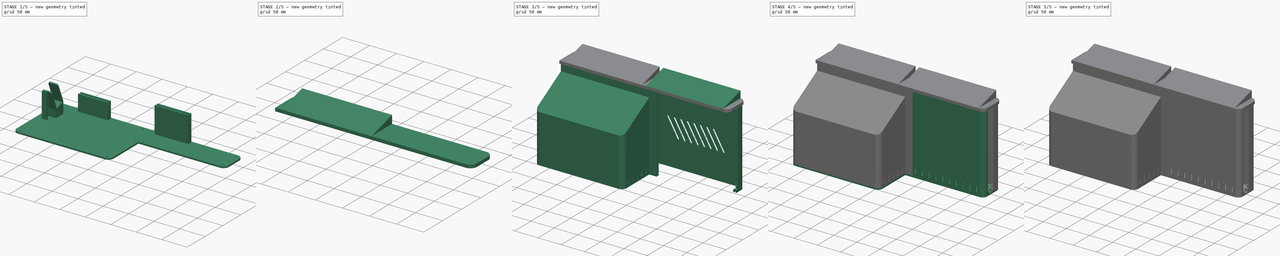
[diagram: build sequence overview — one tinted view per stage of 5, left to right]
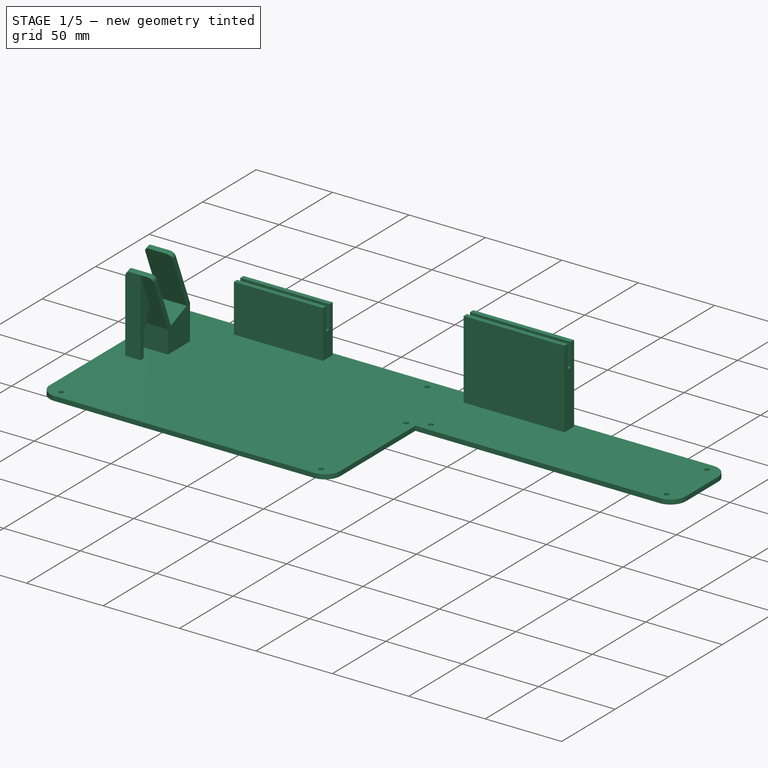
[diagram: stage 1 of 5 — iso view after this stage's code; geometry added in this stage tinted green]
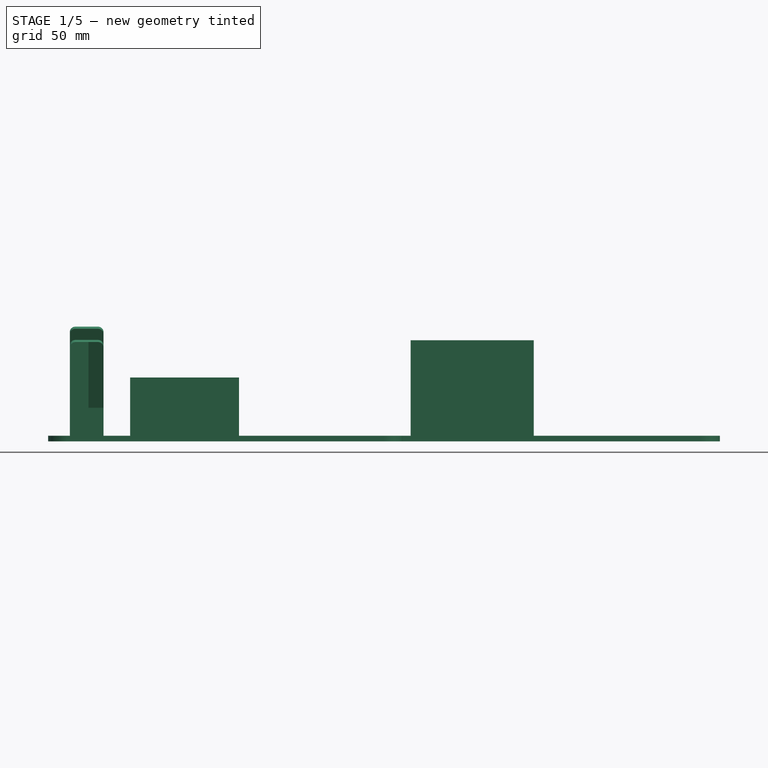
[diagram: stage 1 of 5 — front view after this stage's code; geometry added in this stage tinted green]
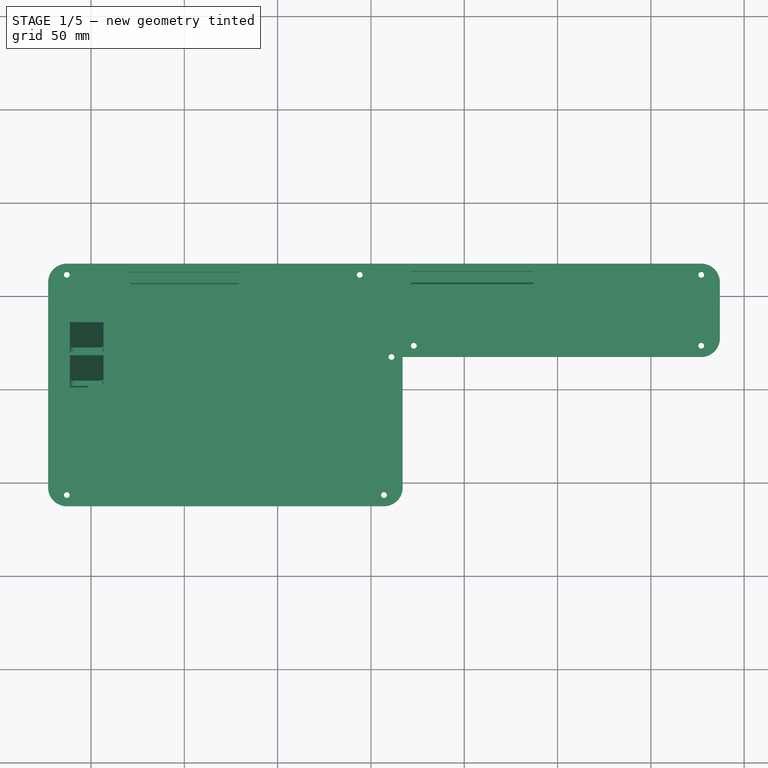
[diagram: stage 1 of 5 — top view after this stage's code; geometry added in this stage tinted green]
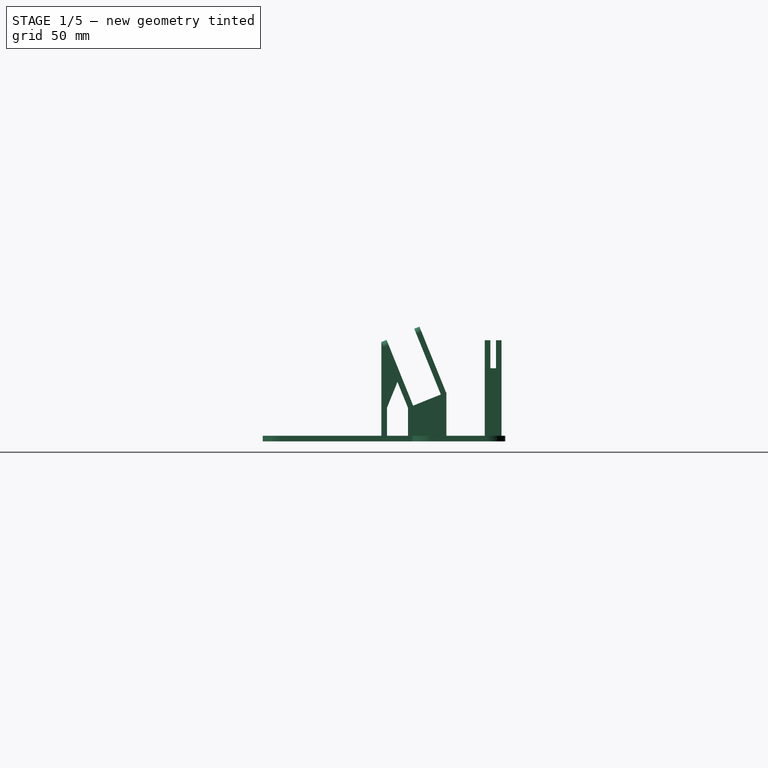
[diagram: stage 1 of 5 — right view after this stage's code; geometry added in this stage tinted green]
FCSTD DOCUMENT  (FreeCAD 0.20R29177 (Git))
Label: enclousre_alpha
License: All rights reserved
LicenseURL: http://en.wikipedia.org/wiki/All_rights_reserved
objects: Sketcher::SketchObject×61, PartDesign::Pad×44, PartDesign::ShapeBinder×20, PartDesign::Body×16, PartDesign::Pocket×13, App::Part×7, PartDesign::Fillet×6, Part::FeaturePython×6, PartDesign::LinearPattern×5, PartDesign::Chamfer×5, Part::Extrusion×4, App::DocumentObjectGroup×2, Spreadsheet::Sheet×1, PartDesign::Thickness×1
note: 250 computed .brp shape members not serialized (recipe doc carries the construction recipe); baked Part::Feature solids carry a one-line shape summary decoded from their .brp

FEATURE [Sketcher::SketchObject] Sketch  label="P35W Motherboard Body Sketch"
  FullyConstrained = true
  MapMode = 5
  Placement = pos=(0,0,0) rot=(1,0,0;1.5708rad)
  Support = -> [XZ_Plane]
  sketch-geometry (16):
    g0: LineSegment StartX=169.5 StartY=52.5 StartZ=0 EndX=169.5 EndY=-76.5 EndZ=0
    g1: LineSegment StartX=169.5 StartY=52.5 StartZ=0 EndX=131.5 EndY=52.5 EndZ=0
    g2: LineSegment StartX=131.5 StartY=52.5 StartZ=0 EndX=131.5 EndY=76.5 EndZ=0
    g3: LineSegment StartX=131.5 StartY=76.5 StartZ=0 EndX=-169.5 EndY=76.5 EndZ=0
    g4: LineSegment StartX=-169.5 StartY=76.5 StartZ=0 EndX=-169.5 EndY=-15.6 EndZ=0
    g5: LineSegment StartX=-141.7 StartY=-15.6 StartZ=0 EndX=-141.7 EndY=-58.6 EndZ=0
    g6: LineSegment StartX=0.7 StartY=-63.4 StartZ=0 EndX=0.7 EndY=-76.5 EndZ=0
    g7: LineSegment StartX=0.7 StartY=-76.5 StartZ=0 EndX=169.5 EndY=-76.5 EndZ=0
    g8: LineSegment StartX=0.7 StartY=-63.4 StartZ=0 EndX=-25 EndY=-63.4 EndZ=0
    g9: LineSegment StartX=-25 StartY=-63.4 StartZ=0 EndX=-25 EndY=-58.6 EndZ=0
    g10: LineSegment StartX=-25 StartY=-58.6 StartZ=0 EndX=-141.7 EndY=-58.6 EndZ=0
    g11: LineSegment StartX=-141.7 StartY=-58.6 StartZ=0 EndX=-169.5 EndY=-58.6 EndZ=0
    g12: LineSegment StartX=-169.5 StartY=-58.6 StartZ=0 EndX=-169.5 EndY=76.5 EndZ=0
    g13: LineSegment StartX=-141.7 StartY=-15.6 StartZ=0 EndX=-169.5 EndY=-15.6 EndZ=0
    g14: LineSegment StartX=-169.5 StartY=76.5 StartZ=0 EndX=0 EndY=0 EndZ=0
    g15: LineSegment StartX=169.5 StartY=-76.5 StartZ=0 EndX=0 EndY=0 EndZ=0
  constraints (45):
    c: Vertical(g0)
    c: Coincident(g1,g0)
    c: Horizontal(g1)
    c: Coincident(g2,g1)
    c: Vertical(g2)
    c: Coincident(g3,g2)
    c: Horizontal(g3)
    c: Coincident(g4,g3)
    c: Vertical(g4)
    c: Vertical(g5)
    c: Coincident(g7,g6)
    c: Horizontal(g7)
    c: Coincident(g0,g7)
    c: DistanceY(g0,g0) = 129
    c: Vertical(g6)
    c: DistanceX(g1,g1) = 38
    c: DistanceY(g2,g2) = 24
    c: DistanceX(g3,g3) = 301
    c: Coincident(g8,g6)
    c: Horizontal(g8)
    c: Coincident(g9,g8)
    c: Coincident(g10,g9)
    c: Coincident(g10,g5)
    c: Horizontal(g10)
    c: Vertical(g9)
    c: Coincident(g11,g5)
    c: Horizontal(g11)
    c: Coincident(g12,g11)
    c: Vertical(g12)
    c: Coincident(g3,g12)
    c: DistanceY(g12,g12) = 135.1
    c: DistanceX(g10,g10) = 116.7
    c: DistanceY(g9,g9) = 4.8
    c: DistanceX(g8,g8) = 25.7
    c: DistanceY(g5,g5) = 43
    c: Coincident(g13,g5)
    c: Coincident(g13,g4)
    c: Horizontal(g13)
    c: DistanceX(g13,g13) = 27.8
    c: Coincident(g14,g3)
    c: Coincident(g15,g0)
    c: Coincident(g15,g14)
    c: Equal(g15,g14)
    c: Parallel(g14,g15)
    c: Coincident(g-1,g14)
FEATURE [PartDesign::Pad] Pad  label="P35W Motherboard Body Pad"
  Direction = (1,1,1)
  Length = 1.2
  Length2 = 100
  Placement = pos=(0,0,0) rot=(1,0,0;1.5708rad)
  Profile = -> Sketch
  Type = 0
FEATURE [Sketcher::SketchObject] Sketch001  label="Board Holes Sketch"
  ExternalGeometry = -> [Sketch]
  FullyConstrained = true
  MapMode = 5
  Placement = pos=(0,-1.2,0) rot=(1,0,0;1.5708rad)
  Support = -> [Pad]
  sketch-geometry (11):
    g0: Circle CenterX=153 CenterY=-69.9 CenterZ=0 NormalX=0 NormalY=0 NormalZ=1 AngleXU=0 Radius=1.55
    g1: Circle CenterX=61.5 CenterY=-69.9 CenterZ=0 NormalX=0 NormalY=0 NormalZ=1 AngleXU=0 Radius=1.55
    g2: Circle CenterX=141 CenterY=46 CenterZ=0 NormalX=0 NormalY=0 NormalZ=1 AngleXU=0 Radius=1.55
    g3: Circle CenterX=158.3 CenterY=32.3 CenterZ=0 NormalX=0 NormalY=0 NormalZ=1 AngleXU=0 Radius=1.55
    g4: Circle CenterX=141 CenterY=23.5 CenterZ=0 NormalX=0 NormalY=0 NormalZ=1 AngleXU=0 Radius=1.55
    g5: Circle CenterX=35.5 CenterY=72.5 CenterZ=0 NormalX=0 NormalY=0 NormalZ=1 AngleXU=0 Radius=1.55
    g6: Circle CenterX=-7.4 CenterY=-53.1 CenterZ=0 NormalX=0 NormalY=0 NormalZ=1 AngleXU=0 Radius=1.55
    g7: Circle CenterX=-69.1 CenterY=72.5 CenterZ=0 NormalX=0 NormalY=0 NormalZ=1 AngleXU=0 Radius=1.55
    g8: Circle CenterX=-122.1 CenterY=-50.6 CenterZ=0 NormalX=0 NormalY=0 NormalZ=1 AngleXU=0 Radius=1.55
    g9: Circle CenterX=-93.4 CenterY=-50.6 CenterZ=0 NormalX=0 NormalY=0 NormalZ=1 AngleXU=0 Radius=1.55
    g10: Circle CenterX=-107.3 CenterY=-22.2 CenterZ=0 NormalX=0 NormalY=0 NormalZ=1 AngleXU=0 Radius=1.55
  constraints (33):
    c: DistanceY(g-4,g0) = 6.6
    c: DistanceY(g-4,g4) = 100
    c: DistanceX(g4,g-4) = 28.5
    c: DistanceY(g-4,g3) = 108.8
    c: DistanceX(g3,g-4) = 11.2
    c: DistanceY(g-4,g2) = 122.5
    c: DistanceX(g2,g-4) = 28.5
    c: DistanceY(g-4,g1) = 6.6
    c: DistanceX(g1,g-4) = 108
    c: Equal(g1,g0)
    c: Equal(g1,g3)
    c: Equal(g1,g2)
    c: Equal(g1,g4)
    c: Diameter(g1) = 3.1
    c: DistanceX(g5,g-5) = 96
    c: DistanceY(g5,g-5) = 4
    c: DistanceX(g7,g5) = 104.6
    c: DistanceY(g7,g-5) = 4
    c: DistanceX(g-6,g8) = 19.6
    c: DistanceX(g-6,g9) = 48.3
    c: DistanceY(g-6,g8) = 8
    c: DistanceY(g-6,g9) = 8
    c: DistanceY(g-6,g10) = 36.4
    c: DistanceX(g-6,g10) = 34.4
    c: DistanceY(g-6,g6) = 5.5
    c: DistanceX(g-6,g6) = 134.3
    c: Equal(g9,g6)
    c: Equal(g6,g10)
    c: Equal(g10,g8)
    c: Equal(g8,g7)
    c: Equal(g7,g5)
    c: Equal(g5,g2)
    c: DistanceX(g0,g-4) = 16.5
FEATURE [PartDesign::Pocket] Pocket  label="Board Holes"
  BaseFeature = -> Pad
  Direction = (1,1,1)
  Length = 5
  Length2 = 100
  Placement = pos=(0,0,0) rot=(1,0,0;1.5708rad)
  Profile = -> Sketch001
  Type = 1
FEATURE [PartDesign::Pad] Pad012  label="Left Mount Body"
  Direction = (1,1,1)
  Length = 3
  Length2 = 100
  Placement = pos=(0,-9.5,2e-15) rot=(1,0,0;1.5708rad)
  Profile = -> Sketch019
  Type = 0
  expr: Length = <<$params>>.board_support_thickness
FEATURE [PartDesign::Body] Body002  label="Left Body Mount"
  Group = -> [Sketch019,ShapeBinder002,Pad012]
  Origin = -> Origin004
  Placement = pos=(0,0,0) rot=(0,0,1;3.14159rad)
  Tip = -> Pad012
FEATURE [PartDesign::Pad] Pad013  label="Right Mount Body"
  Direction = (1,1,1)
  Length = 3
  Length2 = 100
  Placement = pos=(0,-9.48,2e-15) rot=(1,0,0;1.5708rad)
  Profile = -> Sketch020
  Type = 0
  expr: Length = <<$params>>.board_support_thickness
FEATURE [PartDesign::Body] Body005  label="Slimline Board"
  Group = -> [ShapeBinder005,Sketch024,Pad016,Sketch025,Pad017]
  Origin = -> Origin008
  Tip = -> Pad017
FEATURE [PartDesign::ShapeBinder] ShapeBinder006
  Placement = pos=(0,9.48,2e-15) rot=(0,0.707107,0.707107;3.14159rad)
  Support = -> [Pad013]
  TraceSupport = true
FEATURE [PartDesign::ShapeBinder] ShapeBinder007
  Placement = pos=(0,9.5,2e-15) rot=(0,0.707107,0.707107;3.14159rad)
  Support = -> [Pad012]
  TraceSupport = true
FEATURE [Sketcher::SketchObject] Sketch026  label="Mount Interface Pad Sketch"
  ExternalGeometry = -> [ShapeBinder006,ShapeBinder007]
  FullyConstrained = true
  MapMode = 5
  Placement = pos=(0,12.48,2e-15) rot=(0,0.707107,0.707107;3.14159rad)
  Support = -> [ShapeBinder006]
  expr: Constraints[21] = <<$params>>.board_bottom_height
  expr: Constraints[50] = <<$params>>.floor_thickness
  expr: Constraints[51] = <<$params>>.board_support_floor_dist
  sketch-geometry (20):
    g0: LineSegment StartX=129.023 StartY=-57.5526 StartZ=0 EndX=70.6801 EndY=-57.5526 EndZ=0
    g1: LineSegment StartX=70.6801 StartY=-57.5526 StartZ=0 EndX=70.6801 EndY=-72.5526 EndZ=0
    g2: LineSegment StartX=70.6801 StartY=-72.5526 StartZ=0 EndX=129.023 EndY=-72.5526 EndZ=0
    g3: LineSegment StartX=129.023 StartY=-72.5526 StartZ=0 EndX=129.023 EndY=-57.5526 EndZ=0
    g4: LineSegment StartX=129.023 StartY=-72.5526 StartZ=0 EndX=129.023 EndY=-91.7526 EndZ=0
    g5: LineSegment StartX=129.023 StartY=-91.7526 StartZ=0 EndX=70.6801 EndY=-91.7526 EndZ=0
    g6: LineSegment StartX=70.6801 StartY=-88.7526 StartZ=0 EndX=70.6801 EndY=-72.5526 EndZ=0
    g7: LineSegment StartX=-21.2653 StartY=-37.6 StartZ=0 EndX=-87.2653 EndY=-37.6 EndZ=0
    g8: LineSegment StartX=-87.2653 StartY=-37.6 StartZ=0 EndX=-87.2653 EndY=-52.6 EndZ=0
    g9: LineSegment StartX=-21.2653 StartY=-52.6 StartZ=0 EndX=-21.2653 EndY=-37.6 EndZ=0
    g10: LineSegment StartX=-21.2653 StartY=-52.6 StartZ=0 EndX=-21.2653 EndY=-88.7526 EndZ=0
    g11: LineSegment StartX=-21.2653 StartY=-91.7526 StartZ=0 EndX=-87.2653 EndY=-91.7526 EndZ=0
    g12: LineSegment StartX=-87.2653 StartY=-91.7526 StartZ=0 EndX=-87.2653 EndY=-52.6 EndZ=0
    g13: GeomPoint X=70.6801 Y=-57.5526 Z=0
    g14: LineSegment StartX=-21.2653 StartY=-91.7526 StartZ=0 EndX=70.6801 EndY=-91.7526 EndZ=0
    g15: LineSegment StartX=-87.2653 StartY=-52.6 StartZ=0 EndX=-21.2653 EndY=-52.6 EndZ=0
    g16: LineSegment StartX=-21.2653 StartY=-88.7526 StartZ=0 EndX=70.6801 EndY=-88.7526 EndZ=0
    g17: LineSegment StartX=70.6801 StartY=-88.7526 StartZ=0 EndX=70.6801 EndY=-91.7526 EndZ=0
    g18: LineSegment StartX=70.6801 StartY=-91.7526 StartZ=0 EndX=-21.2653 EndY=-91.7526 EndZ=0
    g19: LineSegment StartX=-21.2653 StartY=-91.7526 StartZ=0 EndX=-21.2653 EndY=-88.7526 EndZ=0
  constraints (52):
    c: Coincident(g0,g1)
    c: Coincident(g1,g2)
    c: Coincident(g2,g3)
    c: Coincident(g3,g0)
    c: Horizontal(g0)
    c: Horizontal(g2)
    c: Vertical(g1)
    c: Vertical(g3)
    c: Coincident(g4,g5)
    c: Horizontal(g5)
    c: Vertical(g4)
    c: Vertical(g6)
    c: Coincident(g7,g8)
    c: Coincident(g9,g7)
    c: Horizontal(g7)
    c: Vertical(g8)
    c: Vertical(g9)
    c: Coincident(g11,g12)
    c: Horizontal(g11)
    c: Vertical(g10)
    c: Vertical(g12)
    c: DistanceY(g3,g3) = 15
    c: Equal(g3,g9)
    c: Coincident(g7,g-5)
    c: Coincident(g0,g-3)
    c: PointOnObject(g13,g-4)
    c: Coincident(g0,g13)
    c: DistanceX(g7,g7) = 66
    c: Coincident(g14,g11)
    c: Coincident(g14,g5)
    c: Horizontal(g14)
    c: Block(g1)
    c: Coincident(g2,g4)
    c: Coincident(g1,g6)
    c: Coincident(g15,g8)
    c: Coincident(g15,g9)
    c: Horizontal(g15)
    c: Coincident(g9,g10)
    c: Coincident(g8,g12)
    c: Coincident(g16,g17)
    c: Coincident(g17,g18)
    c: Coincident(g18,g19)
    c: Coincident(g19,g16)
    c: Horizontal(g16)
    c: Vertical(g17)
    c: Vertical(g19)
    c: Coincident(g5,g17)
    c: Coincident(g11,g18)
    c: Coincident(g10,g16)
    c: Coincident(g6,g16)
    c: DistanceY(g19,g19) = 3
    c: DistanceY(g6,g1) = 16.2
FEATURE [PartDesign::Pad] Pad018  label="Mount Interface Pad"
  Direction = (1,1,1)
  Length = 3
  Length2 = 100
  Placement = pos=(0,9.48,2e-15) rot=(0,0.707107,0.707107;3.14159rad)
  Profile = -> Sketch026
  Type = 0
  expr: Length = <<$params>>.floor_mount_thickness
FEATURE [Sketcher::SketchObject] Sketch027  label="Mount Interface Support Sketch"
  ExternalGeometry = -> [ShapeBinder007,ShapeBinder006,Sketch026]
  FullyConstrained = true
  MapMode = 5
  Placement = pos=(0,12.48,2.7e-15) rot=(0,0.707107,-0.707107;3.14159rad)
  Support = -> [Pad018]
  sketch-geometry (8):
    g0: LineSegment StartX=-21.2653 StartY=88.7526 StartZ=0 EndX=-21.2653 EndY=52.6 EndZ=0
    g1: LineSegment StartX=-21.2653 StartY=52.6 StartZ=0 EndX=-87.2653 EndY=52.6 EndZ=0
    g2: LineSegment StartX=-87.2653 StartY=52.6 StartZ=0 EndX=-87.2653 EndY=91.7526 EndZ=0
    g3: LineSegment StartX=70.6801 StartY=72.5526 StartZ=0 EndX=129.023 EndY=72.5526 EndZ=0
    g4: LineSegment StartX=129.023 StartY=72.5526 StartZ=0 EndX=129.023 EndY=91.7526 EndZ=0
    g5: LineSegment StartX=70.6801 StartY=88.7526 StartZ=0 EndX=70.6801 EndY=72.5526 EndZ=0
    g6: LineSegment StartX=70.6801 StartY=88.7526 StartZ=0 EndX=-21.2653 EndY=88.7526 EndZ=0
    g7: LineSegment StartX=-87.2653 StartY=91.7526 StartZ=0 EndX=129.023 EndY=91.7526 EndZ=0
  constraints (19):
    c: Coincident(g0,g1)
    c: Coincident(g1,g2)
    c: Horizontal(g1)
    c: Vertical(g2)
    c: Coincident(g3,g4)
    c: Horizontal(g3)
    c: Vertical(g4)
    c: Vertical(g3,g-7)
    c: Horizontal(g-4,g3)
    c: Coincident(g0,g-3)
    c: Coincident(g5,g-8)
    c: Coincident(g5,g3)
    c: Coincident(g6,g5)
    c: Coincident(g6,g-8)
    c: Coincident(g0,g6)
    c: Coincident(g7,g2)
    c: Coincident(g7,g4)
    c: Coincident(g2,g-5)
    c: Coincident(g4,g-6)
FEATURE [PartDesign::Pad] Pad019  label="Mount Interface Support Pad"
  BaseFeature = -> Pad018
  Direction = (1,1,1)
  Length = 3
  Length2 = 100
  Placement = pos=(0,9.48,2e-15) rot=(0,0.707107,0.707107;3.14159rad)
  Profile = -> Sketch027
  Type = 0
  expr: Length = <<$params>>.board_support_thickness
FEATURE [Sketcher::SketchObject] Sketch028  label="End Mount Interface Pad Sketch"
  ExternalGeometry = -> [Sketch026]
  FullyConstrained = true
  MapMode = 5
  Placement = pos=(0,9.48,2e-15) rot=(0,0.707107,-0.707107;3.14159rad)
  Support = -> [Pad019]
  sketch-geometry (8):
    g0: LineSegment StartX=70.6801 StartY=57.5526 StartZ=0 EndX=129.023 EndY=57.5526 EndZ=0
    g1: LineSegment StartX=129.023 StartY=57.5526 StartZ=0 EndX=129.023 EndY=91.7526 EndZ=0
    g2: LineSegment StartX=129.023 StartY=91.7526 StartZ=0 EndX=-87.2653 EndY=91.7526 EndZ=0
    g3: LineSegment StartX=-87.2653 StartY=91.7526 StartZ=0 EndX=-87.2653 EndY=37.6 EndZ=0
    g4: LineSegment StartX=-87.2653 StartY=37.6 StartZ=0 EndX=-21.2653 EndY=37.6 EndZ=0
    g5: LineSegment StartX=-21.2653 StartY=37.6 StartZ=0 EndX=-21.2653 EndY=88.7526 EndZ=0
    g6: LineSegment StartX=-21.2653 StartY=88.7526 StartZ=0 EndX=70.6801 EndY=88.7526 EndZ=0
    g7: LineSegment StartX=70.6801 StartY=88.7526 StartZ=0 EndX=70.6801 EndY=57.5526 EndZ=0
  constraints (16):
    c: Coincident(g0,g-3)
    c: Coincident(g0,g-4)
    c: Coincident(g1,g0)
    c: Coincident(g1,g-5)
    c: Coincident(g2,g1)
    c: Coincident(g2,g-6)
    c: Coincident(g3,g2)
    c: Coincident(g3,g-7)
    c: Coincident(g4,g3)
    c: Coincident(g4,g-8)
    c: Coincident(g5,g4)
    c: Coincident(g5,g-9)
    c: Coincident(g6,g5)
    c: Coincident(g6,g-10)
    c: Coincident(g7,g6)
    c: Coincident(g7,g0)
FEATURE [PartDesign::Pad] Pad020  label="End Mount Interface Pad"
  BaseFeature = -> Pad019
  Direction = (1,1,1)
  Length = 3
  Length2 = 100
  Placement = pos=(0,9.48,2e-15) rot=(0,0.707107,0.707107;3.14159rad)
  Profile = -> Sketch028
  Refine = true
  Type = 0
  expr: Length = <<$params>>.board_support_thickness
FEATURE [Sketcher::SketchObject] Sketch029  label="Floor Pad Sketch"
  ExternalGeometry = -> [Pad020]
  FullyConstrained = true
  MapMode = 5
  Placement = pos=(-1.56e-14,9.48,-91.7526) rot=(0,1,0;3.14159rad)
  Support = -> [Pad020]
  expr: Constraints[10] = <<$params>>.wall_thickness
  expr: Constraints[31] = <<$params>>.io_mount_thickness
  expr: Constraints[32] = <<$params>>.io_mount_thickness
  sketch-geometry (17):
    g0: LineSegment StartX=-184 StartY=8 StartZ=0 EndX=170 EndY=8 EndZ=0
    g1: LineSegment StartX=170 StartY=8 StartZ=0 EndX=170 EndY=-42 EndZ=0
    g2: LineSegment StartX=-17 StartY=-42 StartZ=0 EndX=-184 EndY=-42 EndZ=0
    g3: LineSegment StartX=-184 StartY=-42 StartZ=0 EndX=-184 EndY=8 EndZ=0
    g4: LineSegment StartX=-87.2653 StartY=6 StartZ=0 EndX=-87.2653 EndY=8 EndZ=0
    g5: LineSegment StartX=170 StartY=8 StartZ=0 EndX=173 EndY=8 EndZ=0
    g6: LineSegment StartX=173 StartY=8 StartZ=0 EndX=173 EndY=-42 EndZ=0
    g7: LineSegment StartX=173 StartY=-42 StartZ=0 EndX=170 EndY=-42 EndZ=0
    g8: LineSegment StartX=170 StartY=-42 StartZ=0 EndX=170 EndY=8 EndZ=0
    g9: LineSegment StartX=-184 StartY=8 StartZ=0 EndX=-187 EndY=8 EndZ=0
    g10: LineSegment StartX=-187 StartY=8 StartZ=0 EndX=-187 EndY=-42 EndZ=0
    g11: LineSegment StartX=-187 StartY=-42 StartZ=0 EndX=-184 EndY=-42 EndZ=0
    g12: LineSegment StartX=-184 StartY=-42 StartZ=0 EndX=-184 EndY=8 EndZ=0
    g13: LineSegment StartX=173 StartY=-42 StartZ=0 EndX=-17 EndY=-42 EndZ=0
    g14: LineSegment StartX=-17 StartY=-42 StartZ=0 EndX=-17 EndY=-122 EndZ=0
    g15: LineSegment StartX=-17 StartY=-122 StartZ=0 EndX=173 EndY=-122 EndZ=0
    g16: LineSegment StartX=173 StartY=-122 StartZ=0 EndX=173 EndY=-42 EndZ=0
  constraints (46):
    c: Coincident(g0,g1)
    c: Coincident(g2,g3)
    c: Coincident(g3,g0)
    c: Horizontal(g0)
    c: Horizontal(g2)
    c: Vertical(g1)
    c: Vertical(g3)
    c: Coincident(g4,g-3)
    c: PointOnObject(g4,g0)
    c: Vertical(g4)
    c: DistanceY(g4,g4) = 2
    c: DistanceX(g0,g-1) = 184
    c: DistanceX(g-1,g0) = 170
    c: Coincident(g5,g6)
    c: Coincident(g6,g7)
    c: Coincident(g7,g8)
    c: Coincident(g8,g5)
    c: Horizontal(g5)
    c: Horizontal(g7)
    c: Vertical(g6)
    c: Coincident(g5,g0)
    c: Coincident(g1,g7)
    c: Coincident(g9,g10)
    c: Coincident(g10,g11)
    c: Coincident(g11,g12)
    c: Coincident(g12,g9)
    c: Horizontal(g9)
    c: Horizontal(g11)
    c: Vertical(g10)
    c: Coincident(g9,g0)
    c: Coincident(g2,g11)
    c: DistanceX(g9,g9) = 3
    c: DistanceX(g5,g5) = 3
    c: DistanceY(g3,g3) = 50
    c: Coincident(g13,g14)
    c: Coincident(g14,g15)
    c: Coincident(g15,g16)
    c: Coincident(g16,g13)
    c: Horizontal(g13)
    c: Horizontal(g15)
    c: Vertical(g14)
    c: Vertical(g16)
    c: Coincident(g13,g6)
    c: DistanceX(g15,g15) = 190
    c: DistanceY(g16,g16) = 80
    c: Coincident(g2,g13)
FEATURE [PartDesign::Pad] Pad021  label="Floor Pad"
  BaseFeature = -> Pad020
  Direction = (1,1,1)
  Length = 3
  Length2 = 100
  Placement = pos=(0,9.48,2e-15) rot=(0,0.707107,0.707107;3.14159rad)
  Profile = -> Sketch029
  Refine = true
  Reversed = true
  Type = 0
  expr: Length = <<$params>>.floor_thickness
FEATURE [PartDesign::Fillet] Fillet001  label="Floor Pad Fillet"
  Base = -> Pad021 [Edge8,Edge11,Edge3,Edge7,Edge1]
  BaseFeature = -> Pad021
  Placement = pos=(0,9.48,2e-15) rot=(0,0.707107,0.707107;3.14159rad)
  Radius = 10
  SupportTransform = false
  UseAllEdges = false
FEATURE [Sketcher::SketchObject] Sketch030  label="Battery Floor Ext Sketch"
  FullyConstrained = false
  MapMode = 5
  Placement = pos=(-1.42e-14,9.48,-88.7526) rot=(0,0,1;0rad)
  Support = -> [Fillet001]
  expr: Constraints[15] = <<$params>>.battery_dist_board_apx
  expr: Constraints[8] = <<$params>>.battery_mount_floor_length
  expr: Constraints[9] = <<$params>>.battery_mount_floor_width
  sketch-geometry (7):
    g0: LineSegment StartX=-161.332 StartY=-23.5659 StartZ=0 EndX=-143.332 EndY=-23.5659 EndZ=0
    g1: LineSegment StartX=-143.332 StartY=-23.5659 StartZ=0 EndX=-143.332 EndY=-44.1659 EndZ=0
    g2: LineSegment StartX=-143.332 StartY=-44.1659 StartZ=0 EndX=-161.332 EndY=-44.1659 EndZ=0
    g3: LineSegment StartX=-161.332 StartY=-44.1659 StartZ=0 EndX=-161.332 EndY=-23.5659 EndZ=0
    g4: LineSegment StartX=-147.332 StartY=-9.56593 StartZ=0 EndX=-141.811 EndY=-9.56593 EndZ=0
    g5: LineSegment StartX=-141.811 StartY=-9.56593 StartZ=0 EndX=-141.811 EndY=-23.5659 EndZ=0
    g6: LineSegment StartX=-141.811 StartY=-23.5659 StartZ=0 EndX=-147.332 EndY=-23.5659 EndZ=0
  constraints (18):
    c: Coincident(g0,g1)
    c: Coincident(g1,g2)
    c: Coincident(g2,g3)
    c: Coincident(g3,g0)
    c: Horizontal(g0)
    c: Horizontal(g2)
    c: Vertical(g1)
    c: Vertical(g3)
    c: DistanceX(g2,g2) = 18
    c: DistanceY(g1,g1) = 20.6
    c: Coincident(g4,g5)
    c: Coincident(g5,g6)
    c: Horizontal(g4)
    c: Horizontal(g6)
    c: Vertical(g5)
    c: DistanceY(g5,g5) = 14
    c: Block(g4)
    c: Horizontal(g3,g5)
FEATURE [Sketcher::SketchObject] Sketch034  label="Floor Screw Hole Sketch"
  ExternalGeometry = -> [Fillet001]
  FullyConstrained = true
  MapMode = 5
  Placement = pos=(-1.42e-14,9.48,-88.7526) rot=(0,0,1;0rad)
  Support = -> [Fillet001]
  sketch-geometry (20):
    g0: Circle CenterX=11 CenterY=-42 CenterZ=0 NormalX=0 NormalY=0 NormalZ=1 AngleXU=0 Radius=1.55
    g1: LineSegment StartX=-163 StartY=-122 StartZ=0 EndX=-163 EndY=-116 EndZ=0
    g2: LineSegment StartX=7 StartY=-122 StartZ=0 EndX=7 EndY=-116 EndZ=0
    g3: LineSegment StartX=7 StartY=-116 StartZ=0 EndX=-163 EndY=-116 EndZ=0
    g4: LineSegment StartX=17 StartY=-112 StartZ=0 EndX=11 EndY=-112 EndZ=0
    g5: LineSegment StartX=11 StartY=-112 StartZ=0 EndX=11 EndY=-42 EndZ=0
    g6: LineSegment StartX=11 StartY=-42 StartZ=0 EndX=17 EndY=-42 EndZ=0
    g7: Circle CenterX=7 CenterY=-116 CenterZ=0 NormalX=0 NormalY=0 NormalZ=1 AngleXU=0 Radius=1.55
    g8: Circle CenterX=-163 CenterY=-116 CenterZ=0 NormalX=0 NormalY=0 NormalZ=1 AngleXU=0 Radius=1.55
    g9: LineSegment StartX=17 StartY=-42 StartZ=0 EndX=17 EndY=-36 EndZ=0
    g10: LineSegment StartX=17 StartY=-36 StartZ=0 EndX=177 EndY=-36 EndZ=0
    g11: LineSegment StartX=177 StartY=-36 StartZ=0 EndX=177 EndY=-42 EndZ=0
    g12: Circle CenterX=23 CenterY=-36 CenterZ=0 NormalX=0 NormalY=0 NormalZ=1 AngleXU=0 Radius=1.55
    g13: Circle CenterX=177 CenterY=-36 CenterZ=0 NormalX=0 NormalY=0 NormalZ=1 AngleXU=0 Radius=1.55
    g14: LineSegment StartX=177 StartY=8 StartZ=0 EndX=177 EndY=2 EndZ=0
    g15: LineSegment StartX=177 StartY=2 StartZ=0 EndX=-163 EndY=2 EndZ=0
    g16: LineSegment StartX=-163 StartY=8 StartZ=0 EndX=-163 EndY=2 EndZ=0
    g17: Circle CenterX=-163 CenterY=2 CenterZ=0 NormalX=0 NormalY=0 NormalZ=1 AngleXU=0 Radius=1.55
    g18: Circle CenterX=-6 CenterY=2 CenterZ=0 NormalX=0 NormalY=0 NormalZ=1 AngleXU=0 Radius=1.55
    g19: Circle CenterX=177 CenterY=2 CenterZ=0 NormalX=0 NormalY=0 NormalZ=1 AngleXU=0 Radius=1.55
  constraints (50):
    c: Coincident(g1,g-7)
    c: Vertical(g1)
    c: Coincident(g2,g-5)
    c: Vertical(g2)
    c: Coincident(g3,g2)
    c: Coincident(g3,g1)
    c: Horizontal(g3)
    c: Coincident(g4,g-4)
    c: Horizontal(g4)
    c: Coincident(g5,g4)
    c: Vertical(g5)
    c: Coincident(g6,g5)
    c: Coincident(g6,g-6)
    c: Horizontal(g6)
    c: DistanceX(g6,g6) = 6
    c: Equal(g6,g2)
    c: Coincident(g0,g5)
    c: Coincident(g7,g2)
    c: Coincident(g8,g1)
    c: Coincident(g9,g6)
    c: Vertical(g9)
    c: Coincident(g10,g9)
    c: Horizontal(g10)
    c: Coincident(g11,g10)
    c: Coincident(g11,g-13)
    c: Vertical(g11)
    c: Equal(g9,g6)
    c: PointOnObject(g12,g10)
    c: DistanceX(g9,g12) = 6
    c: Coincident(g13,g10)
    c: Coincident(g14,g-11)
    c: Vertical(g14)
    c: Coincident(g15,g14)
    c: Horizontal(g15)
    c: Coincident(g16,g-10)
    c: Coincident(g16,g15)
    c: Vertical(g16)
    c: Equal(g16,g1)
    c: Coincident(g17,g15)
    c: PointOnObject(g18,g15)
    c: Coincident(g19,g14)
    c: Diameter(g7) = 3.1
    c: Equal(g7,g0)
    c: Equal(g0,g12)
    c: Equal(g12,g8)
    c: Equal(g8,g17)
    c: Equal(g17,g18)
    c: Equal(g18,g19)
    c: Equal(g19,g13)
    c: DistanceX(g18,g-1) = 6
FEATURE [PartDesign::Pocket] Pocket001  label="Floor Screw Hole"
  BaseFeature = -> Fillet001
  Direction = (1,1,1)
  Length = 5
  Length2 = 100
  Placement = pos=(0,9.48,2e-15) rot=(0,0.707107,0.707107;3.14159rad)
  Profile = -> Sketch034
  Type = 2
FEATURE [PartDesign::Pad] Pad022  label="Battery Floor Connector"
  BaseFeature = -> Pocket001
  Direction = (1,1,1)
  Length = 15
  Length2 = 100
  Placement = pos=(0,9.48,2e-15) rot=(0,0.707107,0.707107;3.14159rad)
  Profile = -> Sketch030
  Type = 0
  expr: Length = Spreadsheet.battery_offset_floor_height
FEATURE [Sketcher::SketchObject] Sketch031  label="Battery Angle Mount Sketch"
  ExternalGeometry = -> [Pad022]
  FullyConstrained = true
  MapMode = 5
  Placement = pos=(-161.332,9.48,5.52e-14) rot=(0,-1,0;1.5708rad)
  Support = -> [Pad022]
  expr: Constraints[6] = 90 - <<$params>>.battery_angle
  sketch-geometry (3):
    g0: LineSegment StartX=-73.7526 StartY=-44.1659 StartZ=0 EndX=-65.4296 EndY=-23.5659 EndZ=0
    g1: LineSegment StartX=-65.4296 StartY=-23.5659 StartZ=0 EndX=-73.7526 EndY=-23.5659 EndZ=0
    g2: LineSegment StartX=-73.7526 StartY=-23.5659 StartZ=0 EndX=-73.7526 EndY=-44.1659 EndZ=0
  constraints (7):
    c: Coincident(g1,g0)
    c: Coincident(g2,g1)
    c: Coincident(g2,g0)
    c: Coincident(g1,g-3)
    c: Coincident(g0,g-4)
    c: Perpendicular(g2,g1)
    c: Angle(g0,g2) = 0.383972
FEATURE [PartDesign::Pad] Pad023  label="Battery Angle Mount"
  BaseFeature = -> Pad022
  Direction = (1,1,1)
  Length = 18
  Length2 = 100
  Placement = pos=(0,9.48,2e-15) rot=(0,0.707107,0.707107;3.14159rad)
  Profile = -> Sketch031
  Reversed = true
  Type = 0
  expr: Length = <<$params>>.battery_mount_floor_length
FEATURE [Sketcher::SketchObject] Sketch032  label="Batter Clip Ext Sketch"
  ExternalGeometry = -> [Pad023]
  FullyConstrained = true
  MapMode = 5
  Placement = pos=(-1.81e-14,28.8986,-48.0627) rot=(1,0,0;0.383972rad)
  Support = -> [Pad023]
  expr: Constraints[19] = <<$params>>.battery_thickness
  sketch-geometry (13):
    g0: LineSegment StartX=-161.332 StartY=-46.3603 StartZ=0 EndX=-161.332 EndY=-57.5781 EndZ=0
    g1: LineSegment StartX=-161.332 StartY=-68.5781 StartZ=0 EndX=-161.332 EndY=-57.5781 EndZ=0
    g2: LineSegment StartX=-143.332 StartY=-46.5781 StartZ=0 EndX=-143.332 EndY=-57.5781 EndZ=0
    g3: LineSegment StartX=-143.332 StartY=-68.5781 StartZ=0 EndX=-143.332 EndY=-57.5781 EndZ=0
    g4: LineSegment StartX=-143.332 StartY=-57.5781 StartZ=0 EndX=-161.332 EndY=-57.5781 EndZ=0
    g5: LineSegment StartX=-161.332 StartY=-46.5781 StartZ=0 EndX=-143.332 EndY=-46.5781 EndZ=0
    g6: LineSegment StartX=-143.332 StartY=-46.5781 StartZ=0 EndX=-143.332 EndY=-49.5781 EndZ=0
    g7: LineSegment StartX=-143.332 StartY=-49.5781 StartZ=0 EndX=-161.332 EndY=-49.5781 EndZ=0
    g8: LineSegment StartX=-161.332 StartY=-49.5781 StartZ=0 EndX=-161.332 EndY=-46.5781 EndZ=0
    g9: LineSegment StartX=-161.332 StartY=-65.5781 StartZ=0 EndX=-143.332 EndY=-65.5781 EndZ=0
    g10: LineSegment StartX=-143.332 StartY=-65.5781 StartZ=0 EndX=-143.332 EndY=-68.5781 EndZ=0
    g11: LineSegment StartX=-161.332 StartY=-68.5781 StartZ=0 EndX=-161.332 EndY=-65.5781 EndZ=0
    g12: LineSegment StartX=-143.332 StartY=-68.5781 StartZ=0 EndX=-161.332 EndY=-68.5781 EndZ=0
  constraints (38):
    c: Coincident(g1,g0)
    c: Coincident(g3,g2)
    c: Equal(g2,g3)
    c: Coincident(g5,g6)
    c: Coincident(g6,g7)
    c: Coincident(g7,g8)
    c: Horizontal(g5)
    c: Horizontal(g7)
    c: Vertical(g6)
    c: Vertical(g8)
    c: PointOnObject(g6,g2)
    c: Coincident(g9,g10)
    c: Coincident(g11,g9)
    c: Horizontal(g9)
    c: Vertical(g10)
    c: Vertical(g11)
    c: PointOnObject(g10,g3)
    c: DistanceY(g10,g10) = 3
    c: Equal(g10,g6)
    c: DistanceY(g9,g6) = 16
    c: Coincident(g0,g4)
    c: Coincident(g2,g4)
    c: Coincident(g2,g5)
    c: Vertical(g3)
    c: Coincident(g0,g-3)
    c: Vertical(g0)
    c: Vertical(g1)
    c: Horizontal(g4)
    c: Coincident(g5,g8)
    c: Vertical(g0,g5)
    c: Vertical(g5,g8)
    c: Vertical(g8,g-3)
    c: Coincident(g3,g-4)
    c: Horizontal(g3,g10)
    c: Coincident(g12,g10)
    c: Coincident(g12,g11)
    c: Coincident(g1,g11)
    c: Horizontal(g12)
FEATURE [PartDesign::Pad] Pad024  label="Battery Clip Ext"
  BaseFeature = -> Pad023
  Direction = (1,1,1)
  Length = 38
  Length2 = 100
  Placement = pos=(0,9.48,2e-15) rot=(0,0.707107,0.707107;3.14159rad)
  Profile = -> Sketch032
  Type = 0
FEATURE [Sketcher::SketchObject] Sketch036  label="Battery Clip Support Sketch"
  ExternalGeometry = -> [Pad024]
  FullyConstrained = true
  MapMode = 5
  Placement = pos=(-161.332,9.48,5.52e-14) rot=(0,-1,0;1.5708rad)
  Support = -> [Pad024]
  sketch-geometry (7):
    g0: LineSegment StartX=-59.8487 StartY=-49.7835 StartZ=0 EndX=-73.7526 EndY=-55.401 EndZ=0
    g1: LineSegment StartX=-73.7526 StartY=-55.401 StartZ=0 EndX=-73.7526 EndY=-44.1659 EndZ=0
    g2: LineSegment StartX=-59.8487 StartY=-49.7835 StartZ=0 EndX=-73.7526 EndY=-44.1659 EndZ=0
    g3: LineSegment StartX=-73.7526 StartY=-55.401 StartZ=0 EndX=-88.7526 EndY=-55.401 EndZ=0
    g4: LineSegment StartX=-88.7526 StartY=-58.401 StartZ=0 EndX=-38.5196 EndY=-58.401 EndZ=0
    g5: LineSegment StartX=-59.8487 StartY=-49.7835 StartZ=0 EndX=-38.5196 EndY=-58.401 EndZ=0
    g6: LineSegment StartX=-88.7526 StartY=-58.401 StartZ=0 EndX=-88.7526 EndY=-55.401 EndZ=0
  constraints (18):
    c: PointOnObject(g0,g-5)
    c: Coincident(g1,g0)
    c: Coincident(g1,g-5)
    c: Vertical(g1)
    c: Coincident(g2,g0)
    c: Coincident(g2,g1)
    c: Equal(g0,g2)
    c: Coincident(g3,g0)
    c: PointOnObject(g3,g-3)
    c: Horizontal(g3)
    c: PointOnObject(g4,g-3)
    c: Horizontal(g4)
    c: Coincident(g4,g-5)
    c: Coincident(g5,g0)
    c: Coincident(g5,g4)
    c: Coincident(g6,g4)
    c: Coincident(g6,g3)
    c: DistanceY(g6,g6) = 3
FEATURE [PartDesign::Pad] Pad026  label="Battery Clip Support"
  BaseFeature = -> Pad024
  Direction = (-2,0,0)
  Length = 10
  Length2 = 100
  Placement = pos=(0,9.48,2e-15) rot=(0,0.707107,0.707107;3.14159rad)
  Profile = -> Sketch036
  Reversed = true
  Type = 0
FEATURE [PartDesign::ShapeBinder] ShapeBinder009  label="Baseboard Cut Bind"
  Placement = pos=(0,9.48,2e-15) rot=(0,0.707107,0.707107;3.14159rad)
  Support = -> [Fillet001]
  TraceSupport = false
FEATURE [Sketcher::SketchObject] Sketch035  label="Baseboard Cut Sketch"
  ExternalGeometry = -> [ShapeBinder009]
  FullyConstrained = false
  MapMode = 5
  Placement = pos=(-1.47e-14,9.48,-91.7526) rot=(0,1,0;3.14159rad)
  Support = -> [ShapeBinder009]
  sketch-geometry (8):
    g0: LineSegment StartX=-17 StartY=-28 StartZ=0 EndX=-25.5651 EndY=-22.5 EndZ=0
    g1: LineSegment StartX=-8.43487 StartY=-11.5 StartZ=0 EndX=-17 EndY=-6 EndZ=0
    g2: GeomPoint X=-17 Y=-17 Z=0
    g3: LineSegment StartX=-25.5651 StartY=-22.5 StartZ=0 EndX=-17 EndY=-17 EndZ=0
    g4: LineSegment StartX=-17 StartY=-17 StartZ=0 EndX=-8.43487 EndY=-11.5 EndZ=0
    g5: LineSegment StartX=-17 StartY=-42 StartZ=0 EndX=-17 EndY=-28 EndZ=0
    g6: LineSegment StartX=-17 StartY=-6 StartZ=0 EndX=-17 EndY=8 EndZ=0
    g7: LineSegment StartX=-17 StartY=-28 StartZ=0 EndX=-17 EndY=-6 EndZ=0
  constraints (20):
    c: PointOnObject(g6,g-4)
    c: Equal(g0,g1)
    c: Coincident(g3,g0)
    c: Coincident(g3,g2)
    c: Coincident(g4,g2)
    c: Coincident(g4,g1)
    c: Parallel(g3,g4)
    c: Equal(g3,g4)
    c: Coincident(g5,g0)
    c: Coincident(g6,g1)
    c: Equal(g6,g5)
    c: Coincident(g7,g0)
    c: Coincident(g7,g1)
    c: Vertical(g7)
    c: PointOnObject(g3,g7)
    c: DistanceY(g7,g7) = 22
    c: Coincident(g5,g-3)
    c: Vertical(g6)
    c: Vertical(g5)
    c: Equal(g4,g1)
FEATURE [Part::Extrusion] Extrude002  label="Baseboard Cut Ext"
  Base = -> Sketch035
  Dir = (-2e-16,4e-16,-1)
  DirMode = 2
  FaceMakerClass = Part::FaceMakerBullseye
  LengthFwd = 10
  LengthRev = 0
  Reversed = true
  Solid = false
  Symmetric = false
FEATURE [PartDesign::Fillet] Fillet003  label="Battery Clip Fillet A"
  Base = -> Pad026 [Edge131]
  BaseFeature = -> Pad026
  Placement = pos=(0,9.48,2e-15) rot=(0,0.707107,0.707107;3.14159rad)
  Radius = 3
  SupportTransform = false
  UseAllEdges = false
FEATURE [PartDesign::Fillet] Fillet004  label="Battery Clip Fillet B"
  Base = -> Fillet003 [Edge8,Edge163,Edge166]
  BaseFeature = -> Fillet003
  Placement = pos=(0,9.48,2e-15) rot=(0,0.707107,0.707107;3.14159rad)
  Radius = 3
  SupportTransform = false
  UseAllEdges = false
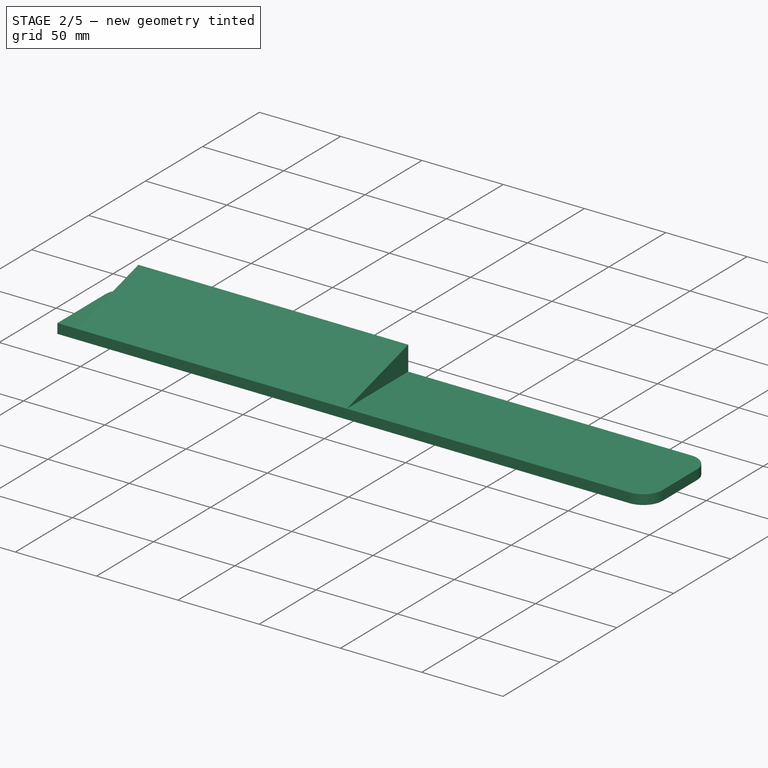
[diagram: stage 2 of 5 — iso view after this stage's code; geometry added in this stage tinted green]
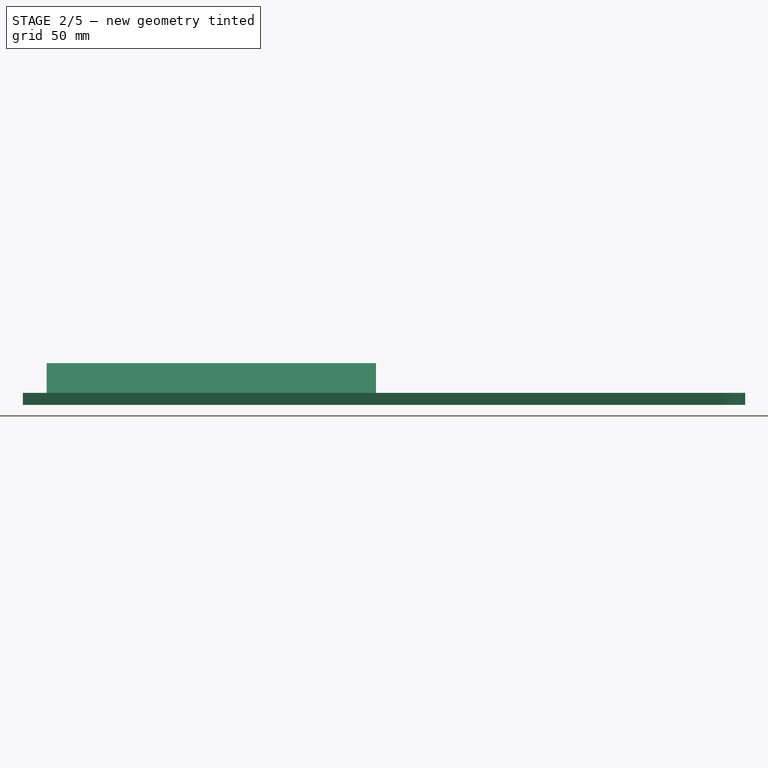
[diagram: stage 2 of 5 — front view after this stage's code; geometry added in this stage tinted green]
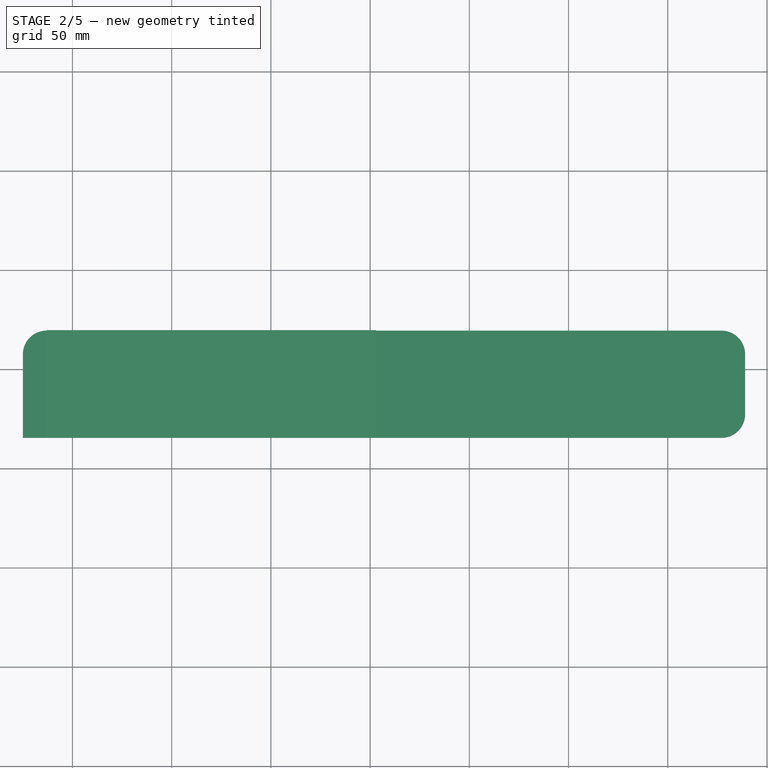
[diagram: stage 2 of 5 — top view after this stage's code; geometry added in this stage tinted green]
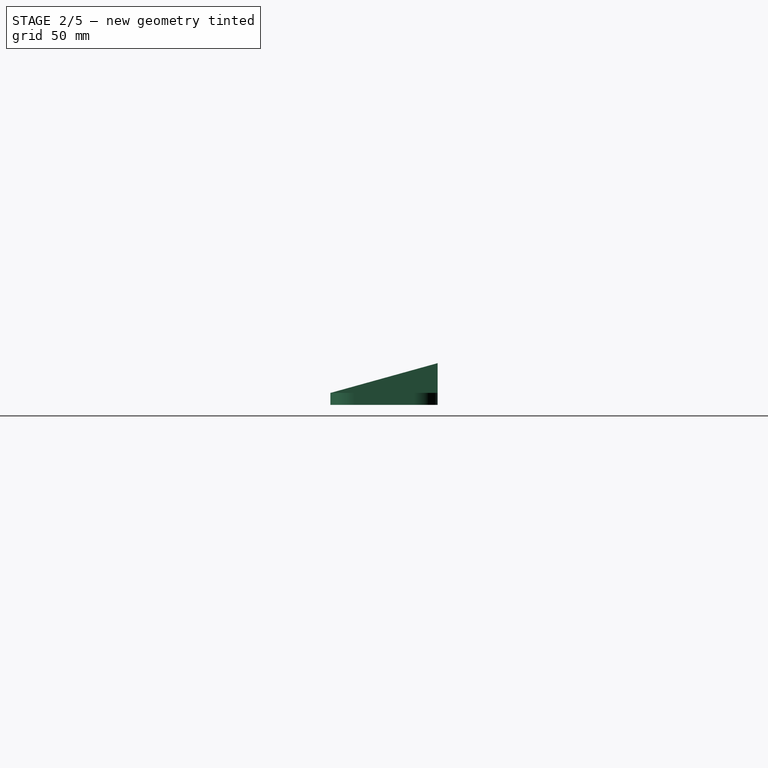
[diagram: stage 2 of 5 — right view after this stage's code; geometry added in this stage tinted green]
FEATURE [PartDesign::LinearPattern] LinearPattern  label="Battery Clip Repeater"
  BaseFeature = -> Fillet004
  Direction = -> Sketch030 [H_Axis]
  Length = 144
  Occurrences = 3
  Originals = -> [Pad022,Pad023,Pad024,Pad026,Fillet004,Fillet003]
  Placement = pos=(0,9.48,2e-15) rot=(0,0.707107,0.707107;3.14159rad)
FEATURE [PartDesign::Body] Body007  label="Battery"
  Group = -> [ShapeBinder008,Sketch033,Pad025]
  Origin = -> Origin011
  Tip = -> Pad025
FEATURE [App::Part] Part002  label="P35W Perfs (Ref)"
  Group = -> [Body005,Body007]
  Origin = -> Origin006
FEATURE [PartDesign::Chamfer] Chamfer  label="Floor Screw Hole Chamfer"
  Angle = 45
  Base = -> LinearPattern [Edge164,Edge150,Edge126,Edge132,Edge128,Edge130,Edge186,Edge213]
  BaseFeature = -> LinearPattern
  ChamferType = 1
  FlipDirection = false
  Placement = pos=(0,9.48,2e-15) rot=(0,0.707107,0.707107;3.14159rad)
  Size = 1.8
  Size2 = 1.5
  SupportTransform = false
  UseAllEdges = false
FEATURE [PartDesign::Fillet] Fillet005  label="Board Mount Fillet"
  Base = -> Chamfer [Edge182,Edge186,Edge104,Edge100,Edge97,Edge95,Edge176,Edge180]
  BaseFeature = -> Chamfer
  Placement = pos=(0,9.48,2e-15) rot=(0,0.707107,0.707107;3.14159rad)
  Radius = 5
  SupportTransform = false
  UseAllEdges = false
FEATURE [Sketcher::SketchObject] Sketch037  label="Sata Mounting Bracket Guide Sketch"
  ExternalGeometry = -> [Fillet005]
  FullyConstrained = true
  MapMode = 5
  Placement = pos=(-1.42e-14,9.48,-88.7526) rot=(0,0,1;0rad)
  Support = -> [Fillet005]
  expr: Constraints[33] = <<$params>>.drive_width
  sketch-geometry (13):
    g0: LineSegment StartX=-128.332 StartY=-58.401 StartZ=0 EndX=-125.332 EndY=-58.401 EndZ=0
    g1: LineSegment StartX=-125.332 StartY=-58.401 StartZ=0 EndX=-125.332 EndY=-114.401 EndZ=0
    g2: LineSegment StartX=-125.332 StartY=-114.401 StartZ=0 EndX=-128.332 EndY=-114.401 EndZ=0
    g3: LineSegment StartX=-128.332 StartY=-114.401 StartZ=0 EndX=-128.332 EndY=-58.401 EndZ=0
    g4: LineSegment StartX=-119.332 StartY=-58.401 StartZ=0 EndX=-116.332 EndY=-58.401 EndZ=0
    g5: LineSegment StartX=-116.332 StartY=-58.401 StartZ=0 EndX=-116.332 EndY=-114.401 EndZ=0
    g6: LineSegment StartX=-116.332 StartY=-114.401 StartZ=0 EndX=-119.332 EndY=-114.401 EndZ=0
    g7: LineSegment StartX=-119.332 StartY=-114.401 StartZ=0 EndX=-119.332 EndY=-58.401 EndZ=0
    g8: LineSegment StartX=-125.332 StartY=-58.401 StartZ=0 EndX=-119.332 EndY=-58.401 EndZ=0
    g9: LineSegment StartX=-122.332 StartY=-114.401 StartZ=0 EndX=-122.332 EndY=-58.401 EndZ=0
    g10: LineSegment StartX=-125.332 StartY=-114.401 StartZ=0 EndX=-122.332 EndY=-114.401 EndZ=0
    g11: LineSegment StartX=-119.332 StartY=-114.401 StartZ=0 EndX=-122.332 EndY=-114.401 EndZ=0
    g12: LineSegment StartX=-28.3321 StartY=-48.4186 StartZ=0 EndX=-130.332 EndY=-48.4186 EndZ=0
  constraints (37):
    c: Coincident(g0,g1)
    c: Coincident(g1,g2)
    c: Coincident(g2,g3)
    c: Coincident(g3,g0)
    c: Horizontal(g0)
    c: Horizontal(g2)
    c: Vertical(g1)
    c: Vertical(g3)
    c: Coincident(g4,g5)
    c: Coincident(g5,g6)
    c: Coincident(g6,g7)
    c: Coincident(g7,g4)
    c: Horizontal(g4)
    c: Horizontal(g6)
    c: Vertical(g5)
    c: Vertical(g7)
    c: Coincident(g8,g0)
    c: Coincident(g8,g4)
    c: Horizontal(g8)
    c: Equal(g4,g0)
    c: DistanceX(g0,g0) = 3
    c: DistanceY(g3,g3) = 56
    c: DistanceX(g8,g8) = 6
    c: Horizontal(g4,g-4)
    c: PointOnObject(g9,g8)
    c: Vertical(g9)
    c: Coincident(g10,g1)
    c: Coincident(g10,g9)
    c: Horizontal(g10)
    c: Coincident(g11,g6)
    c: Coincident(g11,g9)
    c: Horizontal(g11)
    c: Equal(g10,g11)
    c: DistanceX(g12,g12) = 102
    c: Symmetric(g12,g12,g-4)
    c: Block(g12)
    c: DistanceX(g12,g9) = 8
FEATURE [PartDesign::Pad] Pad027  label="Sata Mounting Bracket Guide Pad"
  BaseFeature = -> Fillet005
  Direction = (1,1,1)
  Length = 6
  Length2 = 100
  Placement = pos=(0,9.48,2e-15) rot=(0,0.707107,0.707107;3.14159rad)
  Profile = -> Sketch037
  Type = 0
FEATURE [PartDesign::Chamfer] Chamfer001  label="Sata Mounting Bracket Guide Chamfer"
  Angle = 45
  Base = -> Pad027 [Edge41,Edge47]
  BaseFeature = -> Pad027
  ChamferType = 0
  FlipDirection = false
  Placement = pos=(0,9.48,2e-15) rot=(0,0.707107,0.707107;3.14159rad)
  Size = 3
  Size2 = 1
  SupportTransform = false
  UseAllEdges = false
FEATURE [Sketcher::SketchObject] Sketch038
  ExternalGeometry = -> [Chamfer001]
  FullyConstrained = true
  MapMode = 5
  Placement = pos=(-116.332,9.48,9.04e-14) rot=(0,1,0;1.5708rad)
  Support = -> [Chamfer001]
  sketch-geometry (11):
    g0: LineSegment StartX=85.7526 StartY=-104.401 StartZ=0 EndX=88.7526 EndY=-104.401 EndZ=0
    g1: LineSegment StartX=88.7526 StartY=-104.401 StartZ=0 EndX=88.7526 EndY=-101.401 EndZ=0
    g2: LineSegment StartX=88.7526 StartY=-101.401 StartZ=0 EndX=85.7526 EndY=-101.401 EndZ=0
    g3: LineSegment StartX=85.7526 StartY=-101.401 StartZ=0 EndX=85.7526 EndY=-104.401 EndZ=0
    g4: LineSegment StartX=85.7526 StartY=-68.401 StartZ=0 EndX=88.7526 EndY=-68.401 EndZ=0
    g5: LineSegment StartX=88.7526 StartY=-68.401 StartZ=0 EndX=88.7526 EndY=-71.401 EndZ=0
    g6: LineSegment StartX=88.7526 StartY=-71.401 StartZ=0 EndX=85.7526 EndY=-71.401 EndZ=0
    g7: LineSegment StartX=85.7526 StartY=-71.401 StartZ=0 EndX=85.7526 EndY=-68.401 EndZ=0
    g8: LineSegment StartX=88.7526 StartY=-101.401 StartZ=0 EndX=88.7526 EndY=-71.401 EndZ=0
    g9: LineSegment StartX=88.7526 StartY=-104.401 StartZ=0 EndX=88.7526 EndY=-114.401 EndZ=0
    g10: LineSegment StartX=88.7526 StartY=-58.401 StartZ=0 EndX=88.7526 EndY=-68.401 EndZ=0
  constraints (30):
    c: Coincident(g0,g1)
    c: Coincident(g1,g2)
    c: Coincident(g2,g3)
    c: Coincident(g3,g0)
    c: Horizontal(g0)
    c: Horizontal(g2)
    c: Vertical(g1)
    c: Vertical(g3)
    c: DistanceX(g0,g0) = 3
    c: Equal(g3,g0)
    c: Vertical(g1,g-3)
    c: Coincident(g4,g5)
    c: Coincident(g5,g6)
    c: Coincident(g6,g7)
    c: Coincident(g7,g4)
    c: Horizontal(g4)
    c: Horizontal(g6)
    c: Vertical(g5)
    c: Vertical(g7)
    c: Equal(g6,g7)
    c: Equal(g7,g3)
    c: Coincident(g8,g1)
    c: Coincident(g8,g5)
    c: Vertical(g8)
    c: Coincident(g9,g0)
    c: Coincident(g9,g-3)
    c: Coincident(g10,g-4)
    c: Coincident(g10,g4)
    c: Equal(g10,g9)
    c: DistanceY(g10,g10) = 10
FEATURE [PartDesign::Pocket] Pocket002  label="Sata Mounting Bracket Guide Pocket"
  BaseFeature = -> Chamfer001
  Direction = (1,1,1)
  Length = 15
  Length2 = 3
  Midplane = true
  Placement = pos=(0,9.48,2e-15) rot=(0,0.707107,0.707107;3.14159rad)
  Profile = -> Sketch038
  Type = 4
FEATURE [PartDesign::LinearPattern] LinearPattern001  label="Sata Mounting Bracket Guide Repeater"
  BaseFeature = -> Pocket002
  Direction = -> Sketch037 [H_Axis]
  Length = 76.5
  Occurrences = 2
  Originals = -> [Pad027,Chamfer001,Pocket002]
  Placement = pos=(0,9.48,2e-15) rot=(0,0.707107,0.707107;3.14159rad)
  expr: Length = <<$params>>.drive_mount_dist
FEATURE [Sketcher::SketchObject] Sketch039  label="Elaborate Baseboard Vent Sketch"
  FullyConstrained = false
  MapMode = 5
  Placement = pos=(-1.42e-14,9.48,-88.7526) rot=(0,0,1;0rad)
  Support = -> [LinearPattern001]
  sketch-geometry (169):
    g0: ArcOfCircle CenterX=-109.369 CenterY=-111.452 CenterZ=0 NormalX=0 NormalY=0 NormalZ=1 AngleXU=0 Radius=1 StartAngle=2.35619 EndAngle=5.49779
    g1: ArcOfCircle CenterX=-59.3692 CenterY=-61.4523 CenterZ=0 NormalX=0 NormalY=0 NormalZ=1 AngleXU=0 Radius=1 StartAngle=5.49779 EndAngle=8.63938
    g2: LineSegment StartX=-108.662 StartY=-112.159 StartZ=0 EndX=-58.6621 EndY=-62.1595 EndZ=0
    g3: LineSegment StartX=-110.076 StartY=-110.745 StartZ=0 EndX=-60.0763 EndY=-60.7452 EndZ=0
    g4: ArcOfCircle CenterX=-109.369 CenterY=-101.452 CenterZ=0 NormalX=0 NormalY=0 NormalZ=1 AngleXU=0 Radius=1 StartAngle=2.35619 EndAngle=5.49779
    g5: ArcOfCircle CenterX=-69.3692 CenterY=-61.4523 CenterZ=0 NormalX=0 NormalY=0 NormalZ=1 AngleXU=0 Radius=1 StartAngle=5.49779 EndAngle=8.63938
    g6: LineSegment StartX=-108.662 StartY=-102.159 StartZ=0 EndX=-68.6621 EndY=-62.1595 EndZ=0
    g7: LineSegment StartX=-110.076 StartY=-100.745 StartZ=0 EndX=-70.0763 EndY=-60.7452 EndZ=0
    g8: ArcOfCircle CenterX=-89.3692 CenterY=-111.452 CenterZ=0 NormalX=0 NormalY=0 NormalZ=1 AngleXU=0 Radius=1 StartAngle=2.35619 EndAngle=5.49779
    g9: ArcOfCircle CenterX=-59.3692 CenterY=-81.4523 CenterZ=0 NormalX=0 NormalY=0 NormalZ=1 AngleXU=0 Radius=1 StartAngle=5.49779 EndAngle=8.63938
    g10: LineSegment StartX=-88.6621 StartY=-112.159 StartZ=0 EndX=-58.6621 EndY=-82.1595 EndZ=0
    g11: LineSegment StartX=-90.0763 StartY=-110.745 StartZ=0 EndX=-60.0763 EndY=-80.7452 EndZ=0
    g12: ArcOfCircle CenterX=-79.3692 CenterY=-111.452 CenterZ=0 NormalX=0 NormalY=0 NormalZ=1 AngleXU=0 Radius=1 StartAngle=2.35619 EndAngle=5.49779
    g13: ArcOfCircle CenterX=-59.3692 CenterY=-91.4523 CenterZ=0 NormalX=0 NormalY=0 NormalZ=1 AngleXU=0 Radius=1 StartAngle=5.49779 EndAngle=8.63938
    g14: LineSegment StartX=-78.6621 StartY=-112.159 StartZ=0 EndX=-58.6621 EndY=-92.1595 EndZ=0
    g15: LineSegment StartX=-80.0763 StartY=-110.745 StartZ=0 EndX=-60.0763 EndY=-90.7452 EndZ=0
    g16: ArcOfCircle CenterX=-99.3692 CenterY=-111.452 CenterZ=0 NormalX=0 NormalY=0 NormalZ=1 AngleXU=0 Radius=1 StartAngle=2.35619 EndAngle=5.49779
    g17: ArcOfCircle CenterX=-59.3692 CenterY=-71.4523 CenterZ=0 NormalX=0 NormalY=0 NormalZ=1 AngleXU=0 Radius=1 StartAngle=5.49779 EndAngle=8.63938
    g18: LineSegment StartX=-98.6621 StartY=-112.159 StartZ=0 EndX=-58.6621 EndY=-72.1595 EndZ=0
    g19: LineSegment StartX=-100.076 StartY=-110.745 StartZ=0 EndX=-60.0763 EndY=-70.7452 EndZ=0
    g20: ArcOfCircle CenterX=-109.369 CenterY=-91.4523 CenterZ=0 NormalX=0 NormalY=0 NormalZ=1 AngleXU=0 Radius=1 StartAngle=2.35619 EndAngle=5.49779
    g21: ArcOfCircle CenterX=-79.3692 CenterY=-61.4523 CenterZ=0 NormalX=0 NormalY=0 NormalZ=1 AngleXU=0 Radius=1 StartAngle=5.49779 EndAngle=8.63938
    g22: LineSegment StartX=-108.662 StartY=-92.1595 StartZ=0 EndX=-78.6621 EndY=-62.1595 EndZ=0
    g23: LineSegment StartX=-110.076 StartY=-90.7452 StartZ=0 EndX=-80.0763 EndY=-60.7452 EndZ=0
    g24: ArcOfCircle CenterX=-109.369 CenterY=-81.4523 CenterZ=0 NormalX=0 NormalY=0 NormalZ=1 AngleXU=0 Radius=1 StartAngle=2.35619 EndAngle=5.49779
    g25: ArcOfCircle CenterX=-89.3692 CenterY=-61.4523 CenterZ=0 NormalX=0 NormalY=0 NormalZ=1 AngleXU=0 Radius=1 StartAngle=5.49779 EndAngle=8.63938
    g26: LineSegment StartX=-108.662 StartY=-82.1595 StartZ=0 EndX=-88.6621 EndY=-62.1595 EndZ=0
    g27: LineSegment StartX=-110.076 StartY=-80.7452 StartZ=0 EndX=-90.0763 EndY=-60.7452 EndZ=0
    g28: ArcOfCircle CenterX=-69.3692 CenterY=-111.452 CenterZ=0 NormalX=0 NormalY=0 NormalZ=1 AngleXU=0 Radius=1 StartAngle=2.35619 EndAngle=5.49779
    g29: ArcOfCircle CenterX=-59.3692 CenterY=-101.452 CenterZ=0 NormalX=0 NormalY=0 NormalZ=1 AngleXU=0 Radius=1 StartAngle=5.49779 EndAngle=8.63938
    g30: LineSegment StartX=-68.6621 StartY=-112.159 StartZ=0 EndX=-58.6621 EndY=-102.159 EndZ=0
    g31: LineSegment StartX=-70.0763 StartY=-110.745 StartZ=0 EndX=-60.0763 EndY=-100.745 EndZ=0
    g32: ArcOfCircle CenterX=-109.369 CenterY=-71.4523 CenterZ=0 NormalX=0 NormalY=0 NormalZ=1 AngleXU=0 Radius=1 StartAngle=2.35619 EndAngle=5.49779
    g33: ArcOfCircle CenterX=-99.3692 CenterY=-61.4523 CenterZ=0 NormalX=0 NormalY=0 NormalZ=1 AngleXU=0 Radius=1 StartAngle=5.49779 EndAngle=8.63938
    g34: LineSegment StartX=-108.662 StartY=-72.1595 StartZ=0 EndX=-98.6621 EndY=-62.1595 EndZ=0
    g35: LineSegment StartX=-110.076 StartY=-70.7452 StartZ=0 EndX=-100.076 EndY=-60.7452 EndZ=0
    g36: LineSegment StartX=-109.369 StartY=-111.452 StartZ=0 EndX=-99.3692 EndY=-111.452 EndZ=0
    g37: LineSegment StartX=-99.3692 StartY=-111.452 StartZ=0 EndX=-89.3692 EndY=-111.452 EndZ=0
    g38: LineSegment StartX=-89.3692 StartY=-111.452 StartZ=0 EndX=-79.3692 EndY=-111.452 EndZ=0
    g39: LineSegment StartX=-79.3692 StartY=-111.452 StartZ=0 EndX=-69.3692 EndY=-111.452 EndZ=0
    g40: LineSegment StartX=-69.3692 StartY=-111.452 StartZ=0 EndX=-59.3692 EndY=-111.452 EndZ=0
    g41: LineSegment StartX=-59.3692 StartY=-61.4523 StartZ=0 EndX=-59.3692 EndY=-71.4523 EndZ=0
    g42: LineSegment StartX=-59.3692 StartY=-71.4523 StartZ=0 EndX=-59.3692 EndY=-81.4523 EndZ=0
    g43: LineSegment StartX=-59.3692 StartY=-81.4523 StartZ=0 EndX=-59.3692 EndY=-91.4523 EndZ=0
    g44: LineSegment StartX=-59.3692 StartY=-91.4523 StartZ=0 EndX=-59.3692 EndY=-101.452 EndZ=0
    g45: LineSegment StartX=-59.3692 StartY=-101.452 StartZ=0 EndX=-59.3692 EndY=-111.452 EndZ=0
    g46: LineSegment StartX=-109.369 StartY=-111.452 StartZ=0 EndX=-109.369 EndY=-101.452 EndZ=0
    g47: LineSegment StartX=-109.369 StartY=-101.452 StartZ=0 EndX=-109.369 EndY=-91.4523 EndZ=0
    g48: LineSegment StartX=-109.369 StartY=-91.4523 StartZ=0 EndX=-109.369 EndY=-81.4523 EndZ=0
    g49: LineSegment StartX=-109.369 StartY=-81.4523 StartZ=0 EndX=-109.369 EndY=-71.4523 EndZ=0
    g50: LineSegment StartX=-109.369 StartY=-71.4523 StartZ=0 EndX=-109.369 EndY=-61.4523 EndZ=0
    g51: LineSegment StartX=-109.369 StartY=-61.4523 StartZ=0 EndX=-99.3692 EndY=-61.4523 EndZ=0
    g52: LineSegment StartX=-99.3692 StartY=-61.4523 StartZ=0 EndX=-89.3692 EndY=-61.4523 EndZ=0
    g53: LineSegment StartX=-89.3692 StartY=-61.4523 StartZ=0 EndX=-79.3692 EndY=-61.4523 EndZ=0
    g54: LineSegment StartX=-79.3692 StartY=-61.4523 StartZ=0 EndX=-69.3692 EndY=-61.4523 EndZ=0
    g55: LineSegment StartX=-69.3692 StartY=-61.4523 StartZ=0 EndX=-59.3692 EndY=-61.4523 EndZ=0
    g56: ArcOfCircle CenterX=-136.052 CenterY=-51.8361 CenterZ=0 NormalX=0 NormalY=0 NormalZ=1 AngleXU=0 Radius=1 StartAngle=2.35619 EndAngle=5.49779
    g57: ArcOfCircle CenterX=-96.0518 CenterY=-11.8361 CenterZ=0 NormalX=0 NormalY=0 NormalZ=1 AngleXU=0 Radius=1 StartAngle=5.49779 EndAngle=8.63938
    g58: LineSegment StartX=-135.345 StartY=-52.5432 StartZ=0 EndX=-95.3447 EndY=-12.5432 EndZ=0
    g59: LineSegment StartX=-136.759 StartY=-51.1289 StartZ=0 EndX=-96.7589 EndY=-11.1289 EndZ=0
    g60: ArcOfCircle CenterX=-136.052 CenterY=-43.8361 CenterZ=0 NormalX=0 NormalY=0 NormalZ=1 AngleXU=0 Radius=1 StartAngle=2.35619 EndAngle=5.49779
    g61: ArcOfCircle CenterX=-104.052 CenterY=-11.8361 CenterZ=0 NormalX=0 NormalY=0 NormalZ=1 AngleXU=0 Radius=1 StartAngle=5.49779 EndAngle=8.63938
    g62: LineSegment StartX=-135.345 StartY=-44.5432 StartZ=0 EndX=-103.345 EndY=-12.5432 EndZ=0
    g63: LineSegment StartX=-136.759 StartY=-43.1289 StartZ=0 EndX=-104.759 EndY=-11.1289 EndZ=0
    g64: ArcOfCircle CenterX=-120.052 CenterY=-51.8361 CenterZ=0 NormalX=0 NormalY=0 NormalZ=1 AngleXU=0 Radius=1 StartAngle=2.35619 EndAngle=5.49779
    g65: ArcOfCircle CenterX=-96.0518 CenterY=-27.8361 CenterZ=0 NormalX=0 NormalY=0 NormalZ=1 AngleXU=0 Radius=1 StartAngle=5.49779 EndAngle=8.63938
    g66: LineSegment StartX=-119.345 StartY=-52.5432 StartZ=0 EndX=-95.3447 EndY=-28.5432 EndZ=0
    g67: LineSegment StartX=-120.759 StartY=-51.1289 StartZ=0 EndX=-96.7589 EndY=-27.1289 EndZ=0
    g68: ArcOfCircle CenterX=-112.052 CenterY=-51.8361 CenterZ=0 NormalX=0 NormalY=0 NormalZ=1 AngleXU=0 Radius=1 StartAngle=2.35619 EndAngle=5.49779
    g69: ArcOfCircle CenterX=-96.0518 CenterY=-35.8361 CenterZ=0 NormalX=0 NormalY=0 NormalZ=1 AngleXU=0 Radius=1 StartAngle=5.49779 EndAngle=8.63938
    g70: LineSegment StartX=-111.345 StartY=-52.5432 StartZ=0 EndX=-95.3447 EndY=-36.5432 EndZ=0
    g71: LineSegment StartX=-112.759 StartY=-51.1289 StartZ=0 EndX=-96.7589 EndY=-35.1289 EndZ=0
    g72: ArcOfCircle CenterX=-128.052 CenterY=-51.8361 CenterZ=0 NormalX=0 NormalY=0 NormalZ=1 AngleXU=0 Radius=1 StartAngle=2.35619 EndAngle=5.49779
    g73: ArcOfCircle CenterX=-96.0518 CenterY=-19.8361 CenterZ=0 NormalX=0 NormalY=0 NormalZ=1 AngleXU=0 Radius=1 StartAngle=5.49779 EndAngle=8.63938
    g74: LineSegment StartX=-127.345 StartY=-52.5432 StartZ=0 EndX=-95.3447 EndY=-20.5432 EndZ=0
    g75: LineSegment StartX=-128.759 StartY=-51.1289 StartZ=0 EndX=-96.7589 EndY=-19.1289 EndZ=0
    g76: ArcOfCircle CenterX=-136.052 CenterY=-35.8361 CenterZ=0 NormalX=0 NormalY=0 NormalZ=1 AngleXU=0 Radius=1 StartAngle=2.35619 EndAngle=5.49779
    g77: ArcOfCircle CenterX=-112.052 CenterY=-11.8361 CenterZ=0 NormalX=0 NormalY=0 NormalZ=1 AngleXU=0 Radius=1 StartAngle=5.49779 EndAngle=8.63938
    g78: LineSegment StartX=-135.345 StartY=-36.5432 StartZ=0 EndX=-111.345 EndY=-12.5432 EndZ=0
    g79: LineSegment StartX=-136.759 StartY=-35.1289 StartZ=0 EndX=-112.759 EndY=-11.1289 EndZ=0
    g80: ArcOfCircle CenterX=-136.052 CenterY=-27.8361 CenterZ=0 NormalX=0 NormalY=0 NormalZ=1 AngleXU=0 Radius=1 StartAngle=2.35619 EndAngle=5.49779
    g81: ArcOfCircle CenterX=-120.052 CenterY=-11.8361 CenterZ=0 NormalX=0 NormalY=0 NormalZ=1 AngleXU=0 Radius=1 StartAngle=5.49779 EndAngle=8.63938
    g82: LineSegment StartX=-135.345 StartY=-28.5432 StartZ=0 EndX=-119.345 EndY=-12.5432 EndZ=0
    g83: LineSegment StartX=-136.759 StartY=-27.1289 StartZ=0 EndX=-120.759 EndY=-11.1289 EndZ=0
    g84: ArcOfCircle CenterX=-104.052 CenterY=-51.8361 CenterZ=0 NormalX=0 NormalY=0 NormalZ=1 AngleXU=0 Radius=1 StartAngle=2.35619 EndAngle=5.49779
    g85: ArcOfCircle CenterX=-96.0518 CenterY=-43.8361 CenterZ=0 NormalX=0 NormalY=0 NormalZ=1 AngleXU=0 Radius=1 StartAngle=5.49779 EndAngle=8.63938
    g86: LineSegment StartX=-103.345 StartY=-52.5432 StartZ=0 EndX=-95.3447 EndY=-44.5432 EndZ=0
    g87: LineSegment StartX=-104.759 StartY=-51.1289 StartZ=0 EndX=-96.7589 EndY=-43.1289 EndZ=0
    g88: ArcOfCircle CenterX=-136.052 CenterY=-19.8361 CenterZ=0 NormalX=0 NormalY=0 NormalZ=1 AngleXU=0 Radius=1 StartAngle=2.35619 EndAngle=5.49779
    g89: ArcOfCircle CenterX=-128.052 CenterY=-11.8361 CenterZ=0 NormalX=0 NormalY=0 NormalZ=1 AngleXU=0 Radius=1 StartAngle=5.49779 EndAngle=8.63938
    g90: LineSegment StartX=-135.345 StartY=-20.5432 StartZ=0 EndX=-127.345 EndY=-12.5432 EndZ=0
    g91: LineSegment StartX=-136.759 StartY=-19.1289 StartZ=0 EndX=-128.759 EndY=-11.1289 EndZ=0
    g92: LineSegment StartX=-136.052 StartY=-51.8361 StartZ=0 EndX=-128.052 EndY=-51.8361 EndZ=0
    g93: LineSegment StartX=-128.052 StartY=-51.8361 StartZ=0 EndX=-120.052 EndY=-51.8361 EndZ=0
    g94: LineSegment StartX=-120.052 StartY=-51.8361 StartZ=0 EndX=-112.052 EndY=-51.8361 EndZ=0
    g95: LineSegment StartX=-112.052 StartY=-51.8361 StartZ=0 EndX=-104.052 EndY=-51.8361 EndZ=0
    g96: LineSegment StartX=-104.052 StartY=-51.8361 StartZ=0 EndX=-96.0518 EndY=-51.8361 EndZ=0
    g97: LineSegment StartX=-96.0518 StartY=-11.8361 StartZ=0 EndX=-96.0518 EndY=-19.8361 EndZ=0
    g98: LineSegment StartX=-96.0518 StartY=-19.8361 StartZ=0 EndX=-96.0518 EndY=-27.8361 EndZ=0
    g99: LineSegment StartX=-96.0518 StartY=-27.8361 StartZ=0 EndX=-96.0518 EndY=-35.8361 EndZ=0
    g100: LineSegment StartX=-96.0518 StartY=-35.8361 StartZ=0 EndX=-96.0518 EndY=-43.8361 EndZ=0
    g101: LineSegment StartX=-96.0518 StartY=-43.8361 StartZ=0 EndX=-96.0518 EndY=-51.8361 EndZ=0
    g102: LineSegment StartX=-136.052 StartY=-51.8361 StartZ=0 EndX=-136.052 EndY=-43.8361 EndZ=0
    g103: LineSegment StartX=-136.052 StartY=-43.8361 StartZ=0 EndX=-136.052 EndY=-35.8361 EndZ=0
    g104: LineSegment StartX=-136.052 StartY=-35.8361 StartZ=0 EndX=-136.052 EndY=-27.8361 EndZ=0
    g105: LineSegment StartX=-136.052 StartY=-27.8361 StartZ=0 EndX=-136.052 EndY=-19.8361 EndZ=0
    g106: LineSegment StartX=-136.052 StartY=-19.8361 StartZ=0 EndX=-136.052 EndY=-11.8361 EndZ=0
    g107: LineSegment StartX=-136.052 StartY=-11.8361 StartZ=0 EndX=-128.052 EndY=-11.8361 EndZ=0
    g108: LineSegment StartX=-128.052 StartY=-11.8361 StartZ=0 EndX=-120.052 EndY=-11.8361 EndZ=0
    g109: LineSegment StartX=-120.052 StartY=-11.8361 StartZ=0 EndX=-112.052 EndY=-11.8361 EndZ=0
    g110: LineSegment StartX=-112.052 StartY=-11.8361 StartZ=0 EndX=-104.052 EndY=-11.8361 EndZ=0
    g111: LineSegment StartX=-104.052 StartY=-11.8361 StartZ=0 EndX=-96.0518 EndY=-11.8361 EndZ=0
    g112: ArcOfCircle CenterX=-64.3449 CenterY=-51.8361 CenterZ=0 NormalX=0 NormalY=0 NormalZ=1 AngleXU=0 Radius=0.997951 StartAngle=2.35619 EndAngle=5.49779
    g113: ArcOfCircle CenterX=-24.3449 CenterY=-11.8361 CenterZ=0 NormalX=0 NormalY=0 NormalZ=1 AngleXU=0 Radius=0.997951 StartAngle=5.49779 EndAngle=8.63938
    g114: LineSegment StartX=-63.6393 StartY=-52.5417 StartZ=0 EndX=-23.6393 EndY=-12.5417 EndZ=0
    g115: LineSegment StartX=-65.0506 StartY=-51.1304 StartZ=0 EndX=-25.0506 EndY=-11.1304 EndZ=0
    g116: ArcOfCircle CenterX=-64.3449 CenterY=-43.8361 CenterZ=0 NormalX=0 NormalY=0 NormalZ=1 AngleXU=0 Radius=0.997951 StartAngle=2.35619 EndAngle=5.49779
    g117: ArcOfCircle CenterX=-32.3449 CenterY=-11.8361 CenterZ=0 NormalX=0 NormalY=0 NormalZ=1 AngleXU=0 Radius=0.997951 StartAngle=5.49779 EndAngle=8.63938
    g118: LineSegment StartX=-63.6393 StartY=-44.5417 StartZ=0 EndX=-31.6393 EndY=-12.5417 EndZ=0
    g119: LineSegment StartX=-65.0506 StartY=-43.1304 StartZ=0 EndX=-33.0506 EndY=-11.1304 EndZ=0
    g120: ArcOfCircle CenterX=-48.3449 CenterY=-51.8361 CenterZ=0 NormalX=0 NormalY=0 NormalZ=1 AngleXU=0 Radius=0.997951 StartAngle=2.35619 EndAngle=5.49779
    g121: ArcOfCircle CenterX=-24.3449 CenterY=-27.8361 CenterZ=0 NormalX=0 NormalY=0 NormalZ=1 AngleXU=0 Radius=0.997951 StartAngle=5.49779 EndAngle=8.63938
    g122: LineSegment StartX=-47.6393 StartY=-52.5417 StartZ=0 EndX=-23.6393 EndY=-28.5417 EndZ=0
    g123: LineSegment StartX=-49.0506 StartY=-51.1304 StartZ=0 EndX=-25.0506 EndY=-27.1304 EndZ=0
    g124: ArcOfCircle CenterX=-40.3449 CenterY=-51.8361 CenterZ=0 NormalX=0 NormalY=0 NormalZ=1 AngleXU=0 Radius=0.997951 StartAngle=2.35619 EndAngle=5.49779
    g125: ArcOfCircle CenterX=-24.3449 CenterY=-35.8361 CenterZ=0 NormalX=0 NormalY=0 NormalZ=1 AngleXU=0 Radius=0.997951 StartAngle=5.49779 EndAngle=8.63938
    g126: LineSegment StartX=-39.6393 StartY=-52.5417 StartZ=0 EndX=-23.6393 EndY=-36.5417 EndZ=0
    g127: LineSegment StartX=-41.0506 StartY=-51.1304 StartZ=0 EndX=-25.0506 EndY=-35.1304 EndZ=0
    g128: ArcOfCircle CenterX=-56.3449 CenterY=-51.8361 CenterZ=0 NormalX=0 NormalY=0 NormalZ=1 AngleXU=0 Radius=0.997951 StartAngle=2.35619 EndAngle=5.49779
    g129: ArcOfCircle CenterX=-24.3449 CenterY=-19.8361 CenterZ=0 NormalX=0 NormalY=0 NormalZ=1 AngleXU=0 Radius=0.997951 StartAngle=5.49779 EndAngle=8.63938
    g130: LineSegment StartX=-55.6393 StartY=-52.5417 StartZ=0 EndX=-23.6393 EndY=-20.5417 EndZ=0
    g131: LineSegment StartX=-57.0506 StartY=-51.1304 StartZ=0 EndX=-25.0506 EndY=-19.1304 EndZ=0
    g132: ArcOfCircle CenterX=-64.3449 CenterY=-35.8361 CenterZ=0 NormalX=0 NormalY=0 NormalZ=1 AngleXU=0 Radius=0.997951 StartAngle=2.35619 EndAngle=5.49779
    g133: ArcOfCircle CenterX=-40.3449 CenterY=-11.8361 CenterZ=0 NormalX=0 NormalY=0 NormalZ=1 AngleXU=0 Radius=0.997951 StartAngle=5.49779 EndAngle=8.63938
    g134: LineSegment StartX=-63.6393 StartY=-36.5417 StartZ=0 EndX=-39.6393 EndY=-12.5417 EndZ=0
    g135: LineSegment StartX=-65.0506 StartY=-35.1304 StartZ=0 EndX=-41.0506 EndY=-11.1304 EndZ=0
    g136: ArcOfCircle CenterX=-64.3449 CenterY=-27.8361 CenterZ=0 NormalX=0 NormalY=0 NormalZ=1 AngleXU=0 Radius=0.997951 StartAngle=2.35619 EndAngle=5.49779
    g137: ArcOfCircle CenterX=-48.3449 CenterY=-11.8361 CenterZ=0 NormalX=0 NormalY=0 NormalZ=1 AngleXU=0 Radius=0.997951 StartAngle=5.49779 EndAngle=8.63938
    g138: LineSegment StartX=-63.6393 StartY=-28.5417 StartZ=0 EndX=-47.6393 EndY=-12.5417 EndZ=0
    g139: LineSegment StartX=-65.0506 StartY=-27.1304 StartZ=0 EndX=-49.0506 EndY=-11.1304 EndZ=0
    g140: ArcOfCircle CenterX=-32.3449 CenterY=-51.8361 CenterZ=0 NormalX=0 NormalY=0 NormalZ=1 AngleXU=0 Radius=0.997951 StartAngle=2.35619 EndAngle=5.49779
    g141: ArcOfCircle CenterX=-24.3449 CenterY=-43.8361 CenterZ=0 NormalX=0 NormalY=0 NormalZ=1 AngleXU=0 Radius=0.997951 StartAngle=5.49779 EndAngle=8.63938
    g142: LineSegment StartX=-31.6393 StartY=-52.5417 StartZ=0 EndX=-23.6393 EndY=-44.5417 EndZ=0
    g143: LineSegment StartX=-33.0506 StartY=-51.1304 StartZ=0 EndX=-25.0506 EndY=-43.1304 EndZ=0
    g144: ArcOfCircle CenterX=-64.3449 CenterY=-19.8361 CenterZ=0 NormalX=0 NormalY=0 NormalZ=1 AngleXU=0 Radius=0.997951 StartAngle=2.35619 EndAngle=5.49779
    g145: ArcOfCircle CenterX=-56.3449 CenterY=-11.8361 CenterZ=0 NormalX=0 NormalY=0 NormalZ=1 AngleXU=0 Radius=0.997951 StartAngle=5.49779 EndAngle=8.63938
    g146: LineSegment StartX=-63.6393 StartY=-20.5417 StartZ=0 EndX=-55.6393 EndY=-12.5417 EndZ=0
    g147: LineSegment StartX=-65.0506 StartY=-19.1304 StartZ=0 EndX=-57.0506 EndY=-11.1304 EndZ=0
    g148: LineSegment StartX=-64.3449 StartY=-51.8361 StartZ=0 EndX=-56.3449 EndY=-51.8361 EndZ=0
    g149: LineSegment StartX=-56.3449 StartY=-51.8361 StartZ=0 EndX=-48.3449 EndY=-51.8361 EndZ=0
    g150: LineSegment StartX=-48.3449 StartY=-51.8361 StartZ=0 EndX=-40.3449 EndY=-51.8361 EndZ=0
    g151: LineSegment StartX=-40.3449 StartY=-51.8361 StartZ=0 EndX=-32.3449 EndY=-51.8361 EndZ=0
    g152: LineSegment StartX=-32.3449 StartY=-51.8361 StartZ=0 EndX=-24.3449 EndY=-51.8361 EndZ=0
    g153: LineSegment StartX=-24.3449 StartY=-11.8361 StartZ=0 EndX=-24.3449 EndY=-19.8361 EndZ=0
    g154: LineSegment StartX=-24.3449 StartY=-19.8361 StartZ=0 EndX=-24.3449 EndY=-27.8361 EndZ=0
    g155: LineSegment StartX=-24.3449 StartY=-27.8361 StartZ=0 EndX=-24.3449 EndY=-35.8361 EndZ=0
    g156: LineSegment StartX=-24.3449 StartY=-35.8361 StartZ=0 EndX=-24.3449 EndY=-43.8361 EndZ=0
    g157: LineSegment StartX=-24.3449 StartY=-43.8361 StartZ=0 EndX=-24.3449 EndY=-51.8361 EndZ=0
    g158: LineSegment StartX=-64.3449 StartY=-51.8361 StartZ=0 EndX=-64.3449 EndY=-43.8361 EndZ=0
    g159: LineSegment StartX=-64.3449 StartY=-43.8361 StartZ=0 EndX=-64.3449 EndY=-35.8361 EndZ=0
    g160: LineSegment StartX=-64.3449 StartY=-35.8361 StartZ=0 EndX=-64.3449 EndY=-27.8361 EndZ=0
    g161: LineSegment StartX=-64.3449 StartY=-27.8361 StartZ=0 EndX=-64.3449 EndY=-19.8361 EndZ=0
    g162: LineSegment StartX=-64.3449 StartY=-19.8361 StartZ=0 EndX=-64.3449 EndY=-11.8361 EndZ=0
    g163: LineSegment StartX=-64.3449 StartY=-11.8361 StartZ=0 EndX=-56.3449 EndY=-11.8361 EndZ=0
    g164: LineSegment StartX=-56.3449 StartY=-11.8361 StartZ=0 EndX=-48.3449 EndY=-11.8361 EndZ=0
    g165: LineSegment StartX=-48.3449 StartY=-11.8361 StartZ=0 EndX=-40.3449 EndY=-11.8361 EndZ=0
    g166: LineSegment StartX=-40.3449 StartY=-11.8361 StartZ=0 EndX=-32.3449 EndY=-11.8361 EndZ=0
    g167: LineSegment StartX=-32.3449 StartY=-11.8361 StartZ=0 EndX=-24.3449 EndY=-11.8361 EndZ=0
    g168: LineSegment StartX=-96.0518 StartY=-11.8361 StartZ=0 EndX=-64.3449 EndY=-11.8361 EndZ=0
  constraints (392):
    c: Tangent(g0,g3) = 1.5708
    c: Tangent(g0,g2) = -1.5708
    c: Tangent(g2,g1) = -1.5708
    c: Tangent(g3,g1) = 1.5708
    c: Equal(g0,g1)
    c: DistanceX(g0,g40) = 50
    c: Tangent(g4,g7) = 1.5708
    c: Tangent(g4,g6) = -1.5708
    c: Tangent(g6,g5) = -1.5708
    c: Tangent(g7,g5) = 1.5708
    c: Equal(g4,g5)
    c: Tangent(g8,g11) = 1.5708
    c: Tangent(g8,g10) = -1.5708
    c: Tangent(g10,g9) = -1.5708
    c: Tangent(g11,g9) = 1.5708
    c: Equal(g8,g9)
    c: Tangent(g12,g15) = 1.5708
    c: Tangent(g12,g14) = -1.5708
    c: Tangent(g14,g13) = -1.5708
    c: Tangent(g15,g13) = 1.5708
    c: Equal(g12,g13)
    c: Tangent(g16,g19) = 1.5708
    c: Tangent(g16,g18) = -1.5708
    c: Tangent(g18,g17) = -1.5708
    c: Tangent(g19,g17) = 1.5708
    c: Equal(g16,g17)
    c: Tangent(g20,g23) = 1.5708
    c: Tangent(g20,g22) = -1.5708
    c: Tangent(g22,g21) = -1.5708
    c: Tangent(g23,g21) = 1.5708
    c: Equal(g20,g21)
    c: Tangent(g24,g27) = 1.5708
    c: Tangent(g24,g26) = -1.5708
    c: Tangent(g26,g25) = -1.5708
    c: Tangent(g27,g25) = 1.5708
    c: Equal(g24,g25)
    c: Tangent(g28,g31) = 1.5708
    c: Tangent(g28,g30) = -1.5708
    c: Tangent(g30,g29) = -1.5708
    c: Tangent(g31,g29) = 1.5708
    c: Equal(g28,g29)
    c: Tangent(g32,g35) = 1.5708
    c: Tangent(g32,g34) = -1.5708
    c: Tangent(g34,g33) = -1.5708
    c: Tangent(g35,g33) = 1.5708
    c: Equal(g32,g33)
    c: Radius(g0) = 1
    c: Equal(g0,g16)
    c: Equal(g16,g8)
    c: Equal(g8,g12)
    c: Equal(g12,g28)
    c: Equal(g28,g4)
    c: Equal(g4,g20)
    c: Equal(g20,g32)
    c: Equal(g32,g24)
    c: Coincident(g36,g0)
    c: Coincident(g36,g16)
    c: Horizontal(g36)
    c: Coincident(g37,g16)
    c: Coincident(g37,g8)
    c: Horizontal(g37)
    c: Coincident(g38,g8)
    c: Coincident(g38,g12)
    c: Horizontal(g38)
    c: Coincident(g39,g12)
    c: Coincident(g39,g28)
    c: Horizontal(g39)
    c: Coincident(g40,g28)
    c: Equal(g36,g37)
    c: Equal(g37,g38)
    c: Equal(g38,g39)
    c: Equal(g39,g40)
    c: Coincident(g41,g1)
    c: Coincident(g41,g17)
    c: Vertical(g41)
    c: Coincident(g42,g17)
    c: Coincident(g42,g9)
    c: Coincident(g43,g9)
    c: Coincident(g43,g13)
    c: Coincident(g44,g13)
    c: Coincident(g44,g29)
    c: Vertical(g44)
    c: Coincident(g45,g29)
    c: Vertical(g45)
    c: Vertical(g43)
    c: Vertical(g42)
    c: Equal(g41,g42)
    c: Equal(g42,g43)
    c: Equal(g43,g44)
    c: Equal(g44,g45)
    c: Horizontal(g40)
    c: Coincident(g40,g45)
    c: Coincident(g46,g0)
    c: Coincident(g46,g4)
    c: Vertical(g46)
    c: Coincident(g47,g4)
    c: Coincident(g47,g20)
    c: Vertical(g47)
    c: Coincident(g48,g20)
    c: Coincident(g48,g24)
    c: Coincident(g49,g24)
    c: Coincident(g49,g32)
    c: Coincident(g50,g32)
    c: Vertical(g50)
    c: Vertical(g48)
    c: Coincident(g51,g33)
    c: Horizontal(g51)
    c: Coincident(g52,g33)
    c: Coincident(g52,g25)
    c: Horizontal(g52)
    c: Coincident(g53,g25)
    c: Coincident(g53,g21)
    c: Horizontal(g53)
    c: Coincident(g54,g21)
    c: Coincident(g54,g5)
    c: Horizontal(g54)
    c: Coincident(g55,g5)
    c: Coincident(g55,g1)
    c: Horizontal(g55)
    c: Equal(g55,g54)
    c: Equal(g54,g53)
    c: Equal(g53,g52)
    c: Equal(g52,g51)
    c: Coincident(g50,g51)
    c: DistanceY(g40,g1) = 50
    c: Vertical(g49)
    c: Equal(g46,g47)
    c: Equal(g47,g48)
    c: Equal(g48,g49)
    c: Equal(g49,g50)
    c: Tangent(g56,g59) = 1.5708
    c: Tangent(g56,g58) = -1.5708
    c: Tangent(g58,g57) = -1.5708
    c: Tangent(g59,g57) = 1.5708
    c: Equal(g56,g57)
    c: DistanceX(g56,g96) = 40
    c: Tangent(g60,g63) = 1.5708
    c: Tangent(g60,g62) = -1.5708
    c: Tangent(g62,g61) = -1.5708
    c: Tangent(g63,g61) = 1.5708
    c: Equal(g60,g61)
    c: Tangent(g64,g67) = 1.5708
    c: Tangent(g64,g66) = -1.5708
    c: Tangent(g66,g65) = -1.5708
    c: Tangent(g67,g65) = 1.5708
    c: Equal(g64,g65)
    c: Tangent(g68,g71) = 1.5708
    c: Tangent(g68,g70) = -1.5708
    c: Tangent(g70,g69) = -1.5708
    c: Tangent(g71,g69) = 1.5708
    c: Equal(g68,g69)
    c: Tangent(g72,g75) = 1.5708
    c: Tangent(g72,g74) = -1.5708
    c: Tangent(g74,g73) = -1.5708
    c: Tangent(g75,g73) = 1.5708
    c: Equal(g72,g73)
    c: Tangent(g76,g79) = 1.5708
    c: Tangent(g76,g78) = -1.5708
    c: Tangent(g78,g77) = -1.5708
    c: Tangent(g79,g77) = 1.5708
    c: Equal(g76,g77)
    c: Tangent(g80,g83) = 1.5708
    c: Tangent(g80,g82) = -1.5708
    c: Tangent(g82,g81) = -1.5708
    c: Tangent(g83,g81) = 1.5708
    c: Equal(g80,g81)
    c: Tangent(g84,g87) = 1.5708
    c: Tangent(g84,g86) = -1.5708
    c: Tangent(g86,g85) = -1.5708
    c: Tangent(g87,g85) = 1.5708
    c: Equal(g84,g85)
    c: Tangent(g88,g91) = 1.5708
    c: Tangent(g88,g90) = -1.5708
    c: Tangent(g90,g89) = -1.5708
    c: Tangent(g91,g89) = 1.5708
    c: Equal(g88,g89)
    c: Equal(g0,g56) = 1
    c: Equal(g56,g72)
    c: Equal(g72,g64)
    c: Equal(g64,g68)
    c: Equal(g68,g84)
    c: Equal(g84,g60)
    c: Equal(g60,g76)
    c: Equal(g76,g88)
    c: Equal(g88,g80)
    c: Coincident(g92,g56)
    c: Coincident(g92,g72)
    c: Horizontal(g92)
    c: Coincident(g93,g72)
    c: Coincident(g93,g64)
    c: Horizontal(g93)
    c: Coincident(g94,g64)
    c: Coincident(g94,g68)
    c: Horizontal(g94)
    c: Coincident(g95,g68)
    c: Coincident(g95,g84)
    c: Horizontal(g95)
    c: Coincident(g96,g84)
    c: Equal(g92,g93)
    c: Equal(g93,g94)
    c: Equal(g94,g95)
    c: Equal(g95,g96)
    c: Coincident(g97,g57)
    c: Coincident(g97,g73)
    c: Vertical(g97)
    c: Coincident(g98,g73)
    c: Coincident(g98,g65)
    c: Coincident(g99,g65)
    c: Coincident(g99,g69)
    c: Coincident(g100,g69)
    c: Coincident(g100,g85)
    c: Vertical(g100)
    c: Coincident(g101,g85)
    c: Vertical(g101)
    c: Vertical(g99)
    c: Vertical(g98)
    c: Equal(g97,g98)
    c: Equal(g98,g99)
    c: Equal(g99,g100)
    c: Equal(g100,g101)
    c: Horizontal(g96)
    c: Coincident(g96,g101)
    c: Coincident(g102,g56)
    c: Coincident(g102,g60)
    c: Vertical(g102)
    c: Coincident(g103,g60)
    c: Coincident(g103,g76)
    c: Vertical(g103)
    c: Coincident(g104,g76)
    c: Coincident(g104,g80)
    c: Coincident(g105,g80)
    c: Coincident(g105,g88)
    c: Coincident(g106,g88)
    c: Vertical(g106)
    c: Vertical(g104)
    c: Coincident(g107,g89)
    c: Horizontal(g107)
    c: Coincident(g108,g89)
    c: Coincident(g108,g81)
    c: Horizontal(g108)
    c: Coincident(g109,g81)
    c: Coincident(g109,g77)
    c: Horizontal(g109)
    c: Coincident(g110,g77)
    c: Coincident(g110,g61)
    c: Horizontal(g110)
    c: Coincident(g111,g61)
    c: Coincident(g111,g57)
    c: Horizontal(g111)
    c: Equal(g111,g110)
    c: Equal(g110,g109)
    c: Equal(g109,g108)
    c: Equal(g108,g107)
    c: Coincident(g106,g107)
    c: DistanceY(g96,g57) = 40
    c: Vertical(g105)
    c: Equal(g102,g103)
    c: Equal(g103,g104)
    c: Equal(g104,g105)
    c: Equal(g105,g106)
    c: Tangent(g112,g115) = 1.5708
    c: Tangent(g112,g114) = -1.5708
    c: Tangent(g114,g113) = -1.5708
    c: Tangent(g115,g113) = 1.5708
    c: Equal(g112,g113)
    c: DistanceX(g112,g152) = 40
    c: Tangent(g116,g119) = 1.5708
    c: Tangent(g116,g118) = -1.5708
    c: Tangent(g118,g117) = -1.5708
    c: Tangent(g119,g117) = 1.5708
    c: Equal(g116,g117)
    c: Tangent(g120,g123) = 1.5708
    c: Tangent(g120,g122) = -1.5708
    c: Tangent(g122,g121) = -1.5708
    c: Tangent(g123,g121) = 1.5708
    c: Equal(g120,g121)
    c: Tangent(g124,g127) = 1.5708
    c: Tangent(g124,g126) = -1.5708
    c: Tangent(g126,g125) = -1.5708
    c: Tangent(g127,g125) = 1.5708
    c: Equal(g124,g125)
    c: Tangent(g128,g131) = 1.5708
    c: Tangent(g128,g130) = -1.5708
    c: Tangent(g130,g129) = -1.5708
    c: Tangent(g131,g129) = 1.5708
    c: Equal(g128,g129)
    c: Tangent(g132,g135) = 1.5708
    c: Tangent(g132,g134) = -1.5708
    c: Tangent(g134,g133) = -1.5708
    c: Tangent(g135,g133) = 1.5708
    c: Equal(g132,g133)
    c: Tangent(g136,g139) = 1.5708
    c: Tangent(g136,g138) = -1.5708
    c: Tangent(g138,g137) = -1.5708
    c: Tangent(g139,g137) = 1.5708
    c: Equal(g136,g137)
    c: Tangent(g140,g143) = 1.5708
    c: Tangent(g140,g142) = -1.5708
    c: Tangent(g142,g141) = -1.5708
    c: Tangent(g143,g141) = 1.5708
    c: Equal(g140,g141)
    c: Tangent(g144,g147) = 1.5708
    c: Tangent(g144,g146) = -1.5708
    c: Tangent(g146,g145) = -1.5708
    c: Tangent(g147,g145) = 1.5708
    c: Equal(g144,g145)
    c: Equal(g112,g128)
    c: Equal(g128,g120)
    c: Equal(g120,g124)
    c: Equal(g124,g140)
    c: Equal(g140,g116)
    c: Equal(g116,g132)
    c: Equal(g132,g144)
    c: Equal(g144,g136)
    c: Coincident(g148,g112)
    c: Coincident(g148,g128)
    c: Horizontal(g148)
    c: Coincident(g149,g128)
    c: Coincident(g149,g120)
    c: Horizontal(g149)
    c: Coincident(g150,g120)
    c: Coincident(g150,g124)
    c: Horizontal(g150)
    c: Coincident(g151,g124)
    c: Coincident(g151,g140)
    c: Horizontal(g151)
    c: Coincident(g152,g140)
    c: Equal(g148,g149)
    c: Equal(g149,g150)
    c: Equal(g150,g151)
    c: Equal(g151,g152)
    c: Coincident(g153,g113)
    c: Coincident(g153,g129)
    c: Vertical(g153)
    c: Coincident(g154,g129)
    c: Coincident(g154,g121)
    c: Coincident(g155,g121)
    c: Coincident(g155,g125)
    c: Coincident(g156,g125)
    c: Coincident(g156,g141)
    c: Vertical(g156)
    c: Coincident(g157,g141)
    c: Vertical(g157)
    c: Vertical(g155)
    c: Vertical(g154)
    c: Equal(g153,g154)
    c: Equal(g154,g155)
    c: Equal(g155,g156)
    c: Equal(g156,g157)
    c: Horizontal(g152)
    c: Coincident(g152,g157)
    c: Coincident(g158,g112)
    c: Coincident(g158,g116)
    c: Vertical(g158)
    c: Coincident(g159,g116)
    c: Coincident(g159,g132)
    c: Vertical(g159)
    c: Coincident(g160,g132)
    c: Coincident(g160,g136)
    c: Coincident(g161,g136)
    c: Coincident(g161,g144)
    c: Coincident(g162,g144)
    c: Vertical(g162)
    c: Vertical(g160)
    c: Coincident(g163,g145)
    c: Horizontal(g163)
    c: Coincident(g164,g145)
    c: Coincident(g164,g137)
    c: Horizontal(g164)
    c: Coincident(g165,g137)
    c: Coincident(g165,g133)
    c: Horizontal(g165)
    c: Coincident(g166,g133)
    c: Coincident(g166,g117)
    c: Horizontal(g166)
    c: Coincident(g167,g117)
    c: Coincident(g167,g113)
    c: Horizontal(g167)
    c: Equal(g167,g166)
    c: Equal(g166,g165)
    c: Equal(g165,g164)
    c: Equal(g164,g163)
    c: Coincident(g162,g163)
    c: DistanceY(g152,g113) = 40
    c: Vertical(g161)
    c: Equal(g158,g159)
    c: Equal(g159,g160)
    c: Equal(g160,g161)
    c: Equal(g161,g162)
    c: Coincident(g168,g57)
    c: Coincident(g168,g162)
    c: Horizontal(g168)
FEATURE [PartDesign::Pocket] Pocket003  label="Vent Pockets"
  BaseFeature = -> LinearPattern001
  Direction = (1,1,1)
  Length = 5
  Length2 = 100
  Placement = pos=(0,9.48,2e-15) rot=(0,0.707107,0.707107;3.14159rad)
  Profile = -> Sketch039
  Type = 0
FEATURE [PartDesign::ShapeBinder] ShapeBinder016
  Placement = pos=(0,9.48,2e-15) rot=(0,0.707107,0.707107;3.14159rad)
  Support = -> [Pocket003]
  TraceSupport = false
FEATURE [Sketcher::SketchObject] Sketch053  label="Back Wall L Base Layer Sketch"
  ExternalGeometry = -> [ShapeBinder016]
  FullyConstrained = false
  MapMode = 5
  Placement = pos=(-1.42e-14,9.48,-88.7526) rot=(0,0,1;0rad)
  Support = -> [ShapeBinder016]
  expr: Constraints[21] = <<$params>>.wall_thickness
  expr: Constraints[51] = <<$params>>.io_mount_thickness
  expr: Constraints[66] = <<$params>>.wall_thread_wrap_diam
  expr: Constraints[84] = <<$params>>.wall_thread_diam
  sketch-geometry (32):
    g0: LineSegment StartX=-163 StartY=8 StartZ=0 EndX=-17 EndY=8 EndZ=0
    g1: ArcOfCircle CenterX=-163 CenterY=-2 CenterZ=0 NormalX=0 NormalY=0 NormalZ=1 AngleXU=0 Radius=10 StartAngle=1.5708 EndAngle=3.14159
    g2: LineSegment StartX=-17 StartY=8 StartZ=0 EndX=-17 EndY=6 EndZ=0
    g3: LineSegment StartX=-17 StartY=6 StartZ=0 EndX=-11.1 EndY=6 EndZ=0
    g4: LineSegment StartX=-11.1 StartY=6 StartZ=0 EndX=-11.1 EndY=4 EndZ=0
    g5: LineSegment StartX=-11.1 StartY=4 StartZ=0 EndX=-19 EndY=4 EndZ=0
    g6: LineSegment StartX=-19 StartY=4 StartZ=0 EndX=-19 EndY=6 EndZ=0
    g7: LineSegment StartX=-19 StartY=6 StartZ=0 EndX=-159 EndY=6 EndZ=0
    g8: LineSegment StartX=-19 StartY=6 StartZ=0 EndX=-17 EndY=6 EndZ=0
    g9: LineSegment StartX=-17 StartY=6 StartZ=0 EndX=-17 EndY=4 EndZ=0
    g10: LineSegment StartX=-163 StartY=8 StartZ=0 EndX=-163 EndY=6 EndZ=0
    g11: LineSegment StartX=-173 StartY=-2 StartZ=0 EndX=-171 EndY=-2 EndZ=0
    g12: LineSegment StartX=-167.981 StartY=-16 StartZ=0 EndX=-171.04 EndY=-16 EndZ=0
    g13: LineSegment StartX=-173 StartY=-2 StartZ=0 EndX=-173 EndY=-10 EndZ=0
    g14: LineSegment StartX=-173 StartY=-10 StartZ=0 EndX=-171 EndY=-10 EndZ=0
    g15: LineSegment StartX=-171 StartY=-10 StartZ=0 EndX=-171 EndY=-6 EndZ=0
    g16: LineSegment StartX=-171 StartY=-6 StartZ=0 EndX=-168 EndY=-6 EndZ=0
    g17: LineSegment StartX=-168 StartY=-6 StartZ=0 EndX=-168 EndY=-10 EndZ=0
    g18: LineSegment StartX=-168 StartY=-10 StartZ=0 EndX=-166 EndY=-10 EndZ=0
    g19: LineSegment StartX=-171 StartY=-10 StartZ=0 EndX=-168 EndY=-10 EndZ=0
    g20: LineSegment StartX=-166 StartY=-10 StartZ=0 EndX=-166 EndY=-4 EndZ=0
    g21: LineSegment StartX=-166 StartY=-4 StartZ=0 EndX=-171 EndY=-4 EndZ=0
    g22: LineSegment StartX=-171 StartY=-2 StartZ=0 EndX=-171 EndY=-4 EndZ=0
    g23: LineSegment StartX=-171 StartY=-6 StartZ=0 EndX=-171 EndY=-4 EndZ=0
    g24: ArcOfCircle CenterX=-163 CenterY=2 CenterZ=0 NormalX=0 NormalY=0 NormalZ=1 AngleXU=0 Radius=4 StartAngle=3.14159 EndAngle=6.28319
    g25: LineSegment StartX=-163 StartY=2 StartZ=0 EndX=-167 EndY=2 EndZ=0
    g26: LineSegment StartX=-163 StartY=2 StartZ=0 EndX=-159 EndY=2 EndZ=0
    g27: LineSegment StartX=-167 StartY=2 StartZ=0 EndX=-169.977 EndY=2 EndZ=0
    g28: LineSegment StartX=-159 StartY=2 StartZ=0 EndX=-159 EndY=6 EndZ=0
    g29: ArcOfCircle CenterX=-162.604 CenterY=-2.01642 CenterZ=0 NormalX=0 NormalY=0 NormalZ=1 AngleXU=0 Radius=8.39578 StartAngle=2.64278 EndAngle=3.13964
    g30: LineSegment StartX=-163 StartY=6 StartZ=0 EndX=-159 EndY=6 EndZ=0
    g31: Circle CenterX=-163 CenterY=2 CenterZ=0 NormalX=0 NormalY=0 NormalZ=1 AngleXU=0 Radius=1.9
  constraints (85):
    c: Coincident(g0,g-3)
    c: Horizontal(g0)
    c: Coincident(g1,g-3)
    c: Coincident(g1,g0)
    c: Coincident(g1,g-3)
    c: DistanceX(g0,g0) = 146
    c: Coincident(g2,g0)
    c: Vertical(g2)
    c: Coincident(g3,g2)
    c: Horizontal(g3)
    c: Coincident(g4,g3)
    c: Coincident(g5,g4)
    c: Horizontal(g5)
    c: Coincident(g6,g5)
    c: Vertical(g6)
    c: Coincident(g7,g6)
    c: Horizontal(g7)
    c: Coincident(g8,g6)
    c: Coincident(g8,g2)
    c: Vertical(g4)
    c: Horizontal(g8)
    c: DistanceY(g2,g2) = 2
    c: Equal(g8,g2)
    c: Coincident(g9,g2)
    c: PointOnObject(g9,g5)
    c: Vertical(g9)
    c: Equal(g9,g8)
    c: DistanceX(g3,g3) = 5.9
    c: Coincident(g10,g0)
    c: Vertical(g10)
    c: Coincident(g11,g1)
    c: Coincident(g11,g29)
    c: Horizontal(g11)
    c: Equal(g10,g11)
    c: Horizontal(g12)
    c: Block(g12)
    c: Coincident(g13,g1)
    c: Vertical(g13)
    c: Coincident(g14,g13)
    c: Horizontal(g14)
    c: Coincident(g15,g14)
    c: Vertical(g15)
    c: Equal(g11,g14)
    c: Coincident(g16,g15)
    c: Horizontal(g16)
    c: DistanceY(g13,g13) = 8
    c: DistanceY(g15,g15) = 4
    c: Coincident(g17,g16)
    c: Vertical(g17)
    c: Coincident(g18,g17)
    c: Horizontal(g18)
    c: DistanceX(g16,g16) = 3
    c: Coincident(g19,g14)
    c: Coincident(g19,g17)
    c: Horizontal(g19)
    c: Coincident(g20,g18)
    c: Vertical(g20)
    c: Coincident(g21,g20)
    c: Horizontal(g21)
    c: Coincident(g22,g29)
    c: Coincident(g22,g21)
    c: Vertical(g22)
    c: Coincident(g23,g15)
    c: Coincident(g23,g21)
    c: Equal(g23,g11)
    c: Equal(g23,g18)
    c: Diameter(g24) = 8
    c: Coincident(g25,g24)
    c: Horizontal(g25)
    c: Coincident(g26,g24)
    c: Horizontal(g26)
    c: Coincident(g27,g25)
    c: Horizontal(g27)
    c: Coincident(g28,g26)
    c: Vertical(g28)
    c: Coincident(g24,g25)
    c: Coincident(g24,g26)
    c: Coincident(g29,g27)
    c: Coincident(g7,g28)
    c: Coincident(g30,g10)
    c: Coincident(g30,g7)
    c: Horizontal(g30)
    c: Coincident(g24,g-4)
    c: Coincident(g31,g24)
    c: Diameter(g31) = 3.8
FEATURE [PartDesign::Pad] Pad037  label="Back Wall L Base Layer"
  Direction = (1,1,1)
  Length = 5
  Length2 = 100
  Placement = pos=(0,9.48,2e-15) rot=(0,0.707107,0.707107;3.14159rad)
  Profile = -> Sketch053
  Type = 0
  expr: Length = <<$params>>.wall_thread_height
FEATURE [Sketcher::SketchObject] Sketch054  label="Back Wall L Layer 1 Sketch"
  ExternalGeometry = -> [Pad037]
  FullyConstrained = false
  MapMode = 5
  Placement = pos=(-7.87e-14,9.48,-83.7526) rot=(0,0,1;0rad)
  Support = -> [Pad037]
  sketch-geometry (16):
    g0: LineSegment StartX=-159 StartY=6 StartZ=0 EndX=-19 EndY=6 EndZ=0
    g1: LineSegment StartX=-19 StartY=6 StartZ=0 EndX=-19 EndY=4 EndZ=0
    g2: LineSegment StartX=-19 StartY=4 StartZ=0 EndX=-11.1 EndY=4 EndZ=0
    g3: LineSegment StartX=-11.1 StartY=4 StartZ=0 EndX=-11.1 EndY=6 EndZ=0
    g4: LineSegment StartX=-19 StartY=6 StartZ=0 EndX=-17 EndY=6 EndZ=0
    g5: LineSegment StartX=-11.1 StartY=6 StartZ=0 EndX=-17 EndY=6 EndZ=0
    g6: LineSegment StartX=-163 StartY=8 StartZ=0 EndX=-17 EndY=8 EndZ=0
    g7: LineSegment StartX=-17 StartY=6 StartZ=0 EndX=-17 EndY=8 EndZ=0
    g8: ArcOfCircle CenterX=-163 CenterY=-2 CenterZ=0 NormalX=0 NormalY=0 NormalZ=1 AngleXU=0 Radius=10 StartAngle=1.5708 EndAngle=3.14159
    g9: LineSegment StartX=-159 StartY=6 StartZ=0 EndX=-163 EndY=6 EndZ=0
    g10: LineSegment StartX=-163 StartY=8 StartZ=0 EndX=-163 EndY=6 EndZ=0
    g11: ArcOfCircle CenterX=-163.149 CenterY=-1.851 CenterZ=0 NormalX=0 NormalY=0 NormalZ=1 AngleXU=0 Radius=7.85241 StartAngle=1.55182 EndAngle=3.16057
    g12: LineSegment StartX=-173 StartY=-2 StartZ=0 EndX=-171 EndY=-2 EndZ=0
    g13: LineSegment StartX=-171 StartY=-6 StartZ=0 EndX=-173 EndY=-6 EndZ=0
    g14: LineSegment StartX=-173 StartY=-2 StartZ=0 EndX=-173 EndY=-6 EndZ=0
    g15: LineSegment StartX=-171 StartY=-6 StartZ=0 EndX=-171 EndY=-2 EndZ=0
  constraints (38):
    c: Coincident(g0,g-6)
    c: Coincident(g0,g-4)
    c: Coincident(g1,g0)
    c: Coincident(g1,g-4)
    c: Coincident(g2,g1)
    c: Coincident(g2,g-5)
    c: Coincident(g3,g2)
    c: Coincident(g3,g-5)
    c: Coincident(g4,g0)
    c: Horizontal(g4)
    c: Coincident(g5,g3)
    c: Coincident(g5,g4)
    c: Coincident(g6,g-3)
    c: Horizontal(g6)
    c: Coincident(g7,g5)
    c: Coincident(g7,g6)
    c: Vertical(g7)
    c: Equal(g4,g7)
    c: Coincident(g8,g-3)
    c: Coincident(g8,g6)
    c: Coincident(g8,g-3)
    c: Coincident(g9,g0)
    c: Horizontal(g9)
    c: Coincident(g10,g6)
    c: Coincident(g10,g9)
    c: Vertical(g10)
    c: Coincident(g11,g9)
    c: Coincident(g12,g8)
    c: Coincident(g12,g11)
    c: Horizontal(g12)
    c: Coincident(g13,g-7)
    c: Horizontal(g13)
    c: Coincident(g14,g8)
    c: Coincident(g14,g13)
    c: Vertical(g14)
    c: Coincident(g15,g13)
    c: Coincident(g15,g11)
    c: Vertical(g15)
FEATURE [PartDesign::Pad] Pad038  label="Back Wall L Layer 1"
  BaseFeature = -> Pad037
  Direction = (1,1,1)
  Length = 164
  Length2 = 100
  Placement = pos=(0,9.48,2e-15) rot=(0,0.707107,0.707107;3.14159rad)
  Profile = -> Sketch054
  Type = 0
FEATURE [Sketcher::SketchObject] Sketch055
  FullyConstrained = false
  MapMode = 5
  Placement = pos=(-7e-16,17.48,2.3e-15) rot=(0,0.707107,0.707107;3.14159rad)
  Support = -> [Pad038]
  sketch-geometry (38):
    g0: ArcOfCircle CenterX=57.5053 CenterY=8 CenterZ=0 NormalX=0 NormalY=0 NormalZ=1 AngleXU=0 Radius=2 StartAngle=5.75959 EndAngle=8.90118
    g1: ArcOfCircle CenterX=35.566 CenterY=-30 CenterZ=0 NormalX=0 NormalY=0 NormalZ=1 AngleXU=0 Radius=2 StartAngle=2.61799 EndAngle=5.75959
    g2: LineSegment StartX=55.7733 StartY=9 StartZ=0 EndX=33.834 EndY=-29 EndZ=0
    g3: LineSegment StartX=59.2374 StartY=7 StartZ=0 EndX=37.2981 EndY=-31 EndZ=0
    g4: ArcOfCircle CenterX=71.5053 CenterY=8 CenterZ=0 NormalX=0 NormalY=0 NormalZ=1 AngleXU=0 Radius=2 StartAngle=5.75959 EndAngle=8.90118
    g5: ArcOfCircle CenterX=49.566 CenterY=-30 CenterZ=0 NormalX=0 NormalY=0 NormalZ=1 AngleXU=0 Radius=2 StartAngle=2.61799 EndAngle=5.75959
    g6: LineSegment StartX=69.7733 StartY=9 StartZ=0 EndX=47.834 EndY=-29 EndZ=0
    g7: LineSegment StartX=73.2374 StartY=7 StartZ=0 EndX=51.2981 EndY=-31 EndZ=0
    g8: ArcOfCircle CenterX=85.5053 CenterY=8 CenterZ=0 NormalX=0 NormalY=0 NormalZ=1 AngleXU=0 Radius=2 StartAngle=5.75959 EndAngle=8.90118
    g9: ArcOfCircle CenterX=63.566 CenterY=-30 CenterZ=0 NormalX=0 NormalY=0 NormalZ=1 AngleXU=0 Radius=2 StartAngle=2.61799 EndAngle=5.75959
    g10: LineSegment StartX=83.7733 StartY=9 StartZ=0 EndX=61.834 EndY=-29 EndZ=0
    g11: LineSegment StartX=87.2374 StartY=7 StartZ=0 EndX=65.2981 EndY=-31 EndZ=0
    g12: ArcOfCircle CenterX=99.5053 CenterY=8 CenterZ=0 NormalX=0 NormalY=0 NormalZ=1 AngleXU=0 Radius=2 StartAngle=5.75959 EndAngle=8.90118
    g13: ArcOfCircle CenterX=77.566 CenterY=-30 CenterZ=0 NormalX=0 NormalY=0 NormalZ=1 AngleXU=0 Radius=2 StartAngle=2.61799 EndAngle=5.75959
    g14: LineSegment StartX=97.7733 StartY=9 StartZ=0 EndX=75.834 EndY=-29 EndZ=0
    g15: LineSegment StartX=101.237 StartY=7 StartZ=0 EndX=79.2981 EndY=-31 EndZ=0
    g16: ArcOfCircle CenterX=113.505 CenterY=8 CenterZ=0 NormalX=0 NormalY=0 NormalZ=1 AngleXU=0 Radius=2 StartAngle=5.75959 EndAngle=8.90118
    g17: ArcOfCircle CenterX=91.566 CenterY=-30 CenterZ=0 NormalX=0 NormalY=0 NormalZ=1 AngleXU=0 Radius=2 StartAngle=2.61799 EndAngle=5.75959
    g18: LineSegment StartX=111.773 StartY=9 StartZ=0 EndX=89.834 EndY=-29 EndZ=0
    g19: LineSegment StartX=115.237 StartY=7 StartZ=0 EndX=93.2981 EndY=-31 EndZ=0
    g20: ArcOfCircle CenterX=127.505 CenterY=8 CenterZ=0 NormalX=0 NormalY=0 NormalZ=1 AngleXU=0 Radius=2 StartAngle=5.75959 EndAngle=8.90118
    g21: ArcOfCircle CenterX=105.566 CenterY=-30 CenterZ=0 NormalX=0 NormalY=0 NormalZ=1 AngleXU=0 Radius=2 StartAngle=2.61799 EndAngle=5.75959
    g22: LineSegment StartX=125.773 StartY=9 StartZ=0 EndX=103.834 EndY=-29 EndZ=0
    g23: LineSegment StartX=129.237 StartY=7 StartZ=0 EndX=107.298 EndY=-31 EndZ=0
    g24: LineSegment StartX=35.566 StartY=-30 StartZ=0 EndX=49.566 EndY=-30 EndZ=0
    g25: LineSegment StartX=49.566 StartY=-30 StartZ=0 EndX=63.566 EndY=-30 EndZ=0
    g26: LineSegment StartX=63.566 StartY=-30 StartZ=0 EndX=77.566 EndY=-30 EndZ=0
    g27: LineSegment StartX=77.566 StartY=-30 StartZ=0 EndX=91.566 EndY=-30 EndZ=0
    g28: LineSegment StartX=91.566 StartY=-30 StartZ=0 EndX=105.566 EndY=-30 EndZ=0
    g29: LineSegment StartX=57.5053 StartY=8 StartZ=0 EndX=71.5053 EndY=8 EndZ=0
    g30: LineSegment StartX=71.5053 StartY=8 StartZ=0 EndX=85.5053 EndY=8 EndZ=0
    g31: LineSegment StartX=85.5053 StartY=8 StartZ=0 EndX=99.5053 EndY=8 EndZ=0
    g32: LineSegment StartX=99.5053 StartY=8 StartZ=0 EndX=113.505 EndY=8 EndZ=0
    g33: LineSegment StartX=113.505 StartY=8 StartZ=0 EndX=127.505 EndY=8 EndZ=0
    g34: LineSegment StartX=57.5053 StartY=8 StartZ=0 EndX=35.566 EndY=-30 EndZ=0
    g35: LineSegment StartX=127.505 StartY=8 StartZ=0 EndX=105.566 EndY=-30 EndZ=0
    g36: LineSegment StartX=83.7733 StartY=9 StartZ=0 EndX=87.2374 EndY=7 EndZ=0
    g37: LineSegment StartX=57.5053 StartY=8 StartZ=0 EndX=57.5053 EndY=-30 EndZ=0
  constraints (88):
    c: Tangent(g0,g3) = 1.5708
    c: Tangent(g0,g2) = -1.5708
    c: Tangent(g2,g1) = -1.5708
    c: Tangent(g3,g1) = 1.5708
    c: Equal(g0,g1)
    c: Tangent(g4,g7) = 1.5708
    c: Tangent(g4,g6) = -1.5708
    c: Tangent(g6,g5) = -1.5708
    c: Tangent(g7,g5) = 1.5708
    c: Equal(g4,g5)
    c: Tangent(g8,g11) = 1.5708
    c: Tangent(g8,g10) = -1.5708
    c: Tangent(g10,g9) = -1.5708
    c: Tangent(g11,g9) = 1.5708
    c: Equal(g8,g9)
    c: Tangent(g12,g15) = 1.5708
    c: Tangent(g12,g14) = -1.5708
    c: Tangent(g14,g13) = -1.5708
    c: Tangent(g15,g13) = 1.5708
    c: Equal(g12,g13)
    c: Tangent(g16,g19) = 1.5708
    c: Tangent(g16,g18) = -1.5708
    c: Tangent(g18,g17) = -1.5708
    c: Tangent(g19,g17) = 1.5708
    c: Equal(g16,g17)
    c: Tangent(g20,g23) = 1.5708
    c: Tangent(g20,g22) = -1.5708
    c: Tangent(g22,g21) = -1.5708
    c: Tangent(g23,g21) = 1.5708
    c: Equal(g20,g21)
    c: Coincident(g24,g1)
    c: Coincident(g24,g5)
    c: Coincident(g25,g5)
    c: Coincident(g25,g9)
    c: Coincident(g26,g9)
    c: Coincident(g26,g13)
    c: Coincident(g27,g13)
    c: Coincident(g27,g17)
    c: Coincident(g28,g17)
    c: Coincident(g28,g21)
    c: Horizontal(g24)
    c: Horizontal(g25)
    c: Horizontal(g26)
    c: Horizontal(g27)
    c: Horizontal(g28)
    c: Equal(g24,g25)
    c: Equal(g25,g26)
    c: Equal(g26,g27)
    c: Equal(g27,g28)
    c: Coincident(g29,g0)
    c: Coincident(g29,g4)
    c: Horizontal(g29)
    c: Coincident(g30,g4)
    c: Coincident(g30,g8)
    c: Coincident(g31,g8)
    c: Coincident(g31,g12)
    c: Horizontal(g31)
    c: Coincident(g32,g12)
    c: Coincident(g16,g32)
    c: Coincident(g33,g16)
    c: Coincident(g33,g20)
    c: Horizontal(g30)
    c: Horizontal(g32)
    c: Horizontal(g33)
    c: Equal(g29,g30)
    c: Equal(g30,g31)
    c: Equal(g31,g32)
    c: Equal(g32,g33)
    c: Coincident(g34,g0)
    c: Coincident(g34,g1)
    c: Coincident(g35,g20)
    c: Coincident(g35,g21)
    c: Equal(g0,g4)
    c: Equal(g4,g8)
    c: Equal(g8,g12)
    c: Equal(g12,g16)
    c: Equal(g16,g20)
    c: Coincident(g36,g8)
    c: Coincident(g36,g8)
    c: Distance(g36) = 4
    c: Coincident(g37,g0)
    c: PointOnObject(g37,g24)
    c: Vertical(g37)
    c: Angle(g24,g34) = 1.0472
    c: Parallel(g35,g34)
    c: DistanceY(g-1,g0) = 8
    c: DistanceY(g37,g37) = 38
    c: DistanceX(g29,g29) = 14
FEATURE [PartDesign::Pocket] Pocket008
  BaseFeature = -> Pad038
  Direction = (1e-16,-1,-2e-16)
  Length = 3
  Length2 = 100
  Placement = pos=(0,9.48,2e-15) rot=(0,0.707107,0.707107;3.14159rad)
  Profile = -> Sketch055
  Type = 0
FEATURE [PartDesign::Body] Body013  label="Back Wall R"
  Group = -> [ShapeBinder015,Sketch051,Pad035,Sketch052,Pad036,Sketch056,Pocket009]
  Origin = -> Origin019
  Tip = -> Pocket009
FEATURE [PartDesign::ShapeBinder] ShapeBinder019
  Placement = pos=(0,9.48,2e-15) rot=(0,0.707107,0.707107;3.14159rad)
  Support = -> [Pocket008]
  TraceSupport = false
FEATURE [PartDesign::ShapeBinder] ShapeBinder020
  Placement = pos=(0,9.48,2e-15) rot=(0,0.707107,0.707107;3.14159rad)
  Support = -> [Fillet001]
  TraceSupport = false
FEATURE [Sketcher::SketchObject] Sketch065  label="Lid (Prime) Body Base Sketch"
  ExternalGeometry = -> [ShapeBinder020]
  FullyConstrained = true
  MapMode = 5
  Placement = pos=(8.27e-14,9.48,80.2474) rot=(0,0,1;0rad)
  Support = -> [ShapeBinder019]
  sketch-geometry (7):
    g0: LineSegment StartX=-163 StartY=8 StartZ=0 EndX=177 EndY=8 EndZ=0
    g1: LineSegment StartX=177 StartY=-42 StartZ=0 EndX=-173 EndY=-42 EndZ=0
    g2: LineSegment StartX=-173 StartY=-2 StartZ=0 EndX=-173 EndY=-42 EndZ=0
    g3: LineSegment StartX=187 StartY=-2 StartZ=0 EndX=187 EndY=-32 EndZ=0
    g4: ArcOfCircle CenterX=177 CenterY=-2 CenterZ=0 NormalX=0 NormalY=0 NormalZ=1 AngleXU=0 Radius=10 StartAngle=-1.8e-15 EndAngle=1.5708
    g5: ArcOfCircle CenterX=177 CenterY=-32 CenterZ=0 NormalX=0 NormalY=0 NormalZ=1 AngleXU=0 Radius=10 StartAngle=4.71239 EndAngle=6.28319
    g6: ArcOfCircle CenterX=-163 CenterY=-2 CenterZ=0 NormalX=0 NormalY=0 NormalZ=1 AngleXU=0 Radius=10 StartAngle=1.5708 EndAngle=3.14159
  constraints (18):
    c: Coincident(g0,g-3)
    c: Coincident(g0,g-4)
    c: Coincident(g1,g-5)
    c: Horizontal(g1)
    c: Coincident(g2,g-3)
    c: Coincident(g2,g1)
    c: Vertical(g2)
    c: Coincident(g3,g-4)
    c: Coincident(g3,g-5)
    c: Coincident(g4,g-4)
    c: Coincident(g4,g0)
    c: Coincident(g4,g3)
    c: Coincident(g5,g-5)
    c: Coincident(g5,g3)
    c: Coincident(g5,g1)
    c: Coincident(g6,g-3)
    c: Coincident(g6,g0)
    c: Coincident(g6,g2)
FEATURE [PartDesign::Pad] Pad044  label="Lid (Prime) Body Base Pad"
  Direction = (1.1e-15,-1e-16,1)
  Length = 4
  Length2 = 4
  Placement = pos=(0,9.48,2e-15) rot=(0,0.707107,0.707107;3.14159rad)
  Profile = -> Sketch065
  ReferenceAxis = -> Sketch065 [N_Axis]
  Reversed = true
  Type = 0
FEATURE [PartDesign::Thickness] Thickness  label="Lid (Prime) Base Thickness"
  Base = -> Pad044 [Face9]
  BaseFeature = -> Pad044
  Intersection = false
  Join = 1
  Mode = 0
  SupportTransform = false
  Value = 2
FEATURE [PartDesign::Body] Body018  label="Drive Wall Lid"
  Group = -> [ShapeBinder021,Sketch068,Pad045,Sketch069,Pad046]
  Origin = -> Origin025
  Tip = -> Pad046
FEATURE [Sketcher::SketchObject] Sketch070  label="Lid (Prime) Vent Base Sketch"
  ExternalGeometry = -> [Thickness]
  FullyConstrained = true
  MapMode = 5
  Placement = pos=(9.13e-14,-9.9e-15,82.2474) rot=(0,0,1;0rad)
  Support = -> [Thickness]
  sketch-geometry (4):
    g0: LineSegment StartX=-163 StartY=19.48 StartZ=0 EndX=3 EndY=19.48 EndZ=0
    g1: LineSegment StartX=3 StartY=19.48 StartZ=0 EndX=3 EndY=-34.52 EndZ=0
    g2: LineSegment StartX=3 StartY=-34.52 StartZ=0 EndX=-163 EndY=-34.52 EndZ=0
    g3: LineSegment StartX=-163 StartY=-34.52 StartZ=0 EndX=-163 EndY=19.48 EndZ=0
  constraints (11):
    c: Coincident(g0,g1)
    c: Coincident(g1,g2)
    c: Coincident(g2,g3)
    c: Coincident(g3,g0)
    c: Horizontal(g0)
    c: Horizontal(g2)
    c: Vertical(g1)
    c: Vertical(g3)
    c: Coincident(g0,g-3)
    c: DistanceX(g2,g2) = 166
    c: DistanceY(g3,g3) = 54
FEATURE [PartDesign::Pad] Pad047  label="Lid (Prime) Vent Base"
  BaseFeature = -> Thickness
  Direction = (1.1e-15,1e-16,1)
  Length = 15
  Length2 = 10
  Profile = -> Sketch070
  ReferenceAxis = -> Sketch070 [N_Axis]
  Type = 0
FEATURE [Sketcher::SketchObject] Sketch071  label="Lid (Prime) Vent Cut Sketch"
  ExternalGeometry = -> [Pad047]
  FullyConstrained = true
  MapMode = 5
  Placement = pos=(-163,0,1.809e-13) rot=(0.57735,-0.57735,-0.57735;2.0944rad)
  Support = -> [Pad047]
  sketch-geometry (3):
    g0: LineSegment StartX=-19.48 StartY=97.2474 StartZ=0 EndX=34.52 EndY=82.2474 EndZ=0
    g1: LineSegment StartX=34.52 StartY=82.2474 StartZ=0 EndX=34.52 EndY=97.2474 EndZ=0
    g2: LineSegment StartX=34.52 StartY=97.2474 StartZ=0 EndX=-19.48 EndY=97.2474 EndZ=0
  constraints (7):
    c: Coincident(g0,g-4)
    c: Coincident(g0,g-3)
    c: Coincident(g1,g0)
    c: Vertical(g1)
    c: Coincident(g2,g1)
    c: Coincident(g2,g0)
    c: Horizontal(g2)
FEATURE [PartDesign::Pocket] Pocket012  label="Lid (Prime) Vent Cut"
  BaseFeature = -> Pad047
  Direction = (1,-1e-16,-1e-15)
  Length = 5
  Length2 = 5
  Profile = -> Sketch071
  ReferenceAxis = -> Sketch071 [N_Axis]
  Type = 2
FEATURE [Sketcher::SketchObject] Sketch072  label="Lid (Prime) Vent Inner Pocket Sketch"
  ExternalGeometry = -> [Pocket012]
  FullyConstrained = true
  MapMode = 5
  Placement = pos=(-163,0,1.809e-13) rot=(0.57735,-0.57735,-0.57735;2.0944rad)
  Support = -> [Pocket012]
  expr: Constraints[10] = 3
  expr: Constraints[12] = <<$params>>.wall_thickness * 2
  sketch-geometry (10):
    g0: LineSegment StartX=-19.48 StartY=94.2474 StartZ=0 EndX=-19.48 EndY=82.2474 EndZ=0
    g1: LineSegment StartX=-19.48 StartY=94.2474 StartZ=0 EndX=32.52 EndY=80.766 EndZ=0
    g2: LineSegment StartX=32.52 StartY=80.2474 StartZ=0 EndX=-15.48 EndY=80.2474 EndZ=0
    g3: LineSegment StartX=-15.48 StartY=80.2474 StartZ=0 EndX=-15.48 EndY=82.2474 EndZ=0
    g4: LineSegment StartX=-15.48 StartY=82.2474 StartZ=0 EndX=-19.48 EndY=82.2474 EndZ=0
    g5: LineSegment StartX=-19.48 StartY=97.2474 StartZ=0 EndX=-19.48 EndY=94.2474 EndZ=0
    g6: LineSegment StartX=34.52 StartY=82.2474 StartZ=0 EndX=34.52 EndY=80.2474 EndZ=0
    g7: LineSegment StartX=32.52 StartY=80.766 StartZ=0 EndX=32.52 EndY=80.2474 EndZ=0
    g8: LineSegment StartX=34.52 StartY=80.2474 StartZ=0 EndX=32.52 EndY=80.2474 EndZ=0
    g9: LineSegment StartX=32.52 StartY=80.766 StartZ=0 EndX=34.52 EndY=80.2474 EndZ=0
  constraints (26):
    c: Vertical(g0)
    c: Coincident(g1,g0)
    c: Horizontal(g2)
    c: Coincident(g3,g2)
    c: Vertical(g3)
    c: Coincident(g4,g3)
    c: Coincident(g4,g0)
    c: Horizontal(g4)
    c: Coincident(g5,g-3)
    c: Coincident(g5,g0)
    c: DistanceY(g5,g5) = 3
    c: Coincident(g0,g-4)
    c: DistanceX(g4,g4) = 4
    c: Coincident(g6,g-3)
    c: Vertical(g6)
    c: DistanceY(g6,g6) = 2
    c: Vertical(g7)
    c: Coincident(g1,g7)
    c: Coincident(g2,g7)
    c: Coincident(g8,g6)
    c: Coincident(g8,g2)
    c: Horizontal(g8)
    c: Coincident(g9,g1)
    c: Coincident(g9,g6)
    c: Parallel(g9,g1)
    c: DistanceX(g8,g8) = 2
FEATURE [PartDesign::Pocket] Pocket013  label="Lid (Prime) Vent Inner Pocket"
  BaseFeature = -> Pocket012
  Direction = (1,-1e-16,-1e-15)
  Length = 163
  Length2 = -3
  Profile = -> Sketch072
  ReferenceAxis = -> Sketch072 [N_Axis]
  Type = 4
FEATURE [Sketcher::SketchObject] Sketch075  label="Lid (Prime) Vent Peg Sketch"
  ExternalGeometry = -> [Pocket013]
  FullyConstrained = true
  MapMode = 5
  Placement = pos=(8.12e-14,-21.6687,83.5793) rot=(1,0,0;3.39527rad)
  Support = -> [Pocket013]
  sketch-geometry (36):
    g0: LineSegment StartX=-140.571 StartY=-38.5091 StartZ=0 EndX=-136.571 EndY=-38.5091 EndZ=0
    g1: LineSegment StartX=-136.571 StartY=-38.5091 StartZ=0 EndX=-136.571 EndY=-42.5091 EndZ=0
    g2: LineSegment StartX=-136.571 StartY=-42.5091 StartZ=0 EndX=-140.571 EndY=-42.5091 EndZ=0
    g3: LineSegment StartX=-140.571 StartY=-42.5091 StartZ=0 EndX=-140.571 EndY=-38.5091 EndZ=0
    g4: LineSegment StartX=-19.4286 StartY=-38.5091 StartZ=0 EndX=-23.4286 EndY=-38.5091 EndZ=0
    g5: LineSegment StartX=-23.4286 StartY=-38.5091 StartZ=0 EndX=-23.4286 EndY=-42.5091 EndZ=0
    g6: LineSegment StartX=-23.4286 StartY=-42.5091 StartZ=0 EndX=-19.4286 EndY=-42.5091 EndZ=0
    g7: LineSegment StartX=-19.4286 StartY=-42.5091 StartZ=0 EndX=-19.4286 EndY=-38.5091 EndZ=0
    g8: LineSegment StartX=-42.8571 StartY=-38.5091 StartZ=0 EndX=-46.8571 EndY=-38.5091 EndZ=0
    g9: LineSegment StartX=-46.8571 StartY=-38.5091 StartZ=0 EndX=-46.8571 EndY=-42.5091 EndZ=0
    g10: LineSegment StartX=-46.8571 StartY=-42.5091 StartZ=0 EndX=-42.8571 EndY=-42.5091 EndZ=0
    g11: LineSegment StartX=-42.8571 StartY=-42.5091 StartZ=0 EndX=-42.8571 EndY=-38.5091 EndZ=0
    g12: LineSegment StartX=-66.2857 StartY=-38.5091 StartZ=0 EndX=-70.2857 EndY=-38.5091 EndZ=0
    g13: LineSegment StartX=-70.2857 StartY=-38.5091 StartZ=0 EndX=-70.2857 EndY=-42.5091 EndZ=0
    g14: LineSegment StartX=-70.2857 StartY=-42.5091 StartZ=0 EndX=-66.2857 EndY=-42.5091 EndZ=0
    g15: LineSegment StartX=-66.2857 StartY=-42.5091 StartZ=0 EndX=-66.2857 EndY=-38.5091 EndZ=0
    g16: LineSegment StartX=-89.7143 StartY=-38.5091 StartZ=0 EndX=-93.7143 EndY=-38.5091 EndZ=0
    g17: LineSegment StartX=-93.7143 StartY=-38.5091 StartZ=0 EndX=-93.7143 EndY=-42.5091 EndZ=0
    g18: LineSegment StartX=-93.7143 StartY=-42.5091 StartZ=0 EndX=-89.7143 EndY=-42.5091 EndZ=0
    g19: LineSegment StartX=-89.7143 StartY=-42.5091 StartZ=0 EndX=-89.7143 EndY=-38.5091 EndZ=0
    g20: LineSegment StartX=-113.143 StartY=-38.5091 StartZ=0 EndX=-117.143 EndY=-38.5091 EndZ=0
    g21: LineSegment StartX=-117.143 StartY=-38.5091 StartZ=0 EndX=-117.143 EndY=-42.5091 EndZ=0
    g22: LineSegment StartX=-117.143 StartY=-42.5091 StartZ=0 EndX=-113.143 EndY=-42.5091 EndZ=0
    g23: LineSegment StartX=-113.143 StartY=-42.5091 StartZ=0 EndX=-113.143 EndY=-38.5091 EndZ=0
    g24: LineSegment StartX=-136.571 StartY=-38.5091 StartZ=0 EndX=-117.143 EndY=-38.5091 EndZ=0
    g25: LineSegment StartX=-113.143 StartY=-38.5091 StartZ=0 EndX=-93.7143 EndY=-38.5091 EndZ=0
    g26: LineSegment StartX=-89.7143 StartY=-38.5091 StartZ=0 EndX=-70.2857 EndY=-38.5091 EndZ=0
    g27: LineSegment StartX=-66.2857 StartY=-38.5091 StartZ=0 EndX=-46.8571 EndY=-38.5091 EndZ=0
    g28: LineSegment StartX=-42.8571 StartY=-38.5091 StartZ=0 EndX=-23.4286 EndY=-38.5091 EndZ=0
    g29: LineSegment StartX=-140.571 StartY=-42.5091 StartZ=0 EndX=-160 EndY=-42.5091 EndZ=0
    g30: LineSegment StartX=1.027e-13 StartY=-42.5091 StartZ=0 EndX=-19.4286 EndY=-42.5091 EndZ=0
    g31: LineSegment StartX=-136.571 StartY=-42.5091 StartZ=0 EndX=-117.143 EndY=-42.5091 EndZ=0
    g32: LineSegment StartX=-113.143 StartY=-42.5091 StartZ=0 EndX=-93.7143 EndY=-42.5091 EndZ=0
    g33: LineSegment StartX=-89.7143 StartY=-42.5091 StartZ=0 EndX=-70.2857 EndY=-42.5091 EndZ=0
    g34: LineSegment StartX=-66.2857 StartY=-42.5091 StartZ=0 EndX=-46.8571 EndY=-42.5091 EndZ=0
    g35: LineSegment StartX=-42.8571 StartY=-42.5091 StartZ=0 EndX=-23.4286 EndY=-42.5091 EndZ=0
  constraints (96):
    c: Coincident(g0,g1)
    c: Coincident(g1,g2)
    c: Coincident(g2,g3)
    c: Coincident(g3,g0)
    c: Horizontal(g0)
    c: Horizontal(g2)
    c: Vertical(g1)
    c: Vertical(g3)
    c: DistanceX(g0,g0) = 4
    c: DistanceY(g1,g1) = 4
    c: Coincident(g4,g5)
    c: Coincident(g5,g6)
    c: Coincident(g6,g7)
    c: Coincident(g7,g4)
    c: Horizontal(g4)
    c: Horizontal(g6)
    c: Vertical(g5)
    c: Vertical(g7)
    c: Coincident(g8,g9)
    c: Coincident(g9,g10)
    c: Coincident(g10,g11)
    c: Coincident(g11,g8)
    c: Horizontal(g8)
    c: Horizontal(g10)
    c: Vertical(g9)
    c: Vertical(g11)
    c: Coincident(g12,g13)
    c: Coincident(g13,g14)
    c: Coincident(g14,g15)
    c: Coincident(g15,g12)
    c: Horizontal(g12)
    c: Horizontal(g14)
    c: Vertical(g13)
    c: Vertical(g15)
    c: Coincident(g16,g17)
    c: Coincident(g17,g18)
    c: Coincident(g18,g19)
    c: Coincident(g19,g16)
    c: Horizontal(g16)
    c: Horizontal(g18)
    c: Vertical(g17)
    c: Vertical(g19)
    c: Coincident(g20,g21)
    c: Coincident(g21,g22)
    c: Coincident(g22,g23)
    c: Coincident(g23,g20)
    c: Horizontal(g20)
    c: Horizontal(g22)
    c: Vertical(g21)
    c: Vertical(g23)
    c: Coincident(g24,g0)
    c: Coincident(g24,g20)
    c: Coincident(g25,g20)
    c: Coincident(g25,g16)
    c: Horizontal(g25)
    c: Coincident(g26,g16)
    c: Coincident(g26,g12)
    c: Horizontal(g26)
    c: Coincident(g27,g12)
    c: Coincident(g27,g8)
    c: Horizontal(g27)
    c: Coincident(g28,g8)
    c: Coincident(g28,g4)
    c: Horizontal(g28)
    c: Horizontal(g24)
    c: Equal(g0,g20)
    c: Equal(g20,g16)
    c: Equal(g16,g12)
    c: Equal(g12,g8)
    c: Equal(g8,g4)
    c: Coincident(g29,g2)
    c: Coincident(g30,g6)
    c: Equal(g29,g24)
    c: Equal(g24,g25)
    c: Equal(g25,g26)
    c: Equal(g26,g27)
    c: Equal(g27,g28)
    c: Equal(g28,g30)
    c: Coincident(g29,g-3)
    c: Coincident(g31,g1)
    c: Coincident(g31,g21)
    c: Horizontal(g31)
    c: Coincident(g32,g22)
    c: Coincident(g32,g17)
    c: Coincident(g33,g18)
    c: Coincident(g33,g13)
    c: Horizontal(g33)
    c: Coincident(g34,g14)
    c: Coincident(g34,g9)
    c: Horizontal(g34)
    c: Coincident(g35,g10)
    c: Coincident(g35,g5)
    c: Horizontal(g35)
    c: Horizontal(g32)
    c: Coincident(g30,g-4)
    c: Horizontal(g30)
FEATURE [PartDesign::Pad] Pad049  label="Lid (Prime) Vent Peg"
  BaseFeature = -> Pocket013
  Direction = (0,0,-0.96)
  Length = 12
  Length2 = 10
  Profile = -> Sketch075
  ReferenceAxis = -> Sketch075 [N_Axis]
  Type = 0
  UseCustomVector = true
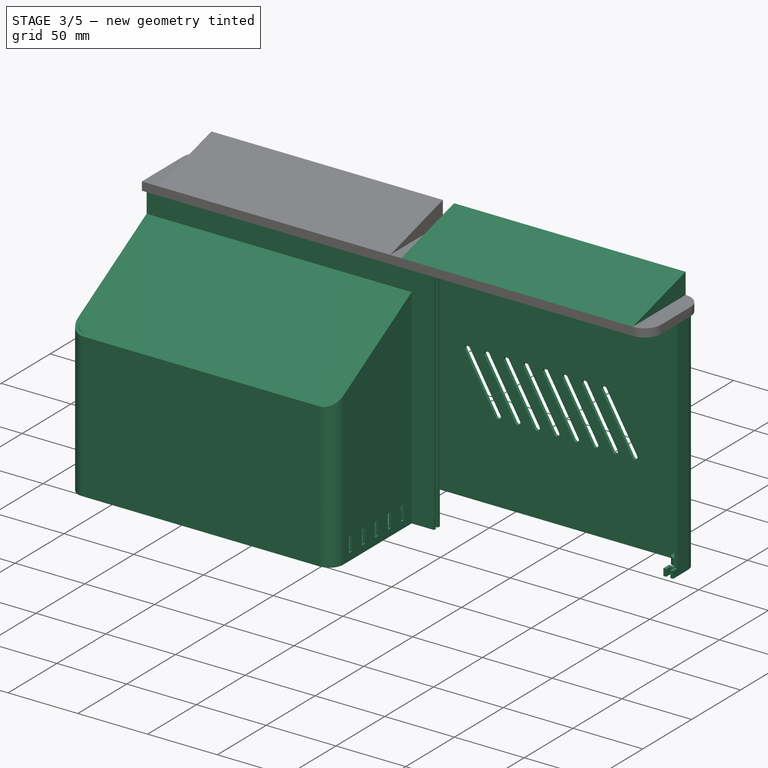
[diagram: stage 3 of 5 — iso view after this stage's code; geometry added in this stage tinted green]
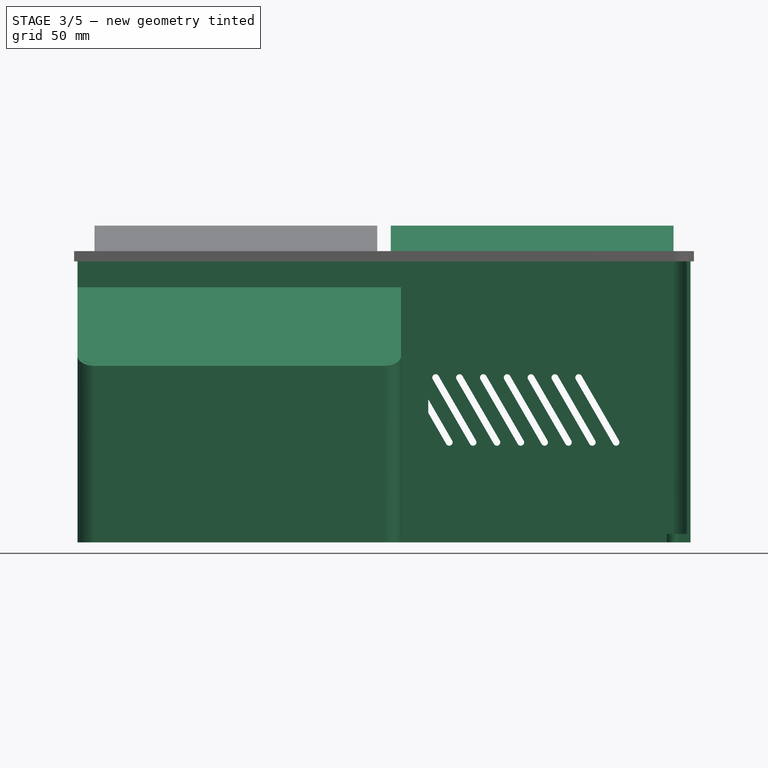
[diagram: stage 3 of 5 — front view after this stage's code; geometry added in this stage tinted green]
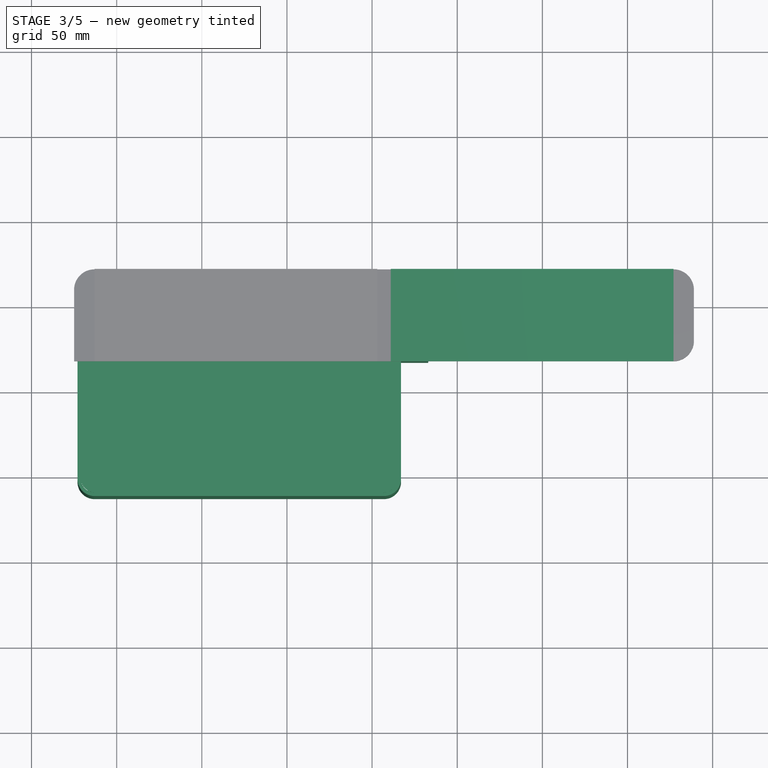
[diagram: stage 3 of 5 — top view after this stage's code; geometry added in this stage tinted green]
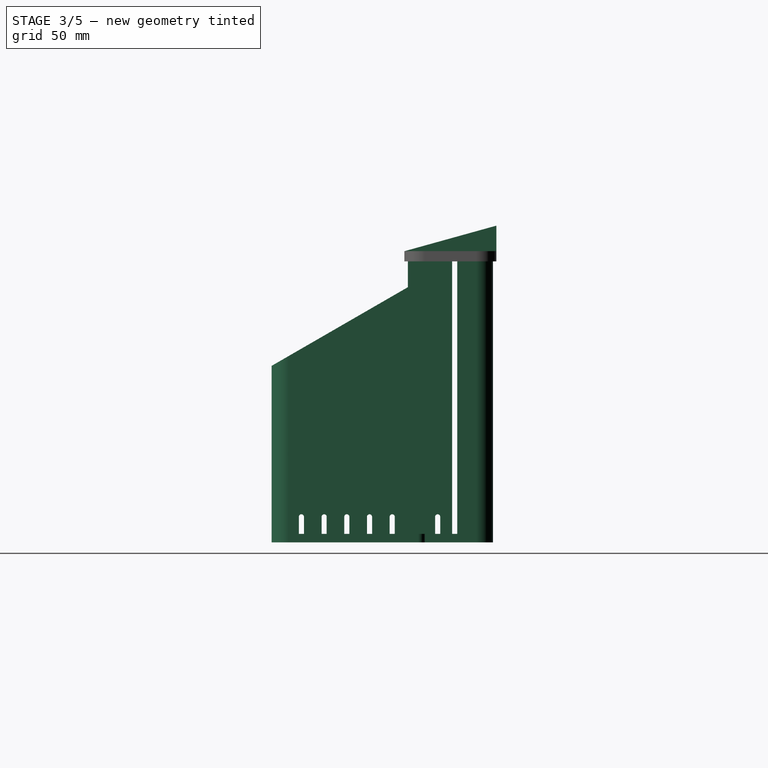
[diagram: stage 3 of 5 — right view after this stage's code; geometry added in this stage tinted green]
FEATURE [PartDesign::Body] Body010  label="Top Sata Bracket"
  Group = -> [ShapeBinder012,Sketch043,Pad030,Chamfer004,Fillet006]
  Origin = -> Origin015
  Placement = pos=(0,0,70) rot=(0,0,1;0rad)
  Tip = -> Fillet006
  expr: .Placement.Base.z = <<$params>>.drive_height
FEATURE [App::Part] Part004  label="Sata Brackets"
  Group = -> [Body008,Body009,Body010]
  Origin = -> Origin012
FEATURE [PartDesign::ShapeBinder] ShapeBinder013
  Placement = pos=(0,9.48,2e-15) rot=(0,0.707107,0.707107;3.14159rad)
  Support = -> [Pocket001]
  TraceSupport = false
FEATURE [Sketcher::SketchObject] Sketch044  label="Drive Wall Base Sketch"
  ExternalGeometry = -> [ShapeBinder013]
  FullyConstrained = true
  MapMode = 5
  Placement = pos=(-1.42e-14,9.48,-88.7526) rot=(0,0,1;0rad)
  Support = -> [ShapeBinder013]
  expr: Constraints[103] = <<$params>>.io_mount_thickness
  expr: Constraints[127] = <<$params>>.wall_thread_diam
  expr: Constraints[31] = <<$params>>.wall_thread_wrap_diam
  sketch-geometry (57):
    g0: ArcOfCircle CenterX=-163 CenterY=-112 CenterZ=0 NormalX=0 NormalY=0 NormalZ=1 AngleXU=0 Radius=10 StartAngle=3.14159 EndAngle=4.71239
    g1: ArcOfCircle CenterX=7 CenterY=-112 CenterZ=0 NormalX=0 NormalY=0 NormalZ=1 AngleXU=0 Radius=10 StartAngle=4.71239 EndAngle=6.28319
    g2: ArcOfCircle CenterX=-163 CenterY=-116 CenterZ=0 NormalX=0 NormalY=0 NormalZ=1 AngleXU=0 Radius=4 StartAngle=0 EndAngle=3.14159
    g3: ArcOfCircle CenterX=7 CenterY=-116 CenterZ=0 NormalX=0 NormalY=0 NormalZ=1 AngleXU=0 Radius=4 StartAngle=0 EndAngle=3.14159
    g4: ArcOfCircle CenterX=11 CenterY=-42 CenterZ=0 NormalX=0 NormalY=0 NormalZ=1 AngleXU=0 Radius=4 StartAngle=1.5708 EndAngle=4.71239
    g5: ArcOfCircle CenterX=23 CenterY=-36 CenterZ=0 NormalX=0 NormalY=0 NormalZ=1 AngleXU=0 Radius=4 StartAngle=0.0250026 EndAngle=3.14159
    g6: LineSegment StartX=-173 StartY=-112 StartZ=0 EndX=-173 EndY=-18 EndZ=0
    g7: LineSegment StartX=-163 StartY=-122 StartZ=0 EndX=7 EndY=-122 EndZ=0
    g8: LineSegment StartX=17 StartY=-112 StartZ=0 EndX=17 EndY=-42 EndZ=0
    g9: LineSegment StartX=17 StartY=-42 StartZ=0 EndX=33 EndY=-42 EndZ=0
    g10: LineSegment StartX=-171 StartY=-18 StartZ=0 EndX=-171 EndY=-112 EndZ=0
    g11: LineSegment StartX=-159 StartY=-120 StartZ=0 EndX=3 EndY=-120 EndZ=0
    g12: LineSegment StartX=15 StartY=-112 StartZ=0 EndX=15 EndY=-46 EndZ=0
    g13: LineSegment StartX=-173 StartY=-112 StartZ=0 EndX=-171 EndY=-112 EndZ=0
    g14: ArcOfCircle CenterX=-163.076 CenterY=-111.856 CenterZ=0 NormalX=0 NormalY=0 NormalZ=1 AngleXU=0 Radius=7.92515 StartAngle=3.15981 EndAngle=4.19443
    g15: ArcOfCircle CenterX=6.34168 CenterY=-111.342 CenterZ=0 NormalX=0 NormalY=0 NormalZ=1 AngleXU=0 Radius=8.68328 StartAngle=5.27864 EndAngle=6.20734
    g16: LineSegment StartX=15 StartY=-112 StartZ=0 EndX=17 EndY=-112 EndZ=0
    g17: LineSegment StartX=33 StartY=-42 StartZ=0 EndX=33 EndY=-40 EndZ=0
    g18: LineSegment StartX=26.9987 StartY=-40 StartZ=0 EndX=33 EndY=-40 EndZ=0
    g19: LineSegment StartX=11 StartY=-38 StartZ=0 EndX=19 EndY=-36 EndZ=0
    g20: LineSegment StartX=11 StartY=-46 StartZ=0 EndX=15 EndY=-46 EndZ=0
    g21: LineSegment StartX=3 StartY=-116 StartZ=0 EndX=7 EndY=-116 EndZ=0
    g22: LineSegment StartX=7 StartY=-116 StartZ=0 EndX=11 EndY=-116 EndZ=0
    g23: LineSegment StartX=3 StartY=-116 StartZ=0 EndX=3 EndY=-120 EndZ=0
    g24: LineSegment StartX=11 StartY=-116 StartZ=0 EndX=11 EndY=-118.67 EndZ=0
    g25: LineSegment StartX=-167 StartY=-116 StartZ=0 EndX=-163 EndY=-116 EndZ=0
    g26: LineSegment StartX=-163 StartY=-116 StartZ=0 EndX=-159 EndY=-116 EndZ=0
    g27: LineSegment StartX=-167 StartY=-116 StartZ=0 EndX=-167 EndY=-118.741 EndZ=0
    g28: LineSegment StartX=-159 StartY=-116 StartZ=0 EndX=-159 EndY=-120 EndZ=0
    g29: LineSegment StartX=-159 StartY=-120 StartZ=0 EndX=-159 EndY=-122 EndZ=0
    g30: LineSegment StartX=3 StartY=-120 StartZ=0 EndX=3 EndY=-122 EndZ=0
    g31: LineSegment StartX=11 StartY=-42 StartZ=0 EndX=11 EndY=-38 EndZ=0
    g32: LineSegment StartX=23 StartY=-36 StartZ=0 EndX=19 EndY=-36 EndZ=0
    g33: LineSegment StartX=11 StartY=-46 StartZ=0 EndX=11 EndY=-42 EndZ=0
    g34: LineSegment StartX=23 StartY=-36 StartZ=0 EndX=26.9987 EndY=-36 EndZ=0
    g35: LineSegment StartX=-173 StartY=-18 StartZ=0 EndX=-171 EndY=-18 EndZ=0
    g36: LineSegment StartX=-171 StartY=-18 StartZ=0 EndX=-166 EndY=-18 EndZ=0
    g37: LineSegment StartX=-166 StartY=-18 StartZ=0 EndX=-166 EndY=-11 EndZ=0
    g38: LineSegment StartX=-168 StartY=-11 StartZ=0 EndX=-168 EndY=-16 EndZ=0
    g39: LineSegment StartX=-168 StartY=-16 StartZ=0 EndX=-171 EndY=-16 EndZ=0
    g40: LineSegment StartX=-171 StartY=-16 StartZ=0 EndX=-171 EndY=-11 EndZ=0
    g41: LineSegment StartX=-171 StartY=-11 StartZ=0 EndX=-173 EndY=-11 EndZ=0
    g42: LineSegment StartX=-173 StartY=-11 StartZ=0 EndX=-173 EndY=-18 EndZ=0
    g43: LineSegment StartX=-168 StartY=-11 StartZ=0 EndX=-166 EndY=-11 EndZ=0
    g44: LineSegment StartX=-168 StartY=-11 StartZ=0 EndX=-171 EndY=-11 EndZ=0
    g45: LineSegment StartX=-171 StartY=-18 StartZ=0 EndX=-171 EndY=-16 EndZ=0
    g46: LineSegment StartX=26.9987 StartY=-37.9 StartZ=0 EndX=33 EndY=-37.9 EndZ=0
    g47: LineSegment StartX=33 StartY=-35.9 StartZ=0 EndX=26.9987 EndY=-35.9 EndZ=0
    g48: LineSegment StartX=26.9987 StartY=-37.9 StartZ=0 EndX=26.9987 EndY=-36 EndZ=0
    g49: Circle CenterX=-163 CenterY=-116 CenterZ=0 NormalX=0 NormalY=0 NormalZ=1 AngleXU=0 Radius=1.9
    g50: Circle CenterX=7 CenterY=-116 CenterZ=0 NormalX=0 NormalY=0 NormalZ=1 AngleXU=0 Radius=1.9
    g51: Circle CenterX=11 CenterY=-42 CenterZ=0 NormalX=0 NormalY=0 NormalZ=1 AngleXU=0 Radius=1.9
    g52: Circle CenterX=23 CenterY=-36 CenterZ=0 NormalX=0 NormalY=0 NormalZ=1 AngleXU=0 Radius=1.9
    g53: LineSegment StartX=33 StartY=-37.9 StartZ=0 EndX=33 EndY=-35.9 EndZ=0
    g54: LineSegment StartX=26.9987 StartY=-37.9 StartZ=0 EndX=26.9987 EndY=-40 EndZ=0
    g55: LineSegment StartX=33 StartY=-40 StartZ=0 EndX=33 EndY=-37.9 EndZ=0
    g56: LineSegment StartX=26.9987 StartY=-36 StartZ=0 EndX=26.9987 EndY=-35.9 EndZ=0
  constraints (148):
    c: Coincident(g0,g-7)
    c: Coincident(g0,g-7)
    c: Coincident(g0,g-7)
    c: Coincident(g1,g-8)
    c: Coincident(g1,g-8)
    c: Coincident(g1,g-8)
    c: Coincident(g2,g-3)
    c: Coincident(g3,g-4)
    c: Coincident(g4,g-5)
    c: Coincident(g5,g-6)
    c: Coincident(g6,g0)
    c: Vertical(g6)
    c: DistanceY(g6,g6) = 94
    c: Coincident(g7,g0)
    c: Coincident(g7,g1)
    c: Coincident(g8,g1)
    c: Coincident(g8,g-9)
    c: Coincident(g9,g8)
    c: Horizontal(g9)
    c: DistanceX(g9,g9) = 16
    c: Vertical(g10)
    c: Horizontal(g11)
    c: Vertical(g12)
    c: Coincident(g13,g0)
    c: Coincident(g13,g10)
    c: Horizontal(g13)
    c: Coincident(g14,g10)
    c: Coincident(g15,g12)
    c: Coincident(g16,g12)
    c: Coincident(g16,g1)
    c: Horizontal(g16)
    c: Diameter(g2) = 8
    c: Equal(g2,g3)
    c: Equal(g3,g4)
    c: Equal(g4,g5)
    c: Coincident(g17,g9)
    c: Vertical(g17)
    c: Horizontal(g18)
    c: Coincident(g17,g18)
    c: Horizontal(g20)
    c: Coincident(g12,g20)
    c: Coincident(g21,g3)
    c: Horizontal(g21)
    c: Coincident(g22,g3)
    c: Horizontal(g22)
    c: Coincident(g23,g21)
    c: Vertical(g23)
    c: Coincident(g24,g22)
    c: Vertical(g24)
    c: Coincident(g25,g2)
    c: Horizontal(g25)
    c: Coincident(g26,g2)
    c: Horizontal(g26)
    c: Coincident(g27,g25)
    c: Vertical(g27)
    c: Coincident(g28,g26)
    c: Vertical(g28)
    c: Coincident(g2,g26)
    c: Coincident(g2,g25)
    c: Coincident(g14,g27)
    c: Coincident(g11,g28)
    c: Coincident(g29,g11)
    c: PointOnObject(g29,g7)
    c: Vertical(g29)
    c: Equal(g29,g13)
    c: Coincident(g11,g23)
    c: Coincident(g15,g24)
    c: Coincident(g3,g22)
    c: Coincident(g3,g21)
    c: Coincident(g30,g11)
    c: PointOnObject(g30,g7)
    c: Vertical(g30)
    c: Coincident(g4,g19)
    c: Coincident(g4,g20)
    c: Coincident(g5,g19)
    c: Coincident(g31,g4)
    c: Coincident(g31,g4)
    c: Vertical(g31)
    c: Coincident(g32,g5)
    c: Coincident(g32,g5)
    c: Horizontal(g32)
    c: Coincident(g33,g4)
    c: Coincident(g33,g4)
    c: Vertical(g33)
    c: Coincident(g34,g5)
    c: Horizontal(g34)
    c: Coincident(g35,g6)
    c: Coincident(g35,g10)
    c: Horizontal(g35)
    c: Coincident(g36,g10)
    c: Horizontal(g36)
    c: Coincident(g37,g36)
    c: Vertical(g37)
    c: Vertical(g38)
    c: Coincident(g39,g38)
    c: Coincident(g40,g39)
    c: Coincident(g41,g40)
    c: Horizontal(g41)
    c: Coincident(g42,g41)
    c: Coincident(g42,g6)
    c: Vertical(g42)
    c: Vertical(g40)
    c: Horizontal(g39)
    c: DistanceX(g39,g39) = 3
    c: Coincident(g43,g38)
    c: Coincident(g43,g37)
    c: Horizontal(g43)
    c: Equal(g41,g43)
    c: Coincident(g44,g38)
    c: Coincident(g44,g40)
    c: Horizontal(g44)
    c: DistanceX(g35,g35) = 2
    c: Block(g15)
    c: Block(g14)
    c: Coincident(g45,g10)
    c: Coincident(g45,g39)
    c: Vertical(g45)
    c: Equal(g35,g45)
    c: DistanceY(g40,g40) = 5
    c: Horizontal(g46)
    c: Horizontal(g47)
    c: Equal(g17,g16)
    c: Vertical(g48)
    c: Coincident(g49,g2)
    c: Coincident(g50,g3)
    c: Coincident(g51,g4)
    c: Coincident(g52,g5)
    c: Diameter(g50) = 3.8
    c: Equal(g50,g49)
    c: Equal(g49,g51)
    c: Equal(g51,g52)
    c: Coincident(g53,g46)
    c: Coincident(g53,g47)
    c: Vertical(g53)
    c: Coincident(g46,g48)
    c: Coincident(g54,g46)
    c: Coincident(g54,g18)
    c: Vertical(g54)
    c: Coincident(g34,g48)
    c: DistanceY(g54,g54) = 2.1
    c: DistanceY(g53,g53) = 2
    c: Coincident(g55,g17)
    c: Coincident(g55,g46)
    c: Vertical(g55)
    c: Coincident(g5,g47)
    c: Coincident(g56,g34)
    c: Coincident(g56,g5)
    c: Vertical(g56)
FEATURE [PartDesign::Pad] Pad031  label="Drive Wall Base"
  Direction = (1,1,1)
  Length = 5
  Length2 = 100
  Placement = pos=(0,9.48,2e-15) rot=(0,0.707107,0.707107;3.14159rad)
  Profile = -> Sketch044
  Type = 0
  expr: Length = <<$params>>.wall_thread_height
FEATURE [Sketcher::SketchObject] Sketch045  label="Drive Wall Layer 1 Sketch"
  ExternalGeometry = -> [Pad031]
  FullyConstrained = false
  MapMode = 5
  Placement = pos=(-2.76e-14,9.48,-83.7526) rot=(0,0,1;0rad)
  Support = -> [Pad031]
  sketch-geometry (24):
    g0: LineSegment StartX=-173 StartY=-16 StartZ=0 EndX=-173 EndY=-112 EndZ=0
    g1: ArcOfCircle CenterX=-163 CenterY=-112 CenterZ=0 NormalX=0 NormalY=0 NormalZ=1 AngleXU=0 Radius=10 StartAngle=3.14159 EndAngle=4.71239
    g2: ArcOfCircle CenterX=7 CenterY=-112 CenterZ=0 NormalX=0 NormalY=0 NormalZ=1 AngleXU=0 Radius=10 StartAngle=4.71239 EndAngle=6.28319
    g3: ArcOfCircle CenterX=6.34168 CenterY=-111.342 CenterZ=0 NormalX=0 NormalY=0 NormalZ=1 AngleXU=0 Radius=8.68328 StartAngle=4.63598 EndAngle=6.20734
    g4: LineSegment StartX=17 StartY=-42 StartZ=0 EndX=17 EndY=-112 EndZ=0
    g5: LineSegment StartX=17 StartY=-42 StartZ=0 EndX=33 EndY=-42 EndZ=0
    g6: LineSegment StartX=33 StartY=-42 StartZ=0 EndX=33 EndY=-40 EndZ=0
    g7: LineSegment StartX=15 StartY=-40 StartZ=0 EndX=15 EndY=-112 EndZ=0
    g8: LineSegment StartX=5.67884 StartY=-120 StartZ=0 EndX=-159 EndY=-120 EndZ=0
    g9: LineSegment StartX=-163 StartY=-122 StartZ=0 EndX=7 EndY=-122 EndZ=0
    g10: ArcOfCircle CenterX=-162.845 CenterY=-111.845 CenterZ=0 NormalX=0 NormalY=0 NormalZ=1 AngleXU=0 Radius=8.15652 StartAngle=3.1606 EndAngle=4.69338
    g11: LineSegment StartX=-159 StartY=-120 StartZ=0 EndX=-163 EndY=-120 EndZ=0
    g12: LineSegment StartX=-163 StartY=-122 StartZ=0 EndX=-163 EndY=-120 EndZ=0
    g13: LineSegment StartX=-171 StartY=-112 StartZ=0 EndX=-171 EndY=-16 EndZ=0
    g14: LineSegment StartX=-171 StartY=-16 StartZ=0 EndX=-173 EndY=-16 EndZ=0
    g15: LineSegment StartX=33 StartY=-37.9 StartZ=0 EndX=33 EndY=-35.9 EndZ=0
    g16: LineSegment StartX=33 StartY=-35.9 StartZ=0 EndX=26.9987 EndY=-35.9 EndZ=0
    g17: LineSegment StartX=26.9987 StartY=-37.9 StartZ=0 EndX=33 EndY=-37.9 EndZ=0
    g18: LineSegment StartX=26.9987 StartY=-37.9 StartZ=0 EndX=26.9987 EndY=-40 EndZ=0
    g19: LineSegment StartX=26.9987 StartY=-40 StartZ=0 EndX=33 EndY=-40 EndZ=0
    g20: LineSegment StartX=15 StartY=-40 StartZ=0 EndX=24.9987 EndY=-40 EndZ=0
    g21: LineSegment StartX=24.9987 StartY=-40 StartZ=0 EndX=24.9987 EndY=-35.9 EndZ=0
    g22: LineSegment StartX=24.9987 StartY=-35.9 StartZ=0 EndX=26.9987 EndY=-35.9 EndZ=0
    g23: LineSegment StartX=26.9987 StartY=-40 StartZ=0 EndX=24.9987 EndY=-40 EndZ=0
  constraints (57):
    c: Coincident(g0,g-4)
    c: Coincident(g1,g-4)
    c: Coincident(g1,g0)
    c: Coincident(g1,g-5)
    c: Coincident(g2,g-6)
    c: Coincident(g2,g-6)
    c: Coincident(g2,g-7)
    c: Coincident(g3,g-11)
    c: Coincident(g3,g-11)
    c: Coincident(g4,g-8)
    c: Coincident(g4,g2)
    c: Coincident(g5,g4)
    c: Coincident(g5,g-9)
    c: Coincident(g6,g5)
    c: Coincident(g6,g-9)
    c: Coincident(g7,g3)
    c: Vertical(g7)
    c: Coincident(g8,g3)
    c: Coincident(g8,g-12)
    c: Horizontal(g8)
    c: Coincident(g9,g1)
    c: Coincident(g10,g-14)
    c: Coincident(g11,g8)
    c: Coincident(g11,g10)
    c: Horizontal(g11)
    c: Coincident(g12,g1)
    c: Coincident(g12,g10)
    c: Vertical(g12)
    c: Coincident(g13,g10)
    c: Coincident(g14,g-15)
    c: Coincident(g14,g0)
    c: Horizontal(g14)
    c: PointOnObject(g-3,g0)
    c: Coincident(g2,g9)
    c: Coincident(g2,g-5)
    c: Coincident(g15,g-17)
    c: Coincident(g15,g-16)
    c: Coincident(g16,g15)
    c: Coincident(g16,g-16)
    c: Coincident(g17,g-18)
    c: Coincident(g17,g15)
    c: Coincident(g18,g17)
    c: Coincident(g18,g-19)
    c: Coincident(g19,g18)
    c: Coincident(g19,g6)
    c: Coincident(g20,g7)
    c: Horizontal(g20)
    c: Coincident(g21,g20)
    c: Coincident(g22,g21)
    c: Coincident(g22,g16)
    c: Horizontal(g22)
    c: Vertical(g21)
    c: Coincident(g23,g18)
    c: Coincident(g23,g20)
    c: Horizontal(g23)
    c: Equal(g23,g6)
    c: Coincident(g13,g14)
FEATURE [PartDesign::Pad] Pad032  label="Drive Wall Layer 1"
  BaseFeature = -> Pad031
  Direction = (3e-16,-5e-16,1)
  Length = 164
  Length2 = 100
  Placement = pos=(0,9.48,2e-15) rot=(0,0.707107,0.707107;3.14159rad)
  Profile = -> Sketch045
  ReferenceAxis = -> Sketch045 [N_Axis]
  Type = 0
  expr: Length = 164mm
FEATURE [PartDesign::Body] Body012  label="Memory Wall"
  Group = -> [ShapeBinder014,Sketch046,Pad033,Sketch047,Pad034,Sketch048,Pocket005,LinearPattern002]
  Origin = -> Origin018
  Tip = -> LinearPattern002
FEATURE [PartDesign::ShapeBinder] ShapeBinder015
  Placement = pos=(0,9.48,2e-15) rot=(0,0.707107,0.707107;3.14159rad)
  Support = -> [Pocket003]
  TraceSupport = false
FEATURE [Sketcher::SketchObject] Sketch051  label="Back Wall R Base Layer Sketch"
  ExternalGeometry = -> [ShapeBinder015]
  FullyConstrained = false
  MapMode = 5
  Placement = pos=(-1.42e-14,9.48,-88.7526) rot=(0,0,1;0rad)
  Support = -> [ShapeBinder015]
  expr: Constraints[21] = <<$params>>.wall_thickness
  expr: Constraints[22] = <<$params>>.io_mount_thickness
  expr: Constraints[57] = <<$params>>.wall_thread_wrap_diam
  expr: Constraints[58] = <<$params>>.wall_thread_wrap_diam
  expr: Constraints[98] = <<$params>>.wall_thread_diam
  sketch-geometry (38):
    g0: LineSegment StartX=187 StartY=-2 StartZ=0 EndX=187 EndY=-17 EndZ=0
    g1: ArcOfCircle CenterX=177 CenterY=-2 CenterZ=0 NormalX=0 NormalY=0 NormalZ=1 AngleXU=0 Radius=10 StartAngle=0 EndAngle=1.5708
    g2: LineSegment StartX=177 StartY=8 StartZ=0 EndX=-17 EndY=8 EndZ=0
    g3: LineSegment StartX=187 StartY=-17 StartZ=0 EndX=185 EndY=-17 EndZ=0
    g4: LineSegment StartX=185 StartY=-17 StartZ=0 EndX=185 EndY=-13 EndZ=0
    g5: LineSegment StartX=185 StartY=-13 StartZ=0 EndX=182 EndY=-13 EndZ=0
    g6: LineSegment StartX=182 StartY=-13 StartZ=0 EndX=182 EndY=-17 EndZ=0
    g7: LineSegment StartX=182 StartY=-17 StartZ=0 EndX=180 EndY=-17 EndZ=0
    g8: LineSegment StartX=180 StartY=-17 StartZ=0 EndX=180 EndY=-11 EndZ=0
    g9: LineSegment StartX=182 StartY=-17 StartZ=0 EndX=185 EndY=-17 EndZ=0
    g10: LineSegment StartX=180 StartY=-11 StartZ=0 EndX=185 EndY=-11 EndZ=0
    g11: LineSegment StartX=187 StartY=-2 StartZ=0 EndX=185 EndY=-2 EndZ=0
    g12: LineSegment StartX=182 StartY=-13 StartZ=0 EndX=182 EndY=-11 EndZ=0
    g13: LineSegment StartX=185 StartY=-11 StartZ=0 EndX=185 EndY=-2 EndZ=0
    g14: LineSegment StartX=185 StartY=-13 StartZ=0 EndX=185 EndY=-11 EndZ=0
    g15: LineSegment StartX=177 StartY=8 StartZ=0 EndX=177 EndY=6 EndZ=0
    g16: ArcOfCircle CenterX=176.973 CenterY=-2.44851 CenterZ=0 NormalX=0 NormalY=0 NormalZ=1 AngleXU=0 Radius=8.03937 StartAngle=0.0558188 EndAngle=0.58637
    g17: LineSegment StartX=173 StartY=6 StartZ=0 EndX=-2 EndY=6 EndZ=0
    g18: LineSegment StartX=-17 StartY=8 StartZ=0 EndX=-17 EndY=6 EndZ=0
    g19: LineSegment StartX=-11 StartY=3.9 StartZ=0 EndX=-17 EndY=3.9 EndZ=0
    g20: LineSegment StartX=-17 StartY=3.9 StartZ=0 EndX=-17 EndY=1.9 EndZ=0
    g21: LineSegment StartX=-17 StartY=1.9 StartZ=0 EndX=-9.99875 EndY=1.9 EndZ=0
    g22: ArcOfCircle CenterX=-6 CenterY=2 CenterZ=0 NormalX=0 NormalY=0 NormalZ=1 AngleXU=0 Radius=4 StartAngle=3.1666 EndAngle=6.28319
    g23: ArcOfCircle CenterX=177 CenterY=2 CenterZ=0 NormalX=0 NormalY=0 NormalZ=1 AngleXU=0 Radius=4 StartAngle=3.14159 EndAngle=6.28319
    g24: LineSegment StartX=-17 StartY=3.9 StartZ=0 EndX=-17 EndY=6 EndZ=0
    g25: LineSegment StartX=-11 StartY=3.9 StartZ=0 EndX=-11 EndY=6 EndZ=0
    g26: LineSegment StartX=-6 StartY=2 StartZ=0 EndX=-9.99875 EndY=2 EndZ=0
    g27: LineSegment StartX=-6 StartY=2 StartZ=0 EndX=-2 EndY=2 EndZ=0
    g28: LineSegment StartX=-2 StartY=2 StartZ=0 EndX=-2 EndY=6 EndZ=0
    g29: LineSegment StartX=-11 StartY=6 StartZ=0 EndX=-17 EndY=6 EndZ=0
    g30: LineSegment StartX=173 StartY=2 StartZ=0 EndX=177 EndY=2 EndZ=0
    g31: LineSegment StartX=177 StartY=2 StartZ=0 EndX=181 EndY=2 EndZ=0
    g32: LineSegment StartX=173 StartY=2 StartZ=0 EndX=173 EndY=6 EndZ=0
    g33: LineSegment StartX=181 StartY=2 StartZ=0 EndX=183.67 EndY=2 EndZ=0
    g34: LineSegment StartX=173 StartY=6 StartZ=0 EndX=177 EndY=6 EndZ=0
    g35: LineSegment StartX=-9.99875 StartY=1.9 StartZ=0 EndX=-9.99875 EndY=2 EndZ=0
    g36: Circle CenterX=177 CenterY=2 CenterZ=0 NormalX=0 NormalY=0 NormalZ=1 AngleXU=0 Radius=1.9
    g37: Circle CenterX=-6 CenterY=2 CenterZ=0 NormalX=0 NormalY=0 NormalZ=1 AngleXU=0 Radius=1.9
  constraints (100):
    c: Coincident(g0,g-4)
    c: Vertical(g0)
    c: Coincident(g1,g-4)
    c: Coincident(g1,g0)
    c: Coincident(g1,g-4)
    c: Coincident(g2,g1)
    c: PointOnObject(g2,g-3)
    c: DistanceX(g2,g2) = 194
    c: DistanceY(g0,g0) = 15
    c: Coincident(g3,g0)
    c: Horizontal(g3)
    c: Coincident(g4,g3)
    c: Vertical(g4)
    c: Coincident(g5,g4)
    c: Horizontal(g5)
    c: Coincident(g6,g5)
    c: Vertical(g6)
    c: Coincident(g7,g6)
    c: Horizontal(g7)
    c: Coincident(g8,g7)
    c: Vertical(g8)
    c: DistanceX(g3,g3) = 2
    c: DistanceX(g5,g5) = 3
    c: Equal(g3,g7)
    c: DistanceY(g6,g6) = 4
    c: Coincident(g9,g6)
    c: Coincident(g9,g3)
    c: Horizontal(g9)
    c: Coincident(g10,g8)
    c: Horizontal(g10)
    c: Coincident(g11,g0)
    c: Horizontal(g11)
    c: Coincident(g12,g5)
    c: PointOnObject(g12,g10)
    c: Vertical(g12)
    c: Equal(g12,g3)
    c: Coincident(g13,g10)
    c: Coincident(g13,g11)
    c: Vertical(g13)
    c: Coincident(g14,g4)
    c: Coincident(g14,g10)
    c: Vertical(g14)
    c: Coincident(g15,g1)
    c: Vertical(g15)
    c: Equal(g15,g11)
    c: Coincident(g16,g13)
    c: Horizontal(g17)
    c: Coincident(g18,g2)
    c: Coincident(g18,g29)
    c: Vertical(g18)
    c: Horizontal(g19)
    c: Coincident(g20,g19)
    c: Vertical(g20)
    c: Coincident(g21,g20)
    c: Horizontal(g21)
    c: Coincident(g22,g-5)
    c: Coincident(g23,g-6)
    c: Diameter(g23) = 8
    c: Diameter(g22) = 8
    c: Coincident(g24,g19)
    c: Coincident(g24,g29)
    c: Vertical(g24)
    c: Coincident(g25,g19)
    c: Vertical(g25)
    c: DistanceY(g25,g25) = 2.1
    c: Equal(g20,g18)
    c: Coincident(g26,g22)
    c: Horizontal(g26)
    c: Coincident(g27,g22)
    c: Horizontal(g27)
    c: Coincident(g28,g27)
    c: Vertical(g28)
    c: Coincident(g22,g27)
    c: DistanceX(g19,g19) = 6
    c: Coincident(g17,g28)
    c: Coincident(g29,g25)
    c: Tangent(g17,g29)
    c: Coincident(g30,g23)
    c: Horizontal(g30)
    c: Coincident(g31,g23)
    c: Horizontal(g31)
    c: Coincident(g32,g30)
    c: Vertical(g32)
    c: Coincident(g33,g31)
    c: Horizontal(g33)
    c: Coincident(g17,g32)
    c: Coincident(g23,g30)
    c: Coincident(g23,g31)
    c: Coincident(g16,g33)
    c: Coincident(g34,g17)
    c: Coincident(g34,g15)
    c: Horizontal(g34)
    c: Coincident(g22,g21)
    c: Coincident(g35,g21)
    c: Coincident(g35,g26)
    c: Vertical(g35)
    c: Coincident(g36,g23)
    c: Coincident(g37,g22)
    c: Diameter(g37) = 3.8
    c: Equal(g37,g36)
FEATURE [PartDesign::Pad] Pad035  label="Back Wall R Base Layer"
  Direction = (1,1,1)
  Length = 5
  Length2 = 100
  Placement = pos=(0,9.48,2e-15) rot=(0,0.707107,0.707107;3.14159rad)
  Profile = -> Sketch051
  Type = 0
  expr: Length = <<$params>>.wall_thread_height
FEATURE [Sketcher::SketchObject] Sketch052  label="Back Wall R Layer 002"
  ExternalGeometry = -> [Pad035]
  FullyConstrained = false
  MapMode = 5
  Placement = pos=(-7.45e-14,9.48,-83.7526) rot=(0,0,1;0rad)
  Support = -> [Pad035]
  sketch-geometry (17):
    g0: ArcOfCircle CenterX=176.224 CenterY=-2.77575 CenterZ=0 NormalX=0 NormalY=0 NormalZ=1 AngleXU=0 Radius=8.80997 StartAngle=0.0881683 EndAngle=1.48263
    g1: LineSegment StartX=187 StartY=-13 StartZ=0 EndX=187 EndY=-2 EndZ=0
    g2: LineSegment StartX=185 StartY=-2 StartZ=0 EndX=187 EndY=-2 EndZ=0
    g3: LineSegment StartX=185 StartY=-2 StartZ=0 EndX=185 EndY=-13 EndZ=0
    g4: LineSegment StartX=177 StartY=6 StartZ=0 EndX=177 EndY=8 EndZ=0
    g5: ArcOfCircle CenterX=177 CenterY=-2 CenterZ=0 NormalX=0 NormalY=0 NormalZ=1 AngleXU=0 Radius=10 StartAngle=1e-16 EndAngle=1.5708
    g6: LineSegment StartX=177 StartY=8 StartZ=0 EndX=-17 EndY=8 EndZ=0
    g7: LineSegment StartX=-17 StartY=8 StartZ=0 EndX=-17 EndY=6 EndZ=0
    g8: LineSegment StartX=-17 StartY=6 StartZ=0 EndX=-11 EndY=6 EndZ=0
    g9: LineSegment StartX=-11 StartY=3.9 StartZ=0 EndX=-11 EndY=6 EndZ=0
    g10: LineSegment StartX=-11 StartY=3.9 StartZ=0 EndX=-17 EndY=3.9 EndZ=0
    g11: LineSegment StartX=-17 StartY=3.9 StartZ=0 EndX=-17 EndY=1.9 EndZ=0
    g12: LineSegment StartX=-17 StartY=1.9 StartZ=0 EndX=-9 EndY=1.9 EndZ=0
    g13: LineSegment StartX=-9 StartY=1.9 StartZ=0 EndX=-9 EndY=6 EndZ=0
    g14: LineSegment StartX=-11 StartY=6 StartZ=0 EndX=-9 EndY=6 EndZ=0
    g15: LineSegment StartX=-9 StartY=6 StartZ=0 EndX=177 EndY=6 EndZ=0
    g16: LineSegment StartX=185 StartY=-13 StartZ=0 EndX=187 EndY=-13 EndZ=0
  constraints (41):
    c: Coincident(g1,g-3)
    c: Coincident(g2,g0)
    c: Coincident(g2,g1)
    c: Horizontal(g2)
    c: Coincident(g3,g0)
    c: Vertical(g3)
    c: Coincident(g4,g0)
    c: Coincident(g4,g-3)
    c: Vertical(g4)
    c: Coincident(g5,g-3)
    c: Coincident(g5,g1)
    c: Coincident(g5,g4)
    c: Coincident(g6,g5)
    c: Coincident(g6,g-4)
    c: Coincident(g7,g6)
    c: Coincident(g7,g-4)
    c: Coincident(g8,g7)
    c: Horizontal(g8)
    c: Coincident(g9,g-5)
    c: Coincident(g9,g8)
    c: Vertical(g9)
    c: Coincident(g10,g9)
    c: Coincident(g10,g-6)
    c: Coincident(g11,g10)
    c: Coincident(g11,g-6)
    c: Coincident(g12,g11)
    c: Horizontal(g12)
    c: Coincident(g13,g12)
    c: Vertical(g13)
    c: Coincident(g14,g8)
    c: Coincident(g14,g13)
    c: Horizontal(g14)
    c: Equal(g7,g14)
    c: Coincident(g15,g13)
    c: Coincident(g15,g0)
    c: Horizontal(g15)
    c: Coincident(g3,g-7)
    c: Vertical(g1)
    c: Coincident(g16,g3)
    c: Coincident(g16,g1)
    c: Horizontal(g16)
FEATURE [PartDesign::Pad] Pad036  label="Back Wall R Layer 1"
  BaseFeature = -> Pad035
  Direction = (1,1,1)
  Length = 164
  Length2 = 100
  Placement = pos=(0,9.48,2e-15) rot=(0,0.707107,0.707107;3.14159rad)
  Profile = -> Sketch052
  Type = 0
  expr: Length = 164
FEATURE [PartDesign::Body] Body014  label="Back Wall L"
  Group = -> [ShapeBinder016,Sketch053,Pad037,Sketch054,Pad038,Sketch055,Pocket008]
  Origin = -> Origin020
  Tip = -> Pocket008
FEATURE [Sketcher::SketchObject] Sketch056
  FullyConstrained = false
  MapMode = 5
  Placement = pos=(-2.3e-15,17.48,5e-15) rot=(0,0.707107,0.707107;3.14159rad)
  Support = -> [Pad036]
  sketch-geometry (50):
    g0: ArcOfCircle CenterX=-121.35 CenterY=8 CenterZ=0 NormalX=0 NormalY=0 NormalZ=1 AngleXU=0 Radius=2 StartAngle=5.75959 EndAngle=8.90118
    g1: ArcOfCircle CenterX=-143.289 CenterY=-30 CenterZ=0 NormalX=0 NormalY=0 NormalZ=1 AngleXU=0 Radius=2 StartAngle=2.61799 EndAngle=5.75959
    g2: LineSegment StartX=-123.082 StartY=9 StartZ=0 EndX=-145.021 EndY=-29 EndZ=0
    g3: LineSegment StartX=-119.618 StartY=7 StartZ=0 EndX=-141.557 EndY=-31 EndZ=0
    g4: ArcOfCircle CenterX=-107.35 CenterY=8 CenterZ=0 NormalX=0 NormalY=0 NormalZ=1 AngleXU=0 Radius=2 StartAngle=5.75959 EndAngle=8.90118
    g5: ArcOfCircle CenterX=-129.289 CenterY=-30 CenterZ=0 NormalX=0 NormalY=0 NormalZ=1 AngleXU=0 Radius=2 StartAngle=2.61799 EndAngle=5.75959
    g6: LineSegment StartX=-109.082 StartY=9 StartZ=0 EndX=-131.021 EndY=-29 EndZ=0
    g7: LineSegment StartX=-105.618 StartY=7 StartZ=0 EndX=-127.557 EndY=-31 EndZ=0
    g8: ArcOfCircle CenterX=-93.3496 CenterY=8 CenterZ=0 NormalX=0 NormalY=0 NormalZ=1 AngleXU=0 Radius=2 StartAngle=5.75959 EndAngle=8.90118
    g9: ArcOfCircle CenterX=-115.289 CenterY=-30 CenterZ=0 NormalX=0 NormalY=0 NormalZ=1 AngleXU=0 Radius=2 StartAngle=2.61799 EndAngle=5.75959
    g10: LineSegment StartX=-95.0817 StartY=9 StartZ=0 EndX=-117.021 EndY=-29 EndZ=0
    g11: LineSegment StartX=-91.6176 StartY=7 StartZ=0 EndX=-113.557 EndY=-31 EndZ=0
    g12: ArcOfCircle CenterX=-79.3496 CenterY=8 CenterZ=0 NormalX=0 NormalY=0 NormalZ=1 AngleXU=0 Radius=2 StartAngle=5.75959 EndAngle=8.90118
    g13: ArcOfCircle CenterX=-101.289 CenterY=-30 CenterZ=0 NormalX=0 NormalY=0 NormalZ=1 AngleXU=0 Radius=2 StartAngle=2.61799 EndAngle=5.75959
    g14: LineSegment StartX=-81.0817 StartY=9 StartZ=0 EndX=-103.021 EndY=-29 EndZ=0
    g15: LineSegment StartX=-77.6176 StartY=7 StartZ=0 EndX=-99.5569 EndY=-31 EndZ=0
    g16: ArcOfCircle CenterX=-65.3496 CenterY=8 CenterZ=0 NormalX=0 NormalY=0 NormalZ=1 AngleXU=0 Radius=2 StartAngle=5.75959 EndAngle=8.90118
    g17: ArcOfCircle CenterX=-87.2889 CenterY=-30 CenterZ=0 NormalX=0 NormalY=0 NormalZ=1 AngleXU=0 Radius=2 StartAngle=2.61799 EndAngle=5.75959
    g18: LineSegment StartX=-67.0817 StartY=9 StartZ=0 EndX=-89.021 EndY=-29 EndZ=0
    g19: LineSegment StartX=-63.6176 StartY=7 StartZ=0 EndX=-85.5569 EndY=-31 EndZ=0
    g20: ArcOfCircle CenterX=-51.3496 CenterY=8 CenterZ=0 NormalX=0 NormalY=0 NormalZ=1 AngleXU=0 Radius=2 StartAngle=5.75959 EndAngle=8.90118
    g21: ArcOfCircle CenterX=-73.2889 CenterY=-30 CenterZ=0 NormalX=0 NormalY=0 NormalZ=1 AngleXU=0 Radius=2 StartAngle=2.61799 EndAngle=5.75959
    g22: LineSegment StartX=-53.0817 StartY=9 StartZ=0 EndX=-75.021 EndY=-29 EndZ=0
    g23: LineSegment StartX=-49.6176 StartY=7 StartZ=0 EndX=-71.5569 EndY=-31 EndZ=0
    g24: LineSegment StartX=-121.35 StartY=8 StartZ=0 EndX=-107.35 EndY=8 EndZ=0
    g25: LineSegment StartX=-107.35 StartY=8 StartZ=0 EndX=-93.3496 EndY=8 EndZ=0
    g26: LineSegment StartX=-93.3496 StartY=8 StartZ=0 EndX=-79.3496 EndY=8 EndZ=0
    g27: LineSegment StartX=-79.3496 StartY=8 StartZ=0 EndX=-65.3496 EndY=8 EndZ=0
    g28: LineSegment StartX=-65.3496 StartY=8 StartZ=0 EndX=-51.3496 EndY=8 EndZ=0
    g29: ArcOfCircle CenterX=-37.3496 CenterY=8 CenterZ=0 NormalX=0 NormalY=0 NormalZ=1 AngleXU=0 Radius=2 StartAngle=5.75959 EndAngle=8.90118
    g30: ArcOfCircle CenterX=-59.2889 CenterY=-30 CenterZ=0 NormalX=0 NormalY=0 NormalZ=1 AngleXU=0 Radius=2 StartAngle=2.61799 EndAngle=5.75959
    g31: LineSegment StartX=-39.0817 StartY=9 StartZ=0 EndX=-61.021 EndY=-29 EndZ=0
    g32: LineSegment StartX=-35.6176 StartY=7 StartZ=0 EndX=-57.5569 EndY=-31 EndZ=0
    g33: ArcOfCircle CenterX=-23.3496 CenterY=8 CenterZ=0 NormalX=0 NormalY=0 NormalZ=1 AngleXU=0 Radius=2 StartAngle=5.75959 EndAngle=8.90118
    g34: ArcOfCircle CenterX=-45.2889 CenterY=-30 CenterZ=0 NormalX=0 NormalY=0 NormalZ=1 AngleXU=0 Radius=2 StartAngle=2.61799 EndAngle=5.75959
    g35: LineSegment StartX=-25.0817 StartY=9 StartZ=0 EndX=-47.021 EndY=-29 EndZ=0
    g36: LineSegment StartX=-21.6176 StartY=7 StartZ=0 EndX=-43.5569 EndY=-31 EndZ=0
    g37: LineSegment StartX=-51.3496 StartY=8 StartZ=0 EndX=-37.3496 EndY=8 EndZ=0
    g38: LineSegment StartX=-37.3496 StartY=8 StartZ=0 EndX=-23.3496 EndY=8 EndZ=0
    g39: LineSegment StartX=-143.289 StartY=-30 StartZ=0 EndX=-129.289 EndY=-30 EndZ=0
    g40: LineSegment StartX=-129.289 StartY=-30 StartZ=0 EndX=-115.289 EndY=-30 EndZ=0
    g41: LineSegment StartX=-115.289 StartY=-30 StartZ=0 EndX=-101.289 EndY=-30 EndZ=0
    g42: LineSegment StartX=-101.289 StartY=-30 StartZ=0 EndX=-87.2889 EndY=-30 EndZ=0
    g43: LineSegment StartX=-87.2889 StartY=-30 StartZ=0 EndX=-73.2889 EndY=-30 EndZ=0
    g44: LineSegment StartX=-73.2889 StartY=-30 StartZ=0 EndX=-59.2889 EndY=-30 EndZ=0
    g45: LineSegment StartX=-59.2889 StartY=-30 StartZ=0 EndX=-45.2889 EndY=-30 EndZ=0
    g46: LineSegment StartX=-121.35 StartY=8 StartZ=0 EndX=-143.289 EndY=-30 EndZ=0
    g47: LineSegment StartX=-45.2889 StartY=-30 StartZ=0 EndX=-23.3496 EndY=8 EndZ=0
    g48: LineSegment StartX=-123.082 StartY=9 StartZ=0 EndX=-119.618 EndY=7 EndZ=0
    g49: LineSegment StartX=-121.35 StartY=8 StartZ=0 EndX=-121.35 EndY=-30 EndZ=0
  constraints (116):
    c: Tangent(g0,g3) = 1.5708
    c: Tangent(g0,g2) = -1.5708
    c: Tangent(g2,g1) = -1.5708
    c: Tangent(g3,g1) = 1.5708
    c: Equal(g0,g1)
    c: Tangent(g4,g7) = 1.5708
    c: Tangent(g4,g6) = -1.5708
    c: Tangent(g6,g5) = -1.5708
    c: Tangent(g7,g5) = 1.5708
    c: Equal(g4,g5)
    c: Tangent(g8,g11) = 1.5708
    c: Tangent(g8,g10) = -1.5708
    c: Tangent(g10,g9) = -1.5708
    c: Tangent(g11,g9) = 1.5708
    c: Equal(g8,g9)
    c: Tangent(g12,g15) = 1.5708
    c: Tangent(g12,g14) = -1.5708
    c: Tangent(g14,g13) = -1.5708
    c: Tangent(g15,g13) = 1.5708
    c: Equal(g12,g13)
    c: Tangent(g16,g19) = 1.5708
    c: Tangent(g16,g18) = -1.5708
    c: Tangent(g18,g17) = -1.5708
    c: Tangent(g19,g17) = 1.5708
    c: Equal(g16,g17)
    c: Tangent(g20,g23) = 1.5708
    c: Tangent(g20,g22) = -1.5708
    c: Tangent(g22,g21) = -1.5708
    c: Tangent(g23,g21) = 1.5708
    c: Equal(g20,g21)
    c: Coincident(g24,g0)
    c: Coincident(g24,g4)
    c: Coincident(g25,g4)
    c: Coincident(g25,g8)
    c: Coincident(g26,g8)
    c: Coincident(g26,g12)
    c: Horizontal(g26)
    c: Coincident(g27,g12)
    c: Coincident(g27,g16)
    c: Coincident(g28,g16)
    c: Coincident(g28,g20)
    c: Horizontal(g28)
    c: Equal(g28,g27)
    c: Equal(g27,g26)
    c: Equal(g26,g25)
    c: Equal(g25,g24)
    c: Horizontal(g24)
    c: Horizontal(g25)
    c: Horizontal(g27)
    c: Tangent(g29,g32) = 1.5708
    c: Tangent(g29,g31) = -1.5708
    c: Tangent(g31,g30) = -1.5708
    c: Tangent(g32,g30) = 1.5708
    c: Equal(g29,g30)
    c: Tangent(g33,g36) = 1.5708
    c: Tangent(g33,g35) = -1.5708
    c: Tangent(g35,g34) = -1.5708
    c: Tangent(g36,g34) = 1.5708
    c: Equal(g33,g34)
    c: Coincident(g37,g20)
    c: Coincident(g37,g29)
    c: Horizontal(g37)
    c: Coincident(g38,g29)
    c: Coincident(g38,g33)
    c: Horizontal(g38)
    c: Equal(g28,g37)
    c: Equal(g37,g38)
    c: Coincident(g39,g1)
    c: Coincident(g39,g5)
    c: Horizontal(g39)
    c: Coincident(g40,g5)
    c: Coincident(g40,g9)
    c: Horizontal(g40)
    c: Coincident(g41,g9)
    c: Coincident(g41,g13)
    c: Horizontal(g41)
    c: Coincident(g42,g13)
    c: Coincident(g42,g17)
    c: Horizontal(g42)
    c: Coincident(g43,g17)
    c: Coincident(g43,g21)
    c: Horizontal(g43)
    c: Coincident(g44,g21)
    c: Coincident(g44,g30)
    c: Horizontal(g44)
    c: Coincident(g45,g30)
    c: Coincident(g45,g34)
    c: Horizontal(g45)
    c: Equal(g39,g40)
    c: Equal(g40,g41)
    c: Equal(g41,g42)
    c: Equal(g42,g43)
    c: Equal(g43,g44)
    c: Equal(g44,g45)
    c: Coincident(g46,g0)
    c: Coincident(g46,g1)
    c: Coincident(g47,g34)
    c: Coincident(g47,g33)
    c: Coincident(g48,g0)
    c: Coincident(g48,g0)
    c: Distance(g48) = 4
    c: Equal(g0,g4)
    c: Equal(g4,g8)
    c: Equal(g8,g12)
    c: Equal(g12,g16)
    c: Equal(g16,g20)
    c: Equal(g20,g29)
    c: Equal(g29,g33)
    c: Parallel(g47,g46)
    c: Coincident(g49,g0)
    c: PointOnObject(g49,g40)
    c: Vertical(g49)
    c: Angle(g39,g46) = 1.0472
    c: DistanceY(g-1,g33) = 8
    c: DistanceY(g49,g49) = 38
    c: DistanceX(g24,g24) = 14
FEATURE [PartDesign::Pocket] Pocket009
  BaseFeature = -> Pad036
  Direction = (1,1,1)
  Length = 5
  Length2 = 100
  Placement = pos=(0,9.48,2e-15) rot=(0,0.707107,0.707107;3.14159rad)
  Profile = -> Sketch056
  Type = 0
FEATURE [Sketcher::SketchObject] Sketch066  label="Drive Wall Lid Main Cutout Sketch"
  ExternalGeometry = -> [Pad032]
  FullyConstrained = true
  MapMode = 5
  Placement = pos=(-173,9.48,7.47e-14) rot=(0,-1,0;1.5708rad)
  Support = -> [Pad032]
  sketch-geometry (4):
    g0: LineSegment StartX=80.2474 StartY=-122 StartZ=0 EndX=14.9047 EndY=-122 EndZ=0
    g1: LineSegment StartX=14.9047 StartY=-122 StartZ=0 EndX=62.2474 EndY=-40 EndZ=0
    g2: LineSegment StartX=80.2474 StartY=-40 StartZ=0 EndX=80.2474 EndY=-122 EndZ=0
    g3: LineSegment StartX=80.2474 StartY=-40 StartZ=0 EndX=62.2474 EndY=-40 EndZ=0
  constraints (10):
    c: Coincident(g0,g-3)
    c: PointOnObject(g0,g-3)
    c: Coincident(g1,g0)
    c: Coincident(g2,g0)
    c: Coincident(g3,g2)
    c: Coincident(g3,g1)
    c: Horizontal(g3)
    c: Angle(g1,g3) = 2.0944
    c: Coincident(g2,g-4)
    c: DistanceX(g3,g3) = 18
FEATURE [PartDesign::Pocket] Pocket010  label="Drive Wall Lid Main Cutout"
  BaseFeature = -> Pad032
  Direction = (1,4e-16,-4e-16)
  Length = 0
  Length2 = 5
  Offset = 2
  Placement = pos=(0,9.48,2e-15) rot=(0,0.707107,0.707107;3.14159rad)
  Profile = -> Sketch066
  ReferenceAxis = -> Sketch066 [N_Axis]
  Type = 3
  UpToFace = -> Pad032 [Face57]
  expr: Offset = <<$params>>.wall_thickness
FEATURE [Sketcher::SketchObject] Sketch067  label="Drive Wall Lid Slot Cutout Sketch"
  ExternalGeometry = -> [Pocket010]
  FullyConstrained = true
  MapMode = 5
  Placement = pos=(5.1e-14,-27.4739,64.0061) rot=(1,0,0;0.523599rad)
  Support = -> [Pocket010]
  expr: Constraints[36] = <<$params>>.wall_thickness
  sketch-geometry (20):
    g0: LineSegment StartX=-171 StartY=-23.5173 StartZ=0 EndX=-173 EndY=-23.5173 EndZ=0
    g1: LineSegment StartX=-173 StartY=-23.5173 StartZ=0 EndX=-173 EndY=-28.5173 EndZ=0
    g2: LineSegment StartX=-173 StartY=-28.5173 StartZ=0 EndX=-171 EndY=-28.5173 EndZ=0
    g3: LineSegment StartX=-171 StartY=-28.5173 StartZ=0 EndX=-171 EndY=-23.5173 EndZ=0
    g4: LineSegment StartX=15 StartY=-23.5173 StartZ=0 EndX=17 EndY=-23.5173 EndZ=0
    g5: LineSegment StartX=17 StartY=-23.5173 StartZ=0 EndX=17 EndY=-28.5173 EndZ=0
    g6: LineSegment StartX=17 StartY=-28.5173 StartZ=0 EndX=15 EndY=-28.5173 EndZ=0
    g7: LineSegment StartX=15 StartY=-28.5173 StartZ=0 EndX=15 EndY=-23.5173 EndZ=0
    g8: LineSegment StartX=-143 StartY=-95.8933 StartZ=0 EndX=-138 EndY=-95.8933 EndZ=0
    g9: LineSegment StartX=-138 StartY=-95.8933 StartZ=0 EndX=-138 EndY=-98.2027 EndZ=0
    g10: LineSegment StartX=-138 StartY=-98.2027 StartZ=0 EndX=-143 EndY=-98.2027 EndZ=0
    g11: LineSegment StartX=-143 StartY=-98.2027 StartZ=0 EndX=-143 EndY=-95.8933 EndZ=0
    g12: LineSegment StartX=-8 StartY=-95.8933 StartZ=0 EndX=-13 EndY=-95.8933 EndZ=0
    g13: LineSegment StartX=-13 StartY=-95.8933 StartZ=0 EndX=-13 EndY=-98.2027 EndZ=0
    g14: LineSegment StartX=-13 StartY=-98.2027 StartZ=0 EndX=-8 EndY=-98.2027 EndZ=0
    g15: LineSegment StartX=-8 StartY=-98.2027 StartZ=0 EndX=-8 EndY=-95.8933 EndZ=0
    g16: LineSegment StartX=-171 StartY=-3.51729 StartZ=0 EndX=-171 EndY=-23.5173 EndZ=0
    g17: LineSegment StartX=15 StartY=-3.51729 StartZ=0 EndX=15 EndY=-23.5173 EndZ=0
    g18: LineSegment StartX=-163 StartY=-98.2027 StartZ=0 EndX=-143 EndY=-98.2027 EndZ=0
    g19: LineSegment StartX=7 StartY=-98.2027 StartZ=0 EndX=-13 EndY=-98.2027 EndZ=0
  constraints (56):
    c: Coincident(g0,g1)
    c: Coincident(g1,g2)
    c: Coincident(g2,g3)
    c: Coincident(g3,g0)
    c: Horizontal(g0)
    c: Horizontal(g2)
    c: Vertical(g1)
    c: Vertical(g3)
    c: PointOnObject(g0,g-3)
    c: Coincident(g4,g5)
    c: Coincident(g5,g6)
    c: Coincident(g6,g7)
    c: Coincident(g7,g4)
    c: Horizontal(g4)
    c: Horizontal(g6)
    c: Vertical(g5)
    c: Vertical(g7)
    c: PointOnObject(g4,g-4)
    c: Coincident(g8,g9)
    c: Coincident(g9,g10)
    c: Coincident(g10,g11)
    c: Coincident(g11,g8)
    c: Horizontal(g8)
    c: Horizontal(g10)
    c: Vertical(g9)
    c: Vertical(g11)
    c: PointOnObject(g8,g-5)
    c: Coincident(g12,g13)
    c: Coincident(g13,g14)
    c: Coincident(g14,g15)
    c: Coincident(g15,g12)
    c: Horizontal(g12)
    c: Horizontal(g14)
    c: Vertical(g13)
    c: Vertical(g15)
    c: PointOnObject(g12,g-5)
    c: DistanceX(g0,g0) = 2
    c: PointOnObject(g10,g-6)
    c: PointOnObject(g14,g-6)
    c: Coincident(g16,g-3)
    c: Coincident(g16,g0)
    c: Coincident(g17,g-4)
    c: Coincident(g17,g4)
    c: Coincident(g18,g-6)
    c: Coincident(g18,g10)
    c: Coincident(g19,g-6)
    c: Coincident(g19,g13)
    c: DistanceY(g16,g16) = 20
    c: Equal(g16,g18)
    c: Equal(g18,g19)
    c: Equal(g19,g17)
    c: Equal(g4,g0)
    c: DistanceY(g3,g3) = 5
    c: Equal(g1,g10)
    c: Equal(g10,g14)
    c: Equal(g14,g5)
FEATURE [PartDesign::Pocket] Pocket011  label="Drive Wall Lid Slot Cutout"
  BaseFeature = -> Pocket010
  Direction = (-5e-16,5e-16,-1)
  Length = 2
  Length2 = 5
  Placement = pos=(0,9.48,2e-15) rot=(0,0.707107,0.707107;3.14159rad)
  Profile = -> Sketch067
  ReferenceAxis = -> Pocket010 [Edge136]
  Type = 0
  expr: Length = <<$params>>.wall_thickness
FEATURE [PartDesign::ShapeBinder] ShapeBinder021
  Placement = pos=(0,9.48,2e-15) rot=(0,0.707107,0.707107;3.14159rad)
  Support = -> [Pocket011]
  TraceSupport = false
FEATURE [Sketcher::SketchObject] Sketch068  label="Drive Wall Lid Body Sketch"
  ExternalGeometry = -> [ShapeBinder021]
  FullyConstrained = false
  MapMode = 5
  Placement = pos=(5.1e-14,-27.4739,64.0061) rot=(1,0,0;0.523599rad)
  Support = -> [ShapeBinder021]
  sketch-geometry (22):
    g0: ArcOfCircle CenterX=-161.629 CenterY=-86.6227 CenterZ=0 NormalX=0 NormalY=0 NormalZ=1 AngleXU=0 Radius=9.3715 StartAngle=3.14511 EndAngle=4.56552
    g1: LineSegment StartX=-143 StartY=-95.8933 StartZ=0 EndX=-163 EndY=-95.8933 EndZ=0
    g2: LineSegment StartX=-143 StartY=-95.8933 StartZ=0 EndX=-143 EndY=-98.2027 EndZ=0
    g3: LineSegment StartX=-143 StartY=-98.2027 StartZ=0 EndX=-138 EndY=-98.2027 EndZ=0
    g4: LineSegment StartX=-138 StartY=-98.2027 StartZ=0 EndX=-138 EndY=-95.8933 EndZ=0
    g5: LineSegment StartX=-138 StartY=-95.8933 StartZ=0 EndX=-13 EndY=-95.8933 EndZ=0
    g6: LineSegment StartX=-13 StartY=-95.8933 StartZ=0 EndX=-13 EndY=-98.2027 EndZ=0
    g7: LineSegment StartX=-13 StartY=-98.2027 StartZ=0 EndX=-8 EndY=-98.2027 EndZ=0
    g8: LineSegment StartX=-8 StartY=-98.2027 StartZ=0 EndX=-8 EndY=-95.8933 EndZ=0
    g9: LineSegment StartX=-8 StartY=-95.8933 StartZ=0 EndX=5.67884 EndY=-95.8933 EndZ=0
    g10: LineSegment StartX=15 StartY=-86.6557 StartZ=0 EndX=15 EndY=-28.5173 EndZ=0
    g11: LineSegment StartX=15 StartY=-28.5173 StartZ=0 EndX=17 EndY=-28.5173 EndZ=0
    g12: LineSegment StartX=17 StartY=-28.5173 StartZ=0 EndX=17 EndY=-23.5173 EndZ=0
    g13: LineSegment StartX=17 StartY=-23.5173 StartZ=0 EndX=15 EndY=-23.5173 EndZ=0
    g14: LineSegment StartX=15 StartY=-23.5173 StartZ=0 EndX=15 EndY=-3.51729 EndZ=0
    g15: LineSegment StartX=15 StartY=-3.51729 StartZ=0 EndX=-171 EndY=-3.51729 EndZ=0
    g16: LineSegment StartX=-171 StartY=-3.51729 StartZ=0 EndX=-171 EndY=-23.5173 EndZ=0
    g17: LineSegment StartX=-171 StartY=-23.5173 StartZ=0 EndX=-173 EndY=-23.5173 EndZ=0
    g18: LineSegment StartX=-173 StartY=-23.5173 StartZ=0 EndX=-173 EndY=-28.5173 EndZ=0
    g19: LineSegment StartX=-173 StartY=-28.5173 StartZ=0 EndX=-171 EndY=-28.5173 EndZ=0
    g20: LineSegment StartX=-171 StartY=-28.5173 StartZ=0 EndX=-171 EndY=-86.6557 EndZ=0
    g21: ArcOfCircle CenterX=5.79575 CenterY=-86.6898 CenterZ=0 NormalX=0 NormalY=0 NormalZ=1 AngleXU=0 Radius=9.20431 StartAngle=4.69969 EndAngle=6.28688
  constraints (44):
    c: Coincident(g0,g-12)
    c: Coincident(g0,g-16)
    c: Coincident(g1,g-5)
    c: Coincident(g1,g0)
    c: Coincident(g2,g1)
    c: Coincident(g2,g-5)
    c: Coincident(g3,g2)
    c: Coincident(g3,g-6)
    c: Coincident(g4,g3)
    c: Coincident(g4,g-6)
    c: Coincident(g5,g4)
    c: Coincident(g5,g-9)
    c: Coincident(g6,g5)
    c: Coincident(g6,g-9)
    c: Coincident(g7,g6)
    c: Coincident(g7,g-10)
    c: Coincident(g8,g7)
    c: Coincident(g8,g-15)
    c: Coincident(g9,g8)
    c: Coincident(g9,g-15)
    c: Coincident(g10,g-11)
    c: Coincident(g10,g-11)
    c: Coincident(g11,g10)
    c: Coincident(g11,g-7)
    c: Coincident(g12,g11)
    c: Coincident(g12,g-8)
    c: Coincident(g13,g12)
    c: Coincident(g13,g-14)
    c: Coincident(g14,g13)
    c: Coincident(g14,g-14)
    c: Coincident(g15,g14)
    c: Coincident(g15,g-13)
    c: Coincident(g16,g15)
    c: Coincident(g16,g-13)
    c: Coincident(g17,g16)
    c: Coincident(g17,g-3)
    c: Coincident(g18,g17)
    c: Coincident(g18,g-4)
    c: Coincident(g19,g18)
    c: Coincident(g19,g-12)
    c: Coincident(g20,g19)
    c: Coincident(g20,g0)
    c: Coincident(g21,g9)
    c: Coincident(g21,g10)
FEATURE [PartDesign::Pad] Pad045  label="Drive Wall Lid Body"
  Direction = (0,0,0.87)
  Length = 2
  Length2 = 10
  Placement = pos=(0,9.48,2e-15) rot=(0,0.707107,0.707107;3.14159rad)
  Profile = -> Sketch068
  ReferenceAxis = -> Sketch068 [N_Axis]
  Reversed = true
  Type = 0
  UseCustomVector = true
  expr: Length = <<$params>>.wall_thickness
FEATURE [Sketcher::SketchObject] Sketch069  label="Drive Wall Lid Upper Area Sketch"
  ExternalGeometry = -> [Pad045]
  FullyConstrained = true
  MapMode = 5
  Placement = pos=(-173,9.48,1.76e-14) rot=(0,-1,0;1.5708rad)
  Support = -> [Pad045]
  expr: Constraints[4] = <<$params>>.wall_thickness
  sketch-geometry (4):
    g0: LineSegment StartX=80.2474 StartY=-40 StartZ=0 EndX=62.2474 EndY=-40 EndZ=0
    g1: LineSegment StartX=80.2474 StartY=-40 StartZ=0 EndX=80.2474 EndY=-42 EndZ=0
    g2: LineSegment StartX=80.2474 StartY=-42 StartZ=0 EndX=61.0927 EndY=-42 EndZ=0
    g3: LineSegment StartX=62.2474 StartY=-40 StartZ=0 EndX=61.0927 EndY=-42 EndZ=0
  constraints (11):
    c: Horizontal(g0)
    c: Coincident(g1,g0)
    c: Vertical(g1)
    c: DistanceX(g0,g0) = 18
    c: DistanceY(g1,g1) = 2
    c: Coincident(g0,g-3)
    c: Coincident(g2,g1)
    c: PointOnObject(g2,g-3)
    c: Horizontal(g2)
    c: Coincident(g3,g0)
    c: Coincident(g3,g2)
FEATURE [PartDesign::Pad] Pad046  label="Drive Wall Lid Upper Area Pad"
  BaseFeature = -> Pad045
  Direction = (-1,-1e-16,2e-16)
  Length = 100
  Length2 = 10
  Placement = pos=(0,9.48,2e-15) rot=(0,0.707107,0.707107;3.14159rad)
  Profile = -> Sketch069
  ReferenceAxis = -> Sketch069 [N_Axis]
  Reversed = true
  Type = 3
  UpToFace = -> ShapeBinder021 [Face84]
FEATURE [PartDesign::LinearPattern] LinearPattern003  label="Lid (Prime) Vent Repeater"
  BaseFeature = -> Pad049
  Direction = -> Sketch070 [H_Axis]
  Length = 174
  Occurrences = 2
  Originals = -> [Pad047,Pocket012,Pocket013,Pad049]
FEATURE [PartDesign::ShapeBinder] ShapeBinder022
  Support = -> [LinearPattern003]
  TraceSupport = false
FEATURE [Sketcher::SketchObject] Sketch073  label="Lid Cut Sketch"
  FullyConstrained = false
  MapMode = 5
  Placement = pos=(2.73e-14,19.48,5.8e-15) rot=(0,0.707107,0.707107;3.14159rad)
  Support = -> [ShapeBinder022]
  sketch-geometry (7):
    g0: LineSegment StartX=-3 StartY=83.4772 StartZ=0 EndX=-11 EndY=75.4772 EndZ=0
    g1: LineSegment StartX=-11 StartY=75.4772 StartZ=0 EndX=-11 EndY=83.4772 EndZ=0
    g2: LineSegment StartX=-11 StartY=83.4772 StartZ=0 EndX=-3 EndY=83.4772 EndZ=0
    g3: LineSegment StartX=-11 StartY=75.4772 StartZ=0 EndX=-3 EndY=75.4772 EndZ=0
    g4: LineSegment StartX=-3 StartY=83.4772 StartZ=0 EndX=-3 EndY=75.4772 EndZ=0
    g5: GeomPoint X=0 Y=83.4772 Z=0
    g6: LineSegment StartX=-3 StartY=83.4772 StartZ=0 EndX=0 EndY=83.4772 EndZ=0
  constraints (17):
    c: Coincident(g1,g0)
    c: Coincident(g2,g1)
    c: Horizontal(g2)
    c: Vertical(g1)
    c: Coincident(g0,g2)
    c: Coincident(g3,g0)
    c: Horizontal(g3)
    c: Coincident(g4,g0)
    c: Coincident(g4,g3)
    c: Vertical(g4)
    c: Equal(g1,g2)
    c: DistanceX(g2,g2) = 8
    c: PointOnObject(g5,g-2)
    c: DistanceX(g0,g5) = 3
    c: Coincident(g6,g0)
    c: Coincident(g6,g5)
    c: Horizontal(g6)
FEATURE [Part::Extrusion] Extrude003  label="Lid Cut"
  Base = -> Sketch073
  Dir = (1.4e-15,1,2e-16)
  DirMode = 2
  FaceMakerClass = Part::FaceMakerBullseye
  LengthFwd = 60
  LengthRev = 0
  Reversed = true
  Solid = false
  Symmetric = false
FEATURE [Sketcher::SketchObject] Sketch074  label="Lid (Prime) IO Panel Holder Sketch"
  ExternalGeometry = -> [LinearPattern003]
  FullyConstrained = true
  MapMode = 5
  Placement = pos=(8.91e-14,-9.6e-15,80.2474) rot=(1,0,0;3.14159rad)
  Support = -> [Thickness]
  sketch-geometry (24):
    g0: LineSegment StartX=185 StartY=22.52 StartZ=0 EndX=185 EndY=20.52 EndZ=0
    g1: LineSegment StartX=185 StartY=22.52 StartZ=0 EndX=180 EndY=22.52 EndZ=0
    g2: LineSegment StartX=180 StartY=22.52 StartZ=0 EndX=180 EndY=1.52 EndZ=0
    g3: LineSegment StartX=180 StartY=1.52 StartZ=0 EndX=185 EndY=1.52 EndZ=0
    g4: LineSegment StartX=185 StartY=1.52 StartZ=0 EndX=185 EndY=3.52 EndZ=0
    g5: LineSegment StartX=185 StartY=3.52 StartZ=0 EndX=182 EndY=3.52 EndZ=0
    g6: LineSegment StartX=182 StartY=3.52 StartZ=0 EndX=182 EndY=20.52 EndZ=0
    g7: LineSegment StartX=182 StartY=20.52 StartZ=0 EndX=185 EndY=20.52 EndZ=0
    g8: LineSegment StartX=185 StartY=20.52 StartZ=0 EndX=185 EndY=3.52 EndZ=0
    g9: LineSegment StartX=-171 StartY=8.52 StartZ=0 EndX=-171 EndY=6.52 EndZ=0
    g10: LineSegment StartX=-171 StartY=6.52 StartZ=0 EndX=-168 EndY=6.52 EndZ=0
    g11: LineSegment StartX=-168 StartY=6.52 StartZ=0 EndX=-168 EndY=-3.48 EndZ=0
    g12: LineSegment StartX=-168 StartY=-3.48 StartZ=0 EndX=-171 EndY=-3.48 EndZ=0
    g13: LineSegment StartX=-171 StartY=-3.48 StartZ=0 EndX=-171 EndY=-5.48 EndZ=0
    g14: LineSegment StartX=-171 StartY=-5.48 StartZ=0 EndX=-166 EndY=-5.48 EndZ=0
    g15: LineSegment StartX=-166 StartY=-5.48 StartZ=0 EndX=-166 EndY=8.52 EndZ=0
    g16: LineSegment StartX=-166 StartY=8.52 StartZ=0 EndX=-171 EndY=8.52 EndZ=0
    g17: LineSegment StartX=-171 StartY=6.52 StartZ=0 EndX=-171 EndY=-3.48 EndZ=0
    g18: LineSegment StartX=182 StartY=20.52 StartZ=0 EndX=180 EndY=20.52 EndZ=0
    g19: LineSegment StartX=-168 StartY=6.52 StartZ=0 EndX=-166 EndY=6.52 EndZ=0
    g20: LineSegment StartX=185 StartY=1.52 StartZ=0 EndX=185 EndY=-7.48 EndZ=0
    g21: LineSegment StartX=185 StartY=-7.48 StartZ=0 EndX=187 EndY=-7.48 EndZ=0
    g22: LineSegment StartX=-173 StartY=-7.48 StartZ=0 EndX=-171 EndY=-7.48 EndZ=0
    g23: LineSegment StartX=-171 StartY=-5.48 StartZ=0 EndX=-171 EndY=-7.48 EndZ=0
  constraints (68):
    c: Vertical(g0)
    c: Coincident(g1,g0)
    c: Horizontal(g1)
    c: Coincident(g2,g1)
    c: Vertical(g2)
    c: Coincident(g3,g2)
    c: Horizontal(g3)
    c: Coincident(g4,g3)
    c: Vertical(g4)
    c: Coincident(g5,g4)
    c: Horizontal(g5)
    c: Coincident(g6,g5)
    c: Vertical(g6)
    c: Coincident(g7,g6)
    c: Coincident(g7,g0)
    c: Horizontal(g7)
    c: Coincident(g8,g0)
    c: Coincident(g8,g4)
    c: Vertical(g8)
    c: Vertical(g9)
    c: Coincident(g10,g9)
    c: Horizontal(g10)
    c: Coincident(g11,g10)
    c: Vertical(g11)
    c: Coincident(g12,g11)
    c: Horizontal(g12)
    c: Coincident(g13,g12)
    c: Vertical(g13)
    c: Coincident(g14,g13)
    c: Horizontal(g14)
    c: Coincident(g15,g14)
    c: Vertical(g15)
    c: Coincident(g16,g15)
    c: Coincident(g16,g9)
    c: Horizontal(g16)
    c: Coincident(g17,g9)
    c: Coincident(g17,g12)
    c: Vertical(g17)
    c: DistanceY(g8,g8) = 17
    c: Coincident(g18,g6)
    c: PointOnObject(g18,g2)
    c: Horizontal(g18)
    c: DistanceY(g4,g4) = 2
    c: Equal(g4,g18)
    c: Equal(g18,g0)
    c: DistanceX(g7,g7) = 3
    c: DistanceX(g10,g10) = 3
    c: Coincident(g19,g10)
    c: PointOnObject(g19,g15)
    c: Horizontal(g19)
    c: DistanceY(g9,g9) = 2
    c: Equal(g9,g19)
    c: Equal(g19,g13)
    c: Coincident(g20,g3)
    c: Vertical(g20)
    c: Coincident(g21,g20)
    c: Coincident(g21,g-4)
    c: Horizontal(g21)
    c: DistanceX(g21,g21) = 2
    c: DistanceY(g20,g20) = 9
    c: Coincident(g22,g-3)
    c: Horizontal(g22)
    c: Coincident(g23,g13)
    c: Coincident(g23,g22)
    c: Vertical(g23)
    c: Equal(g23,g13)
    c: Equal(g13,g22)
    c: DistanceY(g15,g15) = 14
FEATURE [PartDesign::Pad] Pad048  label="Lid (Prime) IO Panel Holder"
  BaseFeature = -> LinearPattern003
  Direction = (-1.1e-15,1e-16,-1)
  Length = 4
  Length2 = 10
  Profile = -> Sketch074
  ReferenceAxis = -> Sketch074 [N_Axis]
  Type = 0
FEATURE [PartDesign::Body] Body017  label="Lid (Prime) Body"
  Group = -> [ShapeBinder019,ShapeBinder020,Sketch065,Pad044,Thickness,Sketch070,Pad047,Sketch071,Pocket012,Sketch072,Pocket013,Sketch075,Pad049,LinearPattern003,Sketch074,Pad048]
  Origin = -> Origin024
  Tip = -> Pad048
FEATURE [App::Part] Part006  label="Lid (Prime)"
  Group = -> [Body017,ShapeBinder022,Sketch073,Extrude003]
  Origin = -> Origin023
FEATURE [Sketcher::SketchObject] Sketch076  label="Drive Wall Vent Hole Sketch"
  ExternalGeometry = -> [Pocket011]
  FullyConstrained = true
  MapMode = 5
  Placement = pos=(-173,9.48,7.47e-14) rot=(0,-1,0;1.5708rad)
  Support = -> [Pocket011]
  sketch-geometry (5):
    g0: LineSegment StartX=-73.7526 StartY=-103 StartZ=0 EndX=-83.7526 EndY=-103 EndZ=0
    g1: LineSegment StartX=-83.7526 StartY=-103 StartZ=0 EndX=-83.7526 EndY=-106 EndZ=0
    g2: LineSegment StartX=-83.7526 StartY=-106 StartZ=0 EndX=-73.7526 EndY=-106 EndZ=0
    g3: LineSegment StartX=-73.7526 StartY=-106 StartZ=0 EndX=-73.7526 EndY=-103 EndZ=0
    g4: ArcOfCircle CenterX=-73.7526 CenterY=-104.5 CenterZ=0 NormalX=0 NormalY=0 NormalZ=1 AngleXU=0 Radius=1.5 StartAngle=4.71239 EndAngle=7.85398
  constraints (15):
    c: Coincident(g0,g1)
    c: Coincident(g1,g2)
    c: Coincident(g2,g3)
    c: Coincident(g3,g0)
    c: Horizontal(g0)
    c: Horizontal(g2)
    c: Vertical(g1)
    c: Vertical(g3)
    c: PointOnObject(g1,g-3)
    c: DistanceY(g1,g1) = 3
    c: DistanceX(g2,g2) = 10
    c: PointOnObject(g4,g3)
    c: Coincident(g4,g0)
    c: Coincident(g4,g2)
    c: DistanceY(g-3,g1) = 6
FEATURE [PartDesign::Pocket] Pocket014  label="Drive Wall Vent Hole"
  BaseFeature = -> Pocket011
  Direction = (1,4e-16,-4e-16)
  Length = 0
  Length2 = 5
  Offset = 2
  Placement = pos=(0,9.48,2e-15) rot=(0,0.707107,0.707107;3.14159rad)
  Profile = -> Sketch076
  ReferenceAxis = -> Sketch076 [N_Axis]
  Type = 3
  UpToFace = -> Pocket011 [Face57]
  expr: Offset = <<$params>>.wall_thickness
FEATURE [PartDesign::LinearPattern] LinearPattern004  label="Drive Wall Vent Repeater"
  BaseFeature = -> Pocket014
  Direction = -> Sketch076 [V_Axis]
  Length = 80
  Occurrences = 7
  Originals = -> [Pocket014]
  Placement = pos=(0,9.48,2e-15) rot=(0,0.707107,0.707107;3.14159rad)
FEATURE [PartDesign::Body] Body011  label="Drive Wall"
  Group = -> [ShapeBinder013,Sketch044,Pad031,Sketch045,Pad032,Sketch066,Pocket010,Sketch067,Pocket011,Sketch076,Pocket014,LinearPattern004]
  Origin = -> Origin017
  Tip = -> LinearPattern004
FEATURE [App::Part] Part005  label="Walls"
  Group = -> [Origin016,Body012,Body013,Body014,Body018,Body011]
  Origin = -> Origin016
FEATURE [Part::FeaturePython] Slice001  # WARN: FeaturePython — macro-defined, semantics opaque (R4)
  Base = -> Body017
  Mode = 1
  Tolerance = 0
  Tools = -> [Extrude003]
FEATURE [Part::FeaturePython] Slice001_child0  label="Lid Left"  # WARN: FeaturePython — macro-defined, semantics opaque (R4)
  Base = -> Slice001
  FilterType = 1
  Invert = false
  OverrideMaxVal = 0
  WindowFrom = 80
  WindowTo = 100
  items = 0
FEATURE [Part::FeaturePython] Slice001_child1  label="Lid Right"  # WARN: FeaturePython — macro-defined, semantics opaque (R4)
  Base = -> Slice001
  FilterType = 1
  Invert = false
  OverrideMaxVal = 0
  WindowFrom = 80
  WindowTo = 100
  items = 1
FEATURE [App::DocumentObjectGroup] GrExplode_Slice001  label="Lid (Slices)"
  Group = -> [Slice001_child0,Slice001_child1]
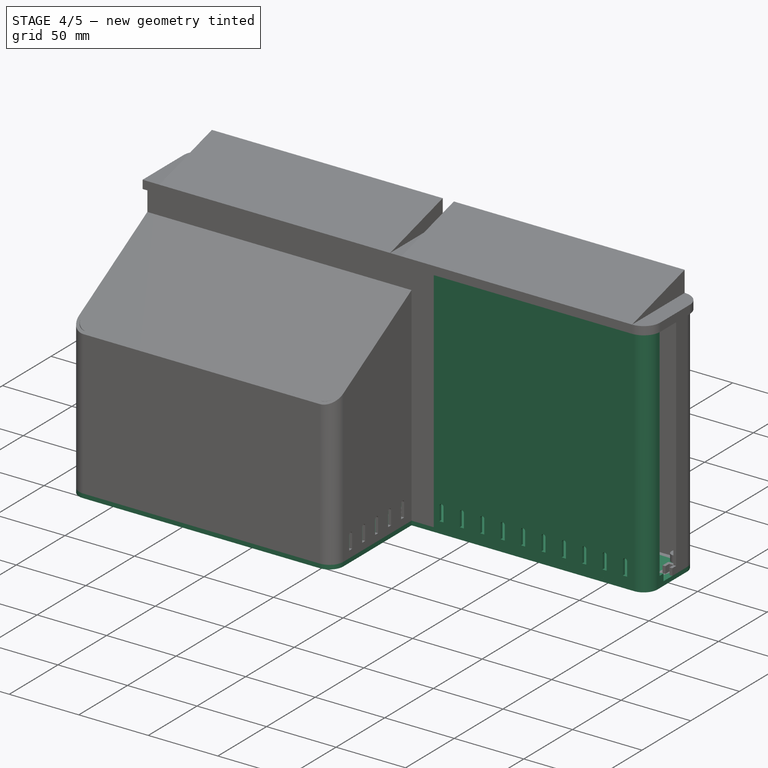
[diagram: stage 4 of 5 — iso view after this stage's code; geometry added in this stage tinted green]
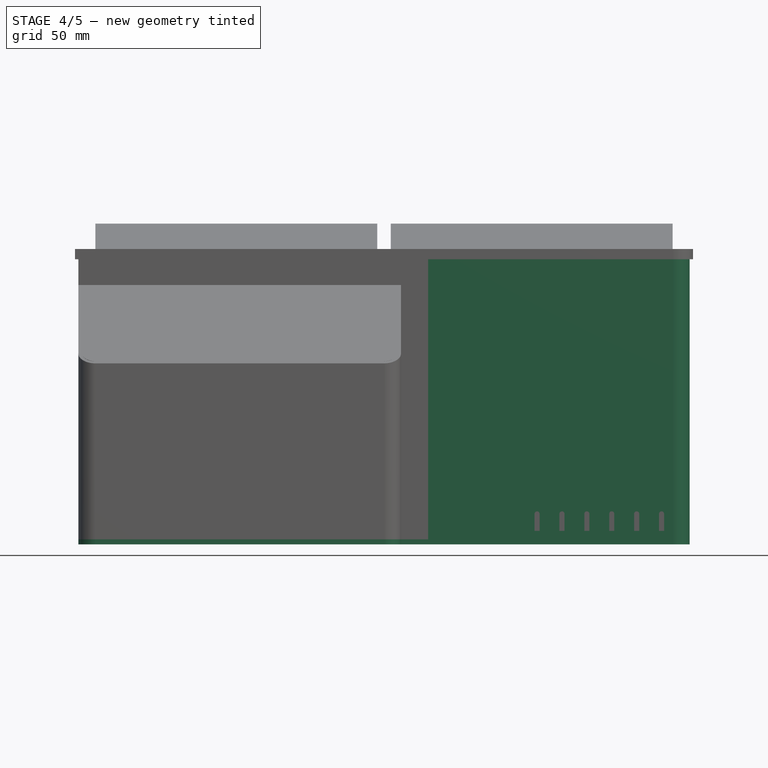
[diagram: stage 4 of 5 — front view after this stage's code; geometry added in this stage tinted green]
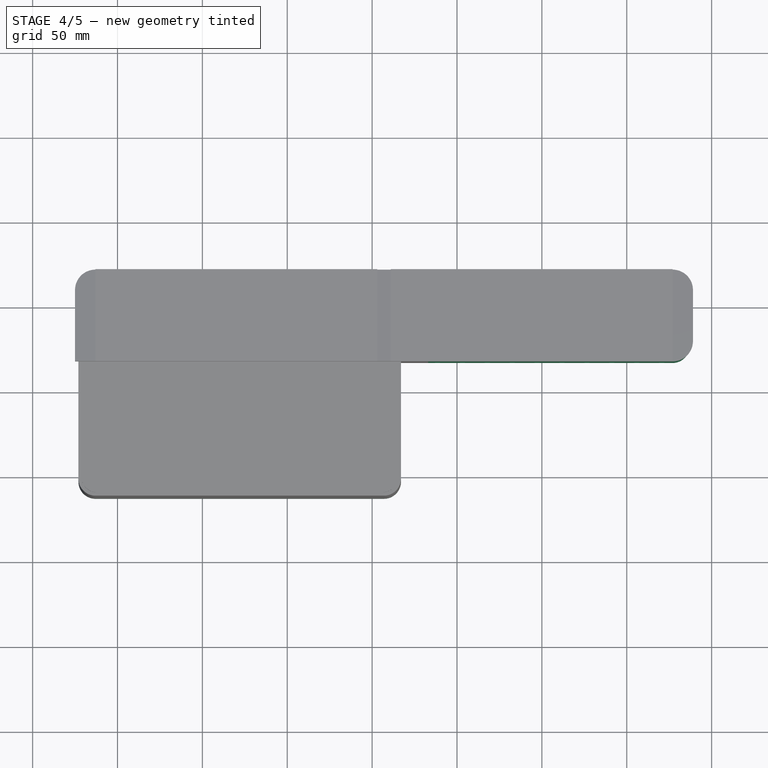
[diagram: stage 4 of 5 — top view after this stage's code; geometry added in this stage tinted green]
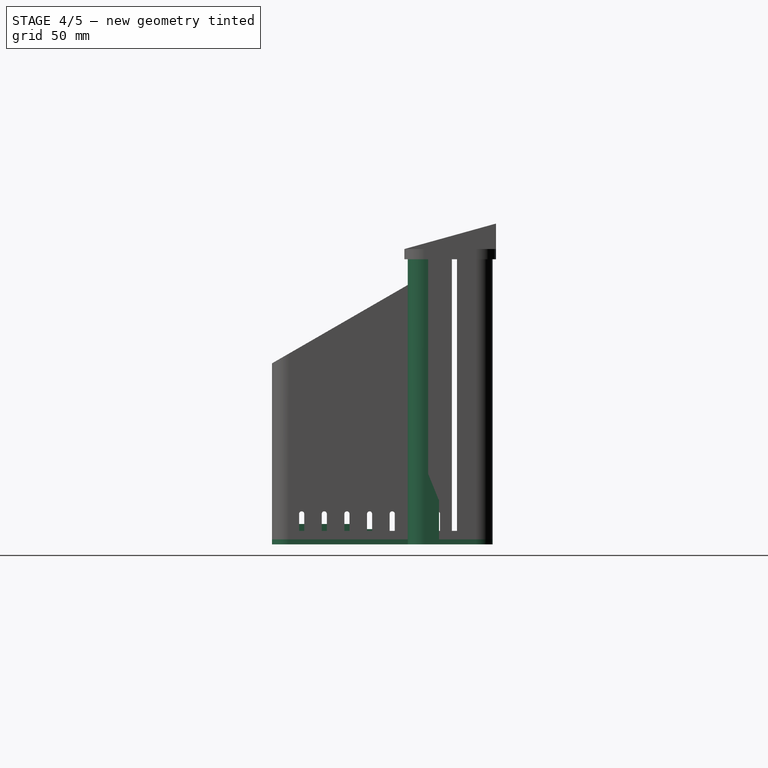
[diagram: stage 4 of 5 — right view after this stage's code; geometry added in this stage tinted green]
FEATURE [Sketcher::SketchObject] Sketch013  label="Front Peg Sketch"
  ExternalGeometry = -> [ShapeBinder]
  FullyConstrained = true
  MapMode = 5
  Placement = pos=(0,0,0) rot=(-1,0,0;1.5708rad)
  Support = -> [ShapeBinder]
  sketch-geometry (21):
    g0: LineSegment StartX=-120.55 StartY=47.9153 StartZ=0 EndX=-119 EndY=50.6 EndZ=0
    g1: LineSegment StartX=-119 StartY=50.6 StartZ=0 EndX=-120.55 EndY=53.2847 EndZ=0
    g2: LineSegment StartX=-120.55 StartY=53.2847 StartZ=0 EndX=-123.65 EndY=53.2847 EndZ=0
    g3: LineSegment StartX=-123.65 StartY=53.2847 StartZ=0 EndX=-125.2 EndY=50.6 EndZ=0
    g4: LineSegment StartX=-125.2 StartY=50.6 StartZ=0 EndX=-123.65 EndY=47.9153 EndZ=0
    g5: LineSegment StartX=-123.65 StartY=47.9153 StartZ=0 EndX=-120.55 EndY=47.9153 EndZ=0
    g6: Circle CenterX=-122.1 CenterY=50.6 CenterZ=0 NormalX=0 NormalY=0 NormalZ=1 AngleXU=0 Radius=3.1
    g7: LineSegment StartX=-91.85 StartY=47.9153 StartZ=0 EndX=-90.3 EndY=50.6 EndZ=0
    g8: LineSegment StartX=-90.3 StartY=50.6 StartZ=0 EndX=-91.85 EndY=53.2847 EndZ=0
    g9: LineSegment StartX=-91.85 StartY=53.2847 StartZ=0 EndX=-94.95 EndY=53.2847 EndZ=0
    g10: LineSegment StartX=-94.95 StartY=53.2847 StartZ=0 EndX=-96.5 EndY=50.6 EndZ=0
    g11: LineSegment StartX=-96.5 StartY=50.6 StartZ=0 EndX=-94.95 EndY=47.9153 EndZ=0
    g12: LineSegment StartX=-94.95 StartY=47.9153 StartZ=0 EndX=-91.85 EndY=47.9153 EndZ=0
    g13: Circle CenterX=-93.4 CenterY=50.6 CenterZ=0 NormalX=0 NormalY=0 NormalZ=1 AngleXU=0 Radius=3.1
    g14: LineSegment StartX=-105.75 StartY=19.5153 StartZ=0 EndX=-104.2 EndY=22.2 EndZ=0
    g15: LineSegment StartX=-104.2 StartY=22.2 StartZ=0 EndX=-105.75 EndY=24.8847 EndZ=0
    g16: LineSegment StartX=-105.75 StartY=24.8847 StartZ=0 EndX=-108.85 EndY=24.8847 EndZ=0
    g17: LineSegment StartX=-108.85 StartY=24.8847 StartZ=0 EndX=-110.4 EndY=22.2 EndZ=0
    g18: LineSegment StartX=-110.4 StartY=22.2 StartZ=0 EndX=-108.85 EndY=19.5153 EndZ=0
    g19: LineSegment StartX=-108.85 StartY=19.5153 StartZ=0 EndX=-105.75 EndY=19.5153 EndZ=0
    g20: Circle CenterX=-107.3 CenterY=22.2 CenterZ=0 NormalX=0 NormalY=0 NormalZ=1 AngleXU=0 Radius=3.1
  constraints (48):
    c: Coincident(g0,g1)
    c: Coincident(g1,g2)
    c: Coincident(g2,g3)
    c: Coincident(g3,g4)
    c: Coincident(g4,g5)
    c: Coincident(g5,g0)
    c: Equal(g0, g1-g5) x5
    c: PointOnObject(g0,g6)
    c: PointOnObject(g1,g6)
    c: PointOnObject(g2,g6)
    c: PointOnObject(g3,g6)
    c: PointOnObject(g4,g6)
    c: PointOnObject(g5,g6)
    c: Coincident(g6,g-3)
    c: Coincident(g7,g8)
    c: Coincident(g8,g9)
    c: Coincident(g9,g10)
    c: Coincident(g10,g11)
    c: Coincident(g11,g12)
    c: Coincident(g12,g7)
    c: Equal(g7, g8-g12) x5
    c: PointOnObject(g7,g13)
    c: PointOnObject(g8,g13)
    c: PointOnObject(g9,g13)
    c: PointOnObject(g10,g13)
    c: PointOnObject(g11,g13)
    c: PointOnObject(g12,g13)
    c: Coincident(g13,g-4)
    c: Coincident(g14,g15)
    c: Coincident(g15,g16)
    c: Coincident(g16,g17)
    c: Coincident(g17,g18)
    c: Coincident(g18,g19)
    c: Coincident(g19,g14)
    c: Equal(g14, g15-g19) x5
    c: PointOnObject(g14,g20)
    c: PointOnObject(g15,g20)
    c: PointOnObject(g16,g20)
    c: PointOnObject(g17,g20)
    c: PointOnObject(g18,g20)
    c: PointOnObject(g19,g20)
    c: Coincident(g20,g-5)
    c: Diameter(g6) = 6.2
    c: Equal(g6,g13)
    c: Equal(g13,g20)
    c: Horizontal(g2)
    c: Horizontal(g16)
    c: Horizontal(g9)
FEATURE [Part::Extrusion] Extrude001  label="Front Pegs"
  Base = -> Sketch013
  Dir = (0,1,2e-16)
  DirMode = 2
  FaceMakerClass = Part::FaceMakerBullseye
  LengthFwd = 10
  LengthRev = 0
  Solid = true
  Symmetric = false
FEATURE [PartDesign::ShapeBinder] ShapeBinder008
  Placement = pos=(0,9.48,2e-15) rot=(0,0.707107,0.707107;3.14159rad)
  Support = -> [LinearPattern]
  TraceSupport = false
FEATURE [Sketcher::SketchObject] Sketch033  label="Battery Sketch"
  ExternalGeometry = -> [ShapeBinder008]
  FullyConstrained = false
  MapMode = 5
  Placement = pos=(-1.81e-14,28.8986,-48.0627) rot=(1,0,0;0.383972rad)
  Support = -> [ShapeBinder008]
  expr: Constraints[8] = <<$params>>.battery_width
  expr: Constraints[9] = <<$params>>.battery_thickness
  sketch-geometry (4):
    g0: LineSegment StartX=-163.726 StartY=-49.5781 StartZ=0 EndX=1.27428 EndY=-49.5781 EndZ=0
    g1: LineSegment StartX=1.27428 StartY=-49.5781 StartZ=0 EndX=1.27428 EndY=-65.5781 EndZ=0
    g2: LineSegment StartX=1.27428 StartY=-65.5781 StartZ=0 EndX=-163.726 EndY=-65.5781 EndZ=0
    g3: LineSegment StartX=-163.726 StartY=-65.5781 StartZ=0 EndX=-163.726 EndY=-49.5781 EndZ=0
  constraints (11):
    c: Coincident(g0,g1)
    c: Coincident(g1,g2)
    c: Coincident(g2,g3)
    c: Coincident(g3,g0)
    c: Horizontal(g0)
    c: Horizontal(g2)
    c: Vertical(g1)
    c: Vertical(g3)
    c: DistanceX(g0,g0) = 165
    c: DistanceY(g3,g3) = 16
    c: Horizontal(g-5,g0)
FEATURE [PartDesign::Pad] Pad025  label="Battery Body"
  Direction = (4e-16,-0.374607,0.927184)
  Length = 95
  Length2 = 100
  Placement = pos=(0,9.48,2e-15) rot=(0,0.707107,0.707107;3.14159rad)
  Profile = -> Sketch033
  Type = 0
  expr: Length = <<$params>>.battery_height
FEATURE [PartDesign::Body] Body006  label="Baseboard Body"
  Group = -> [ShapeBinder006,ShapeBinder007,Sketch026,Pad018,Sketch027,Pad019,Sketch028,Pad020,Sketch029,Pad021,Fillet001,Pocket001,Sketch030,Pad022,Sketch031,Pad023,Sketch032,Pad024,Sketch036,Pad026,Fillet003,Fillet004,LinearPattern,Sketch034,Chamfer,Fillet005,Sketch037,Pad027,Chamfer001,Sketch038,Pocket002,LinearPattern001,Sketch039,Pocket003]
  Origin = -> Origin010
  Tip = -> Pocket003
FEATURE [App::Part] Part003  label="Baseboard (Prime)"
  Group = -> [Body006,ShapeBinder009,Sketch035,Extrude002]
  Origin = -> Origin009
FEATURE [Part::FeaturePython] Slice  # WARN: FeaturePython — macro-defined, semantics opaque (R4)
  Base = -> Body006
  Mode = 1
  Tolerance = 0
  Tools = -> [Extrude002]
FEATURE [Part::FeaturePython] Slice_child0  label="Baseboard Left"  # WARN: FeaturePython — macro-defined, semantics opaque (R4)
  Base = -> Slice
  FilterType = 1
  Invert = false
  OverrideMaxVal = 0
  WindowFrom = 80
  WindowTo = 100
  items = 0
FEATURE [Part::FeaturePython] Slice_child1  label="Baseboard Right"  # WARN: FeaturePython — macro-defined, semantics opaque (R4)
  Base = -> Slice
  FilterType = 1
  Invert = false
  OverrideMaxVal = 0
  WindowFrom = 80
  WindowTo = 100
  items = 1
FEATURE [App::DocumentObjectGroup] GrExplode_Slice  label="Baseboard (Slices)"
  Group = -> [Slice_child0,Slice_child1]
FEATURE [PartDesign::ShapeBinder] ShapeBinder010
  Placement = pos=(0,9.48,2e-15) rot=(0,0.707107,0.707107;3.14159rad)
  Support = -> [Pocket003]
  TraceSupport = false
FEATURE [Sketcher::SketchObject] Sketch040  label="Bottom Sata Bracket Body Sketch"
  ExternalGeometry = -> [ShapeBinder010]
  FullyConstrained = true
  MapMode = 5
  Placement = pos=(0,9.48,-82.7526) rot=(0,0,1;0rad)
  Support = -> [ShapeBinder010]
  sketch-geometry (4):
    g0: LineSegment StartX=-125.332 StartY=-58.401 StartZ=0 EndX=-119.332 EndY=-58.401 EndZ=0
    g1: LineSegment StartX=-125.332 StartY=-114.401 StartZ=0 EndX=-125.332 EndY=-58.401 EndZ=0
    g2: LineSegment StartX=-119.332 StartY=-58.401 StartZ=0 EndX=-119.332 EndY=-114.401 EndZ=0
    g3: LineSegment StartX=-125.332 StartY=-114.401 StartZ=0 EndX=-119.332 EndY=-114.401 EndZ=0
  constraints (8):
    c: Coincident(g0,g-3)
    c: Coincident(g0,g-4)
    c: Coincident(g1,g0)
    c: Coincident(g2,g0)
    c: Coincident(g2,g-4)
    c: Coincident(g3,g1)
    c: Coincident(g3,g2)
    c: Coincident(g1,g-3)
FEATURE [PartDesign::Pad] Pad028  label="Bottom Sata Bracket Body"
  Direction = (0,-5e-16,1)
  Length = 3
  Length2 = 100
  Placement = pos=(0,9.48,2e-15) rot=(0,0.707107,0.707107;3.14159rad)
  Profile = -> Sketch040
  Reversed = true
  Type = 0
FEATURE [Sketcher::SketchObject] Sketch041  label="Bottom Sata Bracket Holes Sketch"
  ExternalGeometry = -> [Pad028]
  FullyConstrained = true
  MapMode = 5
  Placement = pos=(0,9.48,-82.7526) rot=(0,0,1;0rad)
  Support = -> [Pad028]
  sketch-geometry (8):
    g0: Circle CenterX=-122.332 CenterY=-69.901 CenterZ=0 NormalX=0 NormalY=0 NormalZ=1 AngleXU=0 Radius=1.55
    g1: Circle CenterX=-122.332 CenterY=-108.901 CenterZ=0 NormalX=0 NormalY=0 NormalZ=1 AngleXU=0 Radius=1.55
    g2: Circle CenterX=-122.332 CenterY=-82.901 CenterZ=0 NormalX=0 NormalY=0 NormalZ=1 AngleXU=0 Radius=1.55
    g3: Circle CenterX=-122.332 CenterY=-95.901 CenterZ=0 NormalX=0 NormalY=0 NormalZ=1 AngleXU=0 Radius=1.55
    g4: LineSegment StartX=-122.332 StartY=-69.901 StartZ=0 EndX=-122.332 EndY=-58.401 EndZ=0
    g5: LineSegment StartX=-122.332 StartY=-69.901 StartZ=0 EndX=-122.332 EndY=-82.901 EndZ=0
    g6: LineSegment StartX=-122.332 StartY=-82.901 StartZ=0 EndX=-122.332 EndY=-95.901 EndZ=0
    g7: LineSegment StartX=-122.332 StartY=-95.901 StartZ=0 EndX=-122.332 EndY=-108.901 EndZ=0
  constraints (20):
    c: Coincident(g4,g0)
    c: Vertical(g4)
    c: Coincident(g5,g0)
    c: Coincident(g5,g2)
    c: Vertical(g5)
    c: Coincident(g6,g2)
    c: Coincident(g6,g3)
    c: Vertical(g6)
    c: Coincident(g7,g3)
    c: Coincident(g7,g1)
    c: Vertical(g7)
    c: Symmetric(g-4,g-4,g4)
    c: Equal(g5,g6)
    c: Equal(g6,g7)
    c: DistanceY(g5,g5) = 13
    c: Diameter(g0) = 3.1
    c: Equal(g0,g2)
    c: Equal(g2,g3)
    c: Equal(g3,g1)
    c: DistanceY(g4,g4) = 11.5
FEATURE [PartDesign::Pocket] Pocket004  label="Bottom Sata Bracket Holes"
  BaseFeature = -> Pad028
  Direction = (-1e-16,5e-16,-1)
  Length = 5
  Length2 = 100
  Placement = pos=(0,9.48,2e-15) rot=(0,0.707107,0.707107;3.14159rad)
  Profile = -> Sketch041
  Type = 2
FEATURE [PartDesign::Chamfer] Chamfer002  label="Bottom Sata Bracket Hole Chamfer"
  Angle = 45
  Base = -> Pocket004 [Edge20,Edge17,Edge18,Edge19]
  BaseFeature = -> Pocket004
  ChamferType = 1
  FlipDirection = false
  Placement = pos=(0,9.48,2e-15) rot=(0,0.707107,0.707107;3.14159rad)
  Size = 0.8
  Size2 = 1
  SupportTransform = false
  UseAllEdges = false
FEATURE [PartDesign::Body] Body008  label="Bottom Sata Bracket"
  Group = -> [ShapeBinder010,Sketch040,Pad028,Sketch041,Pocket004,Chamfer002]
  Origin = -> Origin013
  Tip = -> Chamfer002
FEATURE [PartDesign::ShapeBinder] ShapeBinder011
  Placement = pos=(0,9.48,2e-15) rot=(0,0.707107,0.707107;3.14159rad)
  Support = -> [Pocket003]
  TraceSupport = false
FEATURE [Sketcher::SketchObject] Sketch042  label="Bottom Sata Bracket Fix Connector Body Sketch"
  ExternalGeometry = -> [ShapeBinder011]
  FullyConstrained = true
  MapMode = 5
  Placement = pos=(1.72e-14,-91.921,2.45e-14) rot=(0,-0.707107,0.707107;3.14159rad)
  Support = -> [ShapeBinder011]
  sketch-geometry (12):
    g0: LineSegment StartX=125.332 StartY=85.7526 StartZ=0 EndX=128.332 EndY=85.7526 EndZ=0
    g1: LineSegment StartX=125.332 StartY=85.7526 StartZ=0 EndX=122.332 EndY=85.7526 EndZ=0
    g2: LineSegment StartX=122.332 StartY=85.7526 StartZ=0 EndX=122.332 EndY=88.5526 EndZ=0
    g3: LineSegment StartX=122.332 StartY=88.5526 StartZ=0 EndX=131.332 EndY=88.5526 EndZ=0
    g4: LineSegment StartX=131.332 StartY=88.5526 StartZ=0 EndX=131.332 EndY=79.7526 EndZ=0
    g5: LineSegment StartX=131.332 StartY=79.7526 StartZ=0 EndX=122.332 EndY=79.7526 EndZ=0
    g6: LineSegment StartX=128.332 StartY=85.7526 StartZ=0 EndX=128.332 EndY=82.7526 EndZ=0
    g7: LineSegment StartX=128.332 StartY=82.7526 StartZ=0 EndX=125.332 EndY=82.7526 EndZ=0
    g8: LineSegment StartX=122.332 StartY=79.7526 StartZ=0 EndX=122.332 EndY=82.7526 EndZ=0
    g9: LineSegment StartX=125.332 StartY=82.7526 StartZ=0 EndX=122.332 EndY=82.7526 EndZ=0
    g10: LineSegment StartX=128.332 StartY=82.7526 StartZ=0 EndX=128.332 EndY=79.7526 EndZ=0
    g11: LineSegment StartX=128.332 StartY=82.7526 StartZ=0 EndX=131.332 EndY=82.7526 EndZ=0
  constraints (32):
    c: Coincident(g0,g-3)
    c: Coincident(g0,g-3)
    c: Coincident(g1,g0)
    c: Horizontal(g1)
    c: Coincident(g2,g1)
    c: Vertical(g2)
    c: Coincident(g3,g2)
    c: Horizontal(g3)
    c: Coincident(g4,g3)
    c: Vertical(g4)
    c: Coincident(g5,g4)
    c: Horizontal(g5)
    c: Coincident(g6,g0)
    c: Coincident(g6,g-4)
    c: Coincident(g7,g6)
    c: Coincident(g7,g-4)
    c: Coincident(g8,g5)
    c: Vertical(g8)
    c: Coincident(g9,g7)
    c: Coincident(g9,g8)
    c: Horizontal(g9)
    c: Equal(g7,g9)
    c: Equal(g9,g1)
    c: Coincident(g10,g6)
    c: PointOnObject(g10,g5)
    c: Vertical(g10)
    c: Coincident(g11,g6)
    c: PointOnObject(g11,g4)
    c: Horizontal(g11)
    c: Equal(g11,g10)
    c: Equal(g10,g7)
    c: DistanceY(g1,g2) = 2.8
FEATURE [PartDesign::Pad] Pad029  label="Bottom Sata Bracket Fix Connector Body"
  Direction = (2e-16,-1,2e-16)
  Length = 3
  Length2 = 100
  Placement = pos=(0,9.48,2e-15) rot=(0,0.707107,0.707107;3.14159rad)
  Profile = -> Sketch042
  Type = 0
FEATURE [PartDesign::Chamfer] Chamfer003
  Angle = 45
  Base = -> Pad029 [Edge17]
  BaseFeature = -> Pad029
  ChamferType = 0
  FlipDirection = false
  Placement = pos=(0,9.48,2e-15) rot=(0,0.707107,0.707107;3.14159rad)
  Size = 3
  Size2 = 1
  SupportTransform = false
  UseAllEdges = false
FEATURE [PartDesign::Body] Body009  label="Bottom Sata Bracket Fix Connector"
  Group = -> [ShapeBinder011,Sketch042,Pad029,Chamfer003]
  Origin = -> Origin014
  Tip = -> Chamfer003
FEATURE [PartDesign::ShapeBinder] ShapeBinder012
  Placement = pos=(0,9.48,2e-15) rot=(0,0.707107,0.707107;3.14159rad)
  Support = -> [Pocket004]
  TraceSupport = false
FEATURE [Sketcher::SketchObject] Sketch043  label="Top Sata Bracket Body Sketch"
  ExternalGeometry = -> [ShapeBinder012]
  FullyConstrained = true
  MapMode = 5
  Placement = pos=(0,9.48,-82.7526) rot=(0,0,1;0rad)
  Support = -> [ShapeBinder012]
  sketch-geometry (12):
    g0: LineSegment StartX=-125.332 StartY=-66.901 StartZ=0 EndX=-119.332 EndY=-66.901 EndZ=0
    g1: LineSegment StartX=-119.332 StartY=-66.901 StartZ=0 EndX=-119.332 EndY=-85.901 EndZ=0
    g2: LineSegment StartX=-119.332 StartY=-85.901 StartZ=0 EndX=-125.332 EndY=-85.901 EndZ=0
    g3: LineSegment StartX=-125.332 StartY=-85.901 StartZ=0 EndX=-125.332 EndY=-66.901 EndZ=0
    g4: LineSegment StartX=-122.332 StartY=-69.901 StartZ=0 EndX=-125.332 EndY=-69.901 EndZ=0
    g5: LineSegment StartX=-122.332 StartY=-69.901 StartZ=0 EndX=-122.332 EndY=-66.901 EndZ=0
    g6: LineSegment StartX=-122.332 StartY=-82.901 StartZ=0 EndX=-119.332 EndY=-82.901 EndZ=0
    g7: LineSegment StartX=-122.332 StartY=-82.901 StartZ=0 EndX=-122.332 EndY=-85.901 EndZ=0
    g8: Circle CenterX=-122.332 CenterY=-108.901 CenterZ=0 NormalX=0 NormalY=0 NormalZ=1 AngleXU=0 Radius=1.55
    g9: Circle CenterX=-122.332 CenterY=-95.901 CenterZ=0 NormalX=0 NormalY=0 NormalZ=1 AngleXU=0 Radius=1.55
    g10: Circle CenterX=-122.332 CenterY=-82.901 CenterZ=0 NormalX=0 NormalY=0 NormalZ=1 AngleXU=0 Radius=1.55
    g11: Circle CenterX=-122.332 CenterY=-69.901 CenterZ=0 NormalX=0 NormalY=0 NormalZ=1 AngleXU=0 Radius=1.55
  constraints (32):
    c: Coincident(g0,g1)
    c: Coincident(g1,g2)
    c: Coincident(g2,g3)
    c: Horizontal(g0)
    c: Horizontal(g2)
    c: Vertical(g1)
    c: Vertical(g3)
    c: DistanceX(g0,g0) = 6
    c: Coincident(g4,g-3)
    c: PointOnObject(g4,g3)
    c: Horizontal(g4)
    c: Coincident(g5,g4)
    c: PointOnObject(g5,g0)
    c: Vertical(g5)
    c: DistanceY(g5,g5) = 3
    c: Equal(g5,g4)
    c: Coincident(g0,g3)
    c: Coincident(g7,g6)
    c: PointOnObject(g7,g2)
    c: Vertical(g7)
    c: Equal(g6,g7)
    c: Equal(g7,g5)
    c: Horizontal(g6)
    c: Coincident(g6,g-6)
    c: Coincident(g8,g-4)
    c: Coincident(g9,g-5)
    c: Coincident(g10,g6)
    c: Coincident(g11,g4)
    c: Equal(g11,g-3)
    c: Equal(g11,g8)
    c: Equal(g8,g9)
    c: Equal(g9,g10)
FEATURE [PartDesign::Pad] Pad030  label="Top Sata Bracket Body Pad"
  Direction = (0,-3e-16,1)
  Length = 3
  Length2 = 100
  Placement = pos=(0,9.48,2e-15) rot=(0,0.707107,0.707107;3.14159rad)
  Profile = -> Sketch043
  Type = 0
FEATURE [PartDesign::Chamfer] Chamfer004
  Angle = 45
  Base = -> Pad030 [Edge18,Edge21,Edge24,Edge15]
  BaseFeature = -> Pad030
  ChamferType = 1
  FlipDirection = false
  Placement = pos=(0,9.48,2e-15) rot=(0,0.707107,0.707107;3.14159rad)
  Size = 0.8
  Size2 = 1
  SupportTransform = false
  UseAllEdges = false
FEATURE [PartDesign::Fillet] Fillet006
  Base = -> Chamfer004 [Edge23,Edge22,Edge20,Edge21]
  BaseFeature = -> Chamfer004
  Placement = pos=(0,9.48,2e-15) rot=(0,0.707107,0.707107;3.14159rad)
  Radius = 2.9
  SupportTransform = false
  UseAllEdges = false
FEATURE [PartDesign::ShapeBinder] ShapeBinder014
  Placement = pos=(0,9.48,2e-15) rot=(0,0.707107,0.707107;3.14159rad)
  Support = -> [Pocket003]
  TraceSupport = false
FEATURE [Sketcher::SketchObject] Sketch046
  ExternalGeometry = -> [ShapeBinder014]
  FullyConstrained = false
  MapMode = 5
  Placement = pos=(-1.42e-14,9.48,-88.7526) rot=(0,0,1;0rad)
  Support = -> [ShapeBinder014]
  expr: Constraints[33] = <<$params>>.io_mount_thickness
  expr: Constraints[39] = <<$params>>.wall_thread_wrap_diam
  expr: Constraints[41] = <<$params>>.wall_thread_diam
  sketch-geometry (28):
    g0: LineSegment StartX=177 StartY=-42 StartZ=0 EndX=33 EndY=-42 EndZ=0
    g1: LineSegment StartX=35 StartY=-40 StartZ=0 EndX=173 EndY=-40 EndZ=0
    g2: ArcOfCircle CenterX=176.38 CenterY=-31.9108 CenterZ=0 NormalX=0 NormalY=0 NormalZ=1 AngleXU=0 Radius=8.62048 StartAngle=5.78895 EndAngle=6.27284
    g3: LineSegment StartX=185 StartY=-32 StartZ=0 EndX=180 EndY=-32 EndZ=0
    g4: LineSegment StartX=180 StartY=-32 StartZ=0 EndX=180 EndY=-26 EndZ=0
    g5: LineSegment StartX=180 StartY=-26 StartZ=0 EndX=182 EndY=-26 EndZ=0
    g6: LineSegment StartX=182 StartY=-26 StartZ=0 EndX=182 EndY=-30 EndZ=0
    g7: LineSegment StartX=182 StartY=-30 StartZ=0 EndX=185 EndY=-30 EndZ=0
    g8: LineSegment StartX=177 StartY=-42 StartZ=0 EndX=177 EndY=-40 EndZ=0
    g9: LineSegment StartX=185 StartY=-32 StartZ=0 EndX=187 EndY=-32 EndZ=0
    g10: LineSegment StartX=185 StartY=-32 StartZ=0 EndX=185 EndY=-30 EndZ=0
    g11: LineSegment StartX=185 StartY=-30 StartZ=0 EndX=185 EndY=-26 EndZ=0
    g12: LineSegment StartX=185 StartY=-26 StartZ=0 EndX=187 EndY=-26 EndZ=0
    g13: LineSegment StartX=187 StartY=-26 StartZ=0 EndX=187 EndY=-32 EndZ=0
    g14: ArcOfCircle CenterX=177 CenterY=-32 CenterZ=0 NormalX=0 NormalY=0 NormalZ=1 AngleXU=0 Radius=10 StartAngle=4.71239 EndAngle=6.28319
    g15: ArcOfCircle CenterX=177 CenterY=-36 CenterZ=0 NormalX=0 NormalY=0 NormalZ=1 AngleXU=0 Radius=4 StartAngle=0 EndAngle=3.14159
    g16: Circle CenterX=177 CenterY=-36 CenterZ=0 NormalX=0 NormalY=0 NormalZ=1 AngleXU=0 Radius=1.9
    g17: LineSegment StartX=177 StartY=-36 StartZ=0 EndX=173 EndY=-36 EndZ=0
    g18: LineSegment StartX=177 StartY=-36 StartZ=0 EndX=181 EndY=-36 EndZ=0
    g19: LineSegment StartX=173 StartY=-36 StartZ=0 EndX=173 EndY=-40 EndZ=0
    g20: LineSegment StartX=181 StartY=-36 StartZ=0 EndX=183.969 EndY=-36 EndZ=0
    g21: LineSegment StartX=173 StartY=-40 StartZ=0 EndX=177 EndY=-40 EndZ=0
    g22: LineSegment StartX=33 StartY=-42 StartZ=0 EndX=33 EndY=-40 EndZ=0
    g23: LineSegment StartX=33 StartY=-40 StartZ=0 EndX=27.1 EndY=-40 EndZ=0
    g24: LineSegment StartX=27.1 StartY=-40 StartZ=0 EndX=27.1 EndY=-38 EndZ=0
    g25: LineSegment StartX=27.1 StartY=-38 StartZ=0 EndX=35 EndY=-38 EndZ=0
    g26: LineSegment StartX=35 StartY=-38 StartZ=0 EndX=35 EndY=-40 EndZ=0
    g27: LineSegment StartX=35 StartY=-40 StartZ=0 EndX=33 EndY=-40 EndZ=0
  constraints (75):
    c: Coincident(g0,g-3)
    c: Horizontal(g0)
    c: DistanceX(g0,g0) = 144
    c: Horizontal(g1)
    c: Coincident(g3,g2)
    c: Horizontal(g3)
    c: Coincident(g4,g3)
    c: Vertical(g4)
    c: Coincident(g5,g4)
    c: Horizontal(g5)
    c: Coincident(g6,g5)
    c: Vertical(g6)
    c: Coincident(g7,g6)
    c: Horizontal(g7)
    c: Coincident(g8,g0)
    c: Coincident(g9,g2)
    c: Coincident(g9,g-4)
    c: Horizontal(g9)
    c: Vertical(g8)
    c: Coincident(g10,g2)
    c: Vertical(g10)
    c: Equal(g9,g10)
    c: Equal(g10,g8)
    c: Coincident(g11,g10)
    c: Vertical(g11)
    c: Coincident(g12,g11)
    c: PointOnObject(g12,g-4)
    c: Horizontal(g12)
    c: Coincident(g13,g12)
    c: Coincident(g13,g9)
    c: Coincident(g7,g10)
    c: Equal(g11,g6)
    c: DistanceY(g4,g4) = 6
    c: DistanceX(g7,g7) = 3
    c: Equal(g5,g12)
    c: Coincident(g14,g-3)
    c: Coincident(g14,g0)
    c: Coincident(g14,g13)
    c: Coincident(g15,g-5)
    c: Diameter(g15) = 8
    c: Coincident(g16,g15)
    c: Diameter(g16) = 3.8
    c: Coincident(g17,g15)
    c: Horizontal(g17)
    c: Coincident(g18,g15)
    c: Horizontal(g18)
    c: Coincident(g19,g17)
    c: Vertical(g19)
    c: Coincident(g20,g18)
    c: Horizontal(g20)
    c: Coincident(g15,g18)
    c: Coincident(g15,g17)
    c: Coincident(g1,g19)
    c: Coincident(g2,g20)
    c: Coincident(g21,g1)
    c: Coincident(g21,g8)
    c: Horizontal(g21)
    c: Coincident(g22,g0)
    c: Vertical(g22)
    c: Coincident(g23,g22)
    c: Horizontal(g23)
    c: Coincident(g24,g23)
    c: Vertical(g24)
    c: Coincident(g25,g24)
    c: Horizontal(g25)
    c: Coincident(g26,g25)
    c: Coincident(g26,g1)
    c: Vertical(g26)
    c: DistanceY(g8,g8) = 2
    c: Coincident(g27,g1)
    c: Coincident(g27,g22)
    c: Horizontal(g27)
    c: Equal(g27,g22)
    c: Equal(g22,g26)
    c: DistanceX(g25,g25) = 7.9
FEATURE [PartDesign::Pad] Pad033  label="Memory Wall Base"
  Direction = (1,1,1)
  Length = 5
  Length2 = 100
  Placement = pos=(0,9.48,2e-15) rot=(0,0.707107,0.707107;3.14159rad)
  Profile = -> Sketch046
  Type = 0
  expr: Length = <<$params>>.wall_thread_height
FEATURE [Sketcher::SketchObject] Sketch047  label="Memory Wall Layer 1 Sketch"
  ExternalGeometry = -> [Pad033]
  FullyConstrained = false
  MapMode = 5
  Placement = pos=(-8.04e-14,9.48,-83.7526) rot=(0,0,1;0rad)
  Support = -> [Pad033]
  sketch-geometry (14):
    g0: ArcOfCircle CenterX=176.819 CenterY=-31.8192 CenterZ=0 NormalX=0 NormalY=0 NormalZ=1 AngleXU=0 Radius=8.18282 StartAngle=4.73449 EndAngle=6.26109
    g1: LineSegment StartX=187 StartY=-32 StartZ=0 EndX=185 EndY=-32 EndZ=0
    g2: LineSegment StartX=185 StartY=-32 StartZ=0 EndX=185 EndY=-30 EndZ=0
    g3: LineSegment StartX=185 StartY=-30 StartZ=0 EndX=187 EndY=-30 EndZ=0
    g4: LineSegment StartX=187 StartY=-32 StartZ=0 EndX=187 EndY=-30 EndZ=0
    g5: LineSegment StartX=177 StartY=-40 StartZ=0 EndX=35 EndY=-40 EndZ=0
    g6: LineSegment StartX=33 StartY=-42 StartZ=0 EndX=177 EndY=-42 EndZ=0
    g7: LineSegment StartX=35 StartY=-40 StartZ=0 EndX=35 EndY=-38 EndZ=0
    g8: LineSegment StartX=35 StartY=-38 StartZ=0 EndX=27.1 EndY=-38 EndZ=0
    g9: LineSegment StartX=27.1 StartY=-38 StartZ=0 EndX=27.1 EndY=-40 EndZ=0
    g10: LineSegment StartX=27.1 StartY=-40 StartZ=0 EndX=33 EndY=-40 EndZ=0
    g11: LineSegment StartX=33 StartY=-40 StartZ=0 EndX=33 EndY=-42 EndZ=0
    g12: ArcOfCircle CenterX=177 CenterY=-32 CenterZ=0 NormalX=0 NormalY=0 NormalZ=1 AngleXU=0 Radius=10 StartAngle=4.71239 EndAngle=6.28319
    g13: LineSegment StartX=177 StartY=-42 StartZ=0 EndX=177 EndY=-40 EndZ=0
  constraints (33):
    c: Coincident(g5,g0)
    c: Horizontal(g5)
    c: Coincident(g6,g-7)
    c: Coincident(g5,g-3)
    c: Coincident(g7,g5)
    c: Coincident(g7,g-6)
    c: Coincident(g8,g7)
    c: Coincident(g8,g-8)
    c: Coincident(g9,g8)
    c: Coincident(g9,g-9)
    c: Coincident(g10,g9)
    c: Coincident(g10,g-9)
    c: Coincident(g11,g10)
    c: Coincident(g11,g6)
    c: Coincident(g0,g1)
    c: Coincident(g0,g2)
    c: Vertical(g2)
    c: Horizontal(g1)
    c: Coincident(g1,g4)
    c: Coincident(g1,g-4)
    c: Coincident(g2,g3)
    c: Coincident(g2,g-5)
    c: Coincident(g3,g4)
    c: Horizontal(g3)
    c: Vertical(g4)
    c: Coincident(g6,g-4)
    c: Coincident(g12,g-4)
    c: Coincident(g12,g4)
    c: Coincident(g12,g6)
    c: Coincident(g13,g6)
    c: Coincident(g13,g0)
    c: Vertical(g13)
    c: DistanceY(g13,g13) = 2
FEATURE [PartDesign::Pad] Pad034  label="Memory Wall Layer 1"
  BaseFeature = -> Pad033
  Direction = (1,1,1)
  Length = 164
  Length2 = 100
  Placement = pos=(0,9.48,2e-15) rot=(0,0.707107,0.707107;3.14159rad)
  Profile = -> Sketch047
  Type = 0
FEATURE [Sketcher::SketchObject] Sketch048  label="Memory Wall Vent Cutout Sketch"
  ExternalGeometry = -> [Pad034]
  FullyConstrained = true
  MapMode = 5
  Placement = pos=(8e-15,-32.52,-4.1e-14) rot=(0,0.707107,-0.707107;3.14159rad)
  sketch-geometry (5):
    g0: ArcOfCircle CenterX=-38.5 CenterY=73.7526 CenterZ=0 NormalX=0 NormalY=0 NormalZ=1 AngleXU=0 Radius=1.5 StartAngle=3.14159 EndAngle=6.28319
    g1: LineSegment StartX=-37 StartY=73.7526 StartZ=0 EndX=-37 EndY=83.7526 EndZ=0
    g2: LineSegment StartX=-40 StartY=73.7526 StartZ=0 EndX=-40 EndY=83.7526 EndZ=0
    g3: LineSegment StartX=-37 StartY=73.7526 StartZ=0 EndX=-40 EndY=73.7526 EndZ=0
    g4: LineSegment StartX=-37 StartY=83.7526 StartZ=0 EndX=-40 EndY=83.7526 EndZ=0
  constraints (13):
    c: Tangent(g0,g2) = 1.5708
    c: Tangent(g0,g1) = -1.5708
    c: Vertical(g1)
    c: Coincident(g3,g0)
    c: Coincident(g3,g0)
    c: Horizontal(g3)
    c: DistanceX(g3,g3) = 3
    c: Coincident(g4,g1)
    c: Coincident(g4,g2)
    c: DistanceY(g0,g1) = 10
    c: Horizontal(g4)
    c: PointOnObject(g1,g-3)
    c: DistanceX(g1,g-3) = 4
FEATURE [PartDesign::Pocket] Pocket005  label="Memory Wall Vent Cutout"
  BaseFeature = -> Pad034
  Direction = (1,1,1)
  Length = 5
  Length2 = 100
  Placement = pos=(0,9.48,2e-15) rot=(0,0.707107,0.707107;3.14159rad)
  Profile = -> Sketch048
  Type = 0
FEATURE [PartDesign::LinearPattern] LinearPattern002  label="Memory Wall Vent Repeater"
  BaseFeature = -> Pocket005
  Direction = -> X_Axis018
  Length = 132
  Occurrences = 10
  Originals = -> [Pocket005]
  Placement = pos=(0,9.48,2e-15) rot=(0,0.707107,0.707107;3.14159rad)
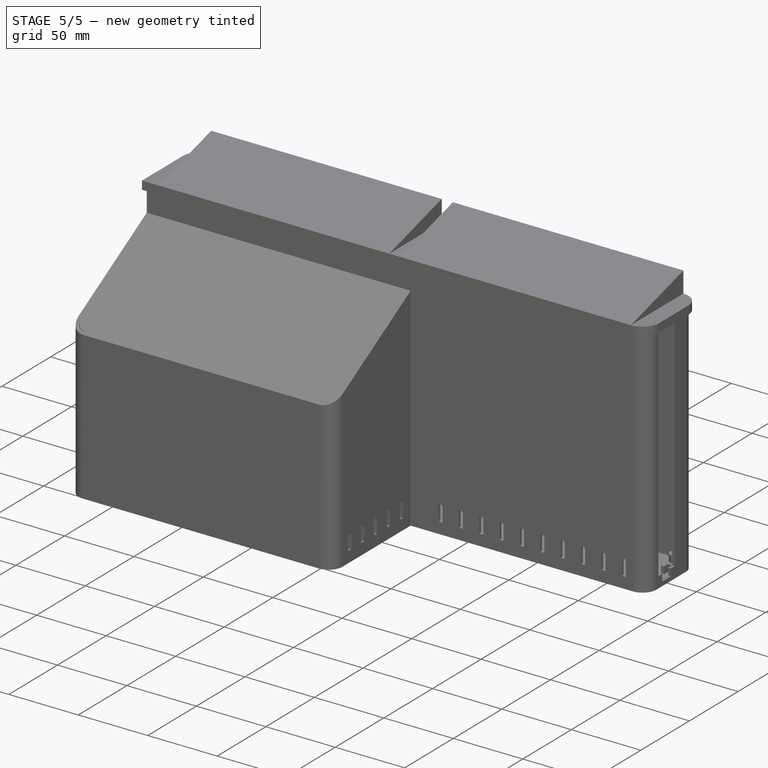
[diagram: stage 5 of 5 — iso view after this stage's code; geometry added in this stage tinted green]
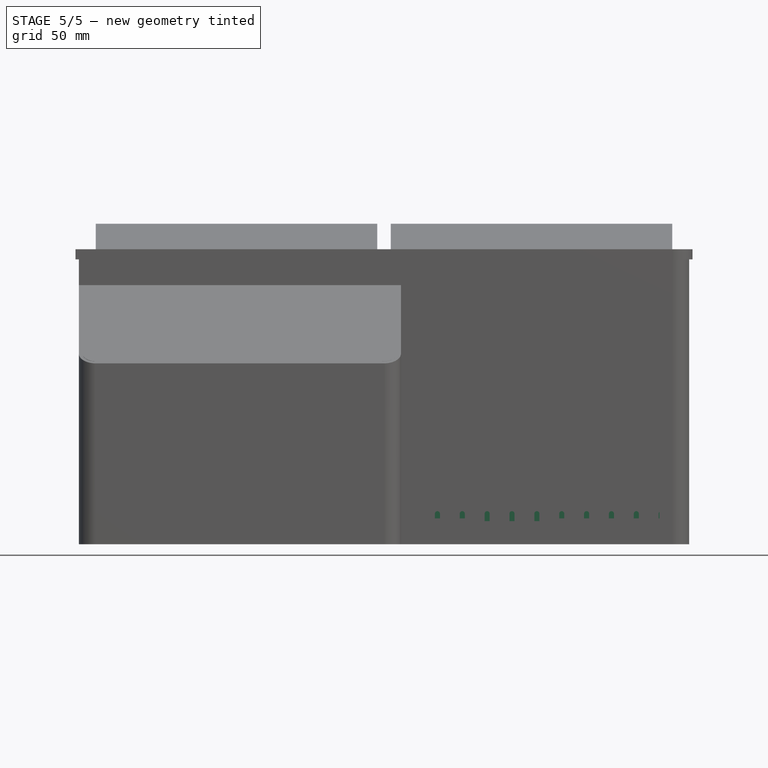
[diagram: stage 5 of 5 — front view after this stage's code; geometry added in this stage tinted green]
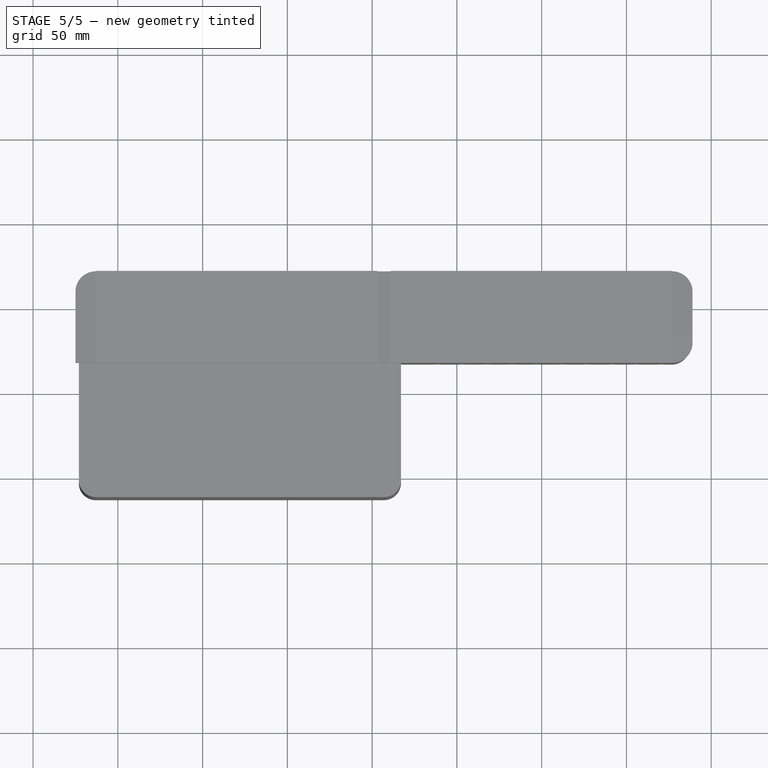
[diagram: stage 5 of 5 — top view after this stage's code; geometry added in this stage tinted green]
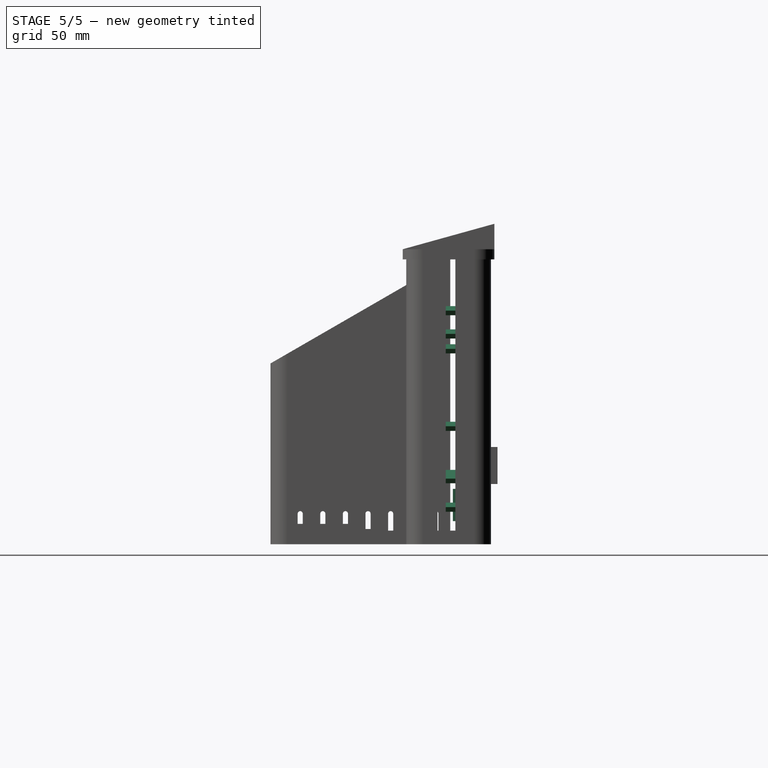
[diagram: stage 5 of 5 — right view after this stage's code; geometry added in this stage tinted green]
FEATURE [Sketcher::SketchObject] Sketch002  label="Heat Pipes Sketch"
  AttachmentOffset = pos=(0,0,0) rot=(0,0,1;3.14159rad)
  FullyConstrained = false
  MapMode = 5
  Placement = pos=(0,0,0) rot=(0,0.707107,0.707107;3.14159rad)
  Support = -> [Pocket]
  sketch-geometry (84):
    g0: LineSegment StartX=-128.224 StartY=73.9464 StartZ=0 EndX=-60.2787 EndY=73.9464 EndZ=0
    g1: LineSegment StartX=-128.224 StartY=67.5742 StartZ=0 EndX=-60.2787 EndY=67.5742 EndZ=0
    g2-g10: Circle x9 (B-spline internal-alignment scaffolding for g11; pole/knot coordinates omitted)
    g11: BSplineCurve PolesCount=9 KnotsCount=7 Degree=3 IsPeriodic=0
    g12-g18: GeomPoint x7 (B-spline internal-alignment scaffolding for g11; pole/knot coordinates omitted)
    g19-g27: Circle x9 (B-spline internal-alignment scaffolding for g28; pole/knot coordinates omitted)
    g28: BSplineCurve PolesCount=9 KnotsCount=7 Degree=3 IsPeriodic=0
    g29-g35: GeomPoint x7 (B-spline internal-alignment scaffolding for g28; pole/knot coordinates omitted)
    g36: LineSegment StartX=96.4147 StartY=75.5133 StartZ=0 EndX=162.031 EndY=75.5133 EndZ=0
    g37: LineSegment StartX=162.876 StartY=68.8895 StartZ=0 EndX=96.557 EndY=68.8895 EndZ=0
    g38: LineSegment StartX=-128.224 StartY=73.9464 StartZ=0 EndX=-133.827 EndY=71.4154 EndZ=0
    g39: LineSegment StartX=-133.827 StartY=71.4154 StartZ=0 EndX=-128.224 EndY=67.5742 EndZ=0
    g40: LineSegment StartX=-128.129 StartY=66.3246 StartZ=0 EndX=-66.1619 EndY=66.3246 EndZ=0
    g41: LineSegment StartX=-128.281 StartY=60.6089 StartZ=0 EndX=-67.1349 EndY=60.6089 EndZ=0
    g42-g50: Circle x9 (B-spline internal-alignment scaffolding for g51; pole/knot coordinates omitted)
    g51: BSplineCurve PolesCount=9 KnotsCount=7 Degree=3 IsPeriodic=0
    g52-g58: GeomPoint x7 (B-spline internal-alignment scaffolding for g51; pole/knot coordinates omitted)
    g59-g67: Circle x9 (B-spline internal-alignment scaffolding for g68; pole/knot coordinates omitted)
    g68: BSplineCurve PolesCount=9 KnotsCount=7 Degree=3 IsPeriodic=0
    g69-g75: GeomPoint x7 (B-spline internal-alignment scaffolding for g68; pole/knot coordinates omitted)
    g76: LineSegment StartX=96.9263 StartY=67.164 StartZ=0 EndX=161.891 EndY=67.164 EndZ=0
    g77: LineSegment StartX=162.876 StartY=60.8542 StartZ=0 EndX=96.3367 EndY=60.8542 EndZ=0
    g78: LineSegment StartX=-128.129 StartY=66.3246 StartZ=0 EndX=-133.962 EndY=62.9882 EndZ=0
    g79: LineSegment StartX=-133.962 StartY=62.9882 StartZ=0 EndX=-128.281 EndY=60.6089 EndZ=0
    g80: LineSegment StartX=162.031 StartY=75.5133 StartZ=0 EndX=167.101 EndY=72.2132 EndZ=0
    g81: LineSegment StartX=167.101 StartY=72.2132 StartZ=0 EndX=162.876 EndY=68.8895 EndZ=0
    g82: LineSegment StartX=161.891 StartY=67.164 StartZ=0 EndX=167.523 EndY=63.9051 EndZ=0
    g83: LineSegment StartX=167.523 StartY=63.9051 StartZ=0 EndX=162.876 EndY=60.8542 EndZ=0
  constraints (44):
    c: Horizontal(g0)
    c: Horizontal(g1)
    c: Coincident(g11,g0)
    c: Weight(g2) = 1
    c: Equal(g2, g3-g10) x8
    c: InternalAlignment(g2-g10 -> g11) x9
    c: InternalAlignment(g12-g18 -> g11) x7
    c: Coincident(g28,g1)
    c: Weight(g19) = 1
    c: Equal(g19, g20-g27) x8
    c: InternalAlignment(g19-g27 -> g28) x9
    c: InternalAlignment(g29-g35 -> g28) x7
    c: Coincident(g36,g11)
    c: Horizontal(g36)
    c: Coincident(g37,g28)
    c: Horizontal(g37)
    c: Coincident(g38,g0)
    c: Coincident(g39,g38)
    c: Coincident(g39,g1)
    c: Horizontal(g40)
    c: Horizontal(g41)
    c: Coincident(g51,g40)
    c: Equal(g2,g42) = 1
    c: Equal(g42, g43-g50) x8
    c: InternalAlignment(g42-g50 -> g51) x9
    c: InternalAlignment(g52-g58 -> g51) x7
    c: Coincident(g68,g41)
    c: Equal(g19,g59) = 1
    c: Equal(g59, g60-g67) x8
    c: InternalAlignment(g59-g67 -> g68) x9
    c: InternalAlignment(g69-g75 -> g68) x7
    c: Coincident(g76,g51)
    c: Horizontal(g76)
    c: Coincident(g77,g68)
    c: Horizontal(g77)
    c: Coincident(g78,g40)
    c: Coincident(g79,g78)
    c: Coincident(g79,g41)
    c: Coincident(g81,g80)
    c: Coincident(g83,g82)
    c: Coincident(g36,g80)
    c: Coincident(g37,g81)
    c: Coincident(g76,g82)
    c: Coincident(g77,g83)
FEATURE [PartDesign::Pad] Pad001  label="Heat Pipes"
  BaseFeature = -> Pocket
  Direction = (1,1,1)
  Length = 6
  Length2 = 100
  Placement = pos=(0,0,0) rot=(1,0,0;1.5708rad)
  Profile = -> Sketch002
  Type = 0
FEATURE [Sketcher::SketchObject] Sketch003  label="PCI connector sketches"
  FullyConstrained = false
  MapMode = 5
  Placement = pos=(0,0,0) rot=(-1,0,0;1.5708rad)
  Support = -> [Pad001]
  sketch-geometry (12):
    g0: LineSegment StartX=40.9159 StartY=65.7606 StartZ=0 EndX=70.9159 EndY=65.7606 EndZ=0
    g1: LineSegment StartX=70.9159 StartY=65.7606 StartZ=0 EndX=70.9159 EndY=56.3606 EndZ=0
    g2: LineSegment StartX=70.9159 StartY=56.3606 StartZ=0 EndX=40.9159 EndY=56.3606 EndZ=0
    g3: LineSegment StartX=40.9159 StartY=56.3606 StartZ=0 EndX=40.9159 EndY=65.7606 EndZ=0
    g4: LineSegment StartX=73.3859 StartY=75.7622 StartZ=0 EndX=103.386 EndY=75.7622 EndZ=0
    g5: LineSegment StartX=103.386 StartY=75.7622 StartZ=0 EndX=103.386 EndY=66.3622 EndZ=0
    g6: LineSegment StartX=103.386 StartY=66.3622 StartZ=0 EndX=73.3859 EndY=66.3622 EndZ=0
    g7: LineSegment StartX=73.3859 StartY=66.3622 StartZ=0 EndX=73.3859 EndY=75.7622 EndZ=0
    g8: LineSegment StartX=113.45 StartY=75.8767 StartZ=0 EndX=143.45 EndY=75.8767 EndZ=0
    g9: LineSegment StartX=143.45 StartY=75.8767 StartZ=0 EndX=143.45 EndY=66.4767 EndZ=0
    g10: LineSegment StartX=143.45 StartY=66.4767 StartZ=0 EndX=113.45 EndY=66.4767 EndZ=0
    g11: LineSegment StartX=113.45 StartY=66.4767 StartZ=0 EndX=113.45 EndY=75.8767 EndZ=0
  constraints (30):
    c: Coincident(g0,g1)
    c: Coincident(g1,g2)
    c: Coincident(g2,g3)
    c: Coincident(g3,g0)
    c: Horizontal(g0)
    c: Horizontal(g2)
    c: Vertical(g1)
    c: Vertical(g3)
    c: Coincident(g4,g5)
    c: Coincident(g5,g6)
    c: Coincident(g6,g7)
    c: Coincident(g7,g4)
    c: Horizontal(g4)
    c: Horizontal(g6)
    c: Vertical(g5)
    c: Vertical(g7)
    c: Coincident(g8,g9)
    c: Coincident(g9,g10)
    c: Coincident(g10,g11)
    c: Coincident(g11,g8)
    c: Horizontal(g8)
    c: Horizontal(g10)
    c: Vertical(g9)
    c: Vertical(g11)
    c: Equal(g6,g10)
    c: Equal(g10,g2)
    c: Equal(g3,g7)
    c: Equal(g7,g11)
    c: DistanceX(g2,g2) = 30
    c: DistanceY(g3,g3) = 9.4
FEATURE [PartDesign::Pad] Pad002  label="PCI Connectors"
  BaseFeature = -> Pad001
  Direction = (1,1,1)
  Length = 5
  Length2 = 100
  Placement = pos=(0,0,0) rot=(1,0,0;1.5708rad)
  Profile = -> Sketch003
  Type = 0
FEATURE [Sketcher::SketchObject] Sketch004  label="Memory Sketch"
  FullyConstrained = false
  MapMode = 5
  Placement = pos=(0,0,0) rot=(-1,0,0;1.5708rad)
  Support = -> [Pad002]
  sketch-geometry (9):
    g0: LineSegment StartX=-86.7681 StartY=56.6155 StartZ=0 EndX=-13.5681 EndY=56.6155 EndZ=0
    g1: LineSegment StartX=-13.5681 StartY=56.6155 StartZ=0 EndX=-13.5681 EndY=21.6155 EndZ=0
    g2: LineSegment StartX=-13.5681 StartY=21.6155 StartZ=0 EndX=-86.7681 EndY=21.6155 EndZ=0
    g3: LineSegment StartX=-86.7681 StartY=21.6155 StartZ=0 EndX=-86.7681 EndY=56.6155 EndZ=0
    g4: LineSegment StartX=-86.7681 StartY=22.7095 StartZ=0 EndX=-13.5681 EndY=22.7095 EndZ=0
    g5: LineSegment StartX=-13.5681 StartY=22.7095 StartZ=0 EndX=-13.5681 EndY=-12.2905 EndZ=0
    g6: LineSegment StartX=-13.5681 StartY=-12.2905 StartZ=0 EndX=-86.7681 EndY=-12.2905 EndZ=0
    g7: LineSegment StartX=-86.7681 StartY=-12.2905 StartZ=0 EndX=-86.7681 EndY=22.7095 EndZ=0
    g8: LineSegment StartX=-86.7681 StartY=22.7095 StartZ=0 EndX=-86.7681 EndY=21.6155 EndZ=0
  constraints (23):
    c: Coincident(g0,g1)
    c: Coincident(g1,g2)
    c: Coincident(g2,g3)
    c: Coincident(g3,g0)
    c: Horizontal(g0)
    c: Horizontal(g2)
    c: Vertical(g1)
    c: Vertical(g3)
    c: Coincident(g4,g5)
    c: Coincident(g5,g6)
    c: Coincident(g6,g7)
    c: Coincident(g7,g4)
    c: Horizontal(g4)
    c: Horizontal(g6)
    c: Vertical(g5)
    c: Vertical(g7)
    c: Equal(g4,g2)
    c: Equal(g3,g7)
    c: DistanceY(g3,g3) = 35
    c: Coincident(g8,g4)
    c: Coincident(g8,g2)
    c: Vertical(g8)
    c: DistanceX(g2,g2) = 73.2
FEATURE [PartDesign::Pad] Pad003  label="Memory"
  BaseFeature = -> Pad002
  Direction = (1,1,1)
  Length = 4.6
  Length2 = 100
  Placement = pos=(0,0,0) rot=(1,0,0;1.5708rad)
  Profile = -> Sketch004
  Type = 0
FEATURE [Sketcher::SketchObject] Sketch005  label="Fan Sketch"
  FullyConstrained = false
  MapMode = 5
  Placement = pos=(0,0,0) rot=(-1,0,0;1.5708rad)
  Support = -> [Pad003]
  sketch-geometry (16):
    g0: LineSegment StartX=61.5727 StartY=-23.2459 StartZ=0 EndX=131.573 EndY=-23.2459 EndZ=0
    g1: LineSegment StartX=131.573 StartY=-23.2459 StartZ=0 EndX=131.573 EndY=-58.2459 EndZ=0
    g2: LineSegment StartX=131.573 StartY=-58.2459 StartZ=0 EndX=61.5727 EndY=-58.2459 EndZ=0
    g3: LineSegment StartX=61.5727 StartY=-58.2459 StartZ=0 EndX=61.5727 EndY=-23.2459 EndZ=0
    g4: ArcOfCircle CenterX=96.5727 CenterY=-23.2459 CenterZ=0 NormalX=0 NormalY=0 NormalZ=1 AngleXU=0 Radius=35 StartAngle=0 EndAngle=3.14159
    g5: LineSegment StartX=96.5727 StartY=-58.2459 StartZ=0 EndX=96.5727 EndY=11.7541 EndZ=0
    g6: LineSegment StartX=-99.0488 StartY=-23.2459 StartZ=0 EndX=-169.049 EndY=-23.2459 EndZ=0
    g7: LineSegment StartX=-169.049 StartY=-23.2459 StartZ=0 EndX=-169.049 EndY=-58.2459 EndZ=0
    g8: LineSegment StartX=-169.049 StartY=-58.2459 StartZ=0 EndX=-99.0488 EndY=-58.2459 EndZ=0
    g9: LineSegment StartX=-99.0488 StartY=-58.2459 StartZ=0 EndX=-99.0488 EndY=-23.2459 EndZ=0
    g10: ArcOfCircle CenterX=-134.049 CenterY=-23.2459 CenterZ=0 NormalX=0 NormalY=0 NormalZ=1 AngleXU=0 Radius=35 StartAngle=1e-16 EndAngle=3.14159
    g11: LineSegment StartX=-99.0488 StartY=-58.2459 StartZ=0 EndX=61.5727 EndY=-58.2459 EndZ=0
    g12: Circle CenterX=91.0727 CenterY=-23.2459 CenterZ=0 NormalX=0 NormalY=0 NormalZ=1 AngleXU=0 Radius=21
    g13: Circle CenterX=-139.549 CenterY=-23.2459 CenterZ=0 NormalX=0 NormalY=0 NormalZ=1 AngleXU=0 Radius=21
    g14: GeomPoint X=112.073 Y=-23.2459 Z=0
    g15: GeomPoint X=-118.549 Y=-23.2459 Z=0
  constraints (43):
    c: Coincident(g0,g1)
    c: Coincident(g1,g2)
    c: Coincident(g2,g3)
    c: Coincident(g3,g0)
    c: Horizontal(g0)
    c: Horizontal(g2)
    c: Vertical(g1)
    c: Vertical(g3)
    c: PointOnObject(g4,g0)
    c: Coincident(g4,g0)
    c: Coincident(g4,g0)
    c: DistanceX(g0,g0) = 70
    c: PointOnObject(g5,g2)
    c: PointOnObject(g5,g4)
    c: Vertical(g5)
    c: PointOnObject(g4,g5)
    c: DistanceY(g5,g5) = 70
    c: Coincident(g6,g7)
    c: Coincident(g7,g8)
    c: Coincident(g8,g9)
    c: Coincident(g9,g6)
    c: Horizontal(g6)
    c: Horizontal(g8)
    c: Vertical(g7)
    c: Vertical(g9)
    c: PointOnObject(g10,g6)
    c: Coincident(g10,g6)
    c: Coincident(g10,g6)
    c: Equal(g9,g3)
    c: Equal(g10,g4)
    c: Coincident(g11,g8)
    c: Coincident(g11,g2)
    c: Horizontal(g11)
    c: PointOnObject(g12,g0)
    c: Radius(g12) = 21
    c: PointOnObject(g13,g6)
    c: Equal(g13,g12)
    c: PointOnObject(g14,g12)
    c: PointOnObject(g14,g0)
    c: DistanceX(g14,g1) = 19.5
    c: PointOnObject(g15,g13)
    c: PointOnObject(g15,g6)
    c: DistanceX(g15,g9) = 19.5
FEATURE [PartDesign::Pad] Pad004  label="Fans"
  BaseFeature = -> Pad003
  Direction = (1,1,1)
  Length = 6.4
  Length2 = 100
  Placement = pos=(0,0,0) rot=(1,0,0;1.5708rad)
  Profile = -> Sketch005
  Type = 0
FEATURE [Sketcher::SketchObject] Sketch006  label="Heat Fin Block Sketch"
  FullyConstrained = false
  MapMode = 5
  Placement = pos=(0,0,0) rot=(-1,0,0;1.5708rad)
  Support = -> [Pad004]
  sketch-geometry (9):
    g0: LineSegment StartX=-169.587 StartY=-66.6031 StartZ=0 EndX=-89.9727 EndY=-66.6031 EndZ=0
    g1: LineSegment StartX=-89.9727 StartY=-66.6031 StartZ=0 EndX=-89.9727 EndY=-78.1139 EndZ=0
    g2: LineSegment StartX=-89.9727 StartY=-78.1139 StartZ=0 EndX=-169.587 EndY=-78.1139 EndZ=0
    g3: LineSegment StartX=-169.587 StartY=-78.1139 StartZ=0 EndX=-169.587 EndY=-66.6031 EndZ=0
    g4: LineSegment StartX=52.9445 StartY=-66.6031 StartZ=0 EndX=132.559 EndY=-66.6031 EndZ=0
    g5: LineSegment StartX=132.559 StartY=-66.6031 StartZ=0 EndX=132.559 EndY=-78.1139 EndZ=0
    g6: LineSegment StartX=132.559 StartY=-78.1139 StartZ=0 EndX=52.9445 EndY=-78.1139 EndZ=0
    g7: LineSegment StartX=52.9445 StartY=-78.1139 StartZ=0 EndX=52.9445 EndY=-66.6031 EndZ=0
    g8: LineSegment StartX=-89.9727 StartY=-66.6031 StartZ=0 EndX=52.9445 EndY=-66.6031 EndZ=0
  constraints (21):
    c: Coincident(g0,g1)
    c: Coincident(g1,g2)
    c: Coincident(g2,g3)
    c: Coincident(g3,g0)
    c: Horizontal(g0)
    c: Horizontal(g2)
    c: Vertical(g1)
    c: Vertical(g3)
    c: Coincident(g4,g5)
    c: Coincident(g5,g6)
    c: Coincident(g6,g7)
    c: Coincident(g7,g4)
    c: Horizontal(g4)
    c: Horizontal(g6)
    c: Vertical(g5)
    c: Vertical(g7)
    c: Equal(g2,g6)
    c: Equal(g1,g7)
    c: Coincident(g8,g0)
    c: Coincident(g8,g4)
    c: Horizontal(g8)
FEATURE [PartDesign::Pad] Pad005  label="Heat Fin Block"
  BaseFeature = -> Pad004
  Direction = (1,1,1)
  Length = 5
  Length2 = 100
  Placement = pos=(0,0,0) rot=(1,0,0;1.5708rad)
  Profile = -> Sketch006
  Type = 0
FEATURE [PartDesign::Fillet] Fillet  label="Heat Fin Block Fillet"
  Base = -> Pad005 [Edge242,Edge205]
  BaseFeature = -> Pad005
  Placement = pos=(0,0,0) rot=(1,0,0;1.5708rad)
  Radius = 4
  SupportTransform = false
  UseAllEdges = false
FEATURE [Sketcher::SketchObject] Sketch007  label="Heater Blocks Sketch"
  FullyConstrained = false
  MapMode = 5
  Placement = pos=(0,0,0) rot=(-1,0,0;1.5708rad)
  Support = -> [Fillet]
  sketch-geometry (55):
    g0: LineSegment StartX=-74.4082 StartY=-17.0932 StartZ=0 EndX=-31.9963 EndY=-17.0932 EndZ=0
    g1: LineSegment StartX=-31.9963 StartY=-23.3154 StartZ=0 EndX=-31.9963 EndY=-44.7918 EndZ=0
    g2: LineSegment StartX=-31.9963 StartY=-44.7918 StartZ=0 EndX=-30.4794 EndY=-44.7918 EndZ=0
    g3: LineSegment StartX=-74.7142 StartY=-44.7918 StartZ=0 EndX=-74.7142 EndY=-22.6867 EndZ=0
    g4: LineSegment StartX=-62.7948 StartY=-58.0038 StartZ=0 EndX=-60.925 EndY=-58.0038 EndZ=0
    g5: LineSegment StartX=-20.5942 StartY=-58.0038 StartZ=0 EndX=-20.5942 EndY=-76.627 EndZ=0
    g6: LineSegment StartX=-20.5942 StartY=-76.627 StartZ=0 EndX=-62.7948 EndY=-76.627 EndZ=0
    g7: LineSegment StartX=-62.7948 StartY=-76.627 StartZ=0 EndX=-62.7948 EndY=-58.0038 EndZ=0
    g8: LineSegment StartX=-30.4794 StartY=-44.7918 StartZ=0 EndX=-30.4794 EndY=-58.0038 EndZ=0
    g9: LineSegment StartX=-60.925 StartY=-58.0038 StartZ=0 EndX=-60.925 EndY=-44.7918 EndZ=0
    g10: LineSegment StartX=-8.96237 StartY=0.109465 StartZ=0 EndX=-0.648755 EndY=0.109465 EndZ=0
    g11: LineSegment StartX=55.8002 StartY=-0.238446 StartZ=0 EndX=55.8002 EndY=-50.373 EndZ=0
    g12: LineSegment StartX=55.8002 StartY=-50.373 StartZ=0 EndX=44.347 EndY=-50.373 EndZ=0
    g13: LineSegment StartX=-8.96237 StartY=-36.0434 StartZ=0 EndX=-8.96237 EndY=0.109465 EndZ=0
    g14: LineSegment StartX=-0.648755 StartY=11.5252 StartZ=0 EndX=33.2399 EndY=11.5252 EndZ=0
    g15: LineSegment StartX=33.2399 StartY=11.5252 StartZ=0 EndX=33.2399 EndY=0.109465 EndZ=0
    g16: LineSegment StartX=-0.648755 StartY=0.109465 StartZ=0 EndX=-0.648755 EndY=11.5252 EndZ=0
    g17: LineSegment StartX=37.7584 StartY=10.8241 StartZ=0 EndX=44.3025 EndY=10.8241 EndZ=0
    g18: LineSegment StartX=65.9601 StartY=10.8241 StartZ=0 EndX=65.9601 EndY=-0.238446 EndZ=0
    g19: LineSegment StartX=65.9601 StartY=-0.238446 StartZ=0 EndX=55.8002 EndY=-0.238446 EndZ=0
    g20: LineSegment StartX=37.7584 StartY=0.109465 StartZ=0 EndX=37.7584 EndY=10.8241 EndZ=0
    g21: LineSegment StartX=44.3025 StartY=20.6401 StartZ=0 EndX=56.6114 EndY=20.6401 EndZ=0
    g22: LineSegment StartX=56.6114 StartY=20.6401 StartZ=0 EndX=56.6114 EndY=10.8241 EndZ=0
    g23: LineSegment StartX=44.3025 StartY=10.8241 StartZ=0 EndX=44.3025 EndY=20.6401 EndZ=0
    g24: LineSegment StartX=6.04286 StartY=39.5569 StartZ=0 EndX=31.4225 EndY=39.5569 EndZ=0
    g25: LineSegment StartX=31.4225 StartY=39.5569 StartZ=0 EndX=31.4225 EndY=20.2872 EndZ=0
    g26: LineSegment StartX=31.967 StartY=14.2747 StartZ=0 EndX=6.4398 EndY=14.2747 EndZ=0
    g27: LineSegment StartX=6.4398 StartY=14.2747 StartZ=0 EndX=6.4398 EndY=34.4392 EndZ=0
    g28: LineSegment StartX=-17.391 StartY=-36.0434 StartZ=0 EndX=-8.96237 EndY=-36.0434 EndZ=0
    g29: LineSegment StartX=-0.574441 StartY=-59.5684 StartZ=0 EndX=-17.391 EndY=-59.5684 EndZ=0
    g30: LineSegment StartX=-17.391 StartY=-59.5684 StartZ=0 EndX=-17.391 EndY=-36.0434 EndZ=0
    g31: LineSegment StartX=26.9261 StartY=-63.8003 StartZ=0 EndX=26.9261 EndY=-76.1251 EndZ=0
    g32: LineSegment StartX=26.9261 StartY=-76.1251 StartZ=0 EndX=-0.574441 EndY=-76.1251 EndZ=0
    g33: LineSegment StartX=-0.574441 StartY=-76.1251 StartZ=0 EndX=-0.574441 EndY=-59.5684 EndZ=0
    g34: LineSegment StartX=44.347 StartY=-50.373 StartZ=0 EndX=44.347 EndY=-63.8003 EndZ=0
    g35: LineSegment StartX=34.8495 StartY=-63.8003 StartZ=0 EndX=26.9261 EndY=-63.8003 EndZ=0
    g36: LineSegment StartX=-30.4794 StartY=-58.0038 StartZ=0 EndX=-20.5942 EndY=-58.0038 EndZ=0
    g37: LineSegment StartX=-60.925 StartY=-44.7918 StartZ=0 EndX=-74.7142 EndY=-44.7918 EndZ=0
    g38: LineSegment StartX=34.8495 StartY=-63.8003 StartZ=0 EndX=41.4816 EndY=-70.5369 EndZ=0
    g39: LineSegment StartX=41.4816 StartY=-70.5369 StartZ=0 EndX=46.8082 EndY=-65.6281 EndZ=0
    g40: LineSegment StartX=44.347 StartY=-63.8003 StartZ=0 EndX=46.8082 EndY=-65.6281 EndZ=0
    g41: LineSegment StartX=33.2399 StartY=0.109465 StartZ=0 EndX=37.7584 EndY=0.109465 EndZ=0
    g42: LineSegment StartX=56.6114 StartY=10.8241 StartZ=0 EndX=65.9601 EndY=10.8241 EndZ=0
    g43: ArcOfCircle CenterX=1.34294 CenterY=36.998 CenterZ=0 NormalX=0 NormalY=0 NormalZ=1 AngleXU=0 Radius=2.55885 StartAngle=1.5708 EndAngle=4.71239
    g44: LineSegment StartX=1.34294 StartY=34.4392 StartZ=0 EndX=6.4398 EndY=34.4392 EndZ=0
    g45: LineSegment StartX=1.34294 StartY=39.5569 StartZ=0 EndX=6.04286 EndY=39.5569 EndZ=0
    g46: ArcOfCircle CenterX=36.6399 CenterY=17.2809 CenterZ=0 NormalX=0 NormalY=0 NormalZ=1 AngleXU=0 Radius=3.00625 StartAngle=4.71239 EndAngle=7.85398
    g47: LineSegment StartX=36.6399 StartY=20.2872 StartZ=0 EndX=31.4225 EndY=20.2872 EndZ=0
    g48: LineSegment StartX=36.6399 StartY=14.2747 StartZ=0 EndX=31.967 EndY=14.2747 EndZ=0
    g49: ArcOfCircle CenterX=-27.347 CenterY=-20.2043 CenterZ=0 NormalX=0 NormalY=0 NormalZ=1 AngleXU=0 Radius=3.11111 StartAngle=4.71239 EndAngle=7.85398
    g50: LineSegment StartX=-27.347 StartY=-17.0932 StartZ=0 EndX=-31.9963 EndY=-17.0932 EndZ=0
    g51: LineSegment StartX=-27.347 StartY=-23.3154 StartZ=0 EndX=-31.9963 EndY=-23.3154 EndZ=0
    g52: ArcOfCircle CenterX=-78.5541 CenterY=-19.89 CenterZ=0 NormalX=0 NormalY=0 NormalZ=1 AngleXU=0 Radius=2.79674 StartAngle=1.5708 EndAngle=4.71239
    g53: LineSegment StartX=-78.5541 StartY=-22.6867 StartZ=0 EndX=-74.7142 EndY=-22.6867 EndZ=0
    g54: LineSegment StartX=-78.5541 StartY=-17.0932 StartZ=0 EndX=-74.4082 EndY=-17.0932 EndZ=0
  constraints (101):
    c: Coincident(g1,g2)
    c: Coincident(g37,g3)
    c: Horizontal(g0)
    c: Horizontal(g2)
    c: Vertical(g1)
    c: Vertical(g3)
    c: Coincident(g36,g5)
    c: Coincident(g5,g6)
    c: Coincident(g6,g7)
    c: Coincident(g7,g4)
    c: Horizontal(g4)
    c: Horizontal(g6)
    c: Vertical(g5)
    c: Vertical(g7)
    c: Vertical(g8)
    c: Vertical(g9)
    c: Coincident(g11,g12)
    c: Coincident(g13,g10)
    c: Horizontal(g10)
    c: Horizontal(g12)
    c: Vertical(g11)
    c: Vertical(g13)
    c: Coincident(g14,g15)
    c: Coincident(g16,g14)
    c: Horizontal(g14)
    c: Vertical(g15)
    c: Vertical(g16)
    c: Coincident(g42,g18)
    c: Coincident(g18,g19)
    c: Coincident(g20,g17)
    c: Horizontal(g17)
    c: Horizontal(g19)
    c: Vertical(g18)
    c: Vertical(g20)
    c: Coincident(g21,g22)
    c: Coincident(g23,g21)
    c: Horizontal(g21)
    c: Vertical(g22)
    c: Vertical(g23)
    c: Coincident(g24,g25)
    c: Coincident(g26,g27)
    c: Horizontal(g24)
    c: Horizontal(g26)
    c: Vertical(g25)
    c: Vertical(g27)
    c: Coincident(g29,g30)
    c: Coincident(g30,g28)
    c: Horizontal(g28)
    c: Horizontal(g29)
    c: Vertical(g30)
    c: Coincident(g31,g32)
    c: Coincident(g32,g33)
    c: Horizontal(g32)
    c: Vertical(g31)
    c: Vertical(g33)
    c: Horizontal(g35)
    c: Vertical(g34)
    c: Tangent(g4,g36)
    c: Coincident(g9,g4)
    c: Coincident(g8,g36)
    c: Tangent(g2,g37)
    c: Coincident(g9,g37)
    c: Coincident(g8,g2)
    c: Coincident(g33,g29)
    c: Coincident(g28,g13)
    c: Coincident(g34,g12)
    c: Coincident(g31,g35)
    c: Coincident(g39,g38)
    c: Coincident(g40,g34)
    c: Coincident(g40,g39)
    c: Coincident(g35,g38)
    c: Coincident(g10,g16)
    c: Coincident(g11,g19)
    c: Coincident(g41,g15)
    c: Coincident(g41,g20)
    c: Horizontal(g41)
    c: Coincident(g17,g23)
    c: Tangent(g17,g42)
    c: Coincident(g22,g42)
    c: Tangent(g43,g45) = 1.5708
    c: Tangent(g43,g44) = -1.5708
    c: Horizontal(g44)
    c: Tangent(g46,g48) = 1.5708
    c: Tangent(g46,g47) = -1.5708
    c: Horizontal(g47)
    c: Tangent(g49,g51) = 1.5708
    c: Tangent(g49,g50) = -1.5708
    c: Coincident(g50,g0) = -1.5708
    c: Horizontal(g50)
    c: Tangent(g52,g54) = 1.5708
    c: Tangent(g52,g53) = -1.5708
    c: Horizontal(g53)
    c: Coincident(g53,g3)
    c: Coincident(g44,g27)
    c: Coincident(g26,g48)
    c: Horizontal(g48)
    c: Coincident(g0,g54)
    c: Coincident(g1,g51)
    c: Horizontal(g54)
    c: Coincident(g24,g45)
    c: Coincident(g25,g47)
FEATURE [PartDesign::Pad] Pad006  label="Heater Blocks"
  BaseFeature = -> Fillet
  Direction = (1,1,1)
  Length = 5
  Length2 = 100
  Placement = pos=(0,0,0) rot=(1,0,0;1.5708rad)
  Profile = -> Sketch007
  Type = 0
FEATURE [Sketcher::SketchObject] Sketch008  label="PCI Cards Sketch"
  FullyConstrained = false
  MapMode = 5
  Placement = pos=(0,0,0) rot=(-1,0,0;1.5708rad)
  Support = -> [Pocket]
  sketch-geometry (13):
    g0: LineSegment StartX=40.7181 StartY=64.8414 StartZ=0 EndX=70.7181 EndY=64.8414 EndZ=0
    g1: LineSegment StartX=70.7181 StartY=64.8414 StartZ=0 EndX=70.7181 EndY=34.3414 EndZ=0
    g2: LineSegment StartX=70.7181 StartY=34.3414 StartZ=0 EndX=40.7181 EndY=34.3414 EndZ=0
    g3: LineSegment StartX=40.7181 StartY=34.3414 StartZ=0 EndX=40.7181 EndY=64.8414 EndZ=0
    g4: LineSegment StartX=113.501 StartY=71.967 StartZ=0 EndX=143.501 EndY=71.967 EndZ=0
    g5: LineSegment StartX=143.501 StartY=71.967 StartZ=0 EndX=143.501 EndY=17.467 EndZ=0
    g6: LineSegment StartX=143.501 StartY=17.467 StartZ=0 EndX=113.501 EndY=17.467 EndZ=0
    g7: LineSegment StartX=113.501 StartY=17.467 StartZ=0 EndX=113.501 EndY=71.967 EndZ=0
    g8: LineSegment StartX=73.473 StartY=71.967 StartZ=0 EndX=103.473 EndY=71.967 EndZ=0
    g9: LineSegment StartX=103.473 StartY=71.967 StartZ=0 EndX=103.473 EndY=17.467 EndZ=0
    g10: LineSegment StartX=103.473 StartY=17.467 StartZ=0 EndX=73.473 EndY=17.467 EndZ=0
    g11: LineSegment StartX=73.473 StartY=17.467 StartZ=0 EndX=73.473 EndY=71.967 EndZ=0
    g12: LineSegment StartX=103.473 StartY=17.467 StartZ=0 EndX=113.501 EndY=17.467 EndZ=0
  constraints (33):
    c: Coincident(g0,g1)
    c: Coincident(g1,g2)
    c: Coincident(g2,g3)
    c: Coincident(g3,g0)
    c: Horizontal(g0)
    c: Horizontal(g2)
    c: Vertical(g1)
    c: Vertical(g3)
    c: Coincident(g4,g5)
    c: Coincident(g5,g6)
    c: Coincident(g6,g7)
    c: Coincident(g7,g4)
    c: Horizontal(g4)
    c: Horizontal(g6)
    c: Vertical(g5)
    c: Vertical(g7)
    c: Coincident(g8,g9)
    c: Coincident(g9,g10)
    c: Coincident(g10,g11)
    c: Coincident(g11,g8)
    c: Horizontal(g8)
    c: Horizontal(g10)
    c: Vertical(g9)
    c: Vertical(g11)
    c: DistanceX(g2,g2) = 30
    c: Equal(g2,g10)
    c: Equal(g10,g6)
    c: Coincident(g12,g9)
    c: Coincident(g12,g6)
    c: Horizontal(g12)
    c: DistanceY(g1,g1) = 30.5
    c: DistanceY(g11,g11) = 54.5
    c: Equal(g7,g9)
FEATURE [PartDesign::Pad] Pad007  label="PCI Cards"
  BaseFeature = -> Pad006
  Direction = (1,1,1)
  Length = 4
  Length2 = 100
  Placement = pos=(0,0,0) rot=(1,0,0;1.5708rad)
  Profile = -> Sketch008
  Type = 0
FEATURE [Sketcher::SketchObject] Sketch009  label="Raid Sata Conn Sketch"
  FullyConstrained = false
  MapMode = 5
  Placement = pos=(0,4,0) rot=(-1,0,0;1.5708rad)
  Support = -> [Pad007]
  sketch-geometry (8):
    g0: LineSegment StartX=47.5428 StartY=40.7299 StartZ=0 EndX=63.9428 EndY=40.7299 EndZ=0
    g1: LineSegment StartX=63.9428 StartY=40.7299 StartZ=0 EndX=63.9428 EndY=34.4299 EndZ=0
    g2: LineSegment StartX=63.9428 StartY=34.4299 StartZ=0 EndX=47.5428 EndY=34.4299 EndZ=0
    g3: LineSegment StartX=47.5428 StartY=34.4299 StartZ=0 EndX=47.5428 EndY=40.7299 EndZ=0
    g4: LineSegment StartX=64.3043 StartY=56.2681 StartZ=0 EndX=70.6043 EndY=56.2681 EndZ=0
    g5: LineSegment StartX=70.6043 StartY=56.2681 StartZ=0 EndX=70.6043 EndY=39.8681 EndZ=0
    g6: LineSegment StartX=70.6043 StartY=39.8681 StartZ=0 EndX=64.3043 EndY=39.8681 EndZ=0
    g7: LineSegment StartX=64.3043 StartY=39.8681 StartZ=0 EndX=64.3043 EndY=56.2681 EndZ=0
  constraints (20):
    c: Coincident(g0,g1)
    c: Coincident(g1,g2)
    c: Coincident(g2,g3)
    c: Coincident(g3,g0)
    c: Horizontal(g0)
    c: Horizontal(g2)
    c: Vertical(g1)
    c: Vertical(g3)
    c: Coincident(g4,g5)
    c: Coincident(g5,g6)
    c: Coincident(g6,g7)
    c: Coincident(g7,g4)
    c: Horizontal(g4)
    c: Horizontal(g6)
    c: Vertical(g5)
    c: Vertical(g7)
    c: Equal(g1,g6)
    c: Equal(g7,g0)
    c: DistanceY(g1,g1) = 6.3
    c: DistanceX(g0,g0) = 16.4
FEATURE [PartDesign::Pad] Pad008  label="Raid Sata Conn"
  BaseFeature = -> Pad007
  Direction = (1,1,1)
  Length = 17.3
  Length2 = 100
  Placement = pos=(0,0,0) rot=(1,0,0;1.5708rad)
  Profile = -> Sketch009
  Type = 0
FEATURE [Sketcher::SketchObject] Sketch010  label="Bat Conn Sketch"
  FullyConstrained = false
  MapMode = 5
  Placement = pos=(0,0,0) rot=(-1,0,0;1.5708rad)
  Support = -> [Pad008]
  sketch-geometry (4):
    g0: LineSegment StartX=18.3946 StartY=69.8165 StartZ=0 EndX=36.0946 EndY=69.8165 EndZ=0
    g1: LineSegment StartX=36.0946 StartY=69.8165 StartZ=0 EndX=36.0946 EndY=64.3165 EndZ=0
    g2: LineSegment StartX=36.0946 StartY=64.3165 StartZ=0 EndX=18.3946 EndY=64.3165 EndZ=0
    g3: LineSegment StartX=18.3946 StartY=64.3165 StartZ=0 EndX=18.3946 EndY=69.8165 EndZ=0
  constraints (10):
    c: Coincident(g0,g1)
    c: Coincident(g1,g2)
    c: Coincident(g2,g3)
    c: Coincident(g3,g0)
    c: Horizontal(g0)
    c: Horizontal(g2)
    c: Vertical(g1)
    c: Vertical(g3)
    c: DistanceX(g0,g0) = 17.7
    c: DistanceY(g3,g3) = 5.5
FEATURE [PartDesign::Pad] Pad009  label="Bat Conn"
  BaseFeature = -> Pad008
  Direction = (1,1,1)
  Length = 4
  Length2 = 100
  Placement = pos=(0,0,0) rot=(1,0,0;1.5708rad)
  Profile = -> Sketch010
  Type = 0
FEATURE [Sketcher::SketchObject] Sketch011  label="Back Fan Ext Sketch"
  ExternalGeometry = -> [Sketch005]
  FullyConstrained = true
  MapMode = 5
  Placement = pos=(0,-1.2,0) rot=(1,0,0;1.5708rad)
  Support = -> [Pocket]
  sketch-geometry (10):
    g0: Circle CenterX=91.0727 CenterY=23.2459 CenterZ=0 NormalX=0 NormalY=0 NormalZ=1 AngleXU=0 Radius=21
    g1: Circle CenterX=-139.549 CenterY=23.2459 CenterZ=0 NormalX=0 NormalY=0 NormalZ=1 AngleXU=0 Radius=21
    g2: LineSegment StartX=-169.049 StartY=23.2459 StartZ=0 EndX=-169.049 EndY=58.2459 EndZ=0
    g3: LineSegment StartX=-169.049 StartY=58.2459 StartZ=0 EndX=-99.0488 EndY=58.2459 EndZ=0
    g4: LineSegment StartX=-99.0488 StartY=58.2459 StartZ=0 EndX=-99.0488 EndY=23.2459 EndZ=0
    g5: LineSegment StartX=61.5727 StartY=58.2459 StartZ=0 EndX=61.5727 EndY=23.2459 EndZ=0
    g6: LineSegment StartX=61.5727 StartY=58.2459 StartZ=0 EndX=131.573 EndY=58.2459 EndZ=0
    g7: LineSegment StartX=131.573 StartY=58.2459 StartZ=0 EndX=131.573 EndY=23.2459 EndZ=0
    g8: ArcOfCircle CenterX=96.5727 CenterY=23.2459 CenterZ=0 NormalX=0 NormalY=0 NormalZ=1 AngleXU=0 Radius=35 StartAngle=3.14159 EndAngle=6.28319
    g9: ArcOfCircle CenterX=-134.049 CenterY=23.2459 CenterZ=0 NormalX=0 NormalY=0 NormalZ=1 AngleXU=0 Radius=35 StartAngle=3.14159 EndAngle=6.28319
  constraints (22):
    c: Coincident(g0,g-4)
    c: Coincident(g1,g-8)
    c: Equal(g1,g-8)
    c: Equal(g0,g-4)
    c: Coincident(g2,g-12)
    c: Coincident(g2,g-12)
    c: Coincident(g3,g2)
    c: Coincident(g3,g-11)
    c: Coincident(g4,g3)
    c: Coincident(g4,g-10)
    c: Coincident(g5,g-5)
    c: Coincident(g5,g-7)
    c: Coincident(g6,g5)
    c: Coincident(g6,g-6)
    c: Coincident(g7,g6)
    c: Coincident(g7,g-7)
    c: Coincident(g8,g-7)
    c: Coincident(g8,g5)
    c: Coincident(g8,g7)
    c: Coincident(g9,g-9)
    c: Coincident(g9,g2)
    c: Coincident(g9,g4)
FEATURE [PartDesign::Pad] Pad010  label="Back Fan Ext"
  BaseFeature = -> Pad009
  Direction = (1,1,1)
  Length = 1.2
  Length2 = 100
  Placement = pos=(0,0,0) rot=(1,0,0;1.5708rad)
  Profile = -> Sketch011
  Type = 0
FEATURE [PartDesign::Body] Body  label="P35W Motherboard Body"
  Group = -> [Sketch,Pad,Sketch001,Pocket,Sketch002,Pad001,Sketch003,Pad002,Sketch004,Pad003,Sketch005,Pad004,Sketch006,Pad005,Fillet,Sketch007,Pad006,Sketch008,Pad007,Sketch009,Pad008,Sketch010,Pad009,Sketch011,Pad010]
  Origin = -> Origin001
  Tip = -> Pad010
FEATURE [Spreadsheet::Sheet] Spreadsheet  label="$params"
  cells = A1=board & mounts; D1=floor & mount interface; G1=walls; A2=board_hole_diam; B2(board_hole_diam)=3.1; D2=floor_thickness; E2(floor_thickness)=3; G2=wall_thickness; H2(wall_thickness)=2; D3=floor_mount_thickness; E3(floor_mount_thickness)=3; A4=board_bottom_height; B4(board_bottom_height)=15; G4=wall_thread_diam; H4(wall_thread_diam)=3.8; A5=board_support_diam; B5(board_support_diam)=6; G5=wall_thread_wrap_diam; H5(wall_thread_wrap_diam)=8; A6=board_support_width; B6(board_support_width)=4; D6=io_mount_thickness; E6(io_mount_thickness)=3; G6=wall_thread_height; H6(wall_thread_height)=5; A7=board_support_thickness; B7(board_support_thickness)=3; A8=board_support_floor_dist; B8(board_support_floor_dist)=16.2; D8=battery_width; E8(battery_width)=165; A9=perf_mount_diam; B9(perf_mount_diam)=6; D9=battery_height; E9(battery_height)=95; A10=perf_mount_width; B10(perf_mount_width)=4; D10=battery_thickness; E10(battery_thickness)=16; A11=perf_mount_thickness; B11(perf_mount_thickness)=3; D11=battery_offset_floor_height; E11(battery_offset_floor_height)=15; A12=perf_mount_sl_offset; B12(perf_mount_sl_offset)=5; D12=battery_angle; E12(battery_angle)=68; D13=battery_mount_floor_length; E13(battery_mount_floor_length)=18; A14=drive_width; B14(drive_width)=102; D14=battery_mount_floor_width; E14(battery_mount_floor_width)=20.6; A15=drive_height; B15(drive_height)=70; D15=battery_dist_board_apx; E15(battery_dist_board_apx)=14; A16=drive_thickness; B16(drive_thickness)=7; A17=drive_mount_dist; B17(drive_mount_dist)=76.5
FEATURE [PartDesign::ShapeBinder] ShapeBinder
  Placement = pos=(0,0,0) rot=(1,0,0;1.5708rad)
  Support = -> [Pocket]
  TraceSupport = false
FEATURE [Sketcher::SketchObject] Sketch012  label="Back Peg Sketch"
  ExternalGeometry = -> [ShapeBinder]
  FullyConstrained = true
  MapMode = 5
  Placement = pos=(0,-1.2,0) rot=(1,0,0;1.5708rad)
  Support = -> [ShapeBinder]
  sketch-geometry (63):
    g0: LineSegment StartX=-105.75 StartY=-24.8847 StartZ=0 EndX=-104.2 EndY=-22.2 EndZ=0
    g1: LineSegment StartX=-104.2 StartY=-22.2 StartZ=0 EndX=-105.75 EndY=-19.5153 EndZ=0
    g2: LineSegment StartX=-105.75 StartY=-19.5153 StartZ=0 EndX=-108.85 EndY=-19.5153 EndZ=0
    g3: LineSegment StartX=-108.85 StartY=-19.5153 StartZ=0 EndX=-110.4 EndY=-22.2 EndZ=0
    g4: LineSegment StartX=-110.4 StartY=-22.2 StartZ=0 EndX=-108.85 EndY=-24.8847 EndZ=0
    g5: LineSegment StartX=-108.85 StartY=-24.8847 StartZ=0 EndX=-105.75 EndY=-24.8847 EndZ=0
    g6: Circle CenterX=-107.3 CenterY=-22.2 CenterZ=0 NormalX=0 NormalY=0 NormalZ=1 AngleXU=0 Radius=3.1
    g7: LineSegment StartX=-120.55 StartY=-53.2847 StartZ=0 EndX=-119 EndY=-50.6 EndZ=0
    g8: LineSegment StartX=-119 StartY=-50.6 StartZ=0 EndX=-120.55 EndY=-47.9153 EndZ=0
    g9: LineSegment StartX=-120.55 StartY=-47.9153 StartZ=0 EndX=-123.65 EndY=-47.9153 EndZ=0
    g10: LineSegment StartX=-123.65 StartY=-47.9153 StartZ=0 EndX=-125.2 EndY=-50.6 EndZ=0
    g11: LineSegment StartX=-125.2 StartY=-50.6 StartZ=0 EndX=-123.65 EndY=-53.2847 EndZ=0
    g12: LineSegment StartX=-123.65 StartY=-53.2847 StartZ=0 EndX=-120.55 EndY=-53.2847 EndZ=0
    g13: Circle CenterX=-122.1 CenterY=-50.6 CenterZ=0 NormalX=0 NormalY=0 NormalZ=1 AngleXU=0 Radius=3.1
    g14: LineSegment StartX=-91.85 StartY=-53.2847 StartZ=0 EndX=-90.3 EndY=-50.6 EndZ=0
    g15: LineSegment StartX=-90.3 StartY=-50.6 StartZ=0 EndX=-91.85 EndY=-47.9153 EndZ=0
    g16: LineSegment StartX=-91.85 StartY=-47.9153 StartZ=0 EndX=-94.95 EndY=-47.9153 EndZ=0
    g17: LineSegment StartX=-94.95 StartY=-47.9153 StartZ=0 EndX=-96.5 EndY=-50.6 EndZ=0
    g18: LineSegment StartX=-96.5 StartY=-50.6 StartZ=0 EndX=-94.95 EndY=-53.2847 EndZ=0
    g19: LineSegment StartX=-94.95 StartY=-53.2847 StartZ=0 EndX=-91.85 EndY=-53.2847 EndZ=0
    g20: Circle CenterX=-93.4 CenterY=-50.6 CenterZ=0 NormalX=0 NormalY=0 NormalZ=1 AngleXU=0 Radius=3.1
    g21: LineSegment StartX=-5.85 StartY=-55.7847 StartZ=0 EndX=-4.3 EndY=-53.1 EndZ=0
    g22: LineSegment StartX=-4.3 StartY=-53.1 StartZ=0 EndX=-5.85 EndY=-50.4153 EndZ=0
    g23: LineSegment StartX=-5.85 StartY=-50.4153 StartZ=0 EndX=-8.95 EndY=-50.4153 EndZ=0
    g24: LineSegment StartX=-8.95 StartY=-50.4153 StartZ=0 EndX=-10.5 EndY=-53.1 EndZ=0
    g25: LineSegment StartX=-10.5 StartY=-53.1 StartZ=0 EndX=-8.95 EndY=-55.7847 EndZ=0
    g26: LineSegment StartX=-8.95 StartY=-55.7847 StartZ=0 EndX=-5.85 EndY=-55.7847 EndZ=0
    g27: Circle CenterX=-7.4 CenterY=-53.1 CenterZ=0 NormalX=0 NormalY=0 NormalZ=1 AngleXU=0 Radius=3.1
    g28: LineSegment StartX=63.05 StartY=-72.5847 StartZ=0 EndX=64.6 EndY=-69.9 EndZ=0
    g29: LineSegment StartX=64.6 StartY=-69.9 StartZ=0 EndX=63.05 EndY=-67.2153 EndZ=0
    g30: LineSegment StartX=63.05 StartY=-67.2153 StartZ=0 EndX=59.95 EndY=-67.2153 EndZ=0
    g31: LineSegment StartX=59.95 StartY=-67.2153 StartZ=0 EndX=58.4 EndY=-69.9 EndZ=0
    g32: LineSegment StartX=58.4 StartY=-69.9 StartZ=0 EndX=59.95 EndY=-72.5847 EndZ=0
    g33: LineSegment StartX=59.95 StartY=-72.5847 StartZ=0 EndX=63.05 EndY=-72.5847 EndZ=0
    g34: Circle CenterX=61.5 CenterY=-69.9 CenterZ=0 NormalX=0 NormalY=0 NormalZ=1 AngleXU=0 Radius=3.1
    g35: LineSegment StartX=154.55 StartY=-72.5847 StartZ=0 EndX=156.1 EndY=-69.9 EndZ=0
    g36: LineSegment StartX=156.1 StartY=-69.9 StartZ=0 EndX=154.55 EndY=-67.2153 EndZ=0
    g37: LineSegment StartX=154.55 StartY=-67.2153 StartZ=0 EndX=151.45 EndY=-67.2153 EndZ=0
    g38: LineSegment StartX=151.45 StartY=-67.2153 StartZ=0 EndX=149.9 EndY=-69.9 EndZ=0
    g39: LineSegment StartX=149.9 StartY=-69.9 StartZ=0 EndX=151.45 EndY=-72.5847 EndZ=0
    g40: LineSegment StartX=151.45 StartY=-72.5847 StartZ=0 EndX=154.55 EndY=-72.5847 EndZ=0
    g41: Circle CenterX=153 CenterY=-69.9 CenterZ=0 NormalX=0 NormalY=0 NormalZ=1 AngleXU=0 Radius=3.1
    g42: LineSegment StartX=142.55 StartY=20.8153 StartZ=0 EndX=144.1 EndY=23.5 EndZ=0
    g43: LineSegment StartX=144.1 StartY=23.5 StartZ=0 EndX=142.55 EndY=26.1847 EndZ=0
    g44: LineSegment StartX=142.55 StartY=26.1847 StartZ=0 EndX=139.45 EndY=26.1847 EndZ=0
    g45: LineSegment StartX=139.45 StartY=26.1847 StartZ=0 EndX=137.9 EndY=23.5 EndZ=0
    g46: LineSegment StartX=137.9 StartY=23.5 StartZ=0 EndX=139.45 EndY=20.8153 EndZ=0
    g47: LineSegment StartX=139.45 StartY=20.8153 StartZ=0 EndX=142.55 EndY=20.8153 EndZ=0
    g48: Circle CenterX=141 CenterY=23.5 CenterZ=0 NormalX=0 NormalY=0 NormalZ=1 AngleXU=0 Radius=3.1
    g49: LineSegment StartX=159.85 StartY=29.6153 StartZ=0 EndX=161.4 EndY=32.3 EndZ=0
    g50: LineSegment StartX=161.4 StartY=32.3 StartZ=0 EndX=159.85 EndY=34.9847 EndZ=0
    g51: LineSegment StartX=159.85 StartY=34.9847 StartZ=0 EndX=156.75 EndY=34.9847 EndZ=0
    g52: LineSegment StartX=156.75 StartY=34.9847 StartZ=0 EndX=155.2 EndY=32.3 EndZ=0
    g53: LineSegment StartX=155.2 StartY=32.3 StartZ=0 EndX=156.75 EndY=29.6153 EndZ=0
    g54: LineSegment StartX=156.75 StartY=29.6153 StartZ=0 EndX=159.85 EndY=29.6153 EndZ=0
    g55: Circle CenterX=158.3 CenterY=32.3 CenterZ=0 NormalX=0 NormalY=0 NormalZ=1 AngleXU=0 Radius=3.1
    g56: LineSegment StartX=142.55 StartY=43.3153 StartZ=0 EndX=144.1 EndY=46 EndZ=0
    g57: LineSegment StartX=144.1 StartY=46 StartZ=0 EndX=142.55 EndY=48.6847 EndZ=0
    g58: LineSegment StartX=142.55 StartY=48.6847 StartZ=0 EndX=139.45 EndY=48.6847 EndZ=0
    g59: LineSegment StartX=139.45 StartY=48.6847 StartZ=0 EndX=137.9 EndY=46 EndZ=0
    g60: LineSegment StartX=137.9 StartY=46 StartZ=0 EndX=139.45 EndY=43.3153 EndZ=0
    g61: LineSegment StartX=139.45 StartY=43.3153 StartZ=0 EndX=142.55 EndY=43.3153 EndZ=0
    g62: Circle CenterX=141 CenterY=46 CenterZ=0 NormalX=0 NormalY=0 NormalZ=1 AngleXU=0 Radius=3.1
  constraints (144):
    c: Coincident(g0,g1)
    c: Coincident(g1,g2)
    c: Coincident(g2,g3)
    c: Coincident(g3,g4)
    c: Coincident(g4,g5)
    c: Coincident(g5,g0)
    c: Equal(g0, g1-g5) x5
    c: PointOnObject(g0,g6)
    c: PointOnObject(g1,g6)
    c: PointOnObject(g2,g6)
    c: PointOnObject(g3,g6)
    c: PointOnObject(g4,g6)
    c: PointOnObject(g5,g6)
    c: Coincident(g6,g-5)
    c: Coincident(g7,g8)
    c: Coincident(g8,g9)
    c: Coincident(g9,g10)
    c: Coincident(g10,g11)
    c: Coincident(g11,g12)
    c: Coincident(g12,g7)
    c: Equal(g7, g8-g12) x5
    c: PointOnObject(g7,g13)
    c: PointOnObject(g8,g13)
    c: PointOnObject(g9,g13)
    c: PointOnObject(g10,g13)
    c: PointOnObject(g11,g13)
    c: PointOnObject(g12,g13)
    c: Coincident(g13,g-4)
    c: Coincident(g14,g15)
    c: Coincident(g15,g16)
    c: Coincident(g16,g17)
    c: Coincident(g17,g18)
    c: Coincident(g18,g19)
    c: Coincident(g19,g14)
    c: Equal(g14, g15-g19) x5
    c: PointOnObject(g14,g20)
    c: PointOnObject(g15,g20)
    c: PointOnObject(g16,g20)
    c: PointOnObject(g17,g20)
    c: PointOnObject(g18,g20)
    c: PointOnObject(g19,g20)
    c: Coincident(g20,g-3)
    c: Coincident(g21,g22)
    c: Coincident(g22,g23)
    c: Coincident(g23,g24)
    c: Coincident(g24,g25)
    c: Coincident(g25,g26)
    c: Coincident(g26,g21)
    c: Equal(g21, g22-g26) x5
    c: PointOnObject(g21,g27)
    c: PointOnObject(g22,g27)
    c: PointOnObject(g23,g27)
    c: PointOnObject(g24,g27)
    c: PointOnObject(g25,g27)
    c: PointOnObject(g26,g27)
    c: Coincident(g27,g-6)
    c: Coincident(g28,g29)
    c: Coincident(g29,g30)
    c: Coincident(g30,g31)
    c: Coincident(g31,g32)
    c: Coincident(g32,g33)
    c: Coincident(g33,g28)
    c: Equal(g28, g29-g33) x5
    c: PointOnObject(g28,g34)
    c: PointOnObject(g29,g34)
    c: PointOnObject(g30,g34)
    c: PointOnObject(g31,g34)
    c: PointOnObject(g32,g34)
    c: PointOnObject(g33,g34)
    c: Coincident(g34,g-7)
    c: Coincident(g35,g36)
    c: Coincident(g36,g37)
    c: Coincident(g37,g38)
    c: Coincident(g38,g39)
    c: Coincident(g39,g40)
    c: Coincident(g40,g35)
    c: Equal(g35, g36-g40) x5
    c: PointOnObject(g35,g41)
    c: PointOnObject(g36,g41)
    c: PointOnObject(g37,g41)
    c: PointOnObject(g38,g41)
    c: PointOnObject(g39,g41)
    c: PointOnObject(g40,g41)
    c: Coincident(g41,g-8)
    c: Coincident(g42,g43)
    c: Coincident(g43,g44)
    c: Coincident(g44,g45)
    c: Coincident(g45,g46)
    c: Coincident(g46,g47)
    c: Coincident(g47,g42)
    c: Equal(g42, g43-g47) x5
    c: PointOnObject(g42,g48)
    c: PointOnObject(g43,g48)
    c: PointOnObject(g44,g48)
    c: PointOnObject(g45,g48)
    c: PointOnObject(g46,g48)
    c: PointOnObject(g47,g48)
    c: Coincident(g48,g-9)
    c: Coincident(g49,g50)
    c: Coincident(g50,g51)
    c: Coincident(g51,g52)
    c: Coincident(g52,g53)
    c: Coincident(g53,g54)
    c: Coincident(g54,g49)
    c: Equal(g49, g50-g54) x5
    c: PointOnObject(g49,g55)
    c: PointOnObject(g50,g55)
    c: PointOnObject(g51,g55)
    c: PointOnObject(g52,g55)
    c: PointOnObject(g53,g55)
    c: PointOnObject(g54,g55)
    c: Coincident(g55,g-11)
    c: Coincident(g56,g57)
    c: Coincident(g57,g58)
    c: Coincident(g58,g59)
    c: Coincident(g59,g60)
    c: Coincident(g60,g61)
    c: Coincident(g61,g56)
    c: Equal(g56, g57-g61) x5
    c: PointOnObject(g56,g62)
    c: PointOnObject(g57,g62)
    c: PointOnObject(g58,g62)
    c: PointOnObject(g59,g62)
    c: PointOnObject(g60,g62)
    c: PointOnObject(g61,g62)
    c: Coincident(g62,g-10)
    c: Diameter(g13) = 6.2
    c: Equal(g6,g13)
    c: Equal(g13,g20)
    c: Equal(g20,g27)
    c: Equal(g27,g48)
    c: Equal(g48,g62)
    c: Equal(g62,g55)
    c: Equal(g55,g41)
    c: Equal(g41,g34)
    c: Horizontal(g12)
    c: Horizontal(g5)
    c: Horizontal(g19)
    c: Horizontal(g26)
    c: Horizontal(g33)
    c: Horizontal(g40)
    c: Horizontal(g47)
    c: Horizontal(g54)
    c: Horizontal(g61)
FEATURE [Part::Extrusion] Extrude  label="Back Pegs"
  Base = -> Sketch012
  Dir = (0,-1,-2e-16)
  DirMode = 2
  FaceMakerClass = Part::FaceMakerBullseye
  LengthFwd = 8
  LengthRev = 0
  Solid = true
  Symmetric = false
FEATURE [App::Part] Part  label="P35W Motherboard (Ref)"
  Group = -> [Body,Sketch012,ShapeBinder,Extrude,Sketch013,Extrude001]
  Origin = -> Origin
  Placement = pos=(0,0,0) rot=(0,0,1;3.14159rad)
FEATURE [PartDesign::ShapeBinder] ShapeBinder001
  Placement = pos=(0,0,0) rot=(-1,0,0;1.5708rad)
  Support = -> [Sketch013]
  TraceSupport = false
FEATURE [Sketcher::SketchObject] Sketch018  label="Board Mount Perf Body Pad Sketch"
  AttachmentOffset = pos=(0,0,0) rot=(0,0,1;3.14159rad)
  ExternalGeometry = -> [ShapeBinder001]
  FullyConstrained = false
  MapMode = 5
  Placement = pos=(0,10,2.2e-15) rot=(1,0,0;4.71239rad)
  Support = -> [Extrude001]
  expr: Constraints[1] = 18
  expr: Constraints[21] = <<$params>>.perf_mount_diam
  expr: Constraints[80] = <<$params>>.perf_mount_width
  sketch-geometry (63):
    g0: Circle CenterX=-107.3 CenterY=22.2 CenterZ=0 NormalX=0 NormalY=0 NormalZ=1 AngleXU=0 Radius=1.55
    g1: Circle CenterX=-122.1 CenterY=50.6 CenterZ=0 NormalX=0 NormalY=0 NormalZ=1 AngleXU=0 Radius=1.55
    g2: Circle CenterX=-93.4 CenterY=50.6 CenterZ=0 NormalX=0 NormalY=0 NormalZ=1 AngleXU=0 Radius=1.55
    g3: Circle CenterX=-120.1 CenterY=68.6 CenterZ=0 NormalX=0 NormalY=0 NormalZ=1 AngleXU=0 Radius=1.55
    g4: Circle CenterX=-43.1 CenterY=68.6 CenterZ=0 NormalX=0 NormalY=0 NormalZ=1 AngleXU=0 Radius=1.55
    g5: Circle CenterX=-146.1 CenterY=63.6 CenterZ=0 NormalX=0 NormalY=0 NormalZ=1 AngleXU=0 Radius=1.55
    g6: Circle CenterX=-180.1 CenterY=73.6 CenterZ=0 NormalX=0 NormalY=0 NormalZ=1 AngleXU=0 Radius=1.55
    g7: Circle CenterX=-146.1 CenterY=8.6 CenterZ=0 NormalX=0 NormalY=0 NormalZ=1 AngleXU=0 Radius=1.55
    g8: Circle CenterX=-161.1 CenterY=-44.4 CenterZ=0 NormalX=0 NormalY=0 NormalZ=1 AngleXU=0 Radius=1.55
    g9: ArcOfCircle CenterX=-107.3 CenterY=22.2 CenterZ=0 NormalX=0 NormalY=0 NormalZ=1 AngleXU=0 Radius=3 StartAngle=2.25416 EndAngle=3.02413
    g10: ArcOfCircle CenterX=-43.1 CenterY=68.6 CenterZ=0 NormalX=0 NormalY=0 NormalZ=1 AngleXU=0 Radius=3 StartAngle=3.81831 EndAngle=8.63939
    g11: ArcOfCircle CenterX=-93.4 CenterY=50.6 CenterZ=0 NormalX=0 NormalY=0 NormalZ=1 AngleXU=0 Radius=3 StartAngle=2.31416 EndAngle=3.40123
    g12: ArcOfCircle CenterX=-120.1 CenterY=68.6 CenterZ=0 NormalX=0 NormalY=0 NormalZ=1 AngleXU=0 Radius=3 StartAngle=0.785384 EndAngle=3.14027
    g13: ArcOfCircle CenterX=-146.1 CenterY=63.6 CenterZ=0 NormalX=0 NormalY=0 NormalZ=1 AngleXU=0 Radius=3 StartAngle=0.798457 EndAngle=0.993106
    g14: ArcOfCircle CenterX=-180.1 CenterY=73.6 CenterZ=0 NormalX=0 NormalY=0 NormalZ=1 AngleXU=0 Radius=3 StartAngle=0.760582 EndAngle=5.58348
    g15: ArcOfCircle CenterX=-146.1 CenterY=8.6 CenterZ=0 NormalX=0 NormalY=0 NormalZ=1 AngleXU=0 Radius=3 StartAngle=1.00257 EndAngle=5.83077
    g16: Circle CenterX=-161.1 CenterY=-44.4 CenterZ=0 NormalX=0 NormalY=0 NormalZ=1 AngleXU=0 Radius=3
    g17: LineSegment StartX=-45.2214 StartY=70.7213 StartZ=0 EndX=-117.979 EndY=70.7213 EndZ=0
    g18: LineSegment StartX=-45.4389 StartY=66.7213 StartZ=0 EndX=-91.4303 EndY=66.7213 EndZ=0
    g19: LineSegment StartX=-91.4303 StartY=52.8628 StartZ=0 EndX=-91.4303 EndY=66.7213 EndZ=0
    g20: LineSegment StartX=-95.4303 StartY=52.8086 StartZ=0 EndX=-95.4303 EndY=66.7213 EndZ=0
    g21: LineSegment StartX=-119.1 StartY=50.7663 StartZ=0 EndX=-119.1 EndY=65.7716 EndZ=0
    g22: LineSegment StartX=-123.1 StartY=53.4284 StartZ=0 EndX=-123.1 EndY=61.7488 EndZ=0
    g23: LineSegment StartX=-123.1 StartY=61.7488 StartZ=0 EndX=-143.739 EndY=61.7488 EndZ=0
    g24: LineSegment StartX=-123.1 StartY=65.7488 StartZ=0 EndX=-144.007 EndY=65.7488 EndZ=0
    g25: LineSegment StartX=-144.462 StartY=75.668 StartZ=0 EndX=-177.927 EndY=75.668 EndZ=0
    g26: LineSegment StartX=-148.462 StartY=71.668 StartZ=0 EndX=-177.805 EndY=71.668 EndZ=0
    g27: LineSegment StartX=-92.7414 StartY=47.6732 StartZ=0 EndX=-105.194 EndY=36.1387 EndZ=0
    g28: LineSegment StartX=-105.194 StartY=36.1387 StartZ=0 EndX=-105.194 EndY=24.3367 EndZ=0
    g29: LineSegment StartX=-109.194 StartY=24.5264 StartZ=0 EndX=-109.194 EndY=36.1387 EndZ=0
    g30: LineSegment StartX=-109.194 StartY=36.1387 StartZ=0 EndX=-121.611 EndY=47.6401 EndZ=0
    g31: LineSegment StartX=-119.1 StartY=50.7663 StartZ=0 EndX=-107.194 EndY=39.7385 EndZ=0
    g32: LineSegment StartX=-96.2994 StartY=49.8298 StartZ=0 EndX=-107.194 EndY=39.7385 EndZ=0
    g33: LineSegment StartX=-107.666 StartY=19.2224 StartZ=0 EndX=-143.402 EndY=7.28859 EndZ=0
    g34: LineSegment StartX=-110.279 StartY=22.5516 StartZ=0 EndX=-144.486 EndY=11.1286 EndZ=0
    g35: LineSegment StartX=-119.376 StartY=19.5137 StartZ=0 EndX=-118.114 EndY=15.7334 EndZ=0
    g36: LineSegment StartX=-105.194 StartY=30.4098 StartZ=0 EndX=-109.194 EndY=30.4098 EndZ=0
    g37: LineSegment StartX=-112.354 StartY=44.5177 StartZ=0 EndX=-115.072 EndY=41.5832 EndZ=0
    g38: LineSegment StartX=-101.99 StartY=44.5591 StartZ=0 EndX=-99.2716 EndY=41.6246 EndZ=0
    g39: LineSegment StartX=-84.5433 StartY=70.7213 StartZ=0 EndX=-84.5433 EndY=66.7213 EndZ=0
    g40: LineSegment StartX=-91.4303 StartY=61.4679 StartZ=0 EndX=-95.4303 EndY=61.4679 EndZ=0
    g41: LineSegment StartX=-119.1 StartY=59.7434 StartZ=0 EndX=-123.1 EndY=59.7434 EndZ=0
    g42: LineSegment StartX=-126.183 StartY=65.7488 StartZ=0 EndX=-126.183 EndY=61.7488 EndZ=0
    g43: LineSegment StartX=-161.35 StartY=75.668 StartZ=0 EndX=-161.35 EndY=71.668 EndZ=0
    g44: LineSegment StartX=-95.4303 StartY=66.7213 StartZ=0 EndX=-117.761 EndY=66.7213 EndZ=0
    g45: ArcOfCircle CenterX=-93.4 CenterY=50.6 CenterZ=0 NormalX=0 NormalY=0 NormalZ=1 AngleXU=0 Radius=3 StartAngle=4.93372 EndAngle=7.13772
    g46: ArcOfCircle CenterX=-122.1 CenterY=50.6 CenterZ=0 NormalX=0 NormalY=0 NormalZ=1 AngleXU=0 Radius=3 StartAngle=1.91063 EndAngle=4.87603
    g47: ArcOfCircle CenterX=-120.1 CenterY=68.6 CenterZ=0 NormalX=0 NormalY=0 NormalZ=1 AngleXU=0 Radius=3 StartAngle=5.05223 EndAngle=5.60647
    g48: LineSegment StartX=-123.1 StartY=65.7488 StartZ=0 EndX=-123.1 EndY=68.604 EndZ=0
    g49: ArcOfCircle CenterX=-146.1 CenterY=63.6 CenterZ=0 NormalX=0 NormalY=0 NormalZ=1 AngleXU=0 Radius=3 StartAngle=2.47712 EndAngle=5.61819
    g50: ArcOfCircle CenterX=-107.3 CenterY=22.2 CenterZ=0 NormalX=0 NormalY=0 NormalZ=1 AngleXU=0 Radius=3 StartAngle=4.5901 EndAngle=7.07588
    g51: LineSegment StartX=-105.194 StartY=36.1387 StartZ=0 EndX=-109.194 EndY=36.1387 EndZ=0
    g52: LineSegment StartX=-107.194 StartY=39.7385 StartZ=0 EndX=-105.194 EndY=36.1387 EndZ=0
    g53: LineSegment StartX=-107.194 StartY=39.7385 StartZ=0 EndX=-109.194 EndY=36.1387 EndZ=0
    g54: LineSegment StartX=-148.462 StartY=65.4499 StartZ=0 EndX=-148.462 EndY=71.668 EndZ=0
    g55: LineSegment StartX=-144.462 StartY=66.1132 StartZ=0 EndX=-144.462 EndY=75.668 EndZ=0
    g56: LineSegment StartX=-144.462 StartY=69.7076 StartZ=0 EndX=-148.462 EndY=69.7076 EndZ=0
    g57: LineSegment StartX=-96.5 StartY=50.6 StartZ=0 EndX=-93.4 EndY=50.6 EndZ=0
    g58: LineSegment StartX=-90.3 StartY=50.6 StartZ=0 EndX=-93.4 EndY=50.6 EndZ=0
    g59: LineSegment StartX=-119 StartY=50.6 StartZ=0 EndX=-122.1 EndY=50.6 EndZ=0
    g60: LineSegment StartX=-125.2 StartY=50.6 StartZ=0 EndX=-122.1 EndY=50.6 EndZ=0
    g61: LineSegment StartX=-104.2 StartY=22.2 StartZ=0 EndX=-107.3 EndY=22.2 EndZ=0
    g62: LineSegment StartX=-110.4 StartY=22.2 StartZ=0 EndX=-107.3 EndY=22.2 EndZ=0
  constraints (164):
    c: DistanceX(g1,g3) = 2
    c: DistanceY(g1,g3) = 18
    c: Horizontal(g4,g3)
    c: DistanceX(g3,g4) = 77
    c: Equal(g2,g4)
    c: Equal(g4,g3)
    c: Equal(g3,g5)
    c: Equal(g5,g6)
    c: Equal(g6,g1)
    c: Equal(g1,g7)
    c: Equal(g7,g0)
    c: Equal(g0,g8)
    c: DistanceY(g1,g5) = 13
    c: DistanceX(g5,g1) = 24
    c: DistanceX(g6,g5) = 34
    c: DistanceY(g5,g6) = 10
    c: Vertical(g5,g7)
    c: DistanceY(g7,g5) = 55
    c: DistanceY(g8,g5) = 108
    c: DistanceX(g8,g7) = 15
    c: Coincident(g9,g0)
    c: Diameter(g9) = 6
    c: Coincident(g10,g4)
    c: Coincident(g11,g2)
    c: Coincident(g12,g3)
    c: Coincident(g13,g5)
    c: Coincident(g14,g6)
    c: Coincident(g15,g7)
    c: Coincident(g16,g8)
    c: Equal(g16,g15)
    c: Equal(g11,g10)
    c: Equal(g10,g12)
    c: Equal(g12,g13)
    c: Equal(g13,g14)
    c: Equal(g14,g9)
    c: Horizontal(g17)
    c: Horizontal(g18)
    c: Vertical(g19)
    c: Vertical(g20)
    c: Vertical(g21)
    c: Vertical(g22)
    c: Horizontal(g23)
    c: Horizontal(g24)
    c: Horizontal(g25)
    c: Horizontal(g26)
    c: Coincident(g28,g27)
    c: Vertical(g29)
    c: Coincident(g30,g29)
    c: Coincident(g31,g32)
    c: Parallel(g32,g27)
    c: Parallel(g31,g30)
    c: Parallel(g28,g29)
    c: Parallel(g33,g34)
    c: PointOnObject(g35,g34)
    c: PointOnObject(g35,g33)
    c: PointOnObject(g36,g28)
    c: PointOnObject(g36,g29)
    c: Horizontal(g36)
    c: PointOnObject(g37,g31)
    c: PointOnObject(g37,g30)
    c: PointOnObject(g38,g32)
    c: PointOnObject(g38,g27)
    c: PointOnObject(g39,g17)
    c: PointOnObject(g39,g18)
    c: Vertical(g39)
    c: PointOnObject(g40,g19)
    c: PointOnObject(g40,g20)
    c: Horizontal(g40)
    c: PointOnObject(g41,g21)
    c: PointOnObject(g41,g22)
    c: Horizontal(g41)
    c: PointOnObject(g42,g24)
    c: PointOnObject(g42,g23)
    c: Vertical(g42)
    c: PointOnObject(g43,g25)
    c: PointOnObject(g43,g26)
    c: Vertical(g43)
    c: Perpendicular(g38,g32)
    c: Perpendicular(g37,g31)
    c: Perpendicular(g35,g34)
    c: DistanceY(g39,g39) = 4
    c: Equal(g39,g40)
    c: Equal(g40,g41)
    c: Equal(g41,g42)
    c: Equal(g42,g43)
    c: Equal(g43,g37)
    c: Equal(g37,g38)
    c: Equal(g38,g36)
    c: Coincident(g18,g19)
    c: Coincident(g44,g20)
    c: Tangent(g18,g44)
    c: Coincident(g11,g20)
    c: Coincident(g45,g19)
    c: Equal(g11,g45)
    c: Coincident(g11,g32)
    c: Coincident(g45,g27)
    c: Coincident(g11,g45)
    c: Coincident(g46,g30)
    c: Coincident(g46,g22)
    c: Coincident(g12,g17)
    c: Coincident(g47,g44)
    c: Equal(g12,g47)
    c: Coincident(g12,g48)
    c: Coincident(g47,g21)
    c: Coincident(g12,g47)
    c: Coincident(g22,g23)
    c: Coincident(g48,g24)
    c: Tangent(g22,g48)
    c: Coincident(g13,g24)
    c: Coincident(g49,g23)
    c: Equal(g13,g49)
    c: Coincident(g13,g49)
    c: Coincident(g10,g18)
    c: Coincident(g10,g17)
    c: Coincident(g9,g29)
    c: Coincident(g50,g28)
    c: Equal(g9,g50)
    c: Coincident(g9,g34)
    c: Coincident(g50,g33)
    c: Coincident(g9,g50)
    c: Coincident(g15,g34)
    c: Coincident(g15,g33)
    c: Equal(g46,g12)
    c: Coincident(g21,g31)
    c: Equal(g15,g50)
    c: Coincident(g46,g1)
    c: Coincident(g51,g27)
    c: Coincident(g51,g29)
    c: Horizontal(g51)
    c: Coincident(g52,g31)
    c: Coincident(g52,g27)
    c: Coincident(g53,g31)
    c: Coincident(g53,g29)
    c: Equal(g53,g52)
    c: Coincident(g14,g26)
    c: Coincident(g14,g25)
    c: Coincident(g54,g49)
    c: Vertical(g54)
    c: Coincident(g55,g13)
    c: Vertical(g55)
    c: Coincident(g25,g55)
    c: Coincident(g26,g54)
    c: PointOnObject(g56,g55)
    c: PointOnObject(g56,g54)
    c: Horizontal(g56)
    c: Equal(g56,g43)
    c: Coincident(g57,g-5)
    c: Coincident(g58,g-6)
    c: Coincident(g57,g58)
    c: Equal(g57,g58)
    c: Horizontal(g58)
    c: Coincident(g2,g57)
    c: Coincident(g59,g-4)
    c: Coincident(g60,g-3)
    c: Coincident(g59,g60)
    c: Equal(g59,g60)
    c: Horizontal(g59)
    c: Coincident(g1,g59)
    c: Coincident(g61,g-7)
    c: Coincident(g62,g-8)
    c: Coincident(g62,g61)
    c: Equal(g61,g62)
    c: Horizontal(g61)
    c: Coincident(g0,g61)
FEATURE [PartDesign::ShapeBinder] ShapeBinder002
  Placement = pos=(0,-1.2,0) rot=(1,0,0;1.5708rad)
  Support = -> [Sketch012]
  TraceSupport = false
FEATURE [Sketcher::SketchObject] Sketch019  label="Board Mount L Body Pad Sketch"
  ExternalGeometry = -> [ShapeBinder002]
  FullyConstrained = false
  MapMode = 5
  Placement = pos=(0,-9.5,2e-15) rot=(1,0,0;1.5708rad)
  expr: Constraints[45] = <<$params>>.board_support_width
  expr: Constraints[48] = <<$params>>.board_support_width
  expr: Constraints[49] = <<$params>>.board_support_width
  expr: Constraints[50] = <<$params>>.board_bottom_height
  expr: Constraints[7] = <<$params>>.board_support_diam
  sketch-geometry (35):
    g0: Circle CenterX=-122.1 CenterY=-50.6 CenterZ=0 NormalX=0 NormalY=0 NormalZ=1 AngleXU=0 Radius=1.55
    g1: Circle CenterX=-93.4 CenterY=-50.6 CenterZ=0 NormalX=0 NormalY=0 NormalZ=1 AngleXU=0 Radius=1.55
    g2: Circle CenterX=-107.3 CenterY=-22.2 CenterZ=0 NormalX=0 NormalY=0 NormalZ=1 AngleXU=0 Radius=1.55
    g3: Circle CenterX=-7.4 CenterY=-53.1 CenterZ=0 NormalX=0 NormalY=0 NormalZ=1 AngleXU=0 Radius=1.55
    g4: Circle CenterX=-122.1 CenterY=-50.6 CenterZ=0 NormalX=0 NormalY=0 NormalZ=1 AngleXU=0 Radius=3
    g5: Circle CenterX=-93.4 CenterY=-50.6 CenterZ=0 NormalX=0 NormalY=0 NormalZ=1 AngleXU=0 Radius=3
    g6: Circle CenterX=-107.3 CenterY=-22.2 CenterZ=0 NormalX=0 NormalY=0 NormalZ=1 AngleXU=0 Radius=3
    g7: Circle CenterX=-7.4 CenterY=-53.1 CenterZ=0 NormalX=0 NormalY=0 NormalZ=1 AngleXU=0 Radius=3
    g8: LineSegment StartX=-124.715 StartY=-49.1302 StartZ=0 EndX=-110.252 EndY=-22.7337 EndZ=0
    g9: LineSegment StartX=-107.036 StartY=-25.1884 StartZ=0 EndX=-119.864 EndY=-48.6002 EndZ=0
    g10: LineSegment StartX=-104.383 StartY=-21.5008 StartZ=0 EndX=-96.5435 EndY=-37.6 EndZ=0
    g11: LineSegment StartX=-107.036 StartY=-25.1884 StartZ=0 EndX=-95.6362 EndY=-48.6002 EndZ=0
    g12: LineSegment StartX=-95.6362 StartY=-48.6002 StartZ=0 EndX=-119.864 EndY=-48.6002 EndZ=0
    g13: LineSegment StartX=-119.864 StartY=-52.6002 StartZ=0 EndX=-95.6359 EndY=-52.6002 EndZ=0
    g14: LineSegment StartX=-91.164 StartY=-52.6 StartZ=0 EndX=-21.2653 EndY=-52.6 EndZ=0
    g15: GeomPoint X=-21.2653 Y=-37.6 Z=0
    g16: LineSegment StartX=-7.31248 StartY=-50.1013 StartZ=0 EndX=-21.2653 EndY=-37.6 EndZ=0
    g17: LineSegment StartX=-21.2653 StartY=-37.6 StartZ=0 EndX=-96.5435 EndY=-37.6 EndZ=0
    g18: LineSegment StartX=-113.048 StartY=-36.1606 StartZ=0 EndX=-116.556 EndY=-34.2385 EndZ=0
    g19: LineSegment StartX=-100.81 StartY=-37.9745 StartZ=0 EndX=-97.2138 EndY=-36.2234 EndZ=0
    g20: LineSegment StartX=-106.835 StartY=-52.6002 StartZ=0 EndX=-106.835 EndY=-48.6002 EndZ=0
    g21: LineSegment StartX=-21.2653 StartY=-52.6 StartZ=0 EndX=-21.2653 EndY=-37.6 EndZ=0
    g22: ArcOfCircle CenterX=-107.3 CenterY=-22.2 CenterZ=0 NormalX=0 NormalY=0 NormalZ=1 AngleXU=0 Radius=3 StartAngle=0.235221 EndAngle=3.32043
    g23: ArcOfCircle CenterX=-122.1 CenterY=-50.6 CenterZ=0 NormalX=0 NormalY=0 NormalZ=1 AngleXU=0 Radius=3 StartAngle=2.62959 EndAngle=5.55338
    g24: ArcOfCircle CenterX=-93.4 CenterY=-50.6 CenterZ=0 NormalX=0 NormalY=0 NormalZ=1 AngleXU=0 Radius=3 StartAngle=3.87139 EndAngle=5.55344
    g25: LineSegment StartX=-21.2653 StartY=-52.6 StartZ=0 EndX=-9.68893 EndY=-55.0393 EndZ=0
    g26: ArcOfCircle CenterX=-7.4 CenterY=-53.1 CenterZ=0 NormalX=0 NormalY=0 NormalZ=1 AngleXU=0 Radius=3 StartAngle=3.84449 EndAngle=7.8248
    g27: LineSegment StartX=-110.4 StartY=-22.2 StartZ=0 EndX=-107.3 EndY=-22.2 EndZ=0
    g28: LineSegment StartX=-104.2 StartY=-22.2 StartZ=0 EndX=-107.3 EndY=-22.2 EndZ=0
    g29: LineSegment StartX=-125.2 StartY=-50.6 StartZ=0 EndX=-122.1 EndY=-50.6 EndZ=0
    g30: LineSegment StartX=-119 StartY=-50.6 StartZ=0 EndX=-122.1 EndY=-50.6 EndZ=0
    g31: LineSegment StartX=-96.5 StartY=-50.6 StartZ=0 EndX=-93.4 EndY=-50.6 EndZ=0
    g32: LineSegment StartX=-90.3 StartY=-50.6 StartZ=0 EndX=-93.4 EndY=-50.6 EndZ=0
    g33: LineSegment StartX=-10.5 StartY=-53.1 StartZ=0 EndX=-7.4 EndY=-53.1 EndZ=0
    g34: LineSegment StartX=-4.3 StartY=-53.1 StartZ=0 EndX=-7.4 EndY=-53.1 EndZ=0
  constraints (80):
    c: Coincident(g4,g0)
    c: Coincident(g5,g1)
    c: Coincident(g6,g2)
    c: Coincident(g7,g3)
    c: Equal(g4,g6)
    c: Equal(g4,g5)
    c: Equal(g4,g7)
    c: Diameter(g4) = 6
    c: PointOnObject(g8,g4)
    c: PointOnObject(g8,g6)
    c: PointOnObject(g9,g6)
    c: PointOnObject(g9,g4)
    c: Coincident(g11,g9)
    c: PointOnObject(g11,g5)
    c: Coincident(g12,g11)
    c: Coincident(g12,g9)
    c: Horizontal(g12)
    c: PointOnObject(g13,g5)
    c: Horizontal(g13)
    c: Horizontal(g14)
    c: PointOnObject(g16,g7)
    c: Coincident(g16,g15)
    c: Coincident(g17,g16)
    c: Horizontal(g17)
    c: PointOnObject(g18,g9)
    c: PointOnObject(g18,g8)
    c: PointOnObject(g19,g11)
    c: PointOnObject(g19,g10)
    c: PointOnObject(g20,g13)
    c: PointOnObject(g20,g12)
    c: Vertical(g20)
    c: Coincident(g21,g16)
    c: Vertical(g21)
    c: Perpendicular(g9,g18)
    c: Perpendicular(g19,g11)
    c: Coincident(g22,g2)
    c: Coincident(g22,g8)
    c: Coincident(g22,g10)
    c: Coincident(g23,g0)
    c: Coincident(g23,g13)
    c: Coincident(g23,g8)
    c: Coincident(g24,g1)
    c: Coincident(g24,g13)
    c: Coincident(g24,g14)
    c: Coincident(g10,g17)
    c: Distance(g19) = 4
    c: Parallel(g11,g10)
    c: Parallel(g9,g8)
    c: Distance(g18) = 4
    c: DistanceY(g20,g20) = 4
    c: DistanceY(g21,g21) = 15
    c: Coincident(g14,g21)
    c: Coincident(g25,g14)
    c: Coincident(g26,g3)
    c: Coincident(g26,g16)
    c: Coincident(g26,g25)
    c: Coincident(g27,g-3)
    c: Coincident(g28,g-4)
    c: Coincident(g28,g27)
    c: Equal(g27,g28)
    c: Horizontal(g27)
    c: Coincident(g2,g27)
    c: Coincident(g29,g-5)
    c: Coincident(g30,g-6)
    c: Coincident(g30,g29)
    c: Equal(g29,g30)
    c: Coincident(g0,g29)
    c: Coincident(g31,g-7)
    c: Coincident(g32,g-8)
    c: Coincident(g32,g31)
    c: Horizontal(g31)
    c: Equal(g32,g31)
    c: Coincident(g1,g31)
    c: Coincident(g33,g-9)
    c: Coincident(g34,g-10)
    c: Coincident(g34,g33)
    c: Equal(g34,g33)
    c: Horizontal(g33)
    c: Coincident(g3,g33)
    c: Horizontal(g29)
FEATURE [PartDesign::ShapeBinder] ShapeBinder003
  Placement = pos=(0,-1.2,0) rot=(1,0,0;1.5708rad)
  Support = -> [Sketch012]
  TraceSupport = false
FEATURE [Sketcher::SketchObject] Sketch020  label="Board Mount R Body Sketch"
  AttachmentOffset = pos=(0,0,-0.02) rot=(0,0,1;0rad)
  ExternalGeometry = -> [ShapeBinder003]
  FullyConstrained = false
  MapMode = 5
  Placement = pos=(0,-9.48,2e-15) rot=(1,0,0;1.5708rad)
  expr: Constraints[64] = <<$params>>.board_support_width
  expr: Constraints[65] = <<$params>>.board_support_width
  expr: Constraints[66] = <<$params>>.board_support_width
  expr: Constraints[72] = <<$params>>.board_support_width
  expr: Constraints[76] = <<$params>>.board_support_width
  expr: Constraints[7] = <<$params>>.board_support_diam
  expr: Constraints[81] = <<$params>>.board_support_width
  expr: Constraints[91] = <<$params>>.board_bottom_height
  sketch-geometry (52):
    g0: Circle CenterX=61.5 CenterY=-69.9 CenterZ=0 NormalX=0 NormalY=0 NormalZ=1 AngleXU=0 Radius=1.55
    g1: Circle CenterX=141 CenterY=46 CenterZ=0 NormalX=0 NormalY=0 NormalZ=1 AngleXU=0 Radius=1.55
    g2: Circle CenterX=158.3 CenterY=32.3 CenterZ=0 NormalX=0 NormalY=0 NormalZ=1 AngleXU=0 Radius=1.55
    g3: Circle CenterX=141 CenterY=23.5 CenterZ=0 NormalX=0 NormalY=0 NormalZ=1 AngleXU=0 Radius=1.55
    g4: Circle CenterX=153 CenterY=-69.9 CenterZ=0 NormalX=0 NormalY=0 NormalZ=1 AngleXU=0 Radius=1.55
    g5: ArcOfCircle CenterX=61.5 CenterY=-69.9 CenterZ=0 NormalX=0 NormalY=0 NormalZ=1 AngleXU=0 Radius=3 StartAngle=1.57083 EndAngle=5.19844
    g6: ArcOfCircle CenterX=153 CenterY=-69.9 CenterZ=0 NormalX=0 NormalY=0 NormalZ=1 AngleXU=0 Radius=3 StartAngle=4.22634 EndAngle=7.62187
    g7: ArcOfCircle CenterX=141 CenterY=46 CenterZ=0 NormalX=0 NormalY=0 NormalZ=1 AngleXU=0 Radius=3 StartAngle=0.400618 EndAngle=4.31163
    g8: ArcOfCircle CenterX=158.3 CenterY=32.3 CenterZ=0 NormalX=0 NormalY=0 NormalZ=1 AngleXU=0 Radius=3 StartAngle=4.60949 EndAngle=8.04058
    g9: LineSegment StartX=61.4999 StartY=-66.9 StartZ=0 EndX=62.7782 EndY=-66.9 EndZ=0
    g10: LineSegment StartX=151.599 StartY=-72.5526 StartZ=0 EndX=62.9014 EndY=-72.5526 EndZ=0
    g11: LineSegment StartX=138.228 StartY=22.3526 StartZ=0 EndX=62.7782 EndY=-66.9 EndZ=0
    g12: LineSegment StartX=75.9178 StartY=-57.5526 StartZ=0 EndX=104.294 EndY=-23.9857 EndZ=0
    g13: LineSegment StartX=139.83 StartY=26.2623 StartZ=0 EndX=139.83 EndY=43.2377 EndZ=0
    g14: LineSegment StartX=143.83 StartY=41.8558 StartZ=0 EndX=143.83 EndY=27.3133 EndZ=0
    g15: LineSegment StartX=143.83 StartY=27.3133 StartZ=0 EndX=154.982 EndY=32.346 EndZ=0
    g16: LineSegment StartX=143.955 StartY=22.9814 StartZ=0 EndX=152.476 EndY=26.8269 EndZ=0
    g17: LineSegment StartX=143.83 StartY=41.8558 StartZ=0 EndX=154.982 EndY=32.346 EndZ=0
    g18: LineSegment StartX=143.762 StartY=47.17 StartZ=0 EndX=157.743 EndY=35.2479 EndZ=0
    g19: LineSegment StartX=152.476 StartY=26.8269 StartZ=0 EndX=137.129 EndY=-19.9857 EndZ=0
    g20: LineSegment StartX=107.675 StartY=-19.9857 StartZ=0 EndX=137.129 EndY=-19.9857 EndZ=0
    g21: LineSegment StartX=104.294 StartY=-23.9857 StartZ=0 EndX=135.818 EndY=-23.9857 EndZ=0
    g22: LineSegment StartX=135.818 StartY=-23.9857 StartZ=0 EndX=124.813 EndY=-57.5526 EndZ=0
    g23: LineSegment StartX=129.023 StartY=-57.5526 StartZ=0 EndX=157.417 EndY=29.0563 EndZ=0
    g24: LineSegment StartX=107.675 StartY=-19.9857 StartZ=0 EndX=142.065 EndY=20.6953 EndZ=0
    g25: LineSegment StartX=157.417 StartY=29.0563 StartZ=0 EndX=157.992 EndY=29.3159 EndZ=0
    g26: LineSegment StartX=129.023 StartY=-57.5526 StartZ=0 EndX=153.69 EndY=-66.9804 EndZ=0
    g27: LineSegment StartX=75.9178 StartY=-57.5526 StartZ=0 EndX=124.813 EndY=-57.5526 EndZ=0
    g28: ArcOfCircle CenterX=141 CenterY=23.5 CenterZ=0 NormalX=0 NormalY=0 NormalZ=1 AngleXU=0 Radius=3 StartAngle=1.97156 EndAngle=3.53404
    g29: ArcOfCircle CenterX=141 CenterY=23.5 CenterZ=0 NormalX=0 NormalY=0 NormalZ=1 AngleXU=0 Radius=3 StartAngle=5.07523 EndAngle=6.10943
    g30: LineSegment StartX=135.818 StartY=-23.9857 StartZ=0 EndX=137.129 EndY=-19.9857 EndZ=0
    g31: LineSegment StartX=104.294 StartY=-23.9857 StartZ=0 EndX=107.675 EndY=-19.9857 EndZ=0
    g32: LineSegment StartX=139.83 StartY=35.8424 StartZ=0 EndX=143.83 EndY=35.8424 EndZ=0
    g33: LineSegment StartX=147.931 StartY=38.3587 StartZ=0 EndX=150.526 EndY=41.4024 EndZ=0
    g34: LineSegment StartX=150.787 StartY=26.0646 StartZ=0 EndX=149.142 EndY=29.7105 EndZ=0
    g35: LineSegment StartX=145.924 StartY=6.83931 StartZ=0 EndX=149.725 EndY=5.59319 EndZ=0
    g36: LineSegment StartX=87.0711 StartY=-38.163 StartZ=0 EndX=90.1259 EndY=-40.7453 EndZ=0
    g37: LineSegment StartX=130.069 StartY=-41.5203 StartZ=0 EndX=133.87 EndY=-42.7664 EndZ=0
    g38: LineSegment StartX=118.169 StartY=-19.9857 StartZ=0 EndX=118.169 EndY=-23.9857 EndZ=0
    g39: LineSegment StartX=90.3328 StartY=-72.5526 StartZ=0 EndX=90.3328 EndY=-57.5526 EndZ=0
    g40: LineSegment StartX=129.023 StartY=-57.5526 StartZ=0 EndX=129.023 EndY=-72.5526 EndZ=0
    g41: LineSegment StartX=124.813 StartY=-57.5526 StartZ=0 EndX=124.813 EndY=-72.5526 EndZ=0
    g42: LineSegment StartX=149.9 StartY=-69.9 StartZ=0 EndX=153 EndY=-69.9 EndZ=0
    g43: LineSegment StartX=156.1 StartY=-69.9 StartZ=0 EndX=153 EndY=-69.9 EndZ=0
    g44: LineSegment StartX=58.4 StartY=-69.9 StartZ=0 EndX=61.5 EndY=-69.9 EndZ=0
    g45: LineSegment StartX=64.6 StartY=-69.9 StartZ=0 EndX=61.5 EndY=-69.9 EndZ=0
    g46: LineSegment StartX=137.9 StartY=46 StartZ=0 EndX=141 EndY=46 EndZ=0
    g47: LineSegment StartX=144.1 StartY=46 StartZ=0 EndX=141 EndY=46 EndZ=0
    g48: LineSegment StartX=155.2 StartY=32.3 StartZ=0 EndX=158.3 EndY=32.3 EndZ=0
    g49: LineSegment StartX=161.4 StartY=32.3 StartZ=0 EndX=158.3 EndY=32.3 EndZ=0
    g50: LineSegment StartX=137.9 StartY=23.5 StartZ=0 EndX=141 EndY=23.5 EndZ=0
    g51: LineSegment StartX=144.1 StartY=23.5 StartZ=0 EndX=141 EndY=23.5 EndZ=0
  constraints (123):
    c: Coincident(g5,g0)
    c: Coincident(g6,g4)
    c: Coincident(g7,g1)
    c: Coincident(g8,g2)
    c: Equal(g5,g6)
    c: Equal(g5,g8)
    c: Equal(g5,g7)
    c: Diameter(g5) = 6
    c: Horizontal(g9)
    c: Horizontal(g10)
    c: Vertical(g13)
    c: Vertical(g14)
    c: Coincident(g17,g14)
    c: Coincident(g14,g15)
    c: Coincident(g17,g15)
    c: Coincident(g20,g19)
    c: Horizontal(g20)
    c: Horizontal(g21)
    c: Coincident(g22,g21)
    c: Parallel(g23,g22)
    c: Parallel(g22,g19)
    c: Coincident(g12,g21)
    c: Coincident(g24,g20)
    c: Tangent(g12,g24)
    c: Coincident(g16,g19)
    c: Coincident(g25,g23)
    c: Tangent(g16,g25)
    c: Coincident(g27,g22)
    c: Coincident(g26,g23)
    c: Coincident(g9,g11)
    c: Coincident(g27,g12)
    c: Parallel(g24,g11)
    c: Parallel(g17,g18)
    c: Parallel(g15,g16)
    c: Coincident(g5,g9)
    c: Coincident(g5,g10)
    c: Coincident(g6,g10)
    c: Coincident(g6,g26)
    c: Coincident(g28,g11)
    c: Coincident(g28,g13)
    c: Coincident(g8,g25)
    c: Coincident(g8,g18)
    c: Coincident(g7,g18)
    c: Coincident(g7,g13)
    c: Coincident(g28,g3)
    c: Coincident(g29,g3)
    c: Coincident(g29,g24)
    c: Coincident(g29,g16)
    c: Equal(g29,g8)
    c: Equal(g28,g29)
    c: Coincident(g30,g21)
    c: Coincident(g30,g19)
    c: Parallel(g30,g22)
    c: Coincident(g31,g12)
    c: Coincident(g31,g20)
    c: PointOnObject(g32,g13)
    c: PointOnObject(g32,g14)
    c: Horizontal(g32)
    c: PointOnObject(g33,g17)
    c: PointOnObject(g33,g18)
    c: Perpendicular(g18,g33)
    c: PointOnObject(g34,g16)
    c: PointOnObject(g34,g15)
    c: Perpendicular(g34,g16)
    c: Distance(g32) = 4
    c: Distance(g33) = 4
    c: Distance(g34) = 4
    c: PointOnObject(g35,g19)
    c: PointOnObject(g35,g23)
    c: Perpendicular(g19,g35)
    c: PointOnObject(g36,g11)
    c: PointOnObject(g36,g12)
    c: Distance(g36) = 4
    c: Perpendicular(g36,g12)
    c: PointOnObject(g37,g22)
    c: PointOnObject(g37,g23)
    c: Distance(g37) = 4
    c: Perpendicular(g37,g23)
    c: PointOnObject(g38,g20)
    c: PointOnObject(g38,g21)
    c: Vertical(g38)
    c: DistanceY(g38,g38) = 4
    c: PointOnObject(g39,g10)
    c: PointOnObject(g39,g27)
    c: Vertical(g39)
    c: Coincident(g40,g23)
    c: PointOnObject(g40,g10)
    c: Vertical(g40)
    c: Coincident(g41,g22)
    c: PointOnObject(g41,g10)
    c: Vertical(g41)
    c: DistanceY(g39,g39) = 15
    c: Equal(g41,g39)
    c: Equal(g39,g40)
    c: Coincident(g42,g-3)
    c: Coincident(g43,g-4)
    c: Coincident(g43,g42)
    c: Equal(g42,g43)
    c: Coincident(g4,g42)
    c: Coincident(g44,g-5)
    c: Coincident(g45,g-6)
    c: Coincident(g45,g44)
    c: Equal(g44,g45)
    c: Horizontal(g44)
    c: Coincident(g0,g44)
    c: Coincident(g46,g-7)
    c: Coincident(g47,g-8)
    c: Coincident(g47,g46)
    c: Equal(g46,g47)
    c: Horizontal(g46)
    c: Coincident(g1,g46)
    c: Coincident(g48,g-9)
    c: Coincident(g49,g-10)
    c: Coincident(g49,g48)
    c: Equal(g49,g48)
    c: Horizontal(g48)
    c: Coincident(g2,g48)
    c: Coincident(g50,g-11)
    c: Coincident(g51,g-12)
    c: Coincident(g51,g50)
    c: Equal(g51,g50)
    c: Horizontal(g50)
    c: Coincident(g3,g50)
FEATURE [PartDesign::Pad] Pad011  label="Perf Mount Body"
  Direction = (1,1,1)
  Length = 3
  Length2 = 100
  Profile = -> Sketch018
  Type = 0
  expr: Length = <<$params>>.perf_mount_thickness
FEATURE [PartDesign::Body] Body003  label="Right Body Mount"
  Group = -> [Sketch020,ShapeBinder003,Pad013]
  Origin = -> Origin005
  Placement = pos=(0,0,0) rot=(0,0,1;3.14159rad)
  Tip = -> Pad013
FEATURE [Sketcher::SketchObject] Sketch021  label="Perf Mount Slimline Sketch"
  ExternalGeometry = -> [Pad011]
  FullyConstrained = true
  MapMode = 5
  Placement = pos=(0,10,2.2e-15) rot=(1,0,0;1.5708rad)
  Support = -> [Pad011]
  sketch-geometry (6):
    g0: Circle CenterX=-120.1 CenterY=-68.6 CenterZ=0 NormalX=0 NormalY=0 NormalZ=1 AngleXU=0 Radius=1.55
    g1: Circle CenterX=-120.1 CenterY=-68.6 CenterZ=0 NormalX=0 NormalY=0 NormalZ=1 AngleXU=0 Radius=3
    g2: Circle CenterX=-43.1 CenterY=-68.6 CenterZ=0 NormalX=0 NormalY=0 NormalZ=1 AngleXU=0 Radius=1.55
    g3: Circle CenterX=-43.1 CenterY=-68.6 CenterZ=0 NormalX=0 NormalY=0 NormalZ=1 AngleXU=0 Radius=3
    g4: GeomPoint X=-45.2214 Y=-70.7213 Z=0
    g5: GeomPoint X=-123.1 Y=-68.604 Z=0
  constraints (10):
    c: Coincident(g0,g-6)
    c: Coincident(g1,g0)
    c: Coincident(g2,g-5)
    c: Coincident(g3,g2)
    c: PointOnObject(g4,g3)
    c: Coincident(g4,g-5)
    c: Equal(g2,g-4)
    c: Equal(g0,g-3)
    c: PointOnObject(g5,g1)
    c: Coincident(g5,g-6)
FEATURE [PartDesign::Pad] Pad014  label="Perf Mount Slimline Conn"
  BaseFeature = -> Pad011
  Direction = (1,1,1)
  Length = 5
  Length2 = 100
  Profile = -> Sketch021
  Type = 0
  expr: Length = <<$params>>.perf_mount_sl_offset
FEATURE [PartDesign::Body] Body001  label="Perf Mount"
  Group = -> [Sketch018,ShapeBinder001,Pad011,Sketch021,Pad014]
  Origin = -> Origin003
  Placement = pos=(0,0,0) rot=(0,0,1;3.14159rad)
  Tip = -> Pad014
FEATURE [App::Part] Part001  label="Board Mounts"
  Group = -> [Body001,Body002,Body003]
  Origin = -> Origin002
FEATURE [PartDesign::ShapeBinder] ShapeBinder005
  Placement = pos=(0,0,0) rot=(0,0,1;3.14159rad)
  Support = -> [Pad014]
  TraceSupport = true
FEATURE [Sketcher::SketchObject] Sketch024  label="Slimline Board Body Sketch"
  ExternalGeometry = -> [ShapeBinder005]
  FullyConstrained = true
  MapMode = 5
  Placement = pos=(-1e-15,-5,1.7e-15) rot=(0,0.707107,0.707107;3.14159rad)
  Support = -> [ShapeBinder005]
  sketch-geometry (6):
    g0: LineSegment StartX=-132.6 StartY=-59.1 StartZ=0 EndX=-36 EndY=-59.1 EndZ=0
    g1: LineSegment StartX=-36 StartY=-59.1 StartZ=0 EndX=-36 EndY=-71.1 EndZ=0
    g2: LineSegment StartX=-36 StartY=-71.1 StartZ=0 EndX=-132.6 EndY=-71.1 EndZ=0
    g3: LineSegment StartX=-132.6 StartY=-71.1 StartZ=0 EndX=-132.6 EndY=-59.1 EndZ=0
    g4: Circle CenterX=-43.1 CenterY=-68.6 CenterZ=0 NormalX=0 NormalY=0 NormalZ=1 AngleXU=0 Radius=1.55
    g5: Circle CenterX=-120.1 CenterY=-68.6 CenterZ=0 NormalX=0 NormalY=0 NormalZ=1 AngleXU=0 Radius=1.55
  constraints (16):
    c: Coincident(g0,g1)
    c: Coincident(g1,g2)
    c: Coincident(g2,g3)
    c: Coincident(g3,g0)
    c: Horizontal(g0)
    c: Horizontal(g2)
    c: Vertical(g1)
    c: Vertical(g3)
    c: DistanceY(g3,g3) = 12
    c: DistanceX(g0,g0) = 96.6
    c: DistanceX(g2,g-3) = 12.5
    c: DistanceY(g2,g-3) = 2.5
    c: Coincident(g4,g-4)
    c: Equal(g4,g-4)
    c: Coincident(g5,g-3)
    c: Equal(g5,g-3)
FEATURE [PartDesign::Pad] Pad016  label="Slimline Board Body"
  Direction = (1,1,1)
  Length = 1.5
  Length2 = 100
  Placement = pos=(0,0,0) rot=(0,0,1;3.14159rad)
  Profile = -> Sketch024
  Type = 0
FEATURE [Sketcher::SketchObject] Sketch025  label="SL Conn Sketch"
  ExternalGeometry = -> [Pad016]
  FullyConstrained = true
  MapMode = 5
  Placement = pos=(-9e-16,-5,2.2e-15) rot=(1,0,0;1.5708rad)
  Support = -> [Pad016]
  sketch-geometry (4):
    g0: LineSegment StartX=59 StartY=-71.1 StartZ=0 EndX=99.3 EndY=-71.1 EndZ=0
    g1: LineSegment StartX=99.3 StartY=-71.1 StartZ=0 EndX=99.3 EndY=-78.1 EndZ=0
    g2: LineSegment StartX=99.3 StartY=-78.1 StartZ=0 EndX=59 EndY=-78.1 EndZ=0
    g3: LineSegment StartX=59 StartY=-78.1 StartZ=0 EndX=59 EndY=-71.1 EndZ=0
  constraints (12):
    c: Coincident(g0,g1)
    c: Coincident(g1,g2)
    c: Coincident(g2,g3)
    c: Coincident(g3,g0)
    c: Horizontal(g0)
    c: Horizontal(g2)
    c: Vertical(g1)
    c: Vertical(g3)
    c: DistanceX(g-3,g0) = 23
    c: DistanceX(g0,g0) = 40.3
    c: DistanceY(g3,g3) = 7
    c: Horizontal(g0,g-3)
FEATURE [PartDesign::Pad] Pad017  label="SL Conn Ext"
  BaseFeature = -> Pad016
  Direction = (1,1,1)
  Length = 3.8
  Length2 = 100
  Placement = pos=(0,0,0) rot=(0,0,1;3.14159rad)
  Profile = -> Sketch025
  Reversed = true
  Type = 0
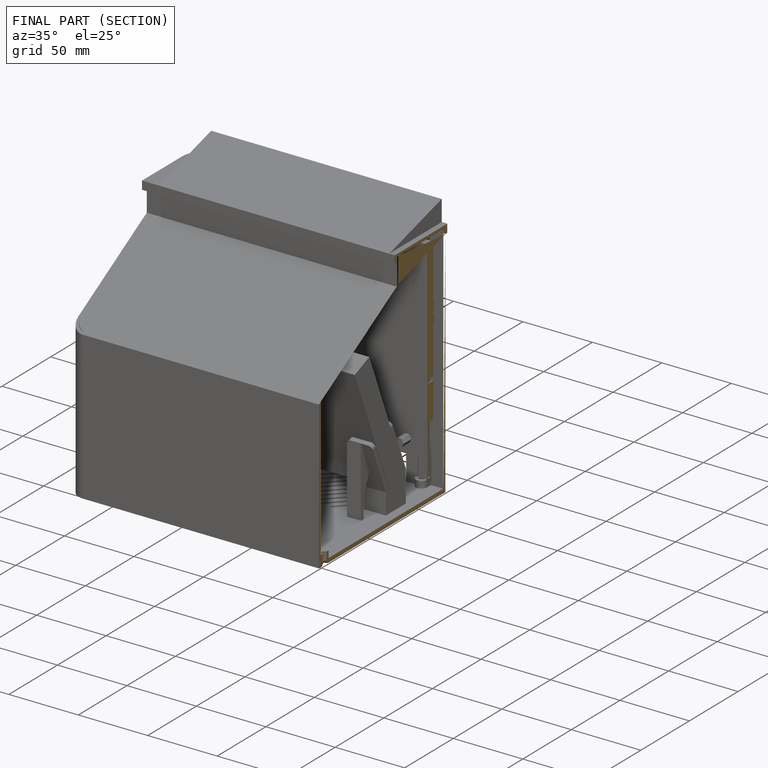
[diagram: finished part — half-section view (interior)]
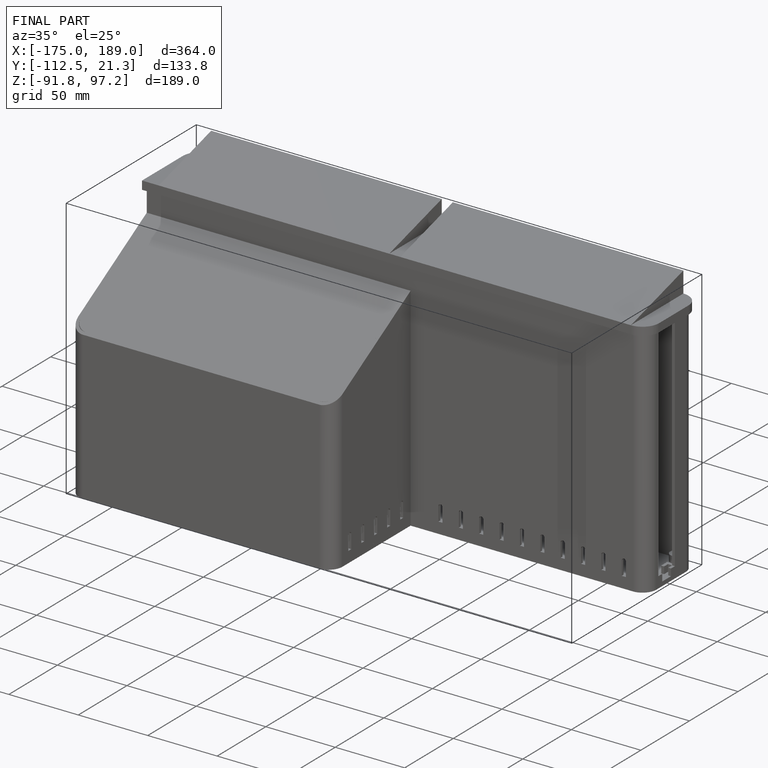
[diagram: finished part — iso view with bounding-box wireframe]
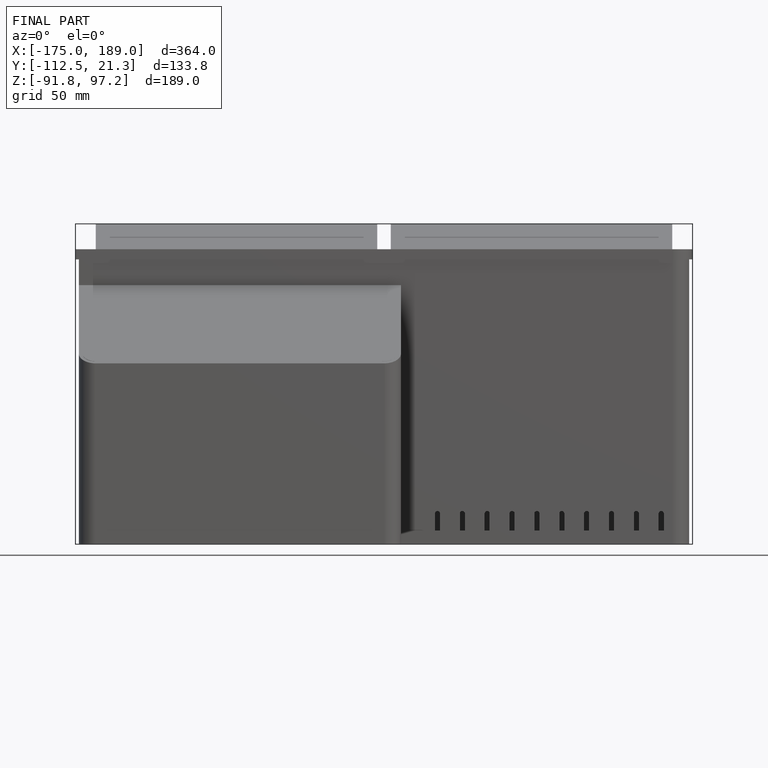
[diagram: finished part — front view with bounding-box wireframe]
